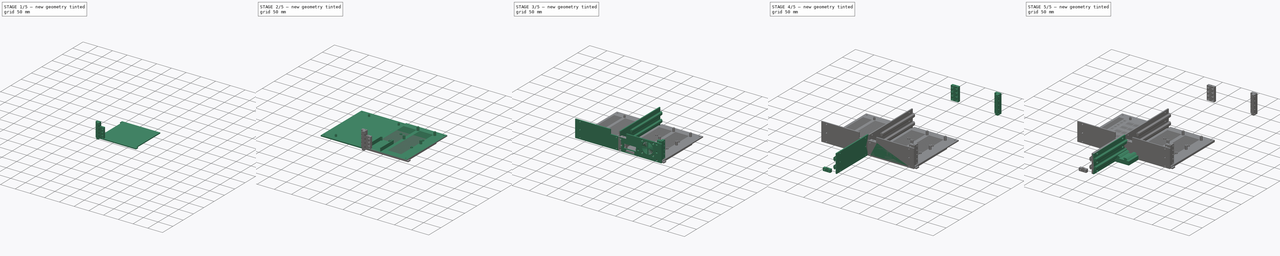
[diagram: build sequence overview — one tinted view per stage of 5, left to right]
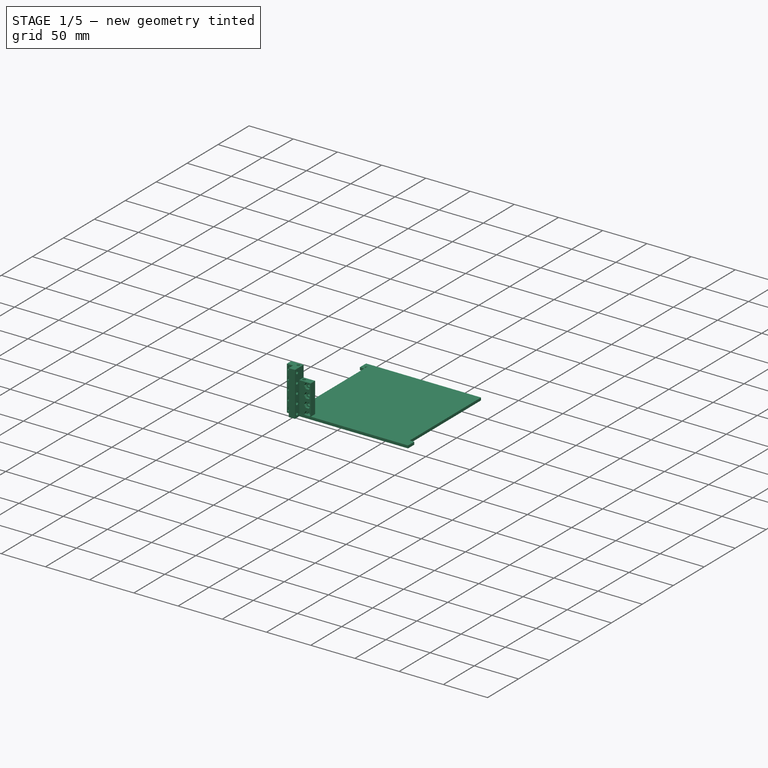
[diagram: stage 1 of 5 — iso view after this stage's code; geometry added in this stage tinted green]
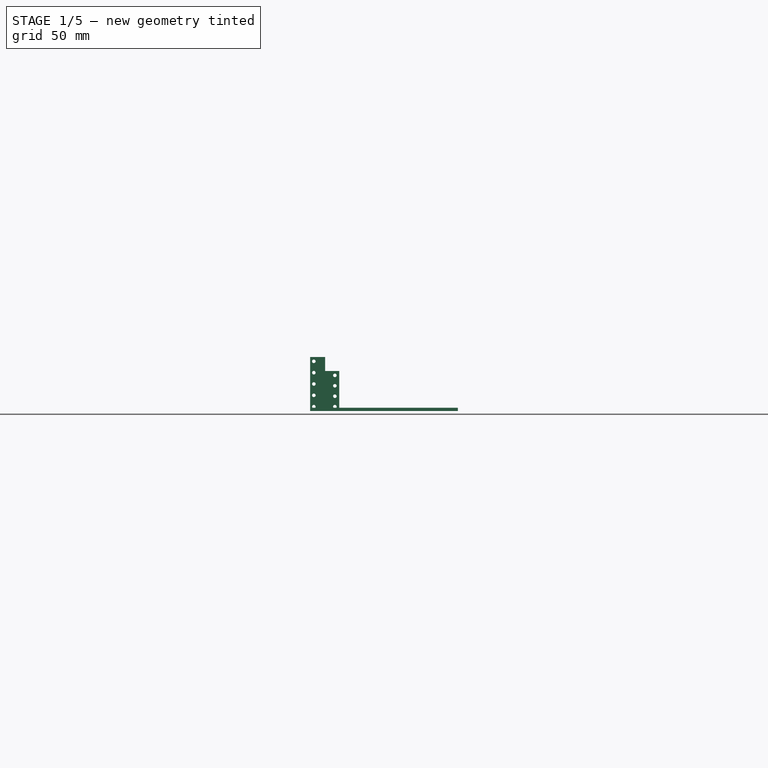
[diagram: stage 1 of 5 — front view after this stage's code; geometry added in this stage tinted green]
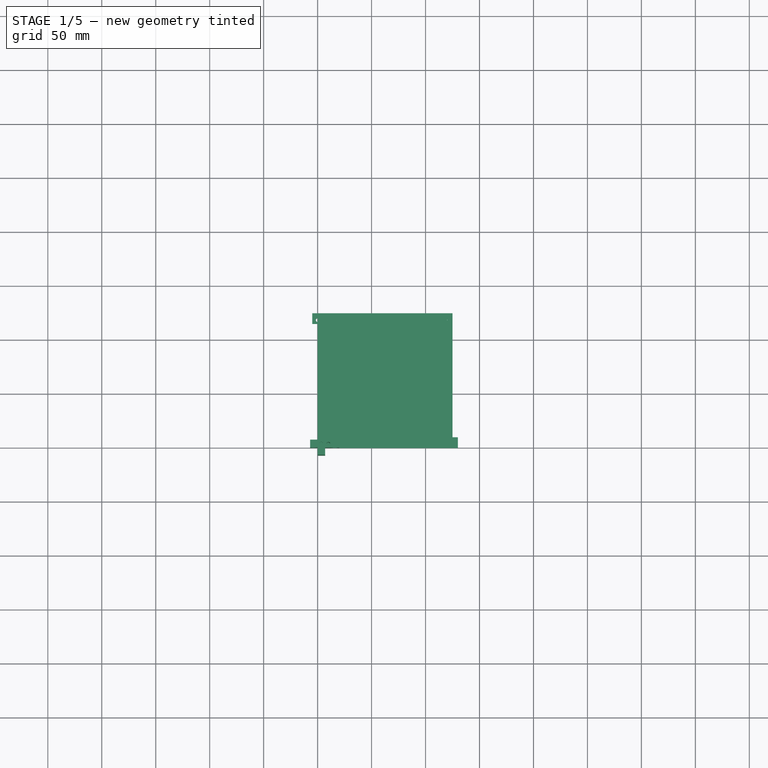
[diagram: stage 1 of 5 — top view after this stage's code; geometry added in this stage tinted green]
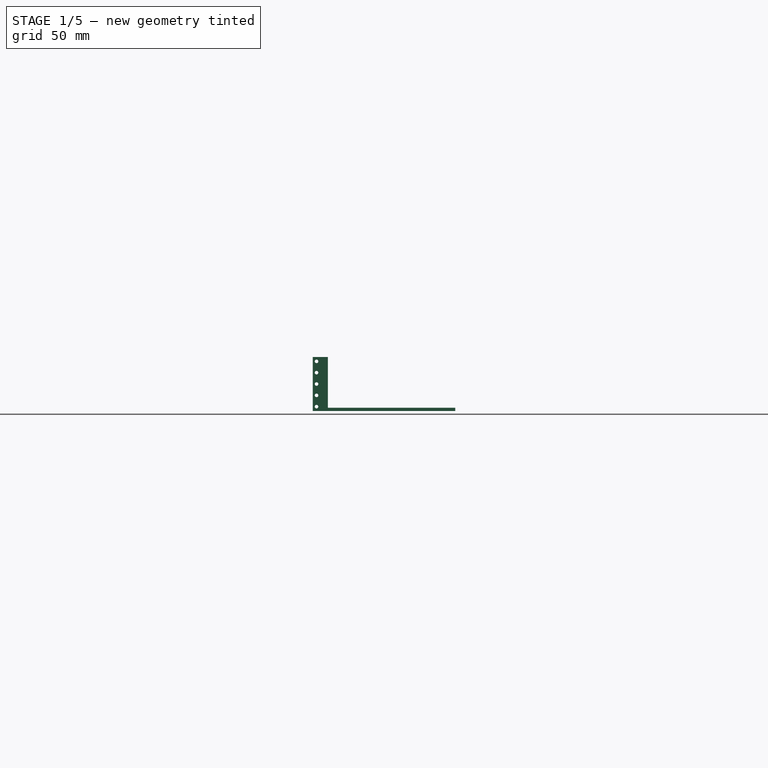
[diagram: stage 1 of 5 — right view after this stage's code; geometry added in this stage tinted green]
FCSTD DOCUMENT  (FreeCAD 0.18R16146 (Git))
Label: skr_pro_case
License: All rights reserved
LicenseURL: http://en.wikipedia.org/wiki/All_rights_reserved
objects: Sketcher::SketchObject×109, PartDesign::Pocket×39, PartDesign::Pad×37, PartDesign::Hole×34, PartDesign::Body×34, PartDesign::LinearPattern×9, PartDesign::FeatureBase×9
note: 381 computed .brp shape members not serialized (recipe doc carries the construction recipe); baked Part::Feature solids carry a one-line shape summary decoded from their .brp

FEATURE [Sketcher::SketchObject] Sketch081
  ExternalGeometry = -> [Pocket023]
  MapMode = 5
  Placement = pos=(0,0,5) rot=(0,0,1;0rad)
  Support = -> [Pocket023]
  sketch-geometry (12):
    g0: LineSegment [constr] StartX=49 StartY=70 StartZ=0 EndX=105 EndY=70 EndZ=0
    g1: LineSegment [constr] StartX=105 StartY=70 StartZ=0 EndX=105 EndY=155 EndZ=0
    g2: LineSegment [constr] StartX=105 StartY=155 StartZ=0 EndX=49 EndY=155 EndZ=0
    g3: LineSegment [constr] StartX=49 StartY=155 StartZ=0 EndX=49 EndY=70 EndZ=0
    g4: Circle CenterX=101.5 CenterY=151.5 CenterZ=0 NormalX=0 NormalY=0 NormalZ=1 AngleXU=0 Radius=3
    g5: Circle CenterX=52.5 CenterY=151.5 CenterZ=0 NormalX=0 NormalY=0 NormalZ=1 AngleXU=0 Radius=3
    g6: Circle CenterX=101.5 CenterY=93.5 CenterZ=0 NormalX=0 NormalY=0 NormalZ=1 AngleXU=0 Radius=3
    g7: Circle CenterX=52.5 CenterY=93.5 CenterZ=0 NormalX=0 NormalY=0 NormalZ=1 AngleXU=0 Radius=3
    g8: LineSegment [constr] StartX=101.5 StartY=93.5 StartZ=0 EndX=52.5 EndY=93.5 EndZ=0
    g9: LineSegment [constr] StartX=52.5 StartY=93.5 StartZ=0 EndX=52.5 EndY=151.5 EndZ=0
    g10: LineSegment [constr] StartX=52.5 StartY=151.5 StartZ=0 EndX=101.5 EndY=151.5 EndZ=0
    g11: LineSegment [constr] StartX=101.5 StartY=151.5 StartZ=0 EndX=101.5 EndY=93.5 EndZ=0
  constraints (32):
    c: Coincident(g0,g1)
    c: Coincident(g1,g2)
    c: Coincident(g2,g3)
    c: Coincident(g3,g0)
    c: Horizontal(g0)
    c: Horizontal(g2)
    c: Vertical(g1)
    c: Vertical(g3)
    c: Distance(g1) = 85
    c: Distance(g2) = 56
    c: DistanceY(g-4,g0) = 70
    c: DistanceX(g0,g-4) = 20
    c: Diameter(g4) = 6
    c: Equal(g4,g5)
    c: Equal(g5,g6)
    c: Equal(g6,g7)
    c: Coincident(g8,g9)
    c: Coincident(g9,g10)
    c: Coincident(g10,g11)
    c: Coincident(g11,g8)
    c: Horizontal(g8)
    c: Horizontal(g10)
    c: Vertical(g9)
    c: Vertical(g11)
    c: Distance(g9) = 58
    c: Coincident(g4,g10)
    c: Coincident(g5,g9)
    c: Coincident(g6,g8)
    c: Coincident(g7,g8)
    c: Distance(g10) = 49
    c: DistanceY(g5,g2) = 3.5
    c: DistanceX(g2,g5) = 3.5
FEATURE [Sketcher::SketchObject] Sketch084
  MapMode = 5
  Support = -> [XY_Plane008]
  sketch-geometry (4):
    g0: LineSegment StartX=0 StartY=0 StartZ=0 EndX=125 EndY=0 EndZ=0
    g1: LineSegment StartX=125 StartY=0 StartZ=0 EndX=125 EndY=125 EndZ=0
    g2: LineSegment StartX=125 StartY=125 StartZ=0 EndX=0 EndY=125 EndZ=0
    g3: LineSegment StartX=0 StartY=125 StartZ=0 EndX=0 EndY=0 EndZ=0
  constraints (11):
    c: Coincident(g0,g1)
    c: Coincident(g1,g2)
    c: Coincident(g2,g3)
    c: Coincident(g3,g0)
    c: Horizontal(g0)
    c: Horizontal(g2)
    c: Vertical(g1)
    c: Vertical(g3)
    c: Distance(g2) = 125
    c: Distance(g1) = 125
    c: Coincident(g-1,g0)
FEATURE [PartDesign::Pad] Pad026
  Length = 3
  Length2 = 100
  Profile = -> Sketch084
  Type = 0
FEATURE [Sketcher::SketchObject] Sketch096
  MapMode = 5
  Placement = pos=(0,0,0) rot=(1,0,0;3.14159rad)
  Support = -> [Pad026]
  sketch-geometry (6):
    g0: LineSegment StartX=-5 StartY=-10 StartZ=0 EndX=5 EndY=-10 EndZ=0
    g1: LineSegment StartX=5 StartY=-10 StartZ=0 EndX=5 EndY=0 EndZ=0
    g2: LineSegment StartX=-5 StartY=-2 StartZ=0 EndX=-5 EndY=-10 EndZ=0
    g3: LineSegment StartX=-5 StartY=-2 StartZ=0 EndX=0 EndY=-2 EndZ=0
    g4: LineSegment StartX=0 StartY=-2 StartZ=0 EndX=0 EndY=0 EndZ=0
    g5: LineSegment StartX=0 StartY=0 StartZ=0 EndX=5 EndY=0 EndZ=0
  constraints (17):
    c: Coincident(g0,g1)
    c: Coincident(g2,g0)
    c: Horizontal(g0)
    c: Vertical(g1)
    c: Vertical(g2)
    c: Equal(g0,g1)
    c: Distance(g1) = 10
    c: DistanceX(g-1,g1) = 5
    c: Coincident(g3,g4)
    c: Coincident(g4,g5)
    c: Horizontal(g5)
    c: Horizontal(g3)
    c: Vertical(g4)
    c: Coincident(g3,g2)
    c: Distance(g4) = 2
    c: Coincident(g1,g5)
    c: Coincident(g-1,g4)
FEATURE [PartDesign::Pocket] Pocket033
  BaseFeature = -> Pad026
  Length = 3
  Length2 = 100
  Profile = -> Sketch096
  Type = 0
FEATURE [Sketcher::SketchObject] Sketch097
  ExternalGeometry = -> [Pocket033]
  MapMode = 5
  Placement = pos=(0,0,3) rot=(0,0,1;0rad)
  Support = -> [Pocket033]
  sketch-geometry (4):
    g0: LineSegment StartX=-5 StartY=115 StartZ=0 EndX=0 EndY=115 EndZ=0
    g1: LineSegment StartX=0 StartY=115 StartZ=0 EndX=0 EndY=125 EndZ=0
    g2: LineSegment StartX=0 StartY=125 StartZ=0 EndX=-5 EndY=125 EndZ=0
    g3: LineSegment StartX=-5 StartY=125 StartZ=0 EndX=-5 EndY=115 EndZ=0
  constraints (11):
    c: Coincident(g0,g1)
    c: Coincident(g1,g2)
    c: Coincident(g2,g3)
    c: Coincident(g3,g0)
    c: Horizontal(g0)
    c: Horizontal(g2)
    c: Vertical(g1)
    c: Vertical(g3)
    c: Distance(g0) = 5
    c: Distance(g1) = 10
    c: Coincident(g1,g-3)
FEATURE [PartDesign::Pad] Pad034
  BaseFeature = -> Pocket033
  Length = 3
  Length2 = 100
  Profile = -> Sketch097
  Reversed = true
  Type = 0
FEATURE [PartDesign::Body] Body015  label="Back_right_compartment_right_wall"
  Group = -> [Sketch150,Pad053,Sketch151,Hole026]
  Origin = -> Origin015
  Placement = pos=(122,339,4) rot=(0,0,1;0rad)
  Tip = -> Hole026
FEATURE [Sketcher::SketchObject] Sketch152
  MapMode = 5
  Support = -> [XY_Plane016]
  sketch-geometry (6):
    g0: LineSegment StartX=0 StartY=-7 StartZ=0 EndX=7 EndY=-7 EndZ=0
    g1: LineSegment StartX=7 StartY=-7 StartZ=0 EndX=7 EndY=7 EndZ=0
    g2: LineSegment StartX=7 StartY=7 StartZ=0 EndX=-7 EndY=7 EndZ=0
    g3: LineSegment StartX=-7 StartY=7 StartZ=0 EndX=-7 EndY=0 EndZ=0
    g4: LineSegment StartX=-7 StartY=0 StartZ=0 EndX=0 EndY=0 EndZ=0
    g5: LineSegment StartX=0 StartY=0 StartZ=0 EndX=0 EndY=-7 EndZ=0
  constraints (17):
    c: Coincident(g0,g1)
    c: Coincident(g1,g2)
    c: Coincident(g2,g3)
    c: Horizontal(g0)
    c: Horizontal(g2)
    c: Vertical(g1)
    c: Vertical(g3)
    c: Distance(g0) = 7
    c: Distance(g3) = 7
    c: DistanceY(g0,g3) = 7
    c: DistanceX(g3,g0) = 7
    c: Coincident(g4,g5)
    c: Vertical(g5)
    c: Horizontal(g4)
    c: Coincident(g4,g3)
    c: Coincident(g5,g0)
    c: Coincident(g4,g-1)
FEATURE [PartDesign::Pad] Pad054
  Length = 50
  Length2 = 100
  Profile = -> Sketch152
  Type = 0
FEATURE [Sketcher::SketchObject] Sketch153
  ExternalGeometry = -> [Pad054]
  MapMode = 5
  Placement = pos=(0,0,0) rot=(0.57735,-0.57735,-0.57735;2.0944rad)
  Support = -> [Pad054]
  sketch-geometry (9):
    g0: Circle CenterX=3.5 CenterY=4 CenterZ=0 NormalX=0 NormalY=0 NormalZ=1 AngleXU=0 Radius=1.5
    g1: Circle CenterX=3.5 CenterY=46 CenterZ=0 NormalX=0 NormalY=0 NormalZ=1 AngleXU=0 Radius=1.5
    g2: Circle CenterX=3.5 CenterY=25 CenterZ=0 NormalX=0 NormalY=0 NormalZ=1 AngleXU=0 Radius=1.5
    g3: LineSegment [constr] StartX=3.5 StartY=25 StartZ=0 EndX=3.5 EndY=35.5 EndZ=0
    g4: LineSegment [constr] StartX=3.5 StartY=35.5 StartZ=0 EndX=3.5 EndY=46 EndZ=0
    g5: Circle CenterX=3.5 CenterY=35.5 CenterZ=0 NormalX=0 NormalY=0 NormalZ=1 AngleXU=0 Radius=1.5
    g6: LineSegment [constr] StartX=3.5 StartY=4 StartZ=0 EndX=3.5 EndY=14.5 EndZ=0
    g7: LineSegment [constr] StartX=3.5 StartY=14.5 StartZ=0 EndX=3.5 EndY=25 EndZ=0
    g8: Circle CenterX=3.5 CenterY=14.5 CenterZ=0 NormalX=0 NormalY=0 NormalZ=1 AngleXU=0 Radius=1.5
  constraints (23):
    c: Diameter(g0) = 3
    c: DistanceX(g0,g-3) = 3.5
    c: DistanceY(g-3,g0) = 4
    c: Equal(g0,g2)
    c: Equal(g2,g1)
    c: DistanceX(g1,g-3) = 3.5
    c: DistanceY(g1,g-3) = 4
    c: Coincident(g3,g4)
    c: Coincident(g5,g3)
    c: Coincident(g4,g1)
    c: Coincident(g2,g3)
    c: Vertical(g3)
    c: Equal(g5,g1)
    c: Coincident(g6,g7)
    c: Coincident(g7,g2)
    c: Coincident(g6,g0)
    c: Vertical(g7)
    c: Vertical(g6)
    c: Equal(g6,g7)
    c: Equal(g7,g3)
    c: Equal(g3,g4)
    c: Coincident(g8,g6)
    c: Equal(g2,g8)
FEATURE [PartDesign::Hole] Hole027
  BaseFeature = -> Pad054
  Depth = 25
  DepthType = 0
  Diameter = 3.3
  DrillPoint = 1
  DrillPointAngle = 118
  HoleCutCountersinkAngle = 90
  HoleCutDepth = 0
  HoleCutDiameter = 3
  HoleCutType = 0
  ModelActualThread = false
  Profile = -> Sketch153
  Tapered = false
  TaperedAngle = 90
  ThreadAngle = 0
  ThreadClass = 0
  ThreadCutOffInner = 0
  ThreadCutOffOuter = 0
  ThreadDirection = 0
  ThreadFit = 0
  ThreadPitch = 0
  ThreadSize = 3
  ThreadType = 1
  Threaded = false
FEATURE [Sketcher::SketchObject] Sketch154
  ExternalGeometry = -> [Hole027]
  MapMode = 5
  Placement = pos=(0,0,0) rot=(0.57735,-0.57735,-0.57735;2.0944rad)
  Support = -> [Hole027]
  sketch-geometry (35):
    g0: LineSegment StartX=6.5 StartY=47.7321 StartZ=0 EndX=3.5 EndY=49.4641 EndZ=0
    g1: LineSegment StartX=3.5 StartY=49.4641 StartZ=0 EndX=0.5 EndY=47.7321 EndZ=0
    g2: LineSegment StartX=0.5 StartY=47.7321 StartZ=0 EndX=0.5 EndY=44.2679 EndZ=0
    g3: LineSegment StartX=0.5 StartY=44.2679 StartZ=0 EndX=3.5 EndY=42.5359 EndZ=0
    g4: LineSegment StartX=3.5 StartY=42.5359 StartZ=0 EndX=6.5 EndY=44.2679 EndZ=0
    g5: LineSegment StartX=6.5 StartY=44.2679 StartZ=0 EndX=6.5 EndY=47.7321 EndZ=0
    g6: Circle [constr] CenterX=3.5 CenterY=46 CenterZ=0 NormalX=0 NormalY=0 NormalZ=1 AngleXU=0 Radius=3.4641
    g7: LineSegment StartX=6.5 StartY=37.2321 StartZ=0 EndX=3.5 EndY=38.9641 EndZ=0
    g8: LineSegment StartX=3.5 StartY=38.9641 StartZ=0 EndX=0.5 EndY=37.2321 EndZ=0
    g9: LineSegment StartX=0.5 StartY=37.2321 StartZ=0 EndX=0.5 EndY=33.7679 EndZ=0
    g10: LineSegment StartX=0.5 StartY=33.7679 StartZ=0 EndX=3.5 EndY=32.0359 EndZ=0
    g11: LineSegment StartX=3.5 StartY=32.0359 StartZ=0 EndX=6.5 EndY=33.7679 EndZ=0
    g12: LineSegment StartX=6.5 StartY=33.7679 StartZ=0 EndX=6.5 EndY=37.2321 EndZ=0
    g13: Circle [constr] CenterX=3.5 CenterY=35.5 CenterZ=0 NormalX=0 NormalY=0 NormalZ=1 AngleXU=0 Radius=3.4641
    g14: LineSegment StartX=6.5 StartY=26.7321 StartZ=0 EndX=3.5 EndY=28.4641 EndZ=0
    g15: LineSegment StartX=3.5 StartY=28.4641 StartZ=0 EndX=0.5 EndY=26.7321 EndZ=0
    g16: LineSegment StartX=0.5 StartY=26.7321 StartZ=0 EndX=0.5 EndY=23.2679 EndZ=0
    g17: LineSegment StartX=0.5 StartY=23.2679 StartZ=0 EndX=3.5 EndY=21.5359 EndZ=0
    g18: LineSegment StartX=3.5 StartY=21.5359 StartZ=0 EndX=6.5 EndY=23.2679 EndZ=0
    g19: LineSegment StartX=6.5 StartY=23.2679 StartZ=0 EndX=6.5 EndY=26.7321 EndZ=0
    g20: Circle [constr] CenterX=3.5 CenterY=25 CenterZ=0 NormalX=0 NormalY=0 NormalZ=1 AngleXU=0 Radius=3.4641
    g21: LineSegment StartX=6.5 StartY=16.2321 StartZ=0 EndX=3.5 EndY=17.9641 EndZ=0
    g22: LineSegment StartX=3.5 StartY=17.9641 StartZ=0 EndX=0.5 EndY=16.2321 EndZ=0
    g23: LineSegment StartX=0.5 StartY=16.2321 StartZ=0 EndX=0.5 EndY=12.7679 EndZ=0
    g24: LineSegment StartX=0.5 StartY=12.7679 StartZ=0 EndX=3.5 EndY=11.0359 EndZ=0
    g25: LineSegment StartX=3.5 StartY=11.0359 StartZ=0 EndX=6.5 EndY=12.7679 EndZ=0
    g26: LineSegment StartX=6.5 StartY=12.7679 StartZ=0 EndX=6.5 EndY=16.2321 EndZ=0
    g27: Circle [constr] CenterX=3.5 CenterY=14.5 CenterZ=0 NormalX=0 NormalY=0 NormalZ=1 AngleXU=0 Radius=3.4641
    g28: LineSegment StartX=6.5 StartY=2.26795 StartZ=0 EndX=6.5 EndY=5.73205 EndZ=0
    g29: LineSegment StartX=6.5 StartY=5.73205 StartZ=0 EndX=3.5 EndY=7.4641 EndZ=0
    g30: LineSegment StartX=3.5 StartY=7.4641 StartZ=0 EndX=0.5 EndY=5.73205 EndZ=0
    g31: LineSegment StartX=0.5 StartY=5.73205 StartZ=0 EndX=0.5 EndY=2.26795 EndZ=0
    g32: LineSegment StartX=0.5 StartY=2.26795 StartZ=0 EndX=3.5 EndY=0.535898 EndZ=0
    g33: LineSegment StartX=3.5 StartY=0.535898 StartZ=0 EndX=6.5 EndY=2.26795 EndZ=0
    g34: Circle [constr] CenterX=3.5 CenterY=4 CenterZ=0 NormalX=0 NormalY=0 NormalZ=1 AngleXU=0 Radius=3.4641
  constraints (80):
    c: Coincident(g0,g1)
    c: Coincident(g1,g2)
    c: Coincident(g2,g3)
    c: Coincident(g3,g4)
    c: Coincident(g4,g5)
    c: Coincident(g5,g0)
    c: Equal(g0, g1-g5) x5
    c: PointOnObject(g0,g6)
    c: PointOnObject(g1,g6)
    c: PointOnObject(g2,g6)
    c: PointOnObject(g3,g6)
    c: PointOnObject(g4,g6)
    c: PointOnObject(g5,g6)
    c: Coincident(g7,g8)
    c: Coincident(g8,g9)
    c: Coincident(g9,g10)
    c: Coincident(g10,g11)
    c: Coincident(g11,g12)
    c: Coincident(g12,g7)
    c: Equal(g7, g8-g12) x5
    c: PointOnObject(g7,g13)
    c: PointOnObject(g8,g13)
    c: PointOnObject(g9,g13)
    c: PointOnObject(g10,g13)
    c: PointOnObject(g11,g13)
    c: PointOnObject(g12,g13)
    c: Coincident(g14,g15)
    c: Coincident(g15,g16)
    c: Coincident(g16,g17)
    c: Coincident(g17,g18)
    c: Coincident(g18,g19)
    c: Coincident(g19,g14)
    c: Equal(g14, g15-g19) x5
    c: PointOnObject(g14,g20)
    c: PointOnObject(g15,g20)
    c: PointOnObject(g16,g20)
    c: PointOnObject(g17,g20)
    c: PointOnObject(g18,g20)
    c: PointOnObject(g19,g20)
    c: Coincident(g21,g22)
    c: Coincident(g22,g23)
    c: Coincident(g23,g24)
    c: Coincident(g24,g25)
    c: Coincident(g25,g26)
    c: Coincident(g26,g21)
    c: Equal(g21, g22-g26) x5
    c: PointOnObject(g21,g27)
    c: PointOnObject(g22,g27)
    c: PointOnObject(g23,g27)
    c: PointOnObject(g24,g27)
    c: PointOnObject(g25,g27)
    c: PointOnObject(g26,g27)
    c: Coincident(g28,g29)
    c: Coincident(g29,g30)
    c: Coincident(g30,g31)
    c: Coincident(g31,g32)
    c: Coincident(g32,g33)
    c: Coincident(g33,g28)
    c: Equal(g28, g29-g33) x5
    c: PointOnObject(g28,g34)
    c: PointOnObject(g29,g34)
    c: PointOnObject(g30,g34)
    c: PointOnObject(g31,g34)
    c: PointOnObject(g32,g34)
    c: PointOnObject(g33,g34)
    c: Equal(g34,g27)
    c: Equal(g27,g20)
    c: Equal(g20,g13)
    c: Equal(g13,g6)
    c: Coincident(g6,g-3)
    c: Coincident(g-4,g13)
    c: Coincident(g20,g-5)
    c: Coincident(g-6,g27)
    c: Coincident(g-7,g34)
    c: Vertical(g5)
    c: Vertical(g12)
    c: Vertical(g19)
    c: Vertical(g26)
    c: Vertical(g28)
    c: DistanceX(g1,g0) = 6
FEATURE [PartDesign::Pocket] Pocket051
  BaseFeature = -> Hole027
  Length = 2.75
  Length2 = 100
  Profile = -> Sketch154
  Type = 0
FEATURE [Sketcher::SketchObject] Sketch155
  ExternalGeometry = -> [Pocket051]
  MapMode = 5
  Placement = pos=(0,0,0) rot=(1,0,0;1.5708rad)
  Support = -> [Pocket051]
  sketch-geometry (9):
    g0: Circle CenterX=-3.5 CenterY=4 CenterZ=0 NormalX=0 NormalY=0 NormalZ=1 AngleXU=0 Radius=1.5
    g1: Circle CenterX=-3.5 CenterY=14.5 CenterZ=0 NormalX=0 NormalY=0 NormalZ=1 AngleXU=0 Radius=1.5
    g2: Circle CenterX=-3.5 CenterY=46 CenterZ=0 NormalX=0 NormalY=0 NormalZ=1 AngleXU=0 Radius=1.5
    g3: Circle CenterX=-3.5 CenterY=35.5 CenterZ=0 NormalX=0 NormalY=0 NormalZ=1 AngleXU=0 Radius=1.5
    g4: Circle CenterX=-3.5 CenterY=25 CenterZ=0 NormalX=0 NormalY=0 NormalZ=1 AngleXU=0 Radius=1.5
    g5: LineSegment [constr] StartX=-3.5 StartY=4 StartZ=0 EndX=-3.5 EndY=14.5 EndZ=0
    g6: LineSegment [constr] StartX=-3.5 StartY=14.5 StartZ=0 EndX=-3.5 EndY=25 EndZ=0
    g7: LineSegment [constr] StartX=-3.5 StartY=25 StartZ=0 EndX=-3.5 EndY=35.5 EndZ=0
    g8: LineSegment [constr] StartX=-3.5 StartY=35.5 StartZ=0 EndX=-3.5 EndY=46 EndZ=0
  constraints (23):
    c: Equal(g0,g2)
    c: Equal(g2,g1)
    c: Diameter(g0) = 3
    c: Equal(g1,g4)
    c: Equal(g2,g3)
    c: DistanceX(g-4,g0) = 3.5
    c: DistanceY(g2,g-4) = 4
    c: DistanceY(g-4,g0) = 4
    c: Coincident(g5,g6)
    c: Coincident(g6,g7)
    c: Coincident(g7,g8)
    c: Coincident(g3,g7)
    c: Coincident(g4,g6)
    c: Coincident(g5,g1)
    c: Coincident(g0,g5)
    c: Coincident(g8,g2)
    c: Vertical(g5)
    c: Vertical(g6)
    c: Vertical(g7)
    c: Vertical(g8)
    c: Equal(g8,g7)
    c: Equal(g7,g6)
    c: Equal(g6,g5)
FEATURE [PartDesign::Hole] Hole028
  BaseFeature = -> Pocket051
  Depth = 25
  DepthType = 0
  Diameter = 3.3
  DrillPoint = 1
  DrillPointAngle = 118
  HoleCutCountersinkAngle = 90
  HoleCutDepth = 0
  HoleCutDiameter = 3
  HoleCutType = 0
  ModelActualThread = false
  Profile = -> Sketch155
  Tapered = false
  TaperedAngle = 90
  ThreadAngle = 0
  ThreadClass = 0
  ThreadCutOffInner = 0
  ThreadCutOffOuter = 0
  ThreadDirection = 0
  ThreadFit = 0
  ThreadPitch = 0
  ThreadSize = 3
  ThreadType = 1
  Threaded = false
FEATURE [Sketcher::SketchObject] Sketch156
  ExternalGeometry = -> [Hole028]
  MapMode = 5
  Placement = pos=(0,0,0) rot=(1,0,0;1.5708rad)
  Support = -> [Hole028]
  sketch-geometry (35):
    g0: LineSegment StartX=-3.5 StartY=49.4641 StartZ=0 EndX=-6.5 EndY=47.7321 EndZ=0
    g1: LineSegment StartX=-6.5 StartY=47.7321 StartZ=0 EndX=-6.5 EndY=44.2679 EndZ=0
    g2: LineSegment StartX=-6.5 StartY=44.2679 StartZ=0 EndX=-3.5 EndY=42.5359 EndZ=0
    g3: LineSegment StartX=-3.5 StartY=42.5359 StartZ=0 EndX=-0.5 EndY=44.2679 EndZ=0
    g4: LineSegment StartX=-0.5 StartY=44.2679 StartZ=0 EndX=-0.5 EndY=47.7321 EndZ=0
    g5: LineSegment StartX=-0.5 StartY=47.7321 StartZ=0 EndX=-3.5 EndY=49.4641 EndZ=0
    g6: Circle [constr] CenterX=-3.5 CenterY=46 CenterZ=0 NormalX=0 NormalY=0 NormalZ=1 AngleXU=0 Radius=3.4641
    g7: LineSegment StartX=-3.5 StartY=38.9641 StartZ=0 EndX=-6.5 EndY=37.2321 EndZ=0
    g8: LineSegment StartX=-6.5 StartY=37.2321 StartZ=0 EndX=-6.5 EndY=33.7679 EndZ=0
    g9: LineSegment StartX=-6.5 StartY=33.7679 StartZ=0 EndX=-3.5 EndY=32.0359 EndZ=0
    g10: LineSegment StartX=-3.5 StartY=32.0359 StartZ=0 EndX=-0.5 EndY=33.7679 EndZ=0
    g11: LineSegment StartX=-0.5 StartY=33.7679 StartZ=0 EndX=-0.5 EndY=37.2321 EndZ=0
    g12: LineSegment StartX=-0.5 StartY=37.2321 StartZ=0 EndX=-3.5 EndY=38.9641 EndZ=0
    g13: Circle [constr] CenterX=-3.5 CenterY=35.5 CenterZ=0 NormalX=0 NormalY=0 NormalZ=1 AngleXU=0 Radius=3.4641
    g14: LineSegment StartX=-3.5 StartY=28.4641 StartZ=0 EndX=-6.5 EndY=26.7321 EndZ=0
    g15: LineSegment StartX=-6.5 StartY=26.7321 StartZ=0 EndX=-6.5 EndY=23.2679 EndZ=0
    g16: LineSegment StartX=-6.5 StartY=23.2679 StartZ=0 EndX=-3.5 EndY=21.5359 EndZ=0
    g17: LineSegment StartX=-3.5 StartY=21.5359 StartZ=0 EndX=-0.5 EndY=23.2679 EndZ=0
    g18: LineSegment StartX=-0.5 StartY=23.2679 StartZ=0 EndX=-0.5 EndY=26.7321 EndZ=0
    g19: LineSegment StartX=-0.5 StartY=26.7321 StartZ=0 EndX=-3.5 EndY=28.4641 EndZ=0
    g20: Circle [constr] CenterX=-3.5 CenterY=25 CenterZ=0 NormalX=0 NormalY=0 NormalZ=1 AngleXU=0 Radius=3.4641
    g21: LineSegment StartX=-3.5 StartY=17.9641 StartZ=0 EndX=-6.5 EndY=16.2321 EndZ=0
    g22: LineSegment StartX=-6.5 StartY=16.2321 StartZ=0 EndX=-6.5 EndY=12.7679 EndZ=0
    g23: LineSegment StartX=-6.5 StartY=12.7679 StartZ=0 EndX=-3.5 EndY=11.0359 EndZ=0
    g24: LineSegment StartX=-3.5 StartY=11.0359 StartZ=0 EndX=-0.5 EndY=12.7679 EndZ=0
    g25: LineSegment StartX=-0.5 StartY=12.7679 StartZ=0 EndX=-0.5 EndY=16.2321 EndZ=0
    g26: LineSegment StartX=-0.5 StartY=16.2321 StartZ=0 EndX=-3.5 EndY=17.9641 EndZ=0
    g27: Circle [constr] CenterX=-3.5 CenterY=14.5 CenterZ=0 NormalX=0 NormalY=0 NormalZ=1 AngleXU=0 Radius=3.4641
    g28: LineSegment StartX=-3.5 StartY=7.4641 StartZ=0 EndX=-6.5 EndY=5.73205 EndZ=0
    g29: LineSegment StartX=-6.5 StartY=5.73205 StartZ=0 EndX=-6.5 EndY=2.26795 EndZ=0
    g30: LineSegment StartX=-6.5 StartY=2.26795 StartZ=0 EndX=-3.5 EndY=0.535898 EndZ=0
    g31: LineSegment StartX=-3.5 StartY=0.535898 StartZ=0 EndX=-0.5 EndY=2.26795 EndZ=0
    g32: LineSegment StartX=-0.5 StartY=2.26795 StartZ=0 EndX=-0.5 EndY=5.73205 EndZ=0
    g33: LineSegment StartX=-0.5 StartY=5.73205 StartZ=0 EndX=-3.5 EndY=7.4641 EndZ=0
    g34: Circle [constr] CenterX=-3.5 CenterY=4 CenterZ=0 NormalX=0 NormalY=0 NormalZ=1 AngleXU=0 Radius=3.4641
  constraints (80):
    c: Coincident(g0,g1)
    c: Coincident(g1,g2)
    c: Coincident(g2,g3)
    c: Coincident(g3,g4)
    c: Coincident(g4,g5)
    c: Coincident(g5,g0)
    c: Equal(g0, g1-g5) x5
    c: PointOnObject(g0,g6)
    c: PointOnObject(g1,g6)
    c: PointOnObject(g2,g6)
    c: PointOnObject(g3,g6)
    c: PointOnObject(g4,g6)
    c: PointOnObject(g5,g6)
    c: Coincident(g7,g8)
    c: Coincident(g8,g9)
    c: Coincident(g9,g10)
    c: Coincident(g10,g11)
    c: Coincident(g11,g12)
    c: Coincident(g12,g7)
    c: Equal(g7, g8-g12) x5
    c: PointOnObject(g7,g13)
    c: PointOnObject(g8,g13)
    c: PointOnObject(g9,g13)
    c: PointOnObject(g10,g13)
    c: PointOnObject(g11,g13)
    c: PointOnObject(g12,g13)
    c: Coincident(g14,g15)
    c: Coincident(g15,g16)
    c: Coincident(g16,g17)
    c: Coincident(g17,g18)
    c: Coincident(g18,g19)
    c: Coincident(g19,g14)
    c: Equal(g14, g15-g19) x5
    c: PointOnObject(g14,g20)
    c: PointOnObject(g15,g20)
    c: PointOnObject(g16,g20)
    c: PointOnObject(g17,g20)
    c: PointOnObject(g18,g20)
    c: PointOnObject(g19,g20)
    c: Coincident(g21,g22)
    c: Coincident(g22,g23)
    c: Coincident(g23,g24)
    c: Coincident(g24,g25)
    c: Coincident(g25,g26)
    c: Coincident(g26,g21)
    c: Equal(g21, g22-g26) x5
    c: PointOnObject(g21,g27)
    c: PointOnObject(g22,g27)
    c: PointOnObject(g23,g27)
    c: PointOnObject(g24,g27)
    c: PointOnObject(g25,g27)
    c: PointOnObject(g26,g27)
    c: Coincident(g28,g29)
    c: Coincident(g29,g30)
    c: Coincident(g30,g31)
    c: Coincident(g31,g32)
    c: Coincident(g32,g33)
    c: Coincident(g33,g28)
    c: Equal(g28, g29-g33) x5
    c: PointOnObject(g28,g34)
    c: PointOnObject(g29,g34)
    c: PointOnObject(g30,g34)
    c: PointOnObject(g31,g34)
    c: PointOnObject(g32,g34)
    c: PointOnObject(g33,g34)
    c: Equal(g34,g27)
    c: Equal(g27,g20)
    c: Equal(g20,g13)
    c: Equal(g13,g6)
    c: Coincident(g34,g-7)
    c: Coincident(g27,g-6)
    c: Coincident(g20,g-5)
    c: Coincident(g13,g-4)
    c: Coincident(g6,g-3)
    c: Vertical(g32)
    c: Vertical(g25)
    c: Vertical(g18)
    c: Vertical(g11)
    c: Vertical(g4)
    c: DistanceX(g0,g4) = 6
FEATURE [PartDesign::Pocket] Pocket052
  BaseFeature = -> Hole028
  Length = 2.75
  Length2 = 100
  Profile = -> Sketch156
  Type = 0
FEATURE [Sketcher::SketchObject] Sketch157
  MapMode = 5
  Placement = pos=(0,0,50) rot=(0,0,1;0rad)
  Support = -> [Pocket052]
  sketch-geometry (1):
    g0: Circle CenterX=3.5 CenterY=3.5 CenterZ=0 NormalX=0 NormalY=0 NormalZ=1 AngleXU=0 Radius=1.5
  constraints (3):
    c: Diameter(g0) = 3
    c: DistanceX(g-1,g0) = 3.5
    c: DistanceY(g-1,g0) = 3.5
FEATURE [PartDesign::Hole] Hole029
  BaseFeature = -> Pocket052
  Depth = 25
  DepthType = 1
  Diameter = 3.3
  DrillPoint = 1
  DrillPointAngle = 118
  HoleCutCountersinkAngle = 90
  HoleCutDepth = 0
  HoleCutDiameter = 3
  HoleCutType = 0
  ModelActualThread = false
  Profile = -> Sketch157
  Tapered = false
  TaperedAngle = 90
  ThreadAngle = 0
  ThreadClass = 0
  ThreadCutOffInner = 0
  ThreadCutOffOuter = 0
  ThreadDirection = 0
  ThreadFit = 0
  ThreadPitch = 0
  ThreadSize = 3
  ThreadType = 1
  Threaded = false
FEATURE [Sketcher::SketchObject] Sketch169
  MapMode = 5
  Support = -> [XY_Plane020]
  sketch-geometry (4):
    g0: LineSegment StartX=0 StartY=1e-16 StartZ=0 EndX=125 EndY=1e-16 EndZ=0
    g1: LineSegment StartX=125 StartY=1e-16 StartZ=0 EndX=125 EndY=125 EndZ=0
    g2: LineSegment StartX=125 StartY=125 StartZ=0 EndX=0 EndY=125 EndZ=0
    g3: LineSegment StartX=0 StartY=125 StartZ=0 EndX=0 EndY=0 EndZ=0
  constraints (11):
    c: Coincident(g0,g1)
    c: Coincident(g1,g2)
    c: Coincident(g2,g3)
    c: Coincident(g3,g0)
    c: Horizontal(g0)
    c: Horizontal(g2)
    c: Vertical(g1)
    c: Vertical(g3)
    c: Equal(g2,g3)
    c: Distance(g2) = 125
    c: Coincident(g-1,g0)
FEATURE [PartDesign::Pad] Pad058
  Length = 3
  Length2 = 100
  Profile = -> Sketch169
  Type = 0
FEATURE [Sketcher::SketchObject] Sketch170
  ExternalGeometry = -> [Pad058]
  MapMode = 5
  Placement = pos=(0,0,0) rot=(1,0,0;3.14159rad)
  Support = -> [Pad058]
  sketch-geometry (4):
    g0: LineSegment StartX=125 StartY=-125 StartZ=0 EndX=120 EndY=-125 EndZ=0
    g1: LineSegment StartX=120 StartY=-125 StartZ=0 EndX=120 EndY=-115 EndZ=0
    g2: LineSegment StartX=120 StartY=-115 StartZ=0 EndX=125 EndY=-115 EndZ=0
    g3: LineSegment StartX=125 StartY=-115 StartZ=0 EndX=125 EndY=-125 EndZ=0
  constraints (11):
    c: Coincident(g0,g1)
    c: Coincident(g1,g2)
    c: Coincident(g2,g3)
    c: Coincident(g3,g0)
    c: Horizontal(g0)
    c: Horizontal(g2)
    c: Vertical(g1)
    c: Vertical(g3)
    c: Distance(g2) = 5
    c: Distance(g1) = 10
    c: Coincident(g0,g-3)
FEATURE [PartDesign::Pocket] Pocket055
  BaseFeature = -> Pad058
  Length = 5
  Length2 = 100
  Profile = -> Sketch170
  Type = 1
FEATURE [Sketcher::SketchObject] Sketch171
  ExternalGeometry = -> [Pocket055]
  MapMode = 5
  Placement = pos=(0,0,0) rot=(1,0,0;3.14159rad)
  Support = -> [Pocket055]
  sketch-geometry (4):
    g0: LineSegment StartX=125 StartY=-10 StartZ=0 EndX=130 EndY=-10 EndZ=0
    g1: LineSegment StartX=130 StartY=-10 StartZ=0 EndX=130 EndY=0 EndZ=0
    g2: LineSegment StartX=130 StartY=0 StartZ=0 EndX=125 EndY=0 EndZ=0
    g3: LineSegment StartX=125 StartY=0 StartZ=0 EndX=125 EndY=-10 EndZ=0
  constraints (11):
    c: Coincident(g0,g1)
    c: Coincident(g1,g2)
    c: Coincident(g2,g3)
    c: Coincident(g3,g0)
    c: Horizontal(g0)
    c: Horizontal(g2)
    c: Vertical(g1)
    c: Vertical(g3)
    c: Distance(g2) = 5
    c: Distance(g1) = 10
    c: Coincident(g2,g-3)
FEATURE [PartDesign::Pad] Pad059
  BaseFeature = -> Pocket055
  Length = 3
  Length2 = 100
  Profile = -> Sketch171
  Reversed = true
  Type = 0
FEATURE [Sketcher::SketchObject] Sketch177
  MapMode = 5
  Support = -> [XY_Plane024]
  sketch-geometry (4):
    g0: LineSegment StartX=0 StartY=0 StartZ=0 EndX=20 EndY=0 EndZ=0
    g1: LineSegment StartX=20 StartY=0 StartZ=0 EndX=20 EndY=7 EndZ=0
    g2: LineSegment StartX=20 StartY=7 StartZ=0 EndX=0 EndY=7 EndZ=0
    g3: LineSegment StartX=0 StartY=7 StartZ=0 EndX=0 EndY=0 EndZ=0
  constraints (11):
    c: Coincident(g0,g1)
    c: Coincident(g1,g2)
    c: Coincident(g2,g3)
    c: Coincident(g3,g0)
    c: Horizontal(g0)
    c: Horizontal(g2)
    c: Vertical(g1)
    c: Vertical(g3)
    c: Distance(g2) = 20
    c: Distance(g1) = 7
    c: Coincident(g0,g-1)
FEATURE [PartDesign::Pad] Pad063
  Length = 37
  Length2 = 100
  Profile = -> Sketch177
  Type = 0
FEATURE [Sketcher::SketchObject] Sketch178
  ExternalGeometry = -> [Pad063]
  MapMode = 5
  Placement = pos=(0,0,0) rot=(1,0,0;1.5708rad)
  Support = -> [Pad063]
  sketch-geometry (14):
    g0: Circle CenterX=4 CenterY=4 CenterZ=0 NormalX=0 NormalY=0 NormalZ=1 AngleXU=0 Radius=1.5
    g1: Circle CenterX=16 CenterY=4 CenterZ=0 NormalX=0 NormalY=0 NormalZ=1 AngleXU=0 Radius=1.5
    g2: Circle CenterX=16 CenterY=13.6667 CenterZ=0 NormalX=0 NormalY=0 NormalZ=1 AngleXU=0 Radius=1.5
    g3: Circle CenterX=16 CenterY=33 CenterZ=0 NormalX=0 NormalY=0 NormalZ=1 AngleXU=0 Radius=1.5
    g4: Circle CenterX=4 CenterY=13.6667 CenterZ=0 NormalX=0 NormalY=0 NormalZ=1 AngleXU=0 Radius=1.5
    g5: Circle CenterX=4 CenterY=33 CenterZ=0 NormalX=0 NormalY=0 NormalZ=1 AngleXU=0 Radius=1.5
    g6: Circle CenterX=4 CenterY=23.3333 CenterZ=0 NormalX=0 NormalY=0 NormalZ=1 AngleXU=0 Radius=1.5
    g7: Circle CenterX=16 CenterY=23.3333 CenterZ=0 NormalX=0 NormalY=0 NormalZ=1 AngleXU=0 Radius=1.5
    g8: LineSegment [constr] StartX=4 StartY=33 StartZ=0 EndX=4 EndY=23.3333 EndZ=0
    g9: LineSegment [constr] StartX=4 StartY=23.3333 StartZ=0 EndX=4 EndY=13.6667 EndZ=0
    g10: LineSegment [constr] StartX=4 StartY=13.6667 StartZ=0 EndX=4 EndY=4 EndZ=0
    g11: LineSegment [constr] StartX=16 StartY=4 StartZ=0 EndX=16 EndY=13.6667 EndZ=0
    g12: LineSegment [constr] StartX=16 StartY=13.6667 StartZ=0 EndX=16 EndY=23.3333 EndZ=0
    g13: LineSegment [constr] StartX=16 StartY=23.3333 StartZ=0 EndX=16 EndY=33 EndZ=0
  constraints (36):
    c: DistanceX(g-3,g5) = 4
    c: DistanceY(g5,g-3) = 4
    c: Equal(g1,g0)
    c: Equal(g0,g4)
    c: Equal(g4,g2)
    c: Equal(g2,g3)
    c: Equal(g3,g5)
    c: Diameter(g5) = 3
    c: DistanceX(g3,g-3) = 4
    c: DistanceY(g3,g-3) = 4
    c: DistanceX(g1,g-4) = 4
    c: DistanceY(g-4,g1) = 4
    c: DistanceX(g-1,g0) = 4
    c: DistanceY(g-1,g0) = 4
    c: Equal(g6,g7)
    c: Equal(g7,g5)
    c: Coincident(g8,g9)
    c: Coincident(g9,g10)
    c: Coincident(g11,g12)
    c: Coincident(g12,g13)
    c: Coincident(g3,g13)
    c: Coincident(g7,g12)
    c: Coincident(g11,g2)
    c: Coincident(g11,g1)
    c: Coincident(g0,g10)
    c: Coincident(g4,g9)
    c: Coincident(g8,g6)
    c: Coincident(g8,g5)
    c: Vertical(g10)
    c: Vertical(g9)
    c: Vertical(g13)
    c: Vertical(g12)
    c: Equal(g9,g8)
    c: Equal(g8,g10)
    c: Equal(g13,g12)
    c: Equal(g12,g11)
FEATURE [PartDesign::Hole] Hole031
  BaseFeature = -> Pad063
  Depth = 25
  DepthType = 1
  Diameter = 3.3
  DrillPoint = 1
  DrillPointAngle = 118
  HoleCutCountersinkAngle = 90
  HoleCutDepth = 0
  HoleCutDiameter = 3
  HoleCutType = 0
  ModelActualThread = false
  Profile = -> Sketch178
  Tapered = false
  TaperedAngle = 90
  ThreadAngle = 0
  ThreadClass = 0
  ThreadCutOffInner = 0
  ThreadCutOffOuter = 0
  ThreadDirection = 0
  ThreadFit = 0
  ThreadPitch = 0
  ThreadSize = 3
  ThreadType = 1
  Threaded = false
FEATURE [Sketcher::SketchObject] Sketch179
  MapMode = 5
  Placement = pos=(0,0,37) rot=(0,0,1;0rad)
  Support = -> [Hole031]
  sketch-geometry (1):
    g0: Circle CenterX=10 CenterY=3.5 CenterZ=0 NormalX=0 NormalY=0 NormalZ=1 AngleXU=0 Radius=1.5
  constraints (3):
    c: DistanceX(g-1,g0) = 10
    c: DistanceY(g-1,g0) = 3.5
    c: Diameter(g0) = 3
FEATURE [PartDesign::Hole] Hole032
  BaseFeature = -> Hole031
  Depth = 25
  DepthType = 1
  Diameter = 3.3
  DrillPoint = 1
  DrillPointAngle = 118
  HoleCutCountersinkAngle = 90
  HoleCutDepth = 0
  HoleCutDiameter = 3
  HoleCutType = 0
  ModelActualThread = false
  Profile = -> Sketch179
  Tapered = false
  TaperedAngle = 90
  ThreadAngle = 0
  ThreadClass = 0
  ThreadCutOffInner = 0
  ThreadCutOffOuter = 0
  ThreadDirection = 0
  ThreadFit = 0
  ThreadPitch = 0
  ThreadSize = 3
  ThreadType = 1
  Threaded = false
FEATURE [Sketcher::SketchObject] Sketch180
  ExternalGeometry = -> [Hole032]
  MapMode = 5
  Placement = pos=(0,0,0) rot=(1,0,0;1.5708rad)
  Support = -> [Hole032]
  sketch-geometry (56):
    g0: LineSegment StartX=2.26795 StartY=36 StartZ=0 EndX=0.535898 EndY=33 EndZ=0
    g1: LineSegment StartX=0.535898 StartY=33 StartZ=0 EndX=2.26795 EndY=30 EndZ=0
    g2: LineSegment StartX=2.26795 StartY=30 StartZ=0 EndX=5.73205 EndY=30 EndZ=0
    g3: LineSegment StartX=5.73205 StartY=30 StartZ=0 EndX=7.4641 EndY=33 EndZ=0
    g4: LineSegment StartX=7.4641 StartY=33 StartZ=0 EndX=5.73205 EndY=36 EndZ=0
    g5: LineSegment StartX=5.73205 StartY=36 StartZ=0 EndX=2.26795 EndY=36 EndZ=0
    g6: Circle [constr] CenterX=4 CenterY=33 CenterZ=0 NormalX=0 NormalY=0 NormalZ=1 AngleXU=0 Radius=3.4641
    g7: LineSegment StartX=14.2679 StartY=36 StartZ=0 EndX=12.5359 EndY=33 EndZ=0
    g8: LineSegment StartX=12.5359 StartY=33 StartZ=0 EndX=14.2679 EndY=30 EndZ=0
    g9: LineSegment StartX=14.2679 StartY=30 StartZ=0 EndX=17.7321 EndY=30 EndZ=0
    g10: LineSegment StartX=17.7321 StartY=30 StartZ=0 EndX=19.4641 EndY=33 EndZ=0
    g11: LineSegment StartX=19.4641 StartY=33 StartZ=0 EndX=17.7321 EndY=36 EndZ=0
    g12: LineSegment StartX=17.7321 StartY=36 StartZ=0 EndX=14.2679 EndY=36 EndZ=0
    g13: Circle [constr] CenterX=16 CenterY=33 CenterZ=0 NormalX=0 NormalY=0 NormalZ=1 AngleXU=0 Radius=3.4641
    g14: LineSegment StartX=5.73205 StartY=26.3333 StartZ=0 EndX=2.26795 EndY=26.3333 EndZ=0
    g15: LineSegment StartX=2.26795 StartY=26.3333 StartZ=0 EndX=0.535898 EndY=23.3333 EndZ=0
    g16: LineSegment StartX=0.535898 StartY=23.3333 StartZ=0 EndX=2.26795 EndY=20.3333 EndZ=0
    g17: LineSegment StartX=2.26795 StartY=20.3333 StartZ=0 EndX=5.73205 EndY=20.3333 EndZ=0
    g18: LineSegment StartX=5.73205 StartY=20.3333 StartZ=0 EndX=7.4641 EndY=23.3333 EndZ=0
    g19: LineSegment StartX=7.4641 StartY=23.3333 StartZ=0 EndX=5.73205 EndY=26.3333 EndZ=0
    g20: Circle [constr] CenterX=4 CenterY=23.3333 CenterZ=0 NormalX=0 NormalY=0 NormalZ=1 AngleXU=0 Radius=3.4641
    g21: LineSegment StartX=14.2679 StartY=26.3333 StartZ=0 EndX=12.5359 EndY=23.3333 EndZ=0
    g22: LineSegment StartX=12.5359 StartY=23.3333 StartZ=0 EndX=14.2679 EndY=20.3333 EndZ=0
    g23: LineSegment StartX=14.2679 StartY=20.3333 StartZ=0 EndX=17.7321 EndY=20.3333 EndZ=0
    g24: LineSegment StartX=17.7321 StartY=20.3333 StartZ=0 EndX=19.4641 EndY=23.3333 EndZ=0
    g25: LineSegment StartX=19.4641 StartY=23.3333 StartZ=0 EndX=17.7321 EndY=26.3333 EndZ=0
    g26: LineSegment StartX=17.7321 StartY=26.3333 StartZ=0 EndX=14.2679 EndY=26.3333 EndZ=0
    g27: Circle [constr] CenterX=16 CenterY=23.3333 CenterZ=0 NormalX=0 NormalY=0 NormalZ=1 AngleXU=0 Radius=3.4641
    g28: LineSegment StartX=5.73205 StartY=16.6667 StartZ=0 EndX=2.26795 EndY=16.6667 EndZ=0
    g29: LineSegment StartX=2.26795 StartY=16.6667 StartZ=0 EndX=0.535898 EndY=13.6667 EndZ=0
    g30: LineSegment StartX=0.535898 StartY=13.6667 StartZ=0 EndX=2.26795 EndY=10.6667 EndZ=0
    g31: LineSegment StartX=2.26795 StartY=10.6667 StartZ=0 EndX=5.73205 EndY=10.6667 EndZ=0
    g32: LineSegment StartX=5.73205 StartY=10.6667 StartZ=0 EndX=7.4641 EndY=13.6667 EndZ=0
    g33: LineSegment StartX=7.4641 StartY=13.6667 StartZ=0 EndX=5.73205 EndY=16.6667 EndZ=0
    g34: Circle [constr] CenterX=4 CenterY=13.6667 CenterZ=0 NormalX=0 NormalY=0 NormalZ=1 AngleXU=0 Radius=3.4641
    g35: LineSegment StartX=14.2679 StartY=16.6667 StartZ=0 EndX=12.5359 EndY=13.6667 EndZ=0
    g36: LineSegment StartX=12.5359 StartY=13.6667 StartZ=0 EndX=14.2679 EndY=10.6667 EndZ=0
    g37: LineSegment StartX=14.2679 StartY=10.6667 StartZ=0 EndX=17.7321 EndY=10.6667 EndZ=0
    g38: LineSegment StartX=17.7321 StartY=10.6667 StartZ=0 EndX=19.4641 EndY=13.6667 EndZ=0
    g39: LineSegment StartX=19.4641 StartY=13.6667 StartZ=0 EndX=17.7321 EndY=16.6667 EndZ=0
    g40: LineSegment StartX=17.7321 StartY=16.6667 StartZ=0 EndX=14.2679 EndY=16.6667 EndZ=0
    g41: Circle [constr] CenterX=16 CenterY=13.6667 CenterZ=0 NormalX=0 NormalY=0 NormalZ=1 AngleXU=0 Radius=3.4641
    g42: LineSegment StartX=2.26795 StartY=7 StartZ=0 EndX=0.535898 EndY=4 EndZ=0
    g43: LineSegment StartX=0.535898 StartY=4 StartZ=0 EndX=2.26795 EndY=1 EndZ=0
    g44: LineSegment StartX=2.26795 StartY=1 StartZ=0 EndX=5.73205 EndY=1 EndZ=0
    g45: LineSegment StartX=5.73205 StartY=1 StartZ=0 EndX=7.4641 EndY=4 EndZ=0
    g46: LineSegment StartX=7.4641 StartY=4 StartZ=0 EndX=5.73205 EndY=7 EndZ=0
    g47: LineSegment StartX=5.73205 StartY=7 StartZ=0 EndX=2.26795 EndY=7 EndZ=0
    g48: Circle [constr] CenterX=4 CenterY=4 CenterZ=0 NormalX=0 NormalY=0 NormalZ=1 AngleXU=0 Radius=3.4641
    g49: LineSegment StartX=17.7321 StartY=7 StartZ=0 EndX=14.2679 EndY=7 EndZ=0
    g50: LineSegment StartX=14.2679 StartY=7 StartZ=0 EndX=12.5359 EndY=4 EndZ=0
    g51: LineSegment StartX=12.5359 StartY=4 StartZ=0 EndX=14.2679 EndY=1 EndZ=0
    g52: LineSegment StartX=14.2679 StartY=1 StartZ=0 EndX=17.7321 EndY=1 EndZ=0
    g53: LineSegment StartX=17.7321 StartY=1 StartZ=0 EndX=19.4641 EndY=4 EndZ=0
    g54: LineSegment StartX=19.4641 StartY=4 StartZ=0 EndX=17.7321 EndY=7 EndZ=0
    g55: Circle [constr] CenterX=16 CenterY=4 CenterZ=0 NormalX=0 NormalY=0 NormalZ=1 AngleXU=0 Radius=3.4641
  constraints (128):
    c: Coincident(g0,g1)
    c: Coincident(g1,g2)
    c: Coincident(g2,g3)
    c: Coincident(g3,g4)
    c: Coincident(g4,g5)
    c: Coincident(g5,g0)
    c: Equal(g0, g1-g5) x5
    c: PointOnObject(g0,g6)
    c: PointOnObject(g1,g6)
    c: PointOnObject(g2,g6)
    c: PointOnObject(g3,g6)
    c: PointOnObject(g4,g6)
    c: PointOnObject(g5,g6)
    c: Coincident(g7,g8)
    c: Coincident(g8,g9)
    c: Coincident(g9,g10)
    c: Coincident(g10,g11)
    c: Coincident(g11,g12)
    c: Coincident(g12,g7)
    c: Equal(g7, g8-g12) x5
    c: PointOnObject(g7,g13)
    c: PointOnObject(g8,g13)
    c: PointOnObject(g9,g13)
    c: PointOnObject(g10,g13)
    c: PointOnObject(g11,g13)
    c: PointOnObject(g12,g13)
    c: Coincident(g14,g15)
    c: Coincident(g15,g16)
    c: Coincident(g16,g17)
    c: Coincident(g17,g18)
    c: Coincident(g18,g19)
    c: Coincident(g19,g14)
    c: Equal(g14, g15-g19) x5
    c: PointOnObject(g14,g20)
    c: PointOnObject(g15,g20)
    c: PointOnObject(g16,g20)
    c: PointOnObject(g17,g20)
    c: PointOnObject(g18,g20)
    c: PointOnObject(g19,g20)
    c: Coincident(g21,g22)
    c: Coincident(g22,g23)
    c: Coincident(g23,g24)
    c: Coincident(g24,g25)
    c: Coincident(g25,g26)
    c: Coincident(g26,g21)
    c: Equal(g21, g22-g26) x5
    c: PointOnObject(g21,g27)
    c: PointOnObject(g22,g27)
    c: PointOnObject(g23,g27)
    c: PointOnObject(g24,g27)
    c: PointOnObject(g25,g27)
    c: PointOnObject(g26,g27)
    c: Coincident(g28,g29)
    c: Coincident(g29,g30)
    c: Coincident(g30,g31)
    c: Coincident(g31,g32)
    c: Coincident(g32,g33)
    c: Coincident(g33,g28)
    c: Equal(g28, g29-g33) x5
    c: PointOnObject(g28,g34)
    c: PointOnObject(g29,g34)
    c: PointOnObject(g30,g34)
    c: PointOnObject(g31,g34)
    c: PointOnObject(g32,g34)
    c: PointOnObject(g33,g34)
    c: Coincident(g35,g36)
    c: Coincident(g36,g37)
    c: Coincident(g37,g38)
    c: Coincident(g38,g39)
    c: Coincident(g39,g40)
    c: Coincident(g40,g35)
    c: Equal(g35, g36-g40) x5
    c: PointOnObject(g35,g41)
    c: PointOnObject(g36,g41)
    c: PointOnObject(g37,g41)
    c: PointOnObject(g38,g41)
    c: PointOnObject(g39,g41)
    c: PointOnObject(g40,g41)
    c: Coincident(g42,g43)
    c: Coincident(g43,g44)
    c: Coincident(g44,g45)
    c: Coincident(g45,g46)
    c: Coincident(g46,g47)
    c: Coincident(g47,g42)
    c: Equal(g42, g43-g47) x5
    c: PointOnObject(g42,g48)
    c: PointOnObject(g43,g48)
    c: PointOnObject(g44,g48)
    c: PointOnObject(g45,g48)
    c: PointOnObject(g46,g48)
    c: PointOnObject(g47,g48)
    c: Coincident(g49,g50)
    c: Coincident(g50,g51)
    c: Coincident(g51,g52)
    c: Coincident(g52,g53)
    c: Coincident(g53,g54)
    c: Coincident(g54,g49)
    c: Equal(g49, g50-g54) x5
    c: PointOnObject(g49,g55)
    c: PointOnObject(g50,g55)
    c: PointOnObject(g51,g55)
    c: PointOnObject(g52,g55)
    c: PointOnObject(g53,g55)
    c: PointOnObject(g54,g55)
    c: Coincident(g-9,g48)
    c: Coincident(g-10,g55)
    c: Coincident(g-7,g34)
    c: Coincident(g-8,g41)
    c: Coincident(g-6,g20)
    c: Coincident(g-5,g27)
    c: Coincident(g-3,g6)
    c: Coincident(g-4,g13)
    c: Equal(g6,g13)
    c: Equal(g13,g20)
    c: Equal(g20,g27)
    c: Equal(g27,g34)
    c: Equal(g34,g41)
    c: Equal(g41,g48)
    c: Equal(g48,g55)
    c: Horizontal(g5)
    c: Horizontal(g12)
    c: Horizontal(g14)
    c: Horizontal(g26)
    c: Horizontal(g28)
    c: Horizontal(g40)
    c: Horizontal(g47)
    c: Horizontal(g49)
    c: DistanceY(g1,g0) = 6
FEATURE [PartDesign::Pocket] Pocket058
  BaseFeature = -> Hole032
  Length = 2.75
  Length2 = 100
  Profile = -> Sketch180
  Type = 0
FEATURE [PartDesign::Body] Body025  label="straight_mount_large_2"
  Group = -> [Sketch187,Pad064,Sketch188,Hole038,Sketch186,Hole039,Sketch189,Pocket059]
  Origin = -> Origin025
  Placement = pos=(10,227,4) rot=(0,0,1;3.14159rad)
  Tip = -> Pocket059
FEATURE [Sketcher::SketchObject] Sketch190
  ExternalGeometry = -> [Pad034]
  MapMode = 5
  Placement = pos=(0,0,0) rot=(1,0,0;3.14159rad)
  Support = -> [Pad034]
  sketch-geometry (11):
    g0: Circle CenterX=0 CenterY=-118.5 CenterZ=0 NormalX=0 NormalY=0 NormalZ=1 AngleXU=0 Radius=1.5
    g1: LineSegment [constr] StartX=125 StartY=-125 StartZ=0 EndX=115 EndY=-125 EndZ=0
    g2: LineSegment [constr] StartX=115 StartY=-125 StartZ=0 EndX=115 EndY=-115 EndZ=0
    g3: LineSegment [constr] StartX=115 StartY=-115 StartZ=0 EndX=125 EndY=-115 EndZ=0
    g4: LineSegment [constr] StartX=125 StartY=-115 StartZ=0 EndX=125 EndY=-125 EndZ=0
    g5: Circle CenterX=118.5 CenterY=-118.5 CenterZ=0 NormalX=0 NormalY=0 NormalZ=1 AngleXU=0 Radius=1.5
    g6: LineSegment [constr] StartX=125 StartY=-10 StartZ=0 EndX=115 EndY=-10 EndZ=0
    g7: LineSegment [constr] StartX=115 StartY=-10 StartZ=0 EndX=115 EndY=0 EndZ=0
    g8: LineSegment [constr] StartX=115 StartY=0 StartZ=0 EndX=125 EndY=0 EndZ=0
    g9: LineSegment [constr] StartX=125 StartY=0 StartZ=0 EndX=125 EndY=-10 EndZ=0
    g10: Circle CenterX=118.5 CenterY=-6.5 CenterZ=0 NormalX=0 NormalY=0 NormalZ=1 AngleXU=0 Radius=1.5
  constraints (31):
    c: Diameter(g0) = 3
    c: PointOnObject(g0,g-2)
    c: DistanceY(g0,g-4) = 3.5
    c: Coincident(g1,g2)
    c: Coincident(g2,g3)
    c: Coincident(g3,g4)
    c: Coincident(g4,g1)
    c: Horizontal(g1)
    c: Horizontal(g3)
    c: Vertical(g2)
    c: Vertical(g4)
    c: Equal(g1,g4)
    c: Distance(g4) = 10
    c: DistanceX(g2,g5) = 3.5
    c: DistanceY(g5,g2) = 3.5
    c: Coincident(g1,g-5)
    c: Coincident(g6,g7)
    c: Coincident(g7,g8)
    c: Coincident(g8,g9)
    c: Coincident(g9,g6)
    c: Horizontal(g6)
    c: Horizontal(g8)
    c: Vertical(g7)
    c: Vertical(g9)
    c: Equal(g6,g9)
    c: Equal(g4,g9) = 10
    c: DistanceX(g7,g10) = 3.5
    c: DistanceY(g6,g10) = 3.5
    c: Coincident(g8,g-5)
    c: Equal(g10,g5)
    c: Equal(g5,g0)
FEATURE [PartDesign::Hole] Hole040
  BaseFeature = -> Pad034
  Depth = 25
  DepthType = 0
  Diameter = 3.3
  DrillPoint = 1
  DrillPointAngle = 118
  HoleCutCountersinkAngle = 90
  HoleCutDepth = 0
  HoleCutDiameter = 6
  HoleCutType = 2
  ModelActualThread = false
  Profile = -> Sketch190
  Tapered = false
  TaperedAngle = 90
  ThreadAngle = 0
  ThreadClass = 0
  ThreadCutOffInner = 0
  ThreadCutOffOuter = 0
  ThreadDirection = 0
  ThreadFit = 0
  ThreadPitch = 0
  ThreadSize = 3
  ThreadType = 1
  Threaded = false
FEATURE [Sketcher::SketchObject] Sketch202
  MapMode = 5
  Support = -> [XY_Plane035]
  sketch-geometry (4):
    g0: LineSegment StartX=0 StartY=0 StartZ=0 EndX=20 EndY=0 EndZ=0
    g1: LineSegment StartX=20 StartY=0 StartZ=0 EndX=20 EndY=7 EndZ=0
    g2: LineSegment StartX=20 StartY=7 StartZ=0 EndX=0 EndY=7 EndZ=0
    g3: LineSegment StartX=0 StartY=7 StartZ=0 EndX=0 EndY=0 EndZ=0
  constraints (11):
    c: Coincident(g0,g1)
    c: Coincident(g1,g2)
    c: Coincident(g2,g3)
    c: Coincident(g3,g0)
    c: Horizontal(g0)
    c: Horizontal(g2)
    c: Vertical(g1)
    c: Vertical(g3)
    c: Distance(g2) = 20
    c: Distance(g1) = 7
    c: Coincident(g0,g-1)
FEATURE [PartDesign::Pad] Pad069
  Length = 8
  Length2 = 100
  Profile = -> Sketch202
  Type = 0
FEATURE [Sketcher::SketchObject] Sketch203
  ExternalGeometry = -> [Pad069]
  MapMode = 5
  Placement = pos=(0,0,0) rot=(1,0,0;1.5708rad)
  Support = -> [Pad069]
  sketch-geometry (2):
    g0: Circle CenterX=4 CenterY=4 CenterZ=0 NormalX=0 NormalY=0 NormalZ=1 AngleXU=0 Radius=1.5
    g1: Circle CenterX=16 CenterY=4 CenterZ=0 NormalX=0 NormalY=0 NormalZ=1 AngleXU=0 Radius=1.5
  constraints (6):
    c: Equal(g1,g0)
    c: DistanceX(g1,g-3) = 4
    c: DistanceY(g-3,g1) = 4
    c: DistanceX(g-1,g0) = 4
    c: DistanceY(g-1,g0) = 4
    c: Diameter(g0) = 3
FEATURE [PartDesign::Hole] Hole045
  BaseFeature = -> Pad069
  Depth = 25
  DepthType = 1
  Diameter = 3.3
  DrillPoint = 1
  DrillPointAngle = 118
  HoleCutCountersinkAngle = 90
  HoleCutDepth = 0
  HoleCutDiameter = 3
  HoleCutType = 0
  ModelActualThread = false
  Profile = -> Sketch203
  Tapered = false
  TaperedAngle = 90
  ThreadAngle = 0
  ThreadClass = 0
  ThreadCutOffInner = 0
  ThreadCutOffOuter = 0
  ThreadDirection = 0
  ThreadFit = 0
  ThreadPitch = 0
  ThreadSize = 3
  ThreadType = 1
  Threaded = false
FEATURE [Sketcher::SketchObject] Sketch204
  MapMode = 5
  Placement = pos=(0,0,8) rot=(0,0,1;0rad)
  Support = -> [Hole045]
  sketch-geometry (1):
    g0: Circle CenterX=10 CenterY=3.5 CenterZ=0 NormalX=0 NormalY=0 NormalZ=1 AngleXU=0 Radius=1.5
  constraints (3):
    c: DistanceX(g-1,g0) = 10
    c: DistanceY(g-1,g0) = 3.5
    c: Diameter(g0) = 3
FEATURE [PartDesign::Hole] Hole046
  BaseFeature = -> Hole045
  Depth = 25
  DepthType = 1
  Diameter = 3.3
  DrillPoint = 1
  DrillPointAngle = 118
  HoleCutCountersinkAngle = 90
  HoleCutDepth = 0
  HoleCutDiameter = 3
  HoleCutType = 0
  ModelActualThread = false
  Profile = -> Sketch204
  Tapered = false
  TaperedAngle = 90
  ThreadAngle = 0
  ThreadClass = 0
  ThreadCutOffInner = 0
  ThreadCutOffOuter = 0
  ThreadDirection = 0
  ThreadFit = 0
  ThreadPitch = 0
  ThreadSize = 3
  ThreadType = 1
  Threaded = false
FEATURE [Sketcher::SketchObject] Sketch205
  ExternalGeometry = -> [Hole046]
  MapMode = 5
  Placement = pos=(0,0,0) rot=(1,0,0;1.5708rad)
  Support = -> [Hole046]
  sketch-geometry (14):
    g0: LineSegment StartX=5.73205 StartY=7 StartZ=0 EndX=2.26795 EndY=7 EndZ=0
    g1: LineSegment StartX=2.26795 StartY=7 StartZ=0 EndX=0.535898 EndY=4 EndZ=0
    g2: LineSegment StartX=0.535898 StartY=4 StartZ=0 EndX=2.26795 EndY=1 EndZ=0
    g3: LineSegment StartX=2.26795 StartY=1 StartZ=0 EndX=5.73205 EndY=1 EndZ=0
    g4: LineSegment StartX=5.73205 StartY=1 StartZ=0 EndX=7.4641 EndY=4 EndZ=0
    g5: LineSegment StartX=7.4641 StartY=4 StartZ=0 EndX=5.73205 EndY=7 EndZ=0
    g6: Circle [constr] CenterX=4 CenterY=4 CenterZ=0 NormalX=0 NormalY=0 NormalZ=1 AngleXU=0 Radius=3.4641
    g7: LineSegment StartX=17.7321 StartY=7 StartZ=0 EndX=14.2679 EndY=7 EndZ=0
    g8: LineSegment StartX=14.2679 StartY=7 StartZ=0 EndX=12.5359 EndY=4 EndZ=0
    g9: LineSegment StartX=12.5359 StartY=4 StartZ=0 EndX=14.2679 EndY=1 EndZ=0
    g10: LineSegment StartX=14.2679 StartY=1 StartZ=0 EndX=17.7321 EndY=1 EndZ=0
    g11: LineSegment StartX=17.7321 StartY=1 StartZ=0 EndX=19.4641 EndY=4 EndZ=0
    g12: LineSegment StartX=19.4641 StartY=4 StartZ=0 EndX=17.7321 EndY=7 EndZ=0
    g13: Circle [constr] CenterX=16 CenterY=4 CenterZ=0 NormalX=0 NormalY=0 NormalZ=1 AngleXU=0 Radius=3.4641
  constraints (32):
    c: Coincident(g0,g1)
    c: Coincident(g1,g2)
    c: Coincident(g2,g3)
    c: Coincident(g3,g4)
    c: Coincident(g4,g5)
    c: Coincident(g5,g0)
    c: Equal(g0, g1-g5) x5
    c: PointOnObject(g0,g6)
    c: PointOnObject(g1,g6)
    c: PointOnObject(g2,g6)
    c: PointOnObject(g3,g6)
    c: PointOnObject(g4,g6)
    c: PointOnObject(g5,g6)
    c: Coincident(g7,g8)
    c: Coincident(g8,g9)
    c: Coincident(g9,g10)
    c: Coincident(g10,g11)
    c: Coincident(g11,g12)
    c: Coincident(g12,g7)
    c: Equal(g7, g8-g12) x5
    c: PointOnObject(g7,g13)
    c: PointOnObject(g8,g13)
    c: PointOnObject(g9,g13)
    c: PointOnObject(g10,g13)
    c: PointOnObject(g11,g13)
    c: PointOnObject(g12,g13)
    c: Coincident(g13,g-4)
    c: Coincident(g6,g-3)
    c: Equal(g13,g6)
    c: Horizontal(g0)
    c: Horizontal(g7)
    c: DistanceY(g10,g7) = 6
FEATURE [PartDesign::Pocket] Pocket063
  BaseFeature = -> Hole046
  Length = 2.75
  Length2 = 100
  Profile = -> Sketch205
  Type = 0
FEATURE [PartDesign::Body] Body020  label="back_left_compartment_base_plate"
  Group = -> [Sketch169,Pad058,Sketch170,Pocket055,Sketch171,Pad059,Sketch185,Hole037,Sketch,Pad075,Sketch223,Hole052]
  Origin = -> Origin020
  Placement = pos=(-125,217,1) rot=(0,0,1;0rad)
  Tip = -> Hole052
FEATURE [Sketcher::SketchObject] Sketch224
  MapMode = 5
  Placement = pos=(0,0,3) rot=(0,0,1;0rad)
  Support = -> [Hole040]
  sketch-geometry (12):
    g0: LineSegment [constr] StartX=39.8607 StartY=94.8103 StartZ=0 EndX=88.3607 EndY=94.8103 EndZ=0
    g1: LineSegment [constr] StartX=88.3607 StartY=94.8103 StartZ=0 EndX=88.3607 EndY=117.81 EndZ=0
    g2: LineSegment [constr] StartX=88.3607 StartY=117.81 StartZ=0 EndX=39.8607 EndY=117.81 EndZ=0
    g3: LineSegment [constr] StartX=39.8607 StartY=117.81 StartZ=0 EndX=39.8607 EndY=94.8103 EndZ=0
    g4: LineSegment [constr] StartX=42.456 StartY=69.1363 StartZ=0 EndX=90.956 EndY=69.1363 EndZ=0
    g5: LineSegment [constr] StartX=90.956 StartY=69.1363 StartZ=0 EndX=90.956 EndY=92.1363 EndZ=0
    g6: LineSegment [constr] StartX=90.956 StartY=92.1363 StartZ=0 EndX=42.456 EndY=92.1363 EndZ=0
    g7: LineSegment [constr] StartX=42.456 StartY=92.1363 StartZ=0 EndX=42.456 EndY=69.1363 EndZ=0
    g8: LineSegment [constr] StartX=25.2567 StartY=7.72779 StartZ=0 EndX=97.2567 EndY=7.72779 EndZ=0
    g9: LineSegment [constr] StartX=97.2567 StartY=7.72779 StartZ=0 EndX=97.2567 EndY=62.7278 EndZ=0
    g10: LineSegment [constr] StartX=97.2567 StartY=62.7278 StartZ=0 EndX=25.2567 EndY=62.7278 EndZ=0
    g11: LineSegment [constr] StartX=25.2567 StartY=62.7278 StartZ=0 EndX=25.2567 EndY=7.72779 EndZ=0
  constraints (30):
    c: Coincident(g0,g1)
    c: Coincident(g1,g2)
    c: Coincident(g2,g3)
    c: Coincident(g3,g0)
    c: Horizontal(g0)
    c: Horizontal(g2)
    c: Vertical(g1)
    c: Vertical(g3)
    c: Coincident(g4,g5)
    c: Coincident(g5,g6)
    c: Coincident(g6,g7)
    c: Coincident(g7,g4)
    c: Horizontal(g4)
    c: Horizontal(g6)
    c: Vertical(g5)
    c: Vertical(g7)
    c: Coincident(g8,g9)
    c: Coincident(g9,g10)
    c: Coincident(g10,g11)
    c: Coincident(g11,g8)
    c: Horizontal(g8)
    c: Horizontal(g10)
    c: Vertical(g9)
    c: Vertical(g11)
    c: Distance(g11) = 55
    c: Distance(g10) = 72
    c: Equal(g3,g7)
    c: Equal(g2,g6)
    c: Distance(g3) = 23
    c: Distance(g2) = 48.5
FEATURE [PartDesign::Body] Body008  label="Back_right_compartment_base_plate"
  Group = -> [Sketch084,Pad026,Sketch096,Pocket033,Sketch097,Pad034,Sketch190,Hole040,Sketch224]
  Origin = -> Origin008
  Placement = pos=(0,217,1) rot=(0,0,1;0rad)
  Tip = -> Hole040
FEATURE [Sketcher::SketchObject] Sketch225
  ExternalGeometry = -> [Pocket063]
  MapMode = 5
  Placement = pos=(0,0,8) rot=(0,0,1;0rad)
  Support = -> [Pocket063]
  sketch-geometry (7):
    g0: LineSegment StartX=8.26795 StartY=6.5 StartZ=0 EndX=6.5359 EndY=3.5 EndZ=0
    g1: LineSegment StartX=6.5359 StartY=3.5 StartZ=0 EndX=8.26795 EndY=0.5 EndZ=0
    g2: LineSegment StartX=8.26795 StartY=0.5 StartZ=0 EndX=11.7321 EndY=0.5 EndZ=0
    g3: LineSegment StartX=11.7321 StartY=0.5 StartZ=0 EndX=13.4641 EndY=3.5 EndZ=0
    g4: LineSegment StartX=13.4641 StartY=3.5 StartZ=0 EndX=11.7321 EndY=6.5 EndZ=0
    g5: LineSegment StartX=11.7321 StartY=6.5 StartZ=0 EndX=8.26795 EndY=6.5 EndZ=0
    g6: Circle [constr] CenterX=10 CenterY=3.5 CenterZ=0 NormalX=0 NormalY=0 NormalZ=1 AngleXU=0 Radius=3.4641
  constraints (16):
    c: Coincident(g0,g1)
    c: Coincident(g1,g2)
    c: Coincident(g2,g3)
    c: Coincident(g3,g4)
    c: Coincident(g4,g5)
    c: Coincident(g5,g0)
    c: Equal(g0, g1-g5) x5
    c: PointOnObject(g0,g6)
    c: PointOnObject(g1,g6)
    c: PointOnObject(g2,g6)
    c: PointOnObject(g3,g6)
    c: PointOnObject(g4,g6)
    c: PointOnObject(g5,g6)
    c: Coincident(g-3,g6)
    c: Horizontal(g5)
    c: DistanceY(g1,g0) = 6
FEATURE [PartDesign::Pocket] Pocket
  BaseFeature = -> Pocket063
  Length = 2.75
  Length2 = 100
  Profile = -> Sketch225
  Type = 0
FEATURE [PartDesign::Body] Body036  label="straight_mount_small_2"
  BaseFeature = -> Body035
  Group = -> [Clone006]
  Origin = -> Origin036
  Placement = pos=(20,136,29) rot=(0,0,1;0rad)
  Tip = -> Clone006
FEATURE [Sketcher::SketchObject] Sketch230
  AttachmentOffset = pos=(0,0,-7) rot=(0,0,1;0rad)
  ExternalGeometry = -> [Hole029]
  MapMode = 5
  Placement = pos=(0,0,7) rot=(1,0,0;3.14159rad)
  Support = -> [Hole029]
  sketch-geometry (7):
    g0: LineSegment StartX=1.76795 StartY=-0.5 StartZ=0 EndX=0.0358984 EndY=-3.5 EndZ=0
    g1: LineSegment StartX=0.0358984 StartY=-3.5 StartZ=0 EndX=1.76795 EndY=-6.5 EndZ=0
    g2: LineSegment StartX=1.76795 StartY=-6.5 StartZ=0 EndX=5.23205 EndY=-6.5 EndZ=0
    g3: LineSegment StartX=5.23205 StartY=-6.5 StartZ=0 EndX=6.9641 EndY=-3.5 EndZ=0
    g4: LineSegment StartX=6.9641 StartY=-3.5 StartZ=0 EndX=5.23205 EndY=-0.5 EndZ=0
    g5: LineSegment StartX=5.23205 StartY=-0.5 StartZ=0 EndX=1.76795 EndY=-0.5 EndZ=0
    g6: Circle [constr] CenterX=3.5 CenterY=-3.5 CenterZ=0 NormalX=0 NormalY=0 NormalZ=1 AngleXU=0 Radius=3.4641
  constraints (16):
    c: Coincident(g0,g1)
    c: Coincident(g1,g2)
    c: Coincident(g2,g3)
    c: Coincident(g3,g4)
    c: Coincident(g4,g5)
    c: Coincident(g5,g0)
    c: Equal(g0, g1-g5) x5
    c: PointOnObject(g0,g6)
    c: PointOnObject(g1,g6)
    c: PointOnObject(g2,g6)
    c: PointOnObject(g3,g6)
    c: PointOnObject(g4,g6)
    c: PointOnObject(g5,g6)
    c: Coincident(g6,g-3)
    c: Horizontal(g2)
    c: DistanceY(g1,g0) = 6
FEATURE [PartDesign::Pocket] Pocket076
  BaseFeature = -> Hole029
  Length = 2.75
  Length2 = 100
  Profile = -> Sketch230
  Reversed = true
  Type = 0
FEATURE [Sketcher::SketchObject] Sketch231
  AttachmentOffset = pos=(0,0,-7) rot=(0,0,1;0rad)
  ExternalGeometry = -> [Pocket076]
  MapMode = 5
  Placement = pos=(0,0,43) rot=(0,0,1;0rad)
  Support = -> [Pocket076]
  sketch-geometry (7):
    g0: LineSegment StartX=1.76795 StartY=6.5 StartZ=0 EndX=0.0358984 EndY=3.5 EndZ=0
    g1: LineSegment StartX=0.0358984 StartY=3.5 StartZ=0 EndX=1.76795 EndY=0.5 EndZ=0
    g2: LineSegment StartX=1.76795 StartY=0.5 StartZ=0 EndX=5.23205 EndY=0.5 EndZ=0
    g3: LineSegment StartX=5.23205 StartY=0.5 StartZ=0 EndX=6.9641 EndY=3.5 EndZ=0
    g4: LineSegment StartX=6.9641 StartY=3.5 StartZ=0 EndX=5.23205 EndY=6.5 EndZ=0
    g5: LineSegment StartX=5.23205 StartY=6.5 StartZ=0 EndX=1.76795 EndY=6.5 EndZ=0
    g6: Circle [constr] CenterX=3.5 CenterY=3.5 CenterZ=0 NormalX=0 NormalY=0 NormalZ=1 AngleXU=0 Radius=3.4641
  constraints (16):
    c: Coincident(g0,g1)
    c: Coincident(g1,g2)
    c: Coincident(g2,g3)
    c: Coincident(g3,g4)
    c: Coincident(g4,g5)
    c: Coincident(g5,g0)
    c: Equal(g0, g1-g5) x5
    c: PointOnObject(g0,g6)
    c: PointOnObject(g1,g6)
    c: PointOnObject(g2,g6)
    c: PointOnObject(g3,g6)
    c: PointOnObject(g4,g6)
    c: PointOnObject(g5,g6)
    c: Coincident(g6,g-3)
    c: Horizontal(g2)
    c: DistanceY(g1,g0) = 6
FEATURE [PartDesign::Pocket] Pocket077
  BaseFeature = -> Pocket076
  Length = 2.75
  Length2 = 100
  Profile = -> Sketch231
  Reversed = true
  Type = 0
FEATURE [PartDesign::Body] Body041  label="Angle_mount_8"
  BaseFeature = -> Body033
  Group = -> [Clone008]
  Origin = -> Origin041
  Placement = pos=(2.1e-14,170,0) rot=(0,0,1;3.14159rad)
  Tip = -> Clone008
FEATURE [Sketcher::SketchObject] Sketch232
  AttachmentOffset = pos=(0,0,-7) rot=(0,0,1;0rad)
  ExternalGeometry = -> [Pocket058]
  MapMode = 5
  Placement = pos=(0,0,30) rot=(0,0,1;0rad)
  Support = -> [Pocket058]
  sketch-geometry (7):
    g0: LineSegment StartX=11.7321 StartY=6.5 StartZ=0 EndX=8.26795 EndY=6.5 EndZ=0
    g1: LineSegment StartX=8.26795 StartY=6.5 StartZ=0 EndX=6.5359 EndY=3.5 EndZ=0
    g2: LineSegment StartX=6.5359 StartY=3.5 StartZ=0 EndX=8.26795 EndY=0.5 EndZ=0
    g3: LineSegment StartX=8.26795 StartY=0.5 StartZ=0 EndX=11.7321 EndY=0.5 EndZ=0
    g4: LineSegment StartX=11.7321 StartY=0.5 StartZ=0 EndX=13.4641 EndY=3.5 EndZ=0
    g5: LineSegment StartX=13.4641 StartY=3.5 StartZ=0 EndX=11.7321 EndY=6.5 EndZ=0
    g6: Circle [constr] CenterX=10 CenterY=3.5 CenterZ=0 NormalX=0 NormalY=0 NormalZ=1 AngleXU=0 Radius=3.4641
  constraints (16):
    c: Coincident(g0,g1)
    c: Coincident(g1,g2)
    c: Coincident(g2,g3)
    c: Coincident(g3,g4)
    c: Coincident(g4,g5)
    c: Coincident(g5,g0)
    c: Equal(g0, g1-g5) x5
    c: PointOnObject(g0,g6)
    c: PointOnObject(g1,g6)
    c: PointOnObject(g2,g6)
    c: PointOnObject(g3,g6)
    c: PointOnObject(g4,g6)
    c: PointOnObject(g5,g6)
    c: Coincident(g6,g-3)
    c: Horizontal(g0)
    c: DistanceY(g2,g0) = 6
FEATURE [PartDesign::Pocket] Pocket078
  BaseFeature = -> Pocket058
  Length = 2.75
  Length2 = 100
  Profile = -> Sketch232
  Reversed = true
  Type = 0
FEATURE [Sketcher::SketchObject] Sketch233
  AttachmentOffset = pos=(0,0,-7) rot=(0,0,1;0rad)
  ExternalGeometry = -> [Pocket078]
  MapMode = 5
  Placement = pos=(0,0,7) rot=(1,0,0;3.14159rad)
  Support = -> [Pocket078]
  sketch-geometry (7):
    g0: LineSegment StartX=11.7321 StartY=-0.5 StartZ=0 EndX=8.26795 EndY=-0.5 EndZ=0
    g1: LineSegment StartX=8.26795 StartY=-0.5 StartZ=0 EndX=6.5359 EndY=-3.5 EndZ=0
    g2: LineSegment StartX=6.5359 StartY=-3.5 StartZ=0 EndX=8.26795 EndY=-6.5 EndZ=0
    g3: LineSegment StartX=8.26795 StartY=-6.5 StartZ=0 EndX=11.7321 EndY=-6.5 EndZ=0
    g4: LineSegment StartX=11.7321 StartY=-6.5 StartZ=0 EndX=13.4641 EndY=-3.5 EndZ=0
    g5: LineSegment StartX=13.4641 StartY=-3.5 StartZ=0 EndX=11.7321 EndY=-0.5 EndZ=0
    g6: Circle [constr] CenterX=10 CenterY=-3.5 CenterZ=0 NormalX=0 NormalY=0 NormalZ=1 AngleXU=0 Radius=3.4641
  constraints (16):
    c: Coincident(g0,g1)
    c: Coincident(g1,g2)
    c: Coincident(g2,g3)
    c: Coincident(g3,g4)
    c: Coincident(g4,g5)
    c: Coincident(g5,g0)
    c: Equal(g0, g1-g5) x5
    c: PointOnObject(g0,g6)
    c: PointOnObject(g1,g6)
    c: PointOnObject(g2,g6)
    c: PointOnObject(g3,g6)
    c: PointOnObject(g4,g6)
    c: PointOnObject(g5,g6)
    c: Coincident(g6,g-3)
    c: Horizontal(g0)
    c: DistanceY(g2,g0) = 6
FEATURE [PartDesign::Pocket] Pocket079
  BaseFeature = -> Pocket078
  Length = 2.75
  Length2 = 100
  Profile = -> Sketch233
  Reversed = true
  Type = 0
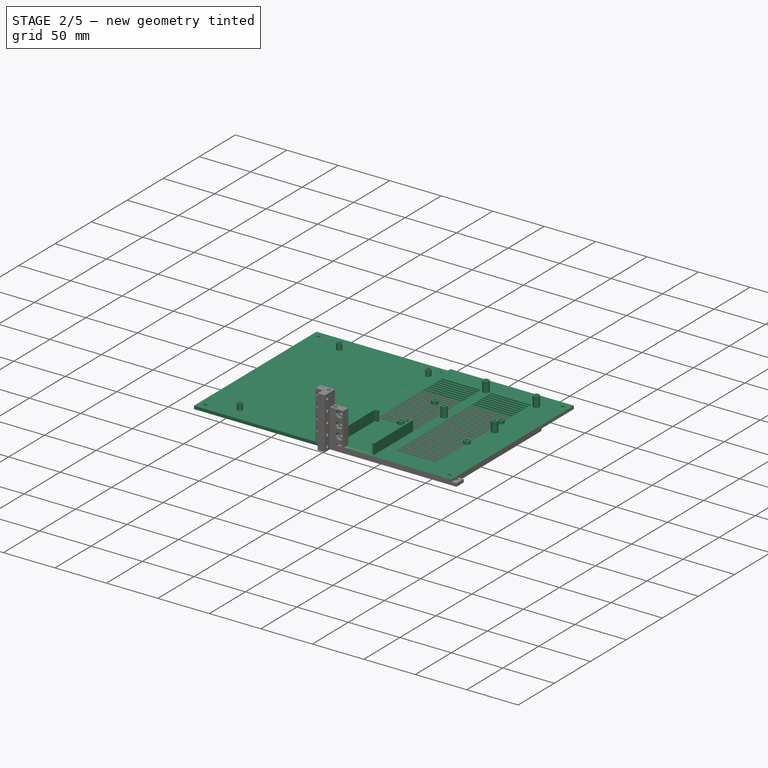
[diagram: stage 2 of 5 — iso view after this stage's code; geometry added in this stage tinted green]
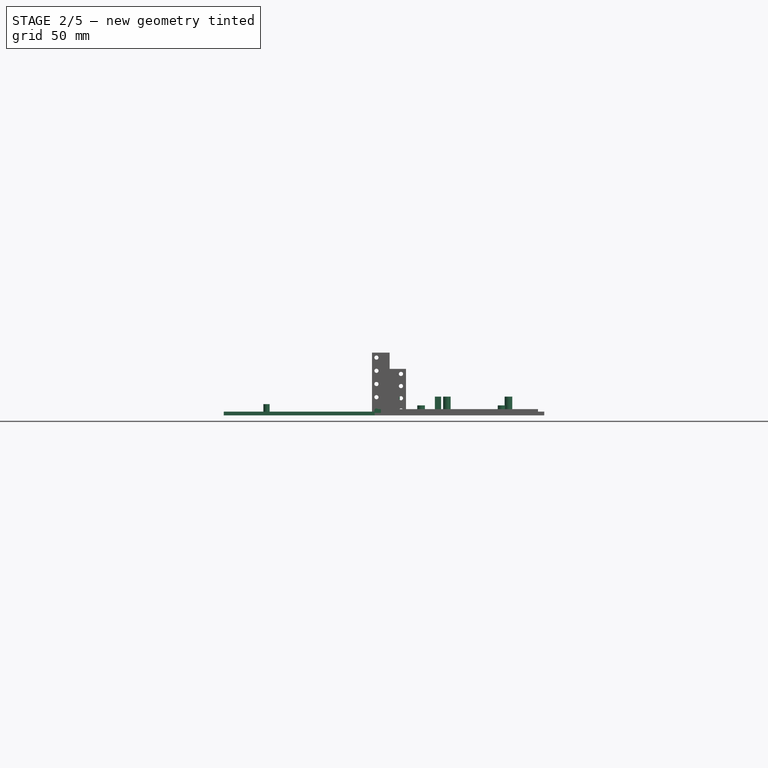
[diagram: stage 2 of 5 — front view after this stage's code; geometry added in this stage tinted green]
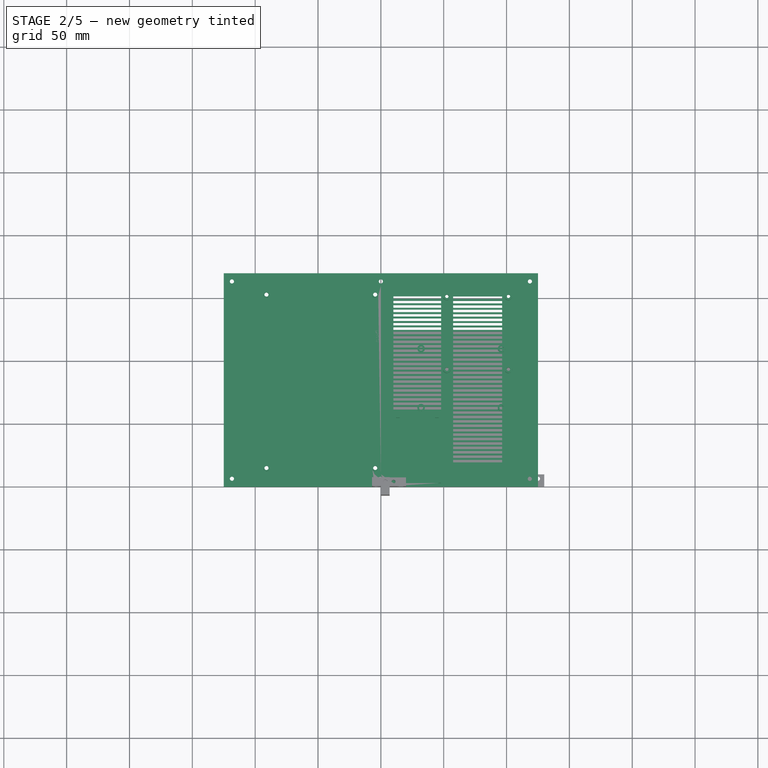
[diagram: stage 2 of 5 — top view after this stage's code; geometry added in this stage tinted green]
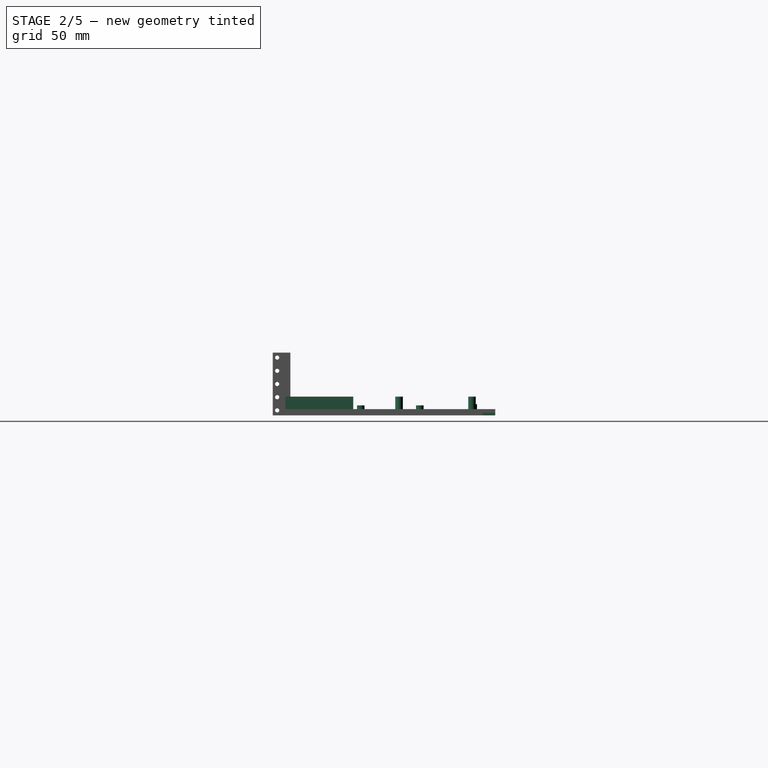
[diagram: stage 2 of 5 — right view after this stage's code; geometry added in this stage tinted green]
FEATURE [Sketcher::SketchObject] Sketch010  label="Base_plate_irght"
  MapMode = 2
  Placement = pos=(0,0,2) rot=(0,0,1;0rad)
  sketch-geometry (4):
    g0: LineSegment StartX=0 StartY=0 StartZ=0 EndX=125 EndY=0 EndZ=0
    g1: LineSegment StartX=125 StartY=0 StartZ=0 EndX=125 EndY=170 EndZ=0
    g2: LineSegment StartX=125 StartY=170 StartZ=0 EndX=0 EndY=170 EndZ=0
    g3: LineSegment StartX=0 StartY=170 StartZ=0 EndX=0 EndY=0 EndZ=0
  constraints (11):
    c: Coincident(g0,g1)
    c: Coincident(g1,g2)
    c: Coincident(g2,g3)
    c: Coincident(g3,g0)
    c: Horizontal(g0)
    c: Horizontal(g2)
    c: Vertical(g1)
    c: Vertical(g3)
    c: Distance(g3) = 170
    c: Distance(g0) = 125
    c: Coincident(g-1,g0)
FEATURE [PartDesign::Pad] Pad
  Length = 3
  Length2 = 100
  Placement = pos=(0,0,2) rot=(0,0,1;0rad)
  Profile = -> Sketch010
  Type = 0
FEATURE [Sketcher::SketchObject] Sketch034  label="base_plate_left001"
  MapMode = 5
  Support = -> [XY_Plane004]
  sketch-geometry (4):
    g0: LineSegment StartX=4e-16 StartY=0 StartZ=0 EndX=-125 EndY=0 EndZ=0
    g1: LineSegment StartX=-125 StartY=0 StartZ=0 EndX=-125 EndY=170 EndZ=0
    g2: LineSegment StartX=-125 StartY=170 StartZ=0 EndX=0 EndY=170 EndZ=0
    g3: LineSegment StartX=4e-16 StartY=170 StartZ=0 EndX=4e-16 EndY=0 EndZ=0
  constraints (11):
    c: Coincident(g0,g1)
    c: Coincident(g1,g2)
    c: Coincident(g2,g3)
    c: Coincident(g3,g0)
    c: Horizontal(g0)
    c: Horizontal(g2)
    c: Vertical(g1)
    c: Vertical(g3)
    c: Distance(g2) = 125
    c: Distance(g1) = 170
    c: Coincident(g-1,g0)
FEATURE [PartDesign::Pad] Pad006  label="Pad_base_plate_left"
  Length = 3
  Length2 = 100
  Profile = -> Sketch034
  Type = 0
FEATURE [Sketcher::SketchObject] Sketch062
  MapMode = 5
  Placement = pos=(0,0,2) rot=(1,0,0;3.14159rad)
  Support = -> [Pad]
  sketch-geometry (4):
    g0: LineSegment StartX=-5 StartY=0 StartZ=0 EndX=0 EndY=0 EndZ=0
    g1: LineSegment StartX=0 StartY=0 StartZ=0 EndX=0 EndY=-10 EndZ=0
    g2: LineSegment StartX=0 StartY=-10 StartZ=0 EndX=-5 EndY=-10 EndZ=0
    g3: LineSegment StartX=-5 StartY=-10 StartZ=0 EndX=-5 EndY=0 EndZ=0
  constraints (11):
    c: Coincident(g0,g1)
    c: Coincident(g1,g2)
    c: Coincident(g2,g3)
    c: Coincident(g3,g0)
    c: Horizontal(g0)
    c: Horizontal(g2)
    c: Vertical(g1)
    c: Vertical(g3)
    c: Distance(g0) = 5
    c: Distance(g3) = 10
    c: Coincident(g0,g-1)
FEATURE [PartDesign::Pad] Pad017
  BaseFeature = -> Pad
  Length = 3
  Length2 = 100
  Placement = pos=(0,0,2) rot=(0,0,1;0rad)
  Profile = -> Sketch062
  Reversed = true
  Type = 0
FEATURE [Sketcher::SketchObject] Sketch063
  ExternalGeometry = -> [Pad017]
  MapMode = 5
  Placement = pos=(0,0,2) rot=(1,0,0;3.14159rad)
  Support = -> [Pad017]
  sketch-geometry (11):
    g0: Circle CenterX=0 CenterY=-6.5 CenterZ=0 NormalX=0 NormalY=0 NormalZ=1 AngleXU=0 Radius=1.25
    g1: LineSegment [constr] StartX=117 StartY=-8 StartZ=0 EndX=125 EndY=-8 EndZ=0
    g2: LineSegment [constr] StartX=125 StartY=-8 StartZ=0 EndX=125 EndY=0 EndZ=0
    g3: LineSegment [constr] StartX=125 StartY=0 StartZ=0 EndX=117 EndY=0 EndZ=0
    g4: LineSegment [constr] StartX=117 StartY=0 StartZ=0 EndX=117 EndY=-8 EndZ=0
    g5: LineSegment [constr] StartX=117 StartY=-170 StartZ=0 EndX=125 EndY=-170 EndZ=0
    g6: LineSegment [constr] StartX=125 StartY=-170 StartZ=0 EndX=125 EndY=-162 EndZ=0
    g7: LineSegment [constr] StartX=125 StartY=-162 StartZ=0 EndX=117 EndY=-162 EndZ=0
    g8: LineSegment [constr] StartX=117 StartY=-162 StartZ=0 EndX=117 EndY=-170 EndZ=0
    g9: Circle CenterX=118.5 CenterY=-6.4 CenterZ=0 NormalX=0 NormalY=0 NormalZ=1 AngleXU=0 Radius=1.5
    g10: Circle CenterX=118.6 CenterY=-163.5 CenterZ=0 NormalX=0 NormalY=0 NormalZ=1 AngleXU=0 Radius=1.5
  constraints (31):
    c: Diameter(g0) = 2.5
    c: DistanceY(g-4,g0) = 3.5
    c: Coincident(g1,g2)
    c: Coincident(g2,g3)
    c: Coincident(g3,g4)
    c: Coincident(g4,g1)
    c: Horizontal(g1)
    c: Horizontal(g3)
    c: Vertical(g2)
    c: Vertical(g4)
    c: Coincident(g5,g6)
    c: Coincident(g6,g7)
    c: Coincident(g7,g8)
    c: Coincident(g8,g5)
    c: Horizontal(g5)
    c: Horizontal(g7)
    c: Vertical(g6)
    c: Vertical(g8)
    c: Equal(g7,g8)
    c: Equal(g8,g1)
    c: Equal(g1,g4)
    c: Distance(g4) = 8
    c: Equal(g9,g10)
    c: Diameter(g9) = 3
    c: DistanceY(g1,g9) = 1.6
    c: DistanceX(g1,g9) = 1.5
    c: Coincident(g2,g-5)
    c: DistanceY(g10,g7) = 1.5
    c: DistanceX(g7,g10) = 1.6
    c: Coincident(g5,g-5)
    c: PointOnObject(g0,g-2)
FEATURE [PartDesign::Hole] Hole002
  BaseFeature = -> Pad017
  Depth = 25
  DepthType = 1
  Diameter = 3.3
  DrillPoint = 1
  DrillPointAngle = 118
  HoleCutCountersinkAngle = 90
  HoleCutDepth = 0
  HoleCutDiameter = 6
  HoleCutType = 2
  ModelActualThread = false
  Placement = pos=(0,0,2) rot=(0,0,1;0rad)
  Profile = -> Sketch063
  Tapered = false
  TaperedAngle = 90
  ThreadAngle = 60
  ThreadClass = 5
  ThreadCutOffInner = 0.0541266
  ThreadCutOffOuter = 0.108253
  ThreadDirection = 1
  ThreadFit = 0
  ThreadPitch = 0.5
  ThreadSize = 3
  ThreadType = 1
  Threaded = false
FEATURE [Sketcher::SketchObject] Sketch064
  ExternalGeometry = -> [Hole002]
  MapMode = 5
  Placement = pos=(0,0,2) rot=(1,0,0;3.14159rad)
  Support = -> [Hole002]
  sketch-geometry (4):
    g0: LineSegment StartX=0 StartY=-170 StartZ=0 EndX=5 EndY=-170 EndZ=0
    g1: LineSegment StartX=5 StartY=-170 StartZ=0 EndX=5 EndY=-160 EndZ=0
    g2: LineSegment StartX=5 StartY=-160 StartZ=0 EndX=0 EndY=-160 EndZ=0
    g3: LineSegment StartX=0 StartY=-160 StartZ=0 EndX=0 EndY=-170 EndZ=0
  constraints (12):
    c: Coincident(g0,g1)
    c: Coincident(g1,g2)
    c: Coincident(g2,g3)
    c: Coincident(g3,g0)
    c: Horizontal(g0)
    c: Horizontal(g2)
    c: Vertical(g1)
    c: Vertical(g3)
    c: Distance(g2) = 5
    c: Distance(g1) = 10
    c: Coincident(g0,g-3)
    c: Diameter(g-4) = 3.3
FEATURE [PartDesign::Pocket] Pocket023
  BaseFeature = -> Hole002
  Length = 5
  Length2 = 100
  Placement = pos=(0,0,2) rot=(0,0,1;0rad)
  Profile = -> Sketch064
  Type = 2
FEATURE [Sketcher::SketchObject] Sketch065  label="case_connector_left_recess"
  MapMode = 5
  Placement = pos=(0,0,0) rot=(1,0,0;3.14159rad)
  Support = -> [Pad006]
  sketch-geometry (4):
    g0: LineSegment StartX=-5 StartY=-10 StartZ=0 EndX=0 EndY=-10 EndZ=0
    g1: LineSegment StartX=-1e-16 StartY=-10 StartZ=0 EndX=-1e-16 EndY=0 EndZ=0
    g2: LineSegment StartX=-1e-16 StartY=0 StartZ=0 EndX=-5 EndY=0 EndZ=0
    g3: LineSegment StartX=-5 StartY=0 StartZ=0 EndX=-5 EndY=-10 EndZ=0
  constraints (11):
    c: Coincident(g0,g1)
    c: Coincident(g1,g2)
    c: Coincident(g2,g3)
    c: Coincident(g3,g0)
    c: Horizontal(g0)
    c: Horizontal(g2)
    c: Vertical(g1)
    c: Vertical(g3)
    c: Distance(g2) = 5
    c: Distance(g3) = 10
    c: Coincident(g-1,g1)
FEATURE [PartDesign::Pocket] Pocket024
  BaseFeature = -> Pad006
  Length = 5
  Length2 = 100
  Profile = -> Sketch065
  Type = 2
FEATURE [Sketcher::SketchObject] Sketch066  label="case_connector_left_plate"
  ExternalGeometry = -> [Pocket024]
  MapMode = 5
  Placement = pos=(0,0,0) rot=(1,0,0;3.14159rad)
  Support = -> [Pocket024]
  sketch-geometry (4):
    g0: LineSegment StartX=0 StartY=-170 StartZ=0 EndX=5 EndY=-170 EndZ=0
    g1: LineSegment StartX=5 StartY=-170 StartZ=0 EndX=5 EndY=-160 EndZ=0
    g2: LineSegment StartX=5 StartY=-160 StartZ=0 EndX=0 EndY=-160 EndZ=0
    g3: LineSegment StartX=0 StartY=-160 StartZ=0 EndX=0 EndY=-170 EndZ=0
  constraints (11):
    c: Coincident(g0,g1)
    c: Coincident(g1,g2)
    c: Coincident(g2,g3)
    c: Coincident(g3,g0)
    c: Horizontal(g0)
    c: Horizontal(g2)
    c: Vertical(g1)
    c: Vertical(g3)
    c: Distance(g2) = 5
    c: Distance(g1) = 10
    c: Coincident(g0,g-3)
FEATURE [PartDesign::Pad] Pad018
  BaseFeature = -> Pocket024
  Length = 3
  Length2 = 100
  Profile = -> Sketch066
  Reversed = true
  Type = 0
FEATURE [Sketcher::SketchObject] Sketch067  label="case_connector_left_screw_hole"
  ExternalGeometry = -> [Pad018]
  MapMode = 5
  Placement = pos=(0,0,0) rot=(1,0,0;3.14159rad)
  Support = -> [Pad018]
  sketch-geometry (11):
    g0: Circle CenterX=0 CenterY=-163.5 CenterZ=0 NormalX=0 NormalY=0 NormalZ=1 AngleXU=0 Radius=3
    g1: LineSegment [constr] StartX=-125 StartY=-170 StartZ=0 EndX=-115 EndY=-170 EndZ=0
    g2: LineSegment [constr] StartX=-115 StartY=-170 StartZ=0 EndX=-115 EndY=-160 EndZ=0
    g3: LineSegment [constr] StartX=-115 StartY=-160 StartZ=0 EndX=-125 EndY=-160 EndZ=0
    g4: LineSegment [constr] StartX=-125 StartY=-160 StartZ=0 EndX=-125 EndY=-170 EndZ=0
    g5: Circle CenterX=-118.5 CenterY=-163.5 CenterZ=0 NormalX=0 NormalY=0 NormalZ=1 AngleXU=0 Radius=1.5
    g6: LineSegment [constr] StartX=-125 StartY=-10 StartZ=0 EndX=-115 EndY=-10 EndZ=0
    g7: LineSegment [constr] StartX=-115 StartY=-10 StartZ=0 EndX=-115 EndY=0 EndZ=0
    g8: LineSegment [constr] StartX=-115 StartY=0 StartZ=0 EndX=-125 EndY=0 EndZ=0
    g9: LineSegment [constr] StartX=-125 StartY=0 StartZ=0 EndX=-125 EndY=-10 EndZ=0
    g10: Circle CenterX=-118.5 CenterY=-6.5 CenterZ=0 NormalX=0 NormalY=0 NormalZ=1 AngleXU=0 Radius=1.5
  constraints (31):
    c: Diameter(g0) = 6
    c: PointOnObject(g0,g-2)
    c: Distance(g0,g-3) = 6.5
    c: Coincident(g1,g2)
    c: Coincident(g2,g3)
    c: Coincident(g3,g4)
    c: Coincident(g4,g1)
    c: Horizontal(g1)
    c: Horizontal(g3)
    c: Vertical(g2)
    c: Vertical(g4)
    c: Equal(g2,g3)
    c: Distance(g3) = 10
    c: Coincident(g-3,g1)
    c: Diameter(g5) = 3
    c: DistanceX(g5,g2) = 3.5
    c: DistanceY(g5,g2) = 3.5
    c: Coincident(g6,g7)
    c: Coincident(g7,g8)
    c: Coincident(g8,g9)
    c: Coincident(g9,g6)
    c: Horizontal(g6)
    c: Horizontal(g8)
    c: Vertical(g7)
    c: Vertical(g9)
    c: Equal(g7,g8)
    c: Equal(g3,g8) = 6
    c: Equal(g5,g10) = 6
    c: DistanceY(g6,g10) = 3.5
    c: DistanceX(g10,g6) = 3.5
    c: Coincident(g8,g-4)
FEATURE [PartDesign::Hole] Hole003
  BaseFeature = -> Pad018
  Depth = 25
  DepthType = 0
  Diameter = 3.3
  DrillPoint = 1
  DrillPointAngle = 118
  HoleCutCountersinkAngle = 90
  HoleCutDepth = 0
  HoleCutDiameter = 6
  HoleCutType = 2
  ModelActualThread = false
  Profile = -> Sketch067
  Tapered = false
  TaperedAngle = 90
  ThreadAngle = 0
  ThreadClass = 0
  ThreadCutOffInner = 0
  ThreadCutOffOuter = 0
  ThreadDirection = 0
  ThreadFit = 0
  ThreadPitch = 0
  ThreadSize = 3
  ThreadType = 1
  Threaded = false
FEATURE [PartDesign::Pad] Pad019
  BaseFeature = -> Hole003
  Length = 6
  Length2 = 100
  Profile = -> Sketch047
  Type = 0
FEATURE [Sketcher::SketchObject] Sketch076
  ExternalGeometry = -> [Pad019]
  MapMode = 5
  Placement = pos=(0,0,9) rot=(0,0,1;0rad)
  Support = -> [Pad019]
  sketch-geometry (4):
    g0: Circle CenterX=-91 CenterY=153 CenterZ=0 NormalX=0 NormalY=0 NormalZ=1 AngleXU=0 Radius=1.5
    g1: Circle CenterX=-4.5 CenterY=153 CenterZ=0 NormalX=0 NormalY=0 NormalZ=1 AngleXU=0 Radius=1.5
    g2: Circle CenterX=-4.5 CenterY=15 CenterZ=0 NormalX=0 NormalY=0 NormalZ=1 AngleXU=0 Radius=1.5
    g3: Circle CenterX=-91 CenterY=15 CenterZ=0 NormalX=0 NormalY=0 NormalZ=1 AngleXU=0 Radius=1.5
  constraints (8):
    c: Diameter(g0) = 3
    c: Equal(g0,g1)
    c: Equal(g1,g2)
    c: Equal(g2,g3)
    c: Coincident(g-3,g0)
    c: Coincident(g1,g-4)
    c: Coincident(g3,g-6)
    c: Coincident(g-5,g2)
FEATURE [PartDesign::Hole] Hole007
  BaseFeature = -> Pad019
  Depth = 25
  DepthType = 0
  Diameter = 3.3
  DrillPoint = 1
  DrillPointAngle = 118
  HoleCutCountersinkAngle = 90
  HoleCutDepth = 0
  HoleCutDiameter = 3
  HoleCutType = 0
  ModelActualThread = false
  Profile = -> Sketch076
  Tapered = false
  TaperedAngle = 90
  ThreadAngle = 0
  ThreadClass = 0
  ThreadCutOffInner = 0
  ThreadCutOffOuter = 0
  ThreadDirection = 0
  ThreadFit = 0
  ThreadPitch = 0
  ThreadSize = 3
  ThreadType = 1
  Threaded = false
FEATURE [PartDesign::Pad] Pad036
  BaseFeature = -> Pocket023
  Length = 10
  Length2 = 100
  Placement = pos=(0,0,2) rot=(0,0,1;0rad)
  Profile = -> Sketch081
  Type = 0
FEATURE [Sketcher::SketchObject] Sketch105
  ExternalGeometry = -> [Pad036]
  MapMode = 5
  Placement = pos=(0,0,15) rot=(0,0,1;0rad)
  Support = -> [Pad036]
  sketch-geometry (4):
    g0: Circle CenterX=52.5 CenterY=151.5 CenterZ=0 NormalX=0 NormalY=0 NormalZ=1 AngleXU=0 Radius=1.25
    g1: Circle CenterX=101.5 CenterY=151.5 CenterZ=0 NormalX=0 NormalY=0 NormalZ=1 AngleXU=0 Radius=1.25
    g2: Circle CenterX=52.5 CenterY=93.5 CenterZ=0 NormalX=0 NormalY=0 NormalZ=1 AngleXU=0 Radius=1.25
    g3: Circle CenterX=101.5 CenterY=93.5 CenterZ=0 NormalX=0 NormalY=0 NormalZ=1 AngleXU=0 Radius=1.25
  constraints (8):
    c: Diameter(g0) = 2.5
    c: Equal(g0,g1)
    c: Equal(g1,g3)
    c: Equal(g3,g2)
    c: Coincident(g0,g-3)
    c: Coincident(g-4,g1)
    c: Coincident(g2,g-6)
    c: Coincident(g3,g-5)
FEATURE [PartDesign::Hole] Hole014
  BaseFeature = -> Pad036
  Depth = 25
  DepthType = 0
  Diameter = 2.75
  DrillPoint = 1
  DrillPointAngle = 118
  HoleCutCountersinkAngle = 90
  HoleCutDepth = 0
  HoleCutDiameter = 2.5
  HoleCutType = 0
  ModelActualThread = false
  Placement = pos=(0,0,2) rot=(0,0,1;0rad)
  Profile = -> Sketch105
  Tapered = false
  TaperedAngle = 90
  ThreadAngle = 0
  ThreadClass = 0
  ThreadCutOffInner = 0
  ThreadCutOffOuter = 0
  ThreadDirection = 0
  ThreadFit = 0
  ThreadPitch = 0
  ThreadSize = 2
  ThreadType = 1
  Threaded = false
FEATURE [PartDesign::Body] Body012  label="foot"
  Group = -> [Sketch114,Pad039]
  Origin = -> Origin012
  Placement = pos=(0,-56,0) rot=(0,0,1;0rad)
  Tip = -> Pad039
FEATURE [Sketcher::SketchObject] Sketch130
  MapMode = 5
  Placement = pos=(0,0,5) rot=(0,0,1;0rad)
  Support = -> [Hole014]
  sketch-geometry (13):
    g0: LineSegment StartX=12 StartY=3 StartZ=0 EndX=12 EndY=55 EndZ=0
    g1: LineSegment StartX=12 StartY=55 StartZ=0 EndX=15 EndY=55 EndZ=0
    g2: LineSegment StartX=15 StartY=55 StartZ=0 EndX=15 EndY=57 EndZ=0
    g3: LineSegment StartX=15 StartY=57 StartZ=0 EndX=10 EndY=57 EndZ=0
    g4: LineSegment StartX=10 StartY=57 StartZ=0 EndX=10 EndY=3 EndZ=0
    g5: LineSegment StartX=10 StartY=3 StartZ=0 EndX=12 EndY=3 EndZ=0
    g6: LineSegment StartX=46 StartY=3 StartZ=0 EndX=48 EndY=3 EndZ=0
    g7: LineSegment StartX=48 StartY=3 StartZ=0 EndX=48 EndY=57 EndZ=0
    g8: LineSegment StartX=48 StartY=57 StartZ=0 EndX=43 EndY=57 EndZ=0
    g9: LineSegment StartX=43 StartY=57 StartZ=0 EndX=43 EndY=55 EndZ=0
    g10: LineSegment StartX=43 StartY=55 StartZ=0 EndX=46 EndY=55 EndZ=0
    g11: LineSegment StartX=46 StartY=55 StartZ=0 EndX=46 EndY=3 EndZ=0
    g12: LineSegment [constr] StartX=12 StartY=3 StartZ=0 EndX=46 EndY=3 EndZ=0
  constraints (38):
    c: Coincident(g0,g1)
    c: Coincident(g1,g2)
    c: Coincident(g2,g3)
    c: Coincident(g3,g4)
    c: Coincident(g4,g5)
    c: Coincident(g5,g0)
    c: Vertical(g0)
    c: Vertical(g4)
    c: Vertical(g2)
    c: Horizontal(g3)
    c: Horizontal(g1)
    c: Horizontal(g5)
    c: Distance(g0) = 52
    c: Distance(g1) = 3
    c: Distance(g2) = 2
    c: Distance(g5) = 2
    c: Coincident(g6,g7)
    c: Coincident(g7,g8)
    c: Coincident(g8,g9)
    c: Coincident(g9,g10)
    c: Coincident(g10,g11)
    c: Coincident(g11,g6)
    c: Vertical(g7)
    c: Vertical(g11)
    c: Vertical(g9)
    c: Horizontal(g8)
    c: Horizontal(g10)
    c: Horizontal(g6)
    c: Equal(g5,g6)
    c: Equal(g0,g11)
    c: Equal(g2,g9)
    c: Equal(g1,g10)
    c: Coincident(g12,g6)
    c: Coincident(g12,g0)
    c: Horizontal(g12)
    c: Distance(g12) = 34
    c: DistanceX(g-2,g0) = 12
    c: DistanceY(g-1,g0) = 3
FEATURE [PartDesign::Pad] Pad048
  BaseFeature = -> Hole014
  Length = 10
  Length2 = 100
  Placement = pos=(0,0,2) rot=(0,0,1;0rad)
  Profile = -> Sketch130
  Type = 0
FEATURE [PartDesign::Body] Body018  label="Back_right_compartment_front_wall"
  Group = -> [Sketch164,Pad056,Sketch168,Pocket054,Sketch184,Hole036]
  Origin = -> Origin018
  Placement = pos=(0,220,4) rot=(0,0,1;0rad)
  Tip = -> Hole036
FEATURE [Sketcher::SketchObject] Sketch185
  ExternalGeometry = -> [Pad059]
  MapMode = 5
  Placement = pos=(0,0,0) rot=(1,0,0;3.14159rad)
  Support = -> [Pad059]
  sketch-geometry (11):
    g0: Circle CenterX=125 CenterY=-6.5 CenterZ=0 NormalX=0 NormalY=0 NormalZ=1 AngleXU=0 Radius=1.5
    g1: LineSegment [constr] StartX=10 StartY=-10 StartZ=0 EndX=0 EndY=-10 EndZ=0
    g2: LineSegment [constr] StartX=0 StartY=-10 StartZ=0 EndX=0 EndY=0 EndZ=0
    g3: LineSegment [constr] StartX=0 StartY=0 StartZ=0 EndX=10 EndY=0 EndZ=0
    g4: LineSegment [constr] StartX=10 StartY=0 StartZ=0 EndX=10 EndY=-10 EndZ=0
    g5: Circle CenterX=6.5 CenterY=-6.5 CenterZ=0 NormalX=0 NormalY=0 NormalZ=1 AngleXU=0 Radius=1.5
    g6: LineSegment [constr] StartX=10 StartY=-125 StartZ=0 EndX=0 EndY=-125 EndZ=0
    g7: LineSegment [constr] StartX=0 StartY=-125 StartZ=0 EndX=0 EndY=-115 EndZ=0
    g8: LineSegment [constr] StartX=0 StartY=-115 StartZ=0 EndX=10 EndY=-115 EndZ=0
    g9: LineSegment [constr] StartX=10 StartY=-115 StartZ=0 EndX=10 EndY=-125 EndZ=0
    g10: Circle CenterX=6.5 CenterY=-118.5 CenterZ=0 NormalX=0 NormalY=0 NormalZ=1 AngleXU=0 Radius=1.5
  constraints (31):
    c: Diameter(g0) = 3
    c: PointOnObject(g0,g-3)
    c: DistanceY(g-3,g0) = 3.5
    c: Coincident(g1,g2)
    c: Coincident(g2,g3)
    c: Coincident(g3,g4)
    c: Coincident(g4,g1)
    c: Horizontal(g1)
    c: Horizontal(g3)
    c: Vertical(g2)
    c: Vertical(g4)
    c: Coincident(g2,g-1)
    c: Equal(g3,g2)
    c: Distance(g3) = 10
    c: DistanceX(g5,g1) = 3.5
    c: DistanceY(g1,g5) = 3.5
    c: Equal(g0,g5)
    c: Coincident(g6,g7)
    c: Coincident(g7,g8)
    c: Coincident(g8,g9)
    c: Coincident(g9,g6)
    c: Horizontal(g6)
    c: Horizontal(g8)
    c: Vertical(g7)
    c: Vertical(g9)
    c: Equal(g8,g7)
    c: Equal(g3,g8) = 10
    c: DistanceX(g10,g6) = 3.5
    c: DistanceY(g10,g8) = 3.5
    c: Coincident(g6,g-4)
    c: Equal(g10,g0)
FEATURE [PartDesign::Hole] Hole037
  BaseFeature = -> Pad059
  Depth = 25
  DepthType = 0
  Diameter = 3.3
  DrillPoint = 1
  DrillPointAngle = 118
  HoleCutCountersinkAngle = 90
  HoleCutDepth = 0
  HoleCutDiameter = 6
  HoleCutType = 2
  ModelActualThread = false
  Profile = -> Sketch185
  Tapered = false
  TaperedAngle = 90
  ThreadAngle = 0
  ThreadClass = 0
  ThreadCutOffInner = 0
  ThreadCutOffOuter = 0
  ThreadDirection = 0
  ThreadFit = 0
  ThreadPitch = 0
  ThreadSize = 3
  ThreadType = 1
  Threaded = false
FEATURE [PartDesign::Body] Body004  label="Front_left_comartment_base_plate"
  Group = -> [Sketch034,Pad006,Sketch047,Sketch065,Pocket024,Sketch066,Pad018,Sketch067,Hole003,Pad019,Sketch076,Hole007,Sketch138,Pocket046,LinearPattern005,Sketch139,Pocket047,LinearPattern008]
  Origin = -> Origin004
  Placement = pos=(0,0,1) rot=(0,0,1;0rad)
  Tip = -> LinearPattern008
FEATURE [Sketcher::SketchObject] Sketch218
  ExternalGeometry = -> [Pad048]
  MapMode = 5
  Placement = pos=(0,0,5) rot=(0,0,1;0rad)
  Support = -> [Pad048]
  sketch-geometry (6):
    g0: LineSegment StartX=57.5 StartY=149.5 StartZ=0 EndX=96.5 EndY=149.5 EndZ=0
    g1: LineSegment StartX=96.5 StartY=149.5 StartZ=0 EndX=96.5 EndY=151.5 EndZ=0
    g2: LineSegment StartX=96.5 StartY=151.5 StartZ=0 EndX=57.5 EndY=151.5 EndZ=0
    g3: LineSegment StartX=57.5 StartY=151.5 StartZ=0 EndX=57.5 EndY=149.5 EndZ=0
    g4: LineSegment [constr] StartX=52.5 StartY=151.5 StartZ=0 EndX=57.5 EndY=151.5 EndZ=0
    g5: LineSegment [constr] StartX=96.5 StartY=151.5 StartZ=0 EndX=101.5 EndY=151.5 EndZ=0
  constraints (16):
    c: Coincident(g0,g1)
    c: Coincident(g1,g2)
    c: Coincident(g2,g3)
    c: Coincident(g3,g0)
    c: Horizontal(g0)
    c: Horizontal(g2)
    c: Vertical(g1)
    c: Vertical(g3)
    c: Distance(g3) = 2
    c: Coincident(g5,g-4)
    c: Coincident(g5,g1)
    c: Coincident(g4,g2)
    c: Coincident(g4,g-3)
    c: Horizontal(g4)
    c: Equal(g4,g5)
    c: Distance(g4) = 5
FEATURE [PartDesign::Pocket] Pocket068
  BaseFeature = -> Pad048
  Length = 5
  Length2 = 100
  Placement = pos=(0,0,2) rot=(0,0,1;0rad)
  Profile = -> Sketch218
  Type = 1
FEATURE [PartDesign::LinearPattern] LinearPattern009
  BaseFeature = -> Pocket068
  Direction = -> Y_Axis
  Length = 130
  Occurrences = 38
  Originals = -> [Pocket068]
  Placement = pos=(0,0,2) rot=(0,0,1;0rad)
  Reversed = true
FEATURE [Sketcher::SketchObject] Sketch219
  ExternalGeometry = -> [LinearPattern009]
  MapMode = 5
  Placement = pos=(0,0,5) rot=(0,0,1;0rad)
  Support = -> [LinearPattern009]
  sketch-geometry (5):
    g0: LineSegment StartX=10 StartY=61.6 StartZ=0 EndX=48 EndY=61.6 EndZ=0
    g1: LineSegment StartX=48 StartY=61.6 StartZ=0 EndX=48 EndY=63.6 EndZ=0
    g2: LineSegment StartX=48 StartY=63.6 StartZ=0 EndX=10 EndY=63.6 EndZ=0
    g3: LineSegment StartX=10 StartY=63.6 StartZ=0 EndX=10 EndY=61.6 EndZ=0
    g4: LineSegment [constr] StartX=48 StartY=57 StartZ=0 EndX=48 EndY=61.6 EndZ=0
  constraints (14):
    c: Coincident(g0,g1)
    c: Coincident(g1,g2)
    c: Coincident(g2,g3)
    c: Coincident(g3,g0)
    c: Horizontal(g0)
    c: Horizontal(g2)
    c: Vertical(g1)
    c: Vertical(g3)
    c: Distance(g1) = 2
    c: Coincident(g4,g-3)
    c: Coincident(g0,g4)
    c: Vertical(g4)
    c: Distance(g4) = 4.6
    c: Distance(g2) = 38
FEATURE [PartDesign::Pocket] Pocket069
  BaseFeature = -> LinearPattern009
  Length = 5
  Length2 = 100
  Placement = pos=(0,0,2) rot=(0,0,1;0rad)
  Profile = -> Sketch219
  Type = 1
FEATURE [PartDesign::LinearPattern] LinearPattern010
  BaseFeature = -> Pocket069
  Direction = -> Y_Axis
  Length = 88
  Occurrences = 26
  Originals = -> [Pocket069]
  Placement = pos=(0,0,2) rot=(0,0,1;0rad)
FEATURE [PartDesign::Body] Body  label="Front_right_compartment_base_plate"
  Group = -> [Sketch010,Pad,Sketch062,Pad017,Sketch063,Hole002,Sketch064,Pocket023,Sketch081,Pad036,Sketch105,Hole014,Sketch130,Pad048,Sketch218,Pocket068,LinearPattern009,Sketch219,Pocket069,LinearPattern010]
  Origin = -> Origin
  Placement = pos=(0,0,-1) rot=(0,0,1;0rad)
  Tip = -> LinearPattern010
FEATURE [Sketcher::SketchObject] Sketch220
  MapMode = 5
  Support = -> [XY_Plane042]
  sketch-geometry (4):
    g0: LineSegment StartX=0 StartY=0 StartZ=0 EndX=102 EndY=0 EndZ=0
    g1: LineSegment StartX=102 StartY=0 StartZ=0 EndX=102 EndY=125 EndZ=0
    g2: LineSegment StartX=102 StartY=125 StartZ=0 EndX=0 EndY=125 EndZ=0
    g3: LineSegment StartX=0 StartY=125 StartZ=0 EndX=0 EndY=0 EndZ=0
  constraints (11):
    c: Coincident(g0,g1)
    c: Coincident(g1,g2)
    c: Coincident(g2,g3)
    c: Coincident(g3,g0)
    c: Horizontal(g0)
    c: Horizontal(g2)
    c: Vertical(g1)
    c: Vertical(g3)
    c: Distance(g0) = 102
    c: Distance(g1) = 125
    c: Coincident(g-1,g0)
FEATURE [PartDesign::Pad] Pad074
  Length = 3
  Length2 = 100
  Profile = -> Sketch220
  Type = 0
FEATURE [Sketcher::SketchObject] Sketch221
  ExternalGeometry = -> [Pad074]
  MapMode = 5
  Placement = pos=(0,0,3) rot=(0,0,1;0rad)
  Support = -> [Pad074]
  sketch-geometry (10):
    g0: Circle CenterX=6.5 CenterY=118.5 CenterZ=0 NormalX=0 NormalY=0 NormalZ=1 AngleXU=0 Radius=1.5
    g1: LineSegment [constr] StartX=10 StartY=115 StartZ=0 EndX=0 EndY=115 EndZ=0
    g2: LineSegment [constr] StartX=0 StartY=115 StartZ=0 EndX=0 EndY=125 EndZ=0
    g3: LineSegment [constr] StartX=0 StartY=125 StartZ=0 EndX=10 EndY=125 EndZ=0
    g4: LineSegment [constr] StartX=10 StartY=125 StartZ=0 EndX=10 EndY=115 EndZ=0
    g5: Circle CenterX=6.5 CenterY=6.5 CenterZ=0 NormalX=0 NormalY=0 NormalZ=1 AngleXU=0 Radius=1.5
    g6: LineSegment [constr] StartX=10 StartY=0 StartZ=0 EndX=0 EndY=0 EndZ=0
    g7: LineSegment [constr] StartX=0 StartY=0 StartZ=0 EndX=0 EndY=10 EndZ=0
    g8: LineSegment [constr] StartX=0 StartY=10 StartZ=0 EndX=10 EndY=10 EndZ=0
    g9: LineSegment [constr] StartX=10 StartY=10 StartZ=0 EndX=10 EndY=0 EndZ=0
  constraints (28):
    c: Diameter(g0) = 3
    c: Coincident(g1,g2)
    c: Coincident(g2,g3)
    c: Coincident(g3,g4)
    c: Coincident(g4,g1)
    c: Horizontal(g1)
    c: Horizontal(g3)
    c: Vertical(g2)
    c: Vertical(g4)
    c: Equal(g2,g3)
    c: Distance(g3) = 10
    c: DistanceX(g0,g1) = 3.5
    c: DistanceY(g1,g0) = 3.5
    c: Coincident(g2,g-3)
    c: Equal(g0,g5) = 3
    c: Coincident(g6,g7)
    c: Coincident(g7,g8)
    c: Coincident(g8,g9)
    c: Coincident(g9,g6)
    c: Horizontal(g6)
    c: Horizontal(g8)
    c: Vertical(g7)
    c: Vertical(g9)
    c: Equal(g7,g8)
    c: Equal(g3,g8) = 10
    c: DistanceX(g5,g6) = 3.5
    c: DistanceY(g5,g8) = 3.5
    c: Coincident(g6,g-1)
FEATURE [PartDesign::Hole] Hole051
  BaseFeature = -> Pad074
  Depth = 25
  DepthType = 0
  Diameter = 3.3
  DrillPoint = 1
  DrillPointAngle = 118
  HoleCutCountersinkAngle = 90
  HoleCutDepth = 0
  HoleCutDiameter = 6
  HoleCutType = 2
  ModelActualThread = false
  Profile = -> Sketch221
  Tapered = false
  TaperedAngle = 90
  ThreadAngle = 0
  ThreadClass = 0
  ThreadCutOffInner = 0
  ThreadCutOffOuter = 0
  ThreadDirection = 0
  ThreadFit = 0
  ThreadPitch = 0
  ThreadSize = 3
  ThreadType = 1
  Threaded = false
FEATURE [Sketcher::SketchObject] Sketch222
  ExternalGeometry = -> [Hole051]
  MapMode = 5
  Placement = pos=(0,0,3) rot=(0,0,1;0rad)
  Support = -> [Hole051]
  sketch-geometry (16):
    g0: LineSegment StartX=5 StartY=15 StartZ=0 EndX=34.3333 EndY=15 EndZ=0
    g1: LineSegment StartX=34.3333 StartY=15 StartZ=0 EndX=34.3333 EndY=13 EndZ=0
    g2: LineSegment StartX=34.3333 StartY=13 StartZ=0 EndX=5 EndY=13 EndZ=0
    g3: LineSegment StartX=5 StartY=13 StartZ=0 EndX=5 EndY=15 EndZ=0
    g4: LineSegment StartX=36.3333 StartY=15 StartZ=0 EndX=65.6667 EndY=15 EndZ=0
    g5: LineSegment StartX=65.6667 StartY=15 StartZ=0 EndX=65.6667 EndY=13 EndZ=0
    g6: LineSegment StartX=65.6667 StartY=13 StartZ=0 EndX=36.3333 EndY=13 EndZ=0
    g7: LineSegment StartX=36.3333 StartY=13 StartZ=0 EndX=36.3333 EndY=15 EndZ=0
    g8: LineSegment StartX=67.6667 StartY=15 StartZ=0 EndX=97 EndY=15 EndZ=0
    g9: LineSegment StartX=97 StartY=15 StartZ=0 EndX=97 EndY=13 EndZ=0
    g10: LineSegment StartX=97 StartY=13 StartZ=0 EndX=67.6667 EndY=13 EndZ=0
    g11: LineSegment StartX=67.6667 StartY=13 StartZ=0 EndX=67.6667 EndY=15 EndZ=0
    g12: LineSegment [constr] StartX=0 StartY=15 StartZ=0 EndX=5 EndY=15 EndZ=0
    g13: LineSegment [constr] StartX=34.3333 StartY=15 StartZ=0 EndX=36.3333 EndY=15 EndZ=0
    g14: LineSegment [constr] StartX=65.6667 StartY=15 StartZ=0 EndX=67.6667 EndY=15 EndZ=0
    g15: LineSegment [constr] StartX=97 StartY=15 StartZ=0 EndX=102 EndY=15 EndZ=0
  constraints (46):
    c: Coincident(g0,g1)
    c: Coincident(g1,g2)
    c: Coincident(g2,g3)
    c: Coincident(g3,g0)
    c: Horizontal(g0)
    c: Horizontal(g2)
    c: Vertical(g1)
    c: Vertical(g3)
    c: Coincident(g4,g5)
    c: Coincident(g5,g6)
    c: Coincident(g6,g7)
    c: Coincident(g7,g4)
    c: Horizontal(g4)
    c: Horizontal(g6)
    c: Vertical(g5)
    c: Vertical(g7)
    c: Coincident(g8,g9)
    c: Coincident(g9,g10)
    c: Coincident(g10,g11)
    c: Coincident(g11,g8)
    c: Horizontal(g8)
    c: Horizontal(g10)
    c: Vertical(g9)
    c: Vertical(g11)
    c: Horizontal(g14)
    c: Horizontal(g13)
    c: Equal(g13,g14)
    c: Distance(g13) = 2
    c: Coincident(g0,g13)
    c: Coincident(g13,g4)
    c: Coincident(g14,g4)
    c: Coincident(g14,g8)
    c: Equal(g3,g7)
    c: Equal(g7,g11)
    c: Distance(g3) = 2
    c: Equal(g12,g15)
    c: Horizontal(g12)
    c: Horizontal(g15)
    c: Coincident(g12,g0)
    c: Coincident(g15,g8)
    c: PointOnObject(g15,g-3)
    c: PointOnObject(g12,g-2)
    c: Distance(g12) = 5
    c: DistanceY(g-1,g12) = 15
    c: Equal(g4,g8)
    c: Equal(g8,g0)
FEATURE [PartDesign::Pocket] Pocket070
  BaseFeature = -> Hole051
  Length = 5
  Length2 = 100
  Profile = -> Sketch222
  Type = 0
FEATURE [PartDesign::Pocket] Pocket071
  BaseFeature = -> Pocket070
  Length = 5
  Length2 = 100
  Profile = -> Sketch222
  Type = 1
FEATURE [PartDesign::LinearPattern] LinearPattern011
  BaseFeature = -> Pocket071
  Direction = -> Sketch222 [V_Axis]
  Length = 100
  Occurrences = 25
  Originals = -> [Pocket071]
FEATURE [PartDesign::Body] Body042  label="Back_left_compartment_lid"
  Group = -> [Sketch220,Pad074,Sketch221,Hole051,Sketch222,Pocket070,Pocket071,LinearPattern011]
  Origin = -> Origin042
  Placement = pos=(-125,217,54) rot=(0,0,1;0rad)
  Tip = -> LinearPattern011
FEATURE [Sketcher::SketchObject] Sketch
  ExternalGeometry = -> [Hole037]
  MapMode = 5
  Placement = pos=(0,0,3) rot=(0,0,1;0rad)
  Support = -> [Hole037]
  sketch-geometry (12):
    g0: LineSegment [constr] StartX=28 StartY=59 StartZ=0 EndX=100 EndY=59 EndZ=0
    g1: LineSegment [constr] StartX=100 StartY=59 StartZ=0 EndX=100 EndY=114 EndZ=0
    g2: LineSegment [constr] StartX=100 StartY=114 StartZ=0 EndX=28 EndY=114 EndZ=0
    g3: LineSegment [constr] StartX=28 StartY=114 StartZ=0 EndX=28 EndY=59 EndZ=0
    g4: LineSegment [constr] StartX=32 StartY=63 StartZ=0 EndX=96 EndY=63 EndZ=0
    g5: LineSegment [constr] StartX=96 StartY=63 StartZ=0 EndX=96 EndY=110 EndZ=0
    g6: LineSegment [constr] StartX=96 StartY=110 StartZ=0 EndX=32 EndY=110 EndZ=0
    g7: LineSegment [constr] StartX=32 StartY=110 StartZ=0 EndX=32 EndY=63 EndZ=0
    g8: Circle CenterX=32 CenterY=110 CenterZ=0 NormalX=0 NormalY=0 NormalZ=1 AngleXU=0 Radius=3
    g9: Circle CenterX=96 CenterY=110 CenterZ=0 NormalX=0 NormalY=0 NormalZ=1 AngleXU=0 Radius=3
    g10: Circle CenterX=32 CenterY=63 CenterZ=0 NormalX=0 NormalY=0 NormalZ=1 AngleXU=0 Radius=3
    g11: Circle CenterX=96 CenterY=63 CenterZ=0 NormalX=0 NormalY=0 NormalZ=1 AngleXU=0 Radius=3
  constraints (32):
    c: Coincident(g0,g1)
    c: Coincident(g1,g2)
    c: Coincident(g2,g3)
    c: Coincident(g3,g0)
    c: Horizontal(g0)
    c: Horizontal(g2)
    c: Vertical(g1)
    c: Vertical(g3)
    c: Distance(g3) = 55
    c: Distance(g2) = 72
    c: Coincident(g4,g5)
    c: Coincident(g5,g6)
    c: Coincident(g6,g7)
    c: Coincident(g7,g4)
    c: Horizontal(g4)
    c: Horizontal(g6)
    c: Vertical(g5)
    c: Vertical(g7)
    c: Distance(g6) = 64
    c: Distance(g7) = 47
    c: DistanceX(g5,g1) = 4
    c: DistanceY(g5,g1) = 4
    c: Equal(g11,g10)
    c: Equal(g10,g8)
    c: Equal(g8,g9)
    c: Diameter(g8) = 6
    c: Coincident(g6,g8)
    c: Coincident(g5,g9)
    c: Coincident(g11,g4)
    c: Coincident(g10,g4)
    c: Distance(g1,g-3) = 25
    c: Distance(g-3,g2) = 1
FEATURE [PartDesign::Pad] Pad075
  BaseFeature = -> Hole037
  Length = 5
  Length2 = 100
  Profile = -> Sketch
  Type = 0
FEATURE [Sketcher::SketchObject] Sketch223
  ExternalGeometry = -> [Pad075]
  MapMode = 5
  Placement = pos=(0,0,8) rot=(0,0,1;0rad)
  Support = -> [Pad075]
  sketch-geometry (4):
    g0: Circle CenterX=32 CenterY=110 CenterZ=0 NormalX=0 NormalY=0 NormalZ=1 AngleXU=0 Radius=1.5
    g1: Circle CenterX=96 CenterY=110 CenterZ=0 NormalX=0 NormalY=0 NormalZ=1 AngleXU=0 Radius=1.5
    g2: Circle CenterX=32 CenterY=63 CenterZ=0 NormalX=0 NormalY=0 NormalZ=1 AngleXU=0 Radius=1.5
    g3: Circle CenterX=96 CenterY=63 CenterZ=0 NormalX=0 NormalY=0 NormalZ=1 AngleXU=0 Radius=1.5
  constraints (8):
    c: Equal(g0,g1)
    c: Equal(g1,g3)
    c: Equal(g3,g2)
    c: Diameter(g0) = 3
    c: Coincident(g-3,g0)
    c: Coincident(g1,g-4)
    c: Coincident(g-6,g3)
    c: Coincident(g-5,g2)
FEATURE [PartDesign::Hole] Hole052
  BaseFeature = -> Pad075
  Depth = 25
  DepthType = 1
  Diameter = 3.3
  DrillPoint = 1
  DrillPointAngle = 118
  HoleCutCountersinkAngle = 90
  HoleCutDepth = 0
  HoleCutDiameter = 3
  HoleCutType = 0
  ModelActualThread = false
  Profile = -> Sketch223
  Tapered = false
  TaperedAngle = 90
  ThreadAngle = 0
  ThreadClass = 0
  ThreadCutOffInner = 0
  ThreadCutOffOuter = 0
  ThreadDirection = 0
  ThreadFit = 0
  ThreadPitch = 0
  ThreadSize = 3
  ThreadType = 1
  Threaded = false
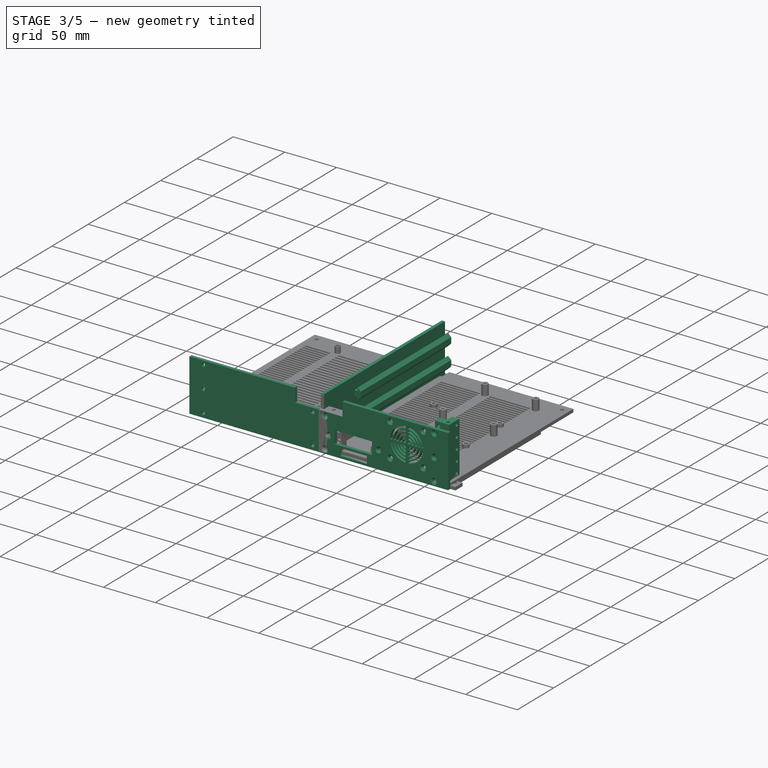
[diagram: stage 3 of 5 — iso view after this stage's code; geometry added in this stage tinted green]
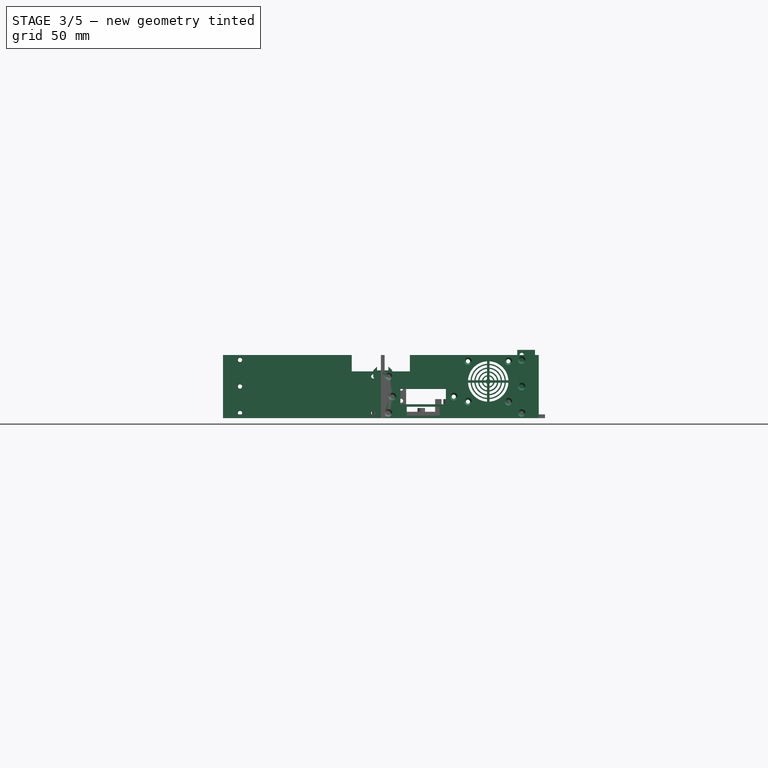
[diagram: stage 3 of 5 — front view after this stage's code; geometry added in this stage tinted green]
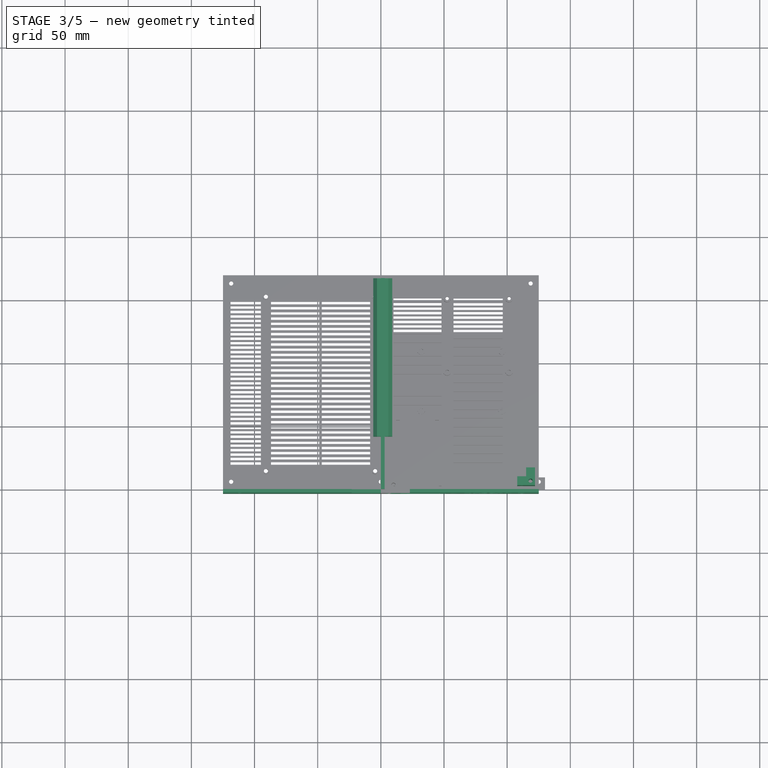
[diagram: stage 3 of 5 — top view after this stage's code; geometry added in this stage tinted green]
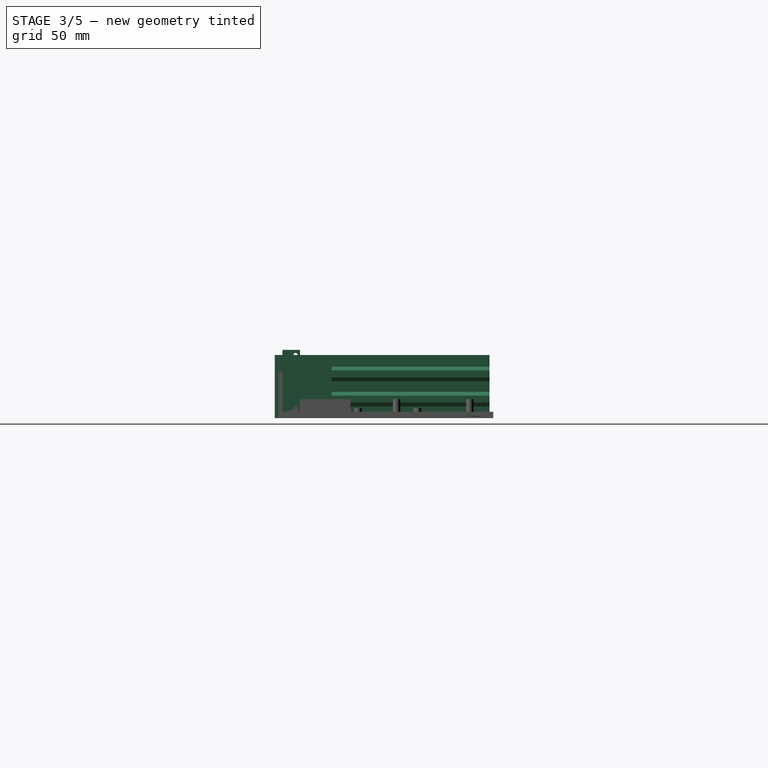
[diagram: stage 3 of 5 — right view after this stage's code; geometry added in this stage tinted green]
FEATURE [PartDesign::Body] Body006  label="Front_left_compartment_lid"
  Group = -> [Sketch042,Pad010,Sketch044,Pocket012,LinearPattern003,Sketch052,Pocket018,Sketch108,Pocket038,Sketch109,Pad038,Sketch137,Hole]
  Origin = -> Origin006
  Placement = pos=(-20,0,54) rot=(0,0,1;0rad)
  Tip = -> Hole
FEATURE [Sketcher::SketchObject] Sketch138
  ExternalGeometry = -> [Hole007]
  MapMode = 5
  Placement = pos=(0,0,3) rot=(0,0,1;0rad)
  Support = -> [Hole007]
  sketch-geometry (13):
    g0: LineSegment StartX=-87 StartY=20 StartZ=0 EndX=-48.75 EndY=20 EndZ=0
    g1: LineSegment StartX=-48.75 StartY=20 StartZ=0 EndX=-48.75 EndY=22 EndZ=0
    g2: LineSegment StartX=-48.75 StartY=22 StartZ=0 EndX=-87 EndY=22 EndZ=0
    g3: LineSegment StartX=-87 StartY=22 StartZ=0 EndX=-87 EndY=20 EndZ=0
    g4: LineSegment StartX=-46.75 StartY=20 StartZ=0 EndX=-8.5 EndY=20 EndZ=0
    g5: LineSegment StartX=-8.5 StartY=20 StartZ=0 EndX=-8.5 EndY=22 EndZ=0
    g6: LineSegment StartX=-8.5 StartY=22 StartZ=0 EndX=-46.75 EndY=22 EndZ=0
    g7: LineSegment StartX=-46.75 StartY=22 StartZ=0 EndX=-46.75 EndY=20 EndZ=0
    g8: LineSegment [constr] StartX=-48.75 StartY=22 StartZ=0 EndX=-46.75 EndY=22 EndZ=0
    g9: LineSegment [constr] StartX=-91 StartY=15 StartZ=0 EndX=-91 EndY=20 EndZ=0
    g10: LineSegment [constr] StartX=-91 StartY=20 StartZ=0 EndX=-87 EndY=20 EndZ=0
    g11: LineSegment [constr] StartX=-8.5 StartY=20 StartZ=0 EndX=-4.5 EndY=20 EndZ=0
    g12: LineSegment [constr] StartX=-4.5 StartY=20 StartZ=0 EndX=-4.5 EndY=15 EndZ=0
  constraints (36):
    c: Coincident(g0,g1)
    c: Coincident(g1,g2)
    c: Coincident(g2,g3)
    c: Coincident(g3,g0)
    c: Horizontal(g0)
    c: Horizontal(g2)
    c: Vertical(g1)
    c: Vertical(g3)
    c: Coincident(g4,g5)
    c: Coincident(g5,g6)
    c: Coincident(g6,g7)
    c: Coincident(g7,g4)
    c: Horizontal(g4)
    c: Horizontal(g6)
    c: Vertical(g5)
    c: Vertical(g7)
    c: Equal(g1,g7)
    c: Equal(g2,g6)
    c: Horizontal(g8)
    c: Coincident(g8,g1)
    c: Coincident(g8,g6)
    c: Distance(g8) = 2
    c: Distance(g5) = 2
    c: Coincident(g9,g10)
    c: Coincident(g11,g12)
    c: Horizontal(g11)
    c: Horizontal(g10)
    c: Vertical(g9)
    c: Vertical(g12)
    c: Coincident(g9,g-3)
    c: Coincident(g12,g-4)
    c: Coincident(g10,g0)
    c: Coincident(g11,g4)
    c: Equal(g10,g11)
    c: Distance(g10) = 4
    c: Distance(g9) = 5
FEATURE [PartDesign::Pocket] Pocket046
  BaseFeature = -> Hole007
  Length = 5
  Length2 = 100
  Profile = -> Sketch138
  Type = 1
FEATURE [PartDesign::LinearPattern] LinearPattern005
  BaseFeature = -> Pocket046
  Direction = -> Y_Axis004
  Length = 127
  Occurrences = 32
  Originals = -> [Pocket046]
FEATURE [Sketcher::SketchObject] Sketch139
  ExternalGeometry = -> [LinearPattern005]
  MapMode = 5
  Placement = pos=(0,0,3) rot=(0,0,1;0rad)
  Support = -> [LinearPattern005]
  sketch-geometry (6):
    g0: LineSegment [constr] StartX=-125 StartY=20 StartZ=0 EndX=-119 EndY=20 EndZ=0
    g1: LineSegment StartX=-95 StartY=22 StartZ=0 EndX=-95 EndY=20 EndZ=0
    g2: LineSegment StartX=-95 StartY=20 StartZ=0 EndX=-119 EndY=20 EndZ=0
    g3: LineSegment StartX=-119 StartY=20 StartZ=0 EndX=-119 EndY=22 EndZ=0
    g4: LineSegment StartX=-119 StartY=22 StartZ=0 EndX=-95 EndY=22 EndZ=0
    g5: LineSegment [constr] StartX=-87 StartY=20 StartZ=0 EndX=-95 EndY=20 EndZ=0
  constraints (17):
    c: Horizontal(g0)
    c: Distance(g0) = 6
    c: Coincident(g1,g2)
    c: Coincident(g2,g3)
    c: Horizontal(g2)
    c: Vertical(g1)
    c: Vertical(g3)
    c: Distance(g1) = 2
    c: Coincident(g1,g4)
    c: Coincident(g3,g4)
    c: Horizontal(g4)
    c: Coincident(g0,g2)
    c: PointOnObject(g0,g-3)
    c: Coincident(g5,g-6)
    c: Coincident(g5,g1)
    c: Horizontal(g5)
    c: Distance(g5) = 8
FEATURE [PartDesign::Pocket] Pocket047
  BaseFeature = -> LinearPattern005
  Length = 5
  Length2 = 100
  Profile = -> Sketch139
  Type = 1
FEATURE [PartDesign::Body] Body029  label="Front_right_compartment_back_wall"
  Group = -> [Sketch192,Pad065,Sketch193,Hole042,Sketch194,Pocket060,Sketch195,Hole043]
  Origin = -> Origin029
  Placement = pos=(0,170,4) rot=(0,0,1;0rad)
  Tip = -> Hole043
FEATURE [Sketcher::SketchObject] Sketch196
  MapMode = 5
  Placement = pos=(0,0,0) rot=(0.57735,0.57735,0.57735;2.0944rad)
  Support = -> [YZ_Plane030]
  sketch-geometry (4):
    g0: LineSegment StartX=0 StartY=0 StartZ=0 EndX=167 EndY=0 EndZ=0
    g1: LineSegment StartX=167 StartY=0 StartZ=0 EndX=167 EndY=50 EndZ=0
    g2: LineSegment StartX=167 StartY=50 StartZ=0 EndX=0 EndY=50 EndZ=0
    g3: LineSegment StartX=0 StartY=50 StartZ=0 EndX=0 EndY=0 EndZ=0
  constraints (11):
    c: Coincident(g0,g1)
    c: Coincident(g1,g2)
    c: Coincident(g2,g3)
    c: Coincident(g3,g0)
    c: Horizontal(g0)
    c: Horizontal(g2)
    c: Vertical(g1)
    c: Vertical(g3)
    c: Distance(g1) = 50
    c: Distance(g2) = 167
    c: Coincident(g0,g-1)
FEATURE [PartDesign::Pad] Pad066
  Length = 3
  Length2 = 100
  Placement = pos=(0,0,0) rot=(0.57735,0.57735,0.57735;2.0944rad)
  Profile = -> Sketch196
  Type = 0
FEATURE [Sketcher::SketchObject] Sketch197
  ExternalGeometry = -> [Pad066]
  MapMode = 5
  Placement = pos=(7.35e-14,167,-3.67e-14) rot=(0.57735,0.57735,0.57735;4.18879rad)
  Support = -> [Pad066]
  sketch-geometry (29):
    g0: LineSegment StartX=17.75 StartY=3 StartZ=0 EndX=12.25 EndY=3 EndZ=0
    g1: LineSegment StartX=12.25 StartY=3 StartZ=0 EndX=12.25 EndY=6 EndZ=0
    g2: LineSegment StartX=12.25 StartY=6 StartZ=0 EndX=9.25 EndY=6 EndZ=0
    g3: LineSegment StartX=9.25 StartY=6 StartZ=0 EndX=12.25 EndY=9 EndZ=0
    g4: LineSegment StartX=12.25 StartY=9 StartZ=0 EndX=17.75 EndY=9 EndZ=0
    g5: LineSegment StartX=17.75 StartY=9 StartZ=0 EndX=20.75 EndY=6 EndZ=0
    g6: LineSegment StartX=20.75 StartY=6 StartZ=0 EndX=17.75 EndY=6 EndZ=0
    g7: LineSegment StartX=17.75 StartY=6 StartZ=0 EndX=17.75 EndY=3 EndZ=0
    g8: LineSegment [constr] StartX=12.25 StartY=9 StartZ=0 EndX=12.25 EndY=6 EndZ=0
    g9: LineSegment [constr] StartX=12.25 StartY=6 StartZ=0 EndX=17.75 EndY=6 EndZ=0
    g10: LineSegment StartX=37.75 StartY=3 StartZ=0 EndX=32.25 EndY=3 EndZ=0
    g11: LineSegment StartX=32.25 StartY=3 StartZ=0 EndX=32.25 EndY=6 EndZ=0
    g12: LineSegment StartX=32.25 StartY=6 StartZ=0 EndX=29.25 EndY=6 EndZ=0
    g13: LineSegment StartX=29.25 StartY=6 StartZ=0 EndX=32.25 EndY=9 EndZ=0
    g14: LineSegment StartX=32.25 StartY=9 StartZ=0 EndX=37.75 EndY=9 EndZ=0
    g15: LineSegment StartX=37.75 StartY=9 StartZ=0 EndX=40.75 EndY=6 EndZ=0
    g16: LineSegment StartX=40.75 StartY=6 StartZ=0 EndX=37.75 EndY=6 EndZ=0
    g17: LineSegment StartX=37.75 StartY=6 StartZ=0 EndX=37.75 EndY=3 EndZ=0
    g18: LineSegment [constr] StartX=32.25 StartY=9 StartZ=0 EndX=32.25 EndY=6 EndZ=0
    g19: LineSegment [constr] StartX=32.25 StartY=6 StartZ=0 EndX=37.75 EndY=6 EndZ=0
    g20: LineSegment [constr] StartX=-3.71e-14 StartY=3 StartZ=0 EndX=5 EndY=3 EndZ=0
    g21: LineSegment [constr] StartX=5 StartY=3 StartZ=0 EndX=15 EndY=3 EndZ=0
    g22: LineSegment [constr] StartX=15 StartY=3 StartZ=0 EndX=35 EndY=3 EndZ=0
    g23: LineSegment [constr] StartX=35 StartY=3 StartZ=0 EndX=45 EndY=3 EndZ=0
    g24: LineSegment [constr] StartX=45 StartY=3 StartZ=0 EndX=50 EndY=3 EndZ=0
    g25: LineSegment [constr] StartX=12.25 StartY=3 StartZ=0 EndX=15 EndY=3 EndZ=0
    g26: LineSegment [constr] StartX=15 StartY=3 StartZ=0 EndX=17.75 EndY=3 EndZ=0
    g27: LineSegment [constr] StartX=32.25 StartY=3 StartZ=0 EndX=35 EndY=3 EndZ=0
    g28: LineSegment [constr] StartX=35 StartY=3 StartZ=0 EndX=37.75 EndY=3 EndZ=0
  constraints (78):
    c: Coincident(g0,g1)
    c: Coincident(g1,g2)
    c: Coincident(g2,g3)
    c: Coincident(g3,g4)
    c: Coincident(g4,g5)
    c: Coincident(g5,g6)
    c: Coincident(g6,g7)
    c: Coincident(g7,g0)
    c: Vertical(g7)
    c: Vertical(g1)
    c: Horizontal(g4)
    c: Horizontal(g2)
    c: Horizontal(g6)
    c: Horizontal(g0)
    c: Coincident(g8,g9)
    c: Coincident(g3,g8)
    c: Coincident(g8,g1)
    c: Coincident(g9,g6)
    c: Vertical(g8)
    c: Angle(g2,g3) = 0.785398
    c: Angle(g5,g6) = 0.785398
    c: Equal(g6,g2)
    c: Equal(g1,g7)
    c: Distance(g1) = 3
    c: Distance(g8) = 3
    c: Distance(g4) = 5.5
    c: Coincident(g10,g11)
    c: Coincident(g11,g12)
    c: Coincident(g12,g13)
    c: Coincident(g13,g14)
    c: Coincident(g14,g15)
    c: Coincident(g15,g16)
    c: Coincident(g16,g17)
    c: Coincident(g17,g10)
    c: Vertical(g17)
    c: Vertical(g11)
    c: Horizontal(g14)
    c: Horizontal(g12)
    c: Horizontal(g16)
    c: Horizontal(g10)
    c: Coincident(g18,g19)
    c: Coincident(g13,g18)
    c: Coincident(g18,g11)
    c: Coincident(g19,g16)
    c: Vertical(g18)
    c: Angle(g12,g13) = 0.785398
    c: Angle(g15,g16) = 0.785398
    c: Equal(g16,g12)
    c: Equal(g11,g17)
    c: Equal(g1,g11) = 3
    c: Equal(g8,g18) = 3
    c: Equal(g4,g14) = 5.5
    c: Coincident(g20,g21)
    c: Coincident(g21,g22)
    c: Coincident(g22,g23)
    c: Coincident(g23,g24)
    c: Coincident(g25,g26)
    c: Coincident(g27,g28)
    c: Coincident(g28,g10)
    c: Coincident(g10,g27)
    c: Coincident(g26,g0)
    c: Coincident(g0,g25)
    c: Coincident(g21,g25)
    c: Coincident(g22,g27)
    c: Equal(g25,g26)
    c: Equal(g27,g28)
    c: Horizontal(g22)
    c: Distance(g22) = 20
    c: Horizontal(g23)
    c: Horizontal(g21)
    c: Distance(g21) = 10
    c: Distance(g23) = 10
    c: Coincident(g20,g-3)
    c: Coincident(g24,g-3)
    c: Equal(g20,g24)
    c: Horizontal(g20)
    c: Horizontal(g25)
    c: Horizontal(g27)
FEATURE [PartDesign::Pad] Pad067
  BaseFeature = -> Pad066
  Length = 125
  Length2 = 100
  Placement = pos=(0,0,0) rot=(0.57735,0.57735,0.57735;2.0944rad)
  Profile = -> Sketch197
  Reversed = true
  Type = 0
FEATURE [Sketcher::SketchObject] Sketch198
  MapMode = 5
  Placement = pos=(0,0,0) rot=(1,0,0;1.5708rad)
  Support = -> [XZ_Plane031]
  sketch-geometry (4):
    g0: LineSegment StartX=0 StartY=0 StartZ=0 EndX=125 EndY=0 EndZ=0
    g1: LineSegment StartX=125 StartY=0 StartZ=0 EndX=125 EndY=50 EndZ=0
    g2: LineSegment StartX=125 StartY=50 StartZ=0 EndX=0 EndY=50 EndZ=0
    g3: LineSegment StartX=0 StartY=50 StartZ=0 EndX=0 EndY=0 EndZ=0
  constraints (11):
    c: Coincident(g0,g1)
    c: Coincident(g1,g2)
    c: Coincident(g2,g3)
    c: Coincident(g3,g0)
    c: Horizontal(g0)
    c: Horizontal(g2)
    c: Vertical(g1)
    c: Vertical(g3)
    c: Distance(g1) = 50
    c: Distance(g2) = 125
    c: Coincident(g-1,g0)
FEATURE [PartDesign::Pad] Pad068
  Length = 3
  Length2 = 100
  Placement = pos=(0,0,0) rot=(1,0,0;1.5708rad)
  Profile = -> Sketch198
  Type = 0
FEATURE [Sketcher::SketchObject] Sketch199
  MapMode = 5
  Placement = pos=(0,-3,7e-16) rot=(1,0,0;1.5708rad)
  Support = -> [Pad068]
  sketch-geometry (12):
    g0: LineSegment StartX=15.5 StartY=11 StartZ=0 EndX=51.5 EndY=11 EndZ=0
    g1: LineSegment StartX=51.5 StartY=11 StartZ=0 EndX=51.5 EndY=23 EndZ=0
    g2: LineSegment StartX=51.5 StartY=23 StartZ=0 EndX=15.5 EndY=23 EndZ=0
    g3: LineSegment StartX=15.5 StartY=23 StartZ=0 EndX=15.5 EndY=11 EndZ=0
    g4: LineSegment StartX=20.5 StartY=2 StartZ=0 EndX=46.5 EndY=2 EndZ=0
    g5: LineSegment StartX=46.5 StartY=2 StartZ=0 EndX=46.5 EndY=9 EndZ=0
    g6: LineSegment StartX=46.5 StartY=9 StartZ=0 EndX=20.5 EndY=9 EndZ=0
    g7: LineSegment StartX=20.5 StartY=9 StartZ=0 EndX=20.5 EndY=2 EndZ=0
    g8: LineSegment [constr] StartX=15.5 StartY=11 StartZ=0 EndX=15.5 EndY=9 EndZ=0
    g9: LineSegment [constr] StartX=15.5 StartY=9 StartZ=0 EndX=20.5 EndY=9 EndZ=0
    g10: LineSegment [constr] StartX=51.5 StartY=11 StartZ=0 EndX=51.5 EndY=9 EndZ=0
    g11: LineSegment [constr] StartX=51.5 StartY=9 StartZ=0 EndX=46.5 EndY=9 EndZ=0
  constraints (34):
    c: Coincident(g0,g1)
    c: Coincident(g1,g2)
    c: Coincident(g2,g3)
    c: Coincident(g3,g0)
    c: Horizontal(g0)
    c: Horizontal(g2)
    c: Vertical(g1)
    c: Vertical(g3)
    c: Coincident(g4,g5)
    c: Coincident(g5,g6)
    c: Coincident(g6,g7)
    c: Coincident(g7,g4)
    c: Horizontal(g4)
    c: Horizontal(g6)
    c: Vertical(g5)
    c: Vertical(g7)
    c: Distance(g6) = 26
    c: Distance(g7) = 7
    c: Distance(g2) = 36
    c: Distance(g3) = 12
    c: Coincident(g8,g9)
    c: Coincident(g10,g11)
    c: Horizontal(g11)
    c: Horizontal(g9)
    c: Vertical(g8)
    c: Vertical(g10)
    c: Coincident(g0,g8)
    c: Coincident(g6,g9)
    c: Coincident(g11,g5)
    c: Coincident(g10,g0)
    c: Equal(g9,g11)
    c: Distance(g10) = 2
    c: DistanceY(g-1,g4) = 2
    c: DistanceX(g-1,g8) = 15.5
FEATURE [PartDesign::Pocket] Pocket061
  BaseFeature = -> Pad068
  Length = 5
  Length2 = 100
  Placement = pos=(0,0,0) rot=(1,0,0;1.5708rad)
  Profile = -> Sketch199
  Type = 1
FEATURE [Sketcher::SketchObject] Sketch200
  ExternalGeometry = -> [Pocket061]
  MapMode = 5
  Placement = pos=(0,-3,7e-16) rot=(1,0,0;1.5708rad)
  Support = -> [Pocket061]
  sketch-geometry (25):
    g0: LineSegment [constr] StartX=65 StartY=9 StartZ=0 EndX=105 EndY=9 EndZ=0
    g1: LineSegment [constr] StartX=105 StartY=9 StartZ=0 EndX=105 EndY=49 EndZ=0
    g2: LineSegment [constr] StartX=105 StartY=49 StartZ=0 EndX=65 EndY=49 EndZ=0
    g3: LineSegment [constr] StartX=65 StartY=49 StartZ=0 EndX=65 EndY=9 EndZ=0
    g4: LineSegment [constr] StartX=69 StartY=13 StartZ=0 EndX=101 EndY=13 EndZ=0
    g5: LineSegment [constr] StartX=101 StartY=13 StartZ=0 EndX=101 EndY=45 EndZ=0
    g6: LineSegment [constr] StartX=101 StartY=45 StartZ=0 EndX=69 EndY=45 EndZ=0
    g7: LineSegment [constr] StartX=69 StartY=45 StartZ=0 EndX=69 EndY=13 EndZ=0
    g8: Circle CenterX=69 CenterY=45 CenterZ=0 NormalX=0 NormalY=0 NormalZ=1 AngleXU=0 Radius=1.5
    g9: Circle CenterX=101 CenterY=45 CenterZ=0 NormalX=0 NormalY=0 NormalZ=1 AngleXU=0 Radius=1.5
    g10: Circle CenterX=69 CenterY=13 CenterZ=0 NormalX=0 NormalY=0 NormalZ=1 AngleXU=0 Radius=1.5
    g11: Circle CenterX=101 CenterY=13 CenterZ=0 NormalX=0 NormalY=0 NormalZ=1 AngleXU=0 Radius=1.5
    g12: Circle CenterX=111.5 CenterY=46 CenterZ=0 NormalX=0 NormalY=0 NormalZ=1 AngleXU=0 Radius=1.5
    g13: Circle CenterX=111.5 CenterY=25 CenterZ=0 NormalX=0 NormalY=0 NormalZ=1 AngleXU=0 Radius=1.5
    g14: Circle CenterX=111.5 CenterY=4 CenterZ=0 NormalX=0 NormalY=0 NormalZ=1 AngleXU=0 Radius=1.5
    g15: Circle CenterX=9.25 CenterY=17 CenterZ=0 NormalX=0 NormalY=0 NormalZ=1 AngleXU=0 Radius=1.5
    g16: Circle CenterX=57.75 CenterY=17 CenterZ=0 NormalX=0 NormalY=0 NormalZ=1 AngleXU=0 Radius=1.5
    g17: LineSegment [constr] StartX=111.5 StartY=50 StartZ=0 EndX=111.5 EndY=46 EndZ=0
    g18: LineSegment [constr] StartX=111.5 StartY=46 StartZ=0 EndX=111.5 EndY=25 EndZ=0
    g19: LineSegment [constr] StartX=111.5 StartY=25 StartZ=0 EndX=111.5 EndY=4 EndZ=0
    g20: LineSegment [constr] StartX=111.5 StartY=4 StartZ=0 EndX=111.5 EndY=0 EndZ=0
    g21: Circle CenterX=6 CenterY=33 CenterZ=0 NormalX=0 NormalY=0 NormalZ=1 AngleXU=0 Radius=1.5
    g22: Circle CenterX=6 CenterY=4 CenterZ=0 NormalX=0 NormalY=0 NormalZ=1 AngleXU=0 Radius=1.5
    g23: LineSegment [constr] StartX=6 StartY=0 StartZ=0 EndX=6 EndY=37 EndZ=0
    g24: LineSegment [constr] StartX=6 StartY=37 StartZ=0 EndX=6 EndY=33 EndZ=0
  constraints (69):
    c: Coincident(g0,g1)
    c: Coincident(g1,g2)
    c: Coincident(g2,g3)
    c: Coincident(g3,g0)
    c: Horizontal(g0)
    c: Horizontal(g2)
    c: Vertical(g1)
    c: Vertical(g3)
    c: Equal(g2,g1)
    c: Distance(g3) = 40
    c: DistanceX(g1,g-4) = 20
    c: Coincident(g4,g5)
    c: Coincident(g5,g6)
    c: Coincident(g6,g7)
    c: Coincident(g7,g4)
    c: Horizontal(g4)
    c: Horizontal(g6)
    c: Vertical(g5)
    c: Vertical(g7)
    c: Equal(g5,g6)
    c: Distance(g7) = 32
    c: DistanceX(g2,g6) = 4
    c: DistanceY(g6,g2) = 4
    c: Equal(g15,g16)
    c: Equal(g16,g8)
    c: Equal(g8,g10)
    c: Equal(g10,g9)
    c: Equal(g9,g11)
    c: Equal(g11,g12)
    c: Equal(g12,g13)
    c: Equal(g13,g14)
    c: Diameter(g12) = 3
    c: Coincident(g6,g8)
    c: Coincident(g5,g9)
    c: Coincident(g11,g4)
    c: Coincident(g10,g4)
    c: Coincident(g17,g18)
    c: Coincident(g18,g19)
    c: Coincident(g19,g20)
    c: PointOnObject(g17,g-3)
    c: Coincident(g12,g17)
    c: Coincident(g13,g18)
    c: Coincident(g14,g19)
    c: Equal(g20,g17)
    c: Equal(g18,g19)
    c: PointOnObject(g20,g-1)
    c: Vertical(g20)
    c: Vertical(g19)
    c: Vertical(g17)
    c: Vertical(g18)
    c: Distance(g17) = 4
    c: DistanceX(g15,g-5) = 6.25
    c: DistanceY(g15,g-5) = 6
    c: DistanceX(g-6,g16) = 6.25
    c: DistanceY(g16,g-6) = 6
    c: DistanceX(g17,g-4) = 13.5
    c: Equal(g22,g21)
    c: Equal(g21,g15)
    c: DistanceX(g-1,g22) = 6
    c: DistanceX(g-2,g21) = 6
    c: Coincident(g23,g24)
    c: Coincident(g21,g24)
    c: Distance(g24) = 4
    c: Vertical(g24)
    c: Distance(g23) = 37
    c: PointOnObject(g23,g-1)
    c: Vertical(g23)
    c: DistanceY(g-1,g22) = 4
    c: DistanceY(g1,g17) = 1
FEATURE [PartDesign::Hole] Hole044
  BaseFeature = -> Pocket061
  Depth = 25
  DepthType = 1
  Diameter = 3.3
  DrillPoint = 1
  DrillPointAngle = 118
  HoleCutCountersinkAngle = 90
  HoleCutDepth = 0
  HoleCutDiameter = 6
  HoleCutType = 2
  ModelActualThread = false
  Placement = pos=(0,0,0) rot=(1,0,0;1.5708rad)
  Profile = -> Sketch200
  Tapered = false
  TaperedAngle = 90
  ThreadAngle = 0
  ThreadClass = 0
  ThreadCutOffInner = 0
  ThreadCutOffOuter = 0
  ThreadDirection = 0
  ThreadFit = 0
  ThreadPitch = 0
  ThreadSize = 3
  ThreadType = 1
  Threaded = false
FEATURE [Sketcher::SketchObject] Sketch201
  ExternalGeometry = -> [Hole044]
  MapMode = 5
  Placement = pos=(0,-3,7e-16) rot=(1,0,0;1.5708rad)
  Support = -> [Hole044]
  sketch-geometry (8):
    g0: LineSegment [constr] StartX=0 StartY=0 StartZ=0 EndX=0 EndY=5 EndZ=0
    g1: LineSegment [constr] StartX=0 StartY=5 StartZ=0 EndX=0 EndY=45 EndZ=0
    g2: LineSegment [constr] StartX=0 StartY=45 StartZ=0 EndX=0 EndY=50 EndZ=0
    g3: LineSegment [constr] StartX=0 StartY=5 StartZ=0 EndX=0 EndY=37 EndZ=0
    g4: LineSegment StartX=0 StartY=37 StartZ=0 EndX=23 EndY=37 EndZ=0
    g5: LineSegment StartX=23 StartY=37 StartZ=0 EndX=23 EndY=50 EndZ=0
    g6: LineSegment StartX=23 StartY=50 StartZ=0 EndX=0 EndY=50 EndZ=0
    g7: LineSegment StartX=0 StartY=50 StartZ=0 EndX=0 EndY=37 EndZ=0
  constraints (21):
    c: Coincident(g0,g1)
    c: Coincident(g1,g2)
    c: Vertical(g2)
    c: Vertical(g1)
    c: Coincident(g2,g-3)
    c: Coincident(g-1,g0)
    c: Distance(g1) = 40
    c: Equal(g2,g0)
    c: Distance(g3) = 32
    c: Coincident(g3,g0)
    c: Vertical(g3)
    c: Coincident(g4,g5)
    c: Coincident(g5,g6)
    c: Coincident(g6,g7)
    c: Coincident(g7,g4)
    c: Horizontal(g4)
    c: Horizontal(g6)
    c: Vertical(g5)
    c: Coincident(g6,g2)
    c: Coincident(g3,g4)
    c: Distance(g6) = 23
FEATURE [PartDesign::Pocket] Pocket062
  BaseFeature = -> Hole044
  Length = 5
  Length2 = 100
  Placement = pos=(0,0,0) rot=(1,0,0;1.5708rad)
  Profile = -> Sketch201
  Type = 1
FEATURE [PartDesign::Body] Body030  label="Front_right_compartment_right_wall"
  Group = -> [Sketch196,Pad066,Sketch197,Pad067,Sketch206,Hole047]
  Origin = -> Origin030
  Placement = pos=(122,3,4) rot=(0,0,1;0rad)
  Tip = -> Hole047
FEATURE [Sketcher::SketchObject] Sketch207
  MapMode = 5
  Placement = pos=(0,0,0) rot=(1,0,0;1.5708rad)
  Support = -> [XZ_Plane037]
  sketch-geometry (4):
    g0: LineSegment StartX=-2e-16 StartY=0 StartZ=0 EndX=-122 EndY=0 EndZ=0
    g1: LineSegment StartX=-122 StartY=0 StartZ=0 EndX=-122 EndY=50 EndZ=0
    g2: LineSegment StartX=-122 StartY=50 StartZ=0 EndX=0 EndY=50 EndZ=0
    g3: LineSegment StartX=-2e-16 StartY=50 StartZ=0 EndX=-2e-16 EndY=0 EndZ=0
  constraints (11):
    c: Coincident(g0,g1)
    c: Coincident(g1,g2)
    c: Coincident(g2,g3)
    c: Coincident(g3,g0)
    c: Horizontal(g0)
    c: Horizontal(g2)
    c: Vertical(g1)
    c: Vertical(g3)
    c: Distance(g3) = 50
    c: Distance(g2) = 122
    c: Coincident(g0,g-1)
FEATURE [PartDesign::Pad] Pad070
  Length = 3
  Length2 = 100
  Placement = pos=(0,0,0) rot=(1,0,0;1.5708rad)
  Profile = -> Sketch207
  Type = 0
FEATURE [Sketcher::SketchObject] Sketch208
  ExternalGeometry = -> [Pad070]
  MapMode = 5
  Placement = pos=(0,0,0) rot=(-1,0,0;1.5708rad)
  Support = -> [Pad070]
  sketch-geometry (8):
    g0: LineSegment [constr] StartX=0 StartY=0 StartZ=0 EndX=0 EndY=-5 EndZ=0
    g1: LineSegment [constr] StartX=0 StartY=-5 StartZ=0 EndX=0 EndY=-45 EndZ=0
    g2: LineSegment [constr] StartX=0 StartY=-45 StartZ=0 EndX=0 EndY=-50 EndZ=0
    g3: LineSegment [constr] StartX=0 StartY=-5 StartZ=0 EndX=0 EndY=-37 EndZ=0
    g4: LineSegment StartX=0 StartY=-37 StartZ=0 EndX=-23 EndY=-37 EndZ=0
    g5: LineSegment StartX=-23 StartY=-37 StartZ=0 EndX=-23 EndY=-50 EndZ=0
    g6: LineSegment StartX=-23 StartY=-50 StartZ=0 EndX=0 EndY=-50 EndZ=0
    g7: LineSegment StartX=0 StartY=-50 StartZ=0 EndX=0 EndY=-37 EndZ=0
  constraints (21):
    c: Coincident(g0,g1)
    c: Coincident(g1,g2)
    c: Equal(g0,g2)
    c: Coincident(g-1,g0)
    c: Coincident(g2,g-3)
    c: Vertical(g1)
    c: Distance(g1) = 40
    c: Vertical(g2)
    c: Coincident(g3,g0)
    c: Distance(g3) = 32
    c: Vertical(g3)
    c: Coincident(g4,g5)
    c: Coincident(g5,g6)
    c: Coincident(g6,g7)
    c: Coincident(g7,g4)
    c: Horizontal(g4)
    c: Horizontal(g6)
    c: Vertical(g5)
    c: Coincident(g2,g6)
    c: Coincident(g4,g3)
    c: Distance(g6) = 23
FEATURE [PartDesign::Pocket] Pocket064
  BaseFeature = -> Pad070
  Length = 5
  Length2 = 100
  Placement = pos=(0,0,0) rot=(1,0,0;1.5708rad)
  Profile = -> Sketch208
  Type = 1
FEATURE [Sketcher::SketchObject] Sketch209
  ExternalGeometry = -> [Pocket064]
  MapMode = 5
  Placement = pos=(0,0,0) rot=(-1,0,0;1.5708rad)
  Support = -> [Pocket064]
  sketch-geometry (9):
    g0: Circle CenterX=-6 CenterY=-33 CenterZ=0 NormalX=0 NormalY=0 NormalZ=1 AngleXU=0 Radius=1.5
    g1: Circle CenterX=-6 CenterY=-4 CenterZ=0 NormalX=0 NormalY=0 NormalZ=1 AngleXU=0 Radius=1.5
    g2: Circle CenterX=-111.5 CenterY=-46 CenterZ=0 NormalX=0 NormalY=0 NormalZ=1 AngleXU=0 Radius=1.5
    g3: Circle CenterX=-111.5 CenterY=-25 CenterZ=0 NormalX=0 NormalY=0 NormalZ=1 AngleXU=0 Radius=1.5
    g4: Circle CenterX=-111.5 CenterY=-4 CenterZ=0 NormalX=0 NormalY=0 NormalZ=1 AngleXU=0 Radius=1.5
    g5: LineSegment [constr] StartX=-111.5 StartY=-50 StartZ=0 EndX=-111.5 EndY=-46 EndZ=0
    g6: LineSegment [constr] StartX=-111.5 StartY=-46 StartZ=0 EndX=-111.5 EndY=-25 EndZ=0
    g7: LineSegment [constr] StartX=-111.5 StartY=-25 StartZ=0 EndX=-111.5 EndY=-4 EndZ=0
    g8: LineSegment [constr] StartX=-111.5 StartY=-4 StartZ=0 EndX=-111.5 EndY=0 EndZ=0
  constraints (25):
    c: Equal(g1,g0)
    c: Diameter(g0) = 3
    c: DistanceX(g0,g-3) = 6
    c: DistanceY(g-3,g0) = 4
    c: DistanceX(g1,g-1) = 6
    c: DistanceY(g1,g-1) = 4
    c: Equal(g2,g3)
    c: Equal(g3,g4)
    c: Equal(g4,g1)
    c: Coincident(g5,g6)
    c: Coincident(g6,g7)
    c: Coincident(g7,g8)
    c: Vertical(g8)
    c: Vertical(g7)
    c: Vertical(g6)
    c: Vertical(g5)
    c: Equal(g5,g8)
    c: Equal(g6,g7)
    c: Coincident(g3,g6)
    c: Coincident(g5,g2)
    c: Coincident(g7,g4)
    c: PointOnObject(g5,g-4)
    c: PointOnObject(g8,g-1)
    c: Distance(g8) = 4
    c: Distance(g5,g-4) = 10.5
FEATURE [PartDesign::Hole] Hole048
  BaseFeature = -> Pocket064
  Depth = 25
  DepthType = 0
  Diameter = 3.3
  DrillPoint = 1
  DrillPointAngle = 118
  HoleCutCountersinkAngle = 90
  HoleCutDepth = 0
  HoleCutDiameter = 6
  HoleCutType = 2
  ModelActualThread = false
  Placement = pos=(0,0,0) rot=(1,0,0;1.5708rad)
  Profile = -> Sketch209
  Tapered = false
  TaperedAngle = 90
  ThreadAngle = 0
  ThreadClass = 0
  ThreadCutOffInner = 0
  ThreadCutOffOuter = 0
  ThreadDirection = 0
  ThreadFit = 0
  ThreadPitch = 0
  ThreadSize = 3
  ThreadType = 1
  Threaded = false
FEATURE [PartDesign::Body] Body037  label="Front_left_compartment_back_wall"
  Group = -> [Sketch207,Pad070,Sketch208,Pocket064,Sketch209,Hole048]
  Origin = -> Origin037
  Placement = pos=(0,170,4) rot=(0,0,1;0rad)
  Tip = -> Hole048
FEATURE [Sketcher::SketchObject] Sketch210
  MapMode = 5
  Placement = pos=(0,0,0) rot=(1,0,0;1.5708rad)
  Support = -> [XZ_Plane038]
  sketch-geometry (4):
    g0: LineSegment StartX=0 StartY=0 StartZ=0 EndX=-125 EndY=0 EndZ=0
    g1: LineSegment StartX=-125 StartY=0 StartZ=0 EndX=-125 EndY=50 EndZ=0
    g2: LineSegment StartX=-125 StartY=50 StartZ=0 EndX=0 EndY=50 EndZ=0
    g3: LineSegment StartX=0 StartY=50 StartZ=0 EndX=0 EndY=0 EndZ=0
  constraints (11):
    c: Coincident(g0,g1)
    c: Coincident(g1,g2)
    c: Coincident(g2,g3)
    c: Coincident(g3,g0)
    c: Horizontal(g0)
    c: Horizontal(g2)
    c: Vertical(g1)
    c: Vertical(g3)
    c: Coincident(g0,g-1)
    c: Distance(g3) = 50
    c: Distance(g0) = 125
FEATURE [PartDesign::Pad] Pad071
  Length = 3
  Length2 = 100
  Placement = pos=(0,0,0) rot=(1,0,0;1.5708rad)
  Profile = -> Sketch210
  Type = 0
FEATURE [Sketcher::SketchObject] Sketch211
  ExternalGeometry = -> [Pad071]
  MapMode = 5
  Placement = pos=(0,-3,-7e-16) rot=(1,0,0;1.5708rad)
  Support = -> [Pad071]
  sketch-geometry (8):
    g0: LineSegment [constr] StartX=0 StartY=45 StartZ=0 EndX=0 EndY=5 EndZ=0
    g1: LineSegment [constr] StartX=0 StartY=5 StartZ=0 EndX=0 EndY=37 EndZ=0
    g2: LineSegment [constr] StartX=0 StartY=50 StartZ=0 EndX=0 EndY=45 EndZ=0
    g3: LineSegment [constr] StartX=0 StartY=5 StartZ=0 EndX=0 EndY=0 EndZ=0
    g4: LineSegment StartX=0 StartY=50 StartZ=0 EndX=-23 EndY=50 EndZ=0
    g5: LineSegment StartX=-23 StartY=50 StartZ=0 EndX=-23 EndY=37 EndZ=0
    g6: LineSegment StartX=-23 StartY=37 StartZ=0 EndX=0 EndY=37 EndZ=0
    g7: LineSegment StartX=0 StartY=37 StartZ=0 EndX=0 EndY=50 EndZ=0
  constraints (23):
    c: Coincident(g0,g1)
    c: Distance(g0) = 40
    c: Distance(g1) = 32
    c: Coincident(g3,g-1)
    c: Coincident(g2,g-3)
    c: Coincident(g2,g0)
    c: Coincident(g3,g0)
    c: Vertical(g0)
    c: Equal(g2,g3)
    c: Vertical(g2)
    c: Vertical(g1)
    c: Coincident(g4,g5)
    c: Coincident(g5,g6)
    c: Coincident(g6,g7)
    c: Coincident(g7,g4)
    c: Horizontal(g4)
    c: Horizontal(g6)
    c: Vertical(g5)
    c: Coincident(g4,g2)
    c: Coincident(g1,g6)
    c: Distance(g-3) = 125
    c: Distance(g4) = 23
    c: Distance(g5) = 13
FEATURE [PartDesign::Pocket] Pocket065
  BaseFeature = -> Pad071
  Length = 5
  Length2 = 100
  Placement = pos=(0,0,0) rot=(1,0,0;1.5708rad)
  Profile = -> Sketch211
  Type = 0
FEATURE [Sketcher::SketchObject] Sketch212
  ExternalGeometry = -> [Pocket065]
  MapMode = 5
  Placement = pos=(0,-3,-7e-16) rot=(1,0,0;1.5708rad)
  Support = -> [Pocket065]
  sketch-geometry (34):
    g0: Circle CenterX=-6 CenterY=33 CenterZ=0 NormalX=0 NormalY=0 NormalZ=1 AngleXU=0 Radius=1.5
    g1: Circle CenterX=-6 CenterY=4 CenterZ=0 NormalX=0 NormalY=0 NormalZ=1 AngleXU=0 Radius=1.5
    g2: Circle CenterX=-111.5 CenterY=46 CenterZ=0 NormalX=0 NormalY=0 NormalZ=1 AngleXU=0 Radius=1.5
    g3: Circle CenterX=-111.5 CenterY=25 CenterZ=0 NormalX=0 NormalY=0 NormalZ=1 AngleXU=0 Radius=1.5
    g4: Circle CenterX=-111.5 CenterY=4 CenterZ=0 NormalX=0 NormalY=0 NormalZ=1 AngleXU=0 Radius=1.5
    g5: LineSegment [constr] StartX=-111.5 StartY=50 StartZ=0 EndX=-111.5 EndY=46 EndZ=0
    g6: LineSegment [constr] StartX=-111.5 StartY=46 StartZ=0 EndX=-111.5 EndY=25 EndZ=0
    g7: LineSegment [constr] StartX=-111.5 StartY=25 StartZ=0 EndX=-111.5 EndY=4 EndZ=0
    g8: LineSegment [constr] StartX=-111.5 StartY=4 StartZ=0 EndX=-111.5 EndY=0 EndZ=0
    g9: LineSegment [constr] StartX=-106 StartY=9 StartZ=0 EndX=-66 EndY=9 EndZ=0
    g10: LineSegment [constr] StartX=-66 StartY=9 StartZ=0 EndX=-66 EndY=49 EndZ=0
    g11: LineSegment [constr] StartX=-66 StartY=49 StartZ=0 EndX=-106 EndY=49 EndZ=0
    g12: LineSegment [constr] StartX=-106 StartY=49 StartZ=0 EndX=-106 EndY=9 EndZ=0
    g13: LineSegment [constr] StartX=-65 StartY=9 StartZ=0 EndX=-25 EndY=9 EndZ=0
    g14: LineSegment [constr] StartX=-25 StartY=9 StartZ=0 EndX=-25 EndY=49 EndZ=0
    g15: LineSegment [constr] StartX=-25 StartY=49 StartZ=0 EndX=-65 EndY=49 EndZ=0
    g16: LineSegment [constr] StartX=-65 StartY=49 StartZ=0 EndX=-65 EndY=9 EndZ=0
    g17: LineSegment [constr] StartX=-66 StartY=49 StartZ=0 EndX=-65 EndY=49 EndZ=0
    g18: LineSegment [constr] StartX=-102 StartY=13 StartZ=0 EndX=-70 EndY=13 EndZ=0
    g19: LineSegment [constr] StartX=-70 StartY=13 StartZ=0 EndX=-70 EndY=45 EndZ=0
    g20: LineSegment [constr] StartX=-70 StartY=45 StartZ=0 EndX=-102 EndY=45 EndZ=0
    g21: LineSegment [constr] StartX=-102 StartY=45 StartZ=0 EndX=-102 EndY=13 EndZ=0
    g22: LineSegment [constr] StartX=-61 StartY=13 StartZ=0 EndX=-29 EndY=13 EndZ=0
    g23: LineSegment [constr] StartX=-29 StartY=13 StartZ=0 EndX=-29 EndY=45 EndZ=0
    g24: LineSegment [constr] StartX=-29 StartY=45 StartZ=0 EndX=-61 EndY=45 EndZ=0
    g25: LineSegment [constr] StartX=-61 StartY=45 StartZ=0 EndX=-61 EndY=13 EndZ=0
    g26: Circle CenterX=-102 CenterY=45 CenterZ=0 NormalX=0 NormalY=0 NormalZ=1 AngleXU=0 Radius=1.5
    g27: Circle CenterX=-102 CenterY=13 CenterZ=0 NormalX=0 NormalY=0 NormalZ=1 AngleXU=0 Radius=1.5
    g28: Circle CenterX=-70 CenterY=13 CenterZ=0 NormalX=0 NormalY=0 NormalZ=1 AngleXU=0 Radius=1.5
    g29: Circle CenterX=-70 CenterY=45 CenterZ=0 NormalX=0 NormalY=0 NormalZ=1 AngleXU=0 Radius=1.5
    g30: Circle CenterX=-61 CenterY=45 CenterZ=0 NormalX=0 NormalY=0 NormalZ=1 AngleXU=0 Radius=1.5
    g31: Circle CenterX=-29 CenterY=45 CenterZ=0 NormalX=0 NormalY=0 NormalZ=1 AngleXU=0 Radius=1.5
    g32: Circle CenterX=-29 CenterY=13 CenterZ=0 NormalX=0 NormalY=0 NormalZ=1 AngleXU=0 Radius=1.5
    g33: Circle CenterX=-61 CenterY=13 CenterZ=0 NormalX=0 NormalY=0 NormalZ=1 AngleXU=0 Radius=1.5
  constraints (91):
    c: Equal(g1,g0)
    c: Diameter(g0) = 3
    c: DistanceX(g0,g-3) = 6
    c: DistanceY(g0,g-3) = 4
    c: DistanceY(g-1,g1) = 4
    c: DistanceX(g1,g-1) = 6
    c: Equal(g4,g3)
    c: Equal(g3,g2)
    c: Equal(g2,g0)
    c: Coincident(g5,g6)
    c: Coincident(g6,g7)
    c: Coincident(g7,g8)
    c: Equal(g6,g7)
    c: Equal(g5,g8)
    c: PointOnObject(g5,g-4)
    c: PointOnObject(g8,g-1)
    c: Distance(g5) = 4
    c: Vertical(g5)
    c: Vertical(g6)
    c: Vertical(g7)
    c: Vertical(g8)
    c: Coincident(g2,g5)
    c: Coincident(g3,g6)
    c: Coincident(g4,g7)
    c: DistanceX(g-4,g5) = 13.5
    c: Coincident(g9,g10)
    c: Coincident(g10,g11)
    c: Coincident(g11,g12)
    c: Coincident(g12,g9)
    c: Horizontal(g9)
    c: Horizontal(g11)
    c: Vertical(g10)
    c: Vertical(g12)
    c: Coincident(g13,g14)
    c: Coincident(g14,g15)
    c: Coincident(g15,g16)
    c: Coincident(g16,g13)
    c: Horizontal(g13)
    c: Horizontal(g15)
    c: Vertical(g14)
    c: Vertical(g16)
    c: Equal(g15,g16)
    c: Equal(g16,g11)
    c: Equal(g11,g12)
    c: Distance(g9) = 40
    c: Horizontal(g17)
    c: Coincident(g17,g10)
    c: Coincident(g15,g17)
    c: Distance(g17) = 1
    c: DistanceY(g14,g-4) = 1
    c: DistanceX(g14,g-4) = 2
    c: Coincident(g18,g19)
    c: Coincident(g19,g20)
    c: Coincident(g20,g21)
    c: Coincident(g21,g18)
    c: Horizontal(g18)
    c: Horizontal(g20)
    c: Vertical(g19)
    c: Vertical(g21)
    c: Coincident(g22,g23)
    c: Coincident(g23,g24)
    c: Coincident(g24,g25)
    c: Coincident(g25,g22)
    c: Horizontal(g22)
    c: Horizontal(g24)
    c: Vertical(g23)
    c: Vertical(g25)
    c: Equal(g20,g19)
    c: Equal(g19,g25)
    c: Equal(g25,g24)
    c: Distance(g18) = 32
    c: DistanceX(g19,g10) = 4
    c: DistanceY(g19,g10) = 4
    c: DistanceX(g15,g24) = 4
    c: DistanceY(g24,g15) = 4
    c: Equal(g27,g26)
    c: Equal(g26,g29)
    c: Equal(g29,g28)
    c: Equal(g28,g33)
    c: Equal(g33,g30)
    c: Equal(g30,g31)
    c: Equal(g31,g32)
    c: Equal(g32,g2)
    c: Coincident(g20,g26)
    c: Coincident(g29,g19)
    c: Coincident(g24,g30)
    c: Coincident(g31,g23)
    c: Coincident(g27,g18)
    c: Coincident(g28,g18)
    c: Coincident(g33,g22)
    c: Coincident(g32,g22)
FEATURE [PartDesign::Hole] Hole049
  BaseFeature = -> Pocket065
  Depth = 25
  DepthType = 0
  Diameter = 3.3
  DrillPoint = 1
  DrillPointAngle = 118
  HoleCutCountersinkAngle = 90
  HoleCutDepth = 0
  HoleCutDiameter = 6
  HoleCutType = 2
  ModelActualThread = false
  Placement = pos=(0,0,0) rot=(1,0,0;1.5708rad)
  Profile = -> Sketch212
  Tapered = false
  TaperedAngle = 90
  ThreadAngle = 0
  ThreadClass = 0
  ThreadCutOffInner = 0
  ThreadCutOffOuter = 0
  ThreadDirection = 0
  ThreadFit = 0
  ThreadPitch = 0
  ThreadSize = 3
  ThreadType = 1
  Threaded = false
FEATURE [Sketcher::SketchObject] Sketch213
  MapMode = 5
  Placement = pos=(0,0,0) rot=(0.57735,0.57735,0.57735;2.0944rad)
  Support = -> [YZ_Plane039]
  sketch-geometry (4):
    g0: LineSegment StartX=0 StartY=0 StartZ=0 EndX=167 EndY=0 EndZ=0
    g1: LineSegment StartX=167 StartY=0 StartZ=0 EndX=167 EndY=50 EndZ=0
    g2: LineSegment StartX=167 StartY=50 StartZ=0 EndX=0 EndY=50 EndZ=0
    g3: LineSegment StartX=0 StartY=50 StartZ=0 EndX=0 EndY=0 EndZ=0
  constraints (11):
    c: Coincident(g0,g1)
    c: Coincident(g1,g2)
    c: Coincident(g2,g3)
    c: Coincident(g3,g0)
    c: Horizontal(g0)
    c: Horizontal(g2)
    c: Vertical(g1)
    c: Vertical(g3)
    c: Distance(g3) = 50
    c: Distance(g2) = 167
    c: Coincident(g0,g-1)
FEATURE [PartDesign::Pad] Pad072
  Length = 3
  Length2 = 100
  Placement = pos=(0,0,0) rot=(0.57735,0.57735,0.57735;2.0944rad)
  Profile = -> Sketch213
  Type = 0
FEATURE [Sketcher::SketchObject] Sketch214
  ExternalGeometry = -> [Pad072]
  MapMode = 5
  Placement = pos=(7.35e-14,167,-3.67e-14) rot=(0.57735,0.57735,0.57735;4.18879rad)
  Support = -> [Pad072]
  sketch-geometry (29):
    g0: LineSegment StartX=12.25 StartY=-4.23e-14 StartZ=0 EndX=12.25 EndY=-3 EndZ=0
    g1: LineSegment StartX=12.25 StartY=-3 StartZ=0 EndX=9.25 EndY=-3 EndZ=0
    g2: LineSegment StartX=9.25 StartY=-3 StartZ=0 EndX=12.25 EndY=-6 EndZ=0
    g3: LineSegment StartX=12.25 StartY=-6 StartZ=0 EndX=17.75 EndY=-6 EndZ=0
    g4: LineSegment StartX=17.75 StartY=-6 StartZ=0 EndX=20.75 EndY=-3 EndZ=0
    g5: LineSegment StartX=20.75 StartY=-3 StartZ=0 EndX=17.75 EndY=-3 EndZ=0
    g6: LineSegment StartX=17.75 StartY=-3 StartZ=0 EndX=17.75 EndY=-4.26e-14 EndZ=0
    g7: LineSegment StartX=17.75 StartY=-4.26e-14 StartZ=0 EndX=12.25 EndY=-4.23e-14 EndZ=0
    g8: LineSegment [constr] StartX=17.75 StartY=-6 StartZ=0 EndX=17.75 EndY=-3 EndZ=0
    g9: LineSegment [constr] StartX=17.75 StartY=-3 StartZ=0 EndX=12.25 EndY=-3 EndZ=0
    g10: LineSegment StartX=32.25 StartY=-4.26e-14 StartZ=0 EndX=32.25 EndY=-3 EndZ=0
    g11: LineSegment StartX=32.25 StartY=-3 StartZ=0 EndX=29.25 EndY=-3 EndZ=0
    g12: LineSegment StartX=29.25 StartY=-3 StartZ=0 EndX=32.25 EndY=-6 EndZ=0
    g13: LineSegment StartX=32.25 StartY=-6 StartZ=0 EndX=37.75 EndY=-6 EndZ=0
    g14: LineSegment StartX=37.75 StartY=-6 StartZ=0 EndX=40.75 EndY=-3 EndZ=0
    g15: LineSegment StartX=40.75 StartY=-3 StartZ=0 EndX=37.75 EndY=-3 EndZ=0
    g16: LineSegment StartX=37.75 StartY=-3 StartZ=0 EndX=37.75 EndY=-4.26e-14 EndZ=0
    g17: LineSegment StartX=37.75 StartY=-4.26e-14 StartZ=0 EndX=32.25 EndY=-4.26e-14 EndZ=0
    g18: LineSegment [constr] StartX=37.75 StartY=-6 StartZ=0 EndX=37.75 EndY=-3 EndZ=0
    g19: LineSegment [constr] StartX=37.75 StartY=-3 StartZ=0 EndX=32.25 EndY=-3 EndZ=0
    g20: LineSegment [constr] StartX=50 StartY=-4.26e-14 StartZ=0 EndX=45 EndY=-4.26e-14 EndZ=0
    g21: LineSegment [constr] StartX=45 StartY=-4.26e-14 StartZ=0 EndX=35 EndY=-4.26e-14 EndZ=0
    g22: LineSegment [constr] StartX=35 StartY=-4.26e-14 StartZ=0 EndX=15 EndY=-4.26e-14 EndZ=0
    g23: LineSegment [constr] StartX=15 StartY=-4.26e-14 StartZ=0 EndX=5 EndY=-4.26e-14 EndZ=0
    g24: LineSegment [constr] StartX=5 StartY=-4.26e-14 StartZ=0 EndX=0 EndY=0 EndZ=0
    g25: LineSegment [constr] StartX=37.75 StartY=-4.26e-14 StartZ=0 EndX=35 EndY=-4.26e-14 EndZ=0
    g26: LineSegment [constr] StartX=35 StartY=-4.26e-14 StartZ=0 EndX=32.25 EndY=-4.26e-14 EndZ=0
    g27: LineSegment [constr] StartX=17.75 StartY=-4.26e-14 StartZ=0 EndX=15 EndY=-4.26e-14 EndZ=0
    g28: LineSegment [constr] StartX=15 StartY=-4.26e-14 StartZ=0 EndX=12.25 EndY=-4.23e-14 EndZ=0
  constraints (78):
    c: Coincident(g0,g1)
    c: Coincident(g1,g2)
    c: Coincident(g2,g3)
    c: Coincident(g3,g4)
    c: Coincident(g4,g5)
    c: Coincident(g5,g6)
    c: Coincident(g6,g7)
    c: Coincident(g7,g0)
    c: Coincident(g8,g9)
    c: Coincident(g8,g5)
    c: Coincident(g3,g8)
    c: Coincident(g9,g0)
    c: Horizontal(g5)
    c: Horizontal(g9)
    c: Horizontal(g1)
    c: Horizontal(g3)
    c: Vertical(g8)
    c: Vertical(g6)
    c: Equal(g6,g0)
    c: Distance(g6) = 3
    c: Equal(g7,g9)
    c: Equal(g9,g3)
    c: Distance(g8) = 3
    c: Distance(g3) = 5.5
    c: Equal(g1,g5)
    c: Angle(g5,g4) = 0.785398
    c: Coincident(g10,g11)
    c: Coincident(g11,g12)
    c: Coincident(g12,g13)
    c: Coincident(g13,g14)
    c: Coincident(g14,g15)
    c: Coincident(g15,g16)
    c: Coincident(g16,g17)
    c: Coincident(g17,g10)
    c: Coincident(g18,g19)
    c: Coincident(g18,g15)
    c: Coincident(g13,g18)
    c: Coincident(g19,g10)
    c: Horizontal(g15)
    c: Horizontal(g19)
    c: Horizontal(g11)
    c: Horizontal(g13)
    c: Vertical(g18)
    c: Vertical(g16)
    c: Equal(g16,g10)
    c: Equal(g6,g16) = 3
    c: Equal(g17,g19)
    c: Equal(g19,g13)
    c: Equal(g8,g18) = 3
    c: Equal(g3,g13) = 5.5
    c: Equal(g11,g15)
    c: Angle(g15,g14) = 0.785398
    c: Coincident(g20,g21)
    c: Coincident(g21,g22)
    c: Coincident(g22,g23)
    c: Coincident(g23,g24)
    c: Coincident(g25,g26)
    c: Coincident(g27,g28)
    c: Coincident(g16,g25)
    c: Coincident(g26,g10)
    c: Equal(g25,g26)
    c: Coincident(g6,g27)
    c: Coincident(g28,g0)
    c: Equal(g28,g27)
    c: Coincident(g27,g22)
    c: Coincident(g25,g21)
    c: Equal(g21,g23)
    c: Distance(g21) = 10
    c: Distance(g22) = 20
    c: Coincident(g20,g-3)
    c: Coincident(g24,g-1)
    c: Equal(g24,g20)
    c: Horizontal(g21)
    c: Horizontal(g20)
    c: Horizontal(g22)
    c: Horizontal(g23)
    c: Horizontal(g26)
    c: Horizontal(g27)
FEATURE [PartDesign::Pad] Pad073
  BaseFeature = -> Pad072
  Length = 125
  Length2 = 100
  Placement = pos=(0,0,0) rot=(0.57735,0.57735,0.57735;2.0944rad)
  Profile = -> Sketch214
  Reversed = true
  Type = 0
FEATURE [Sketcher::SketchObject] Sketch215
  ExternalGeometry = -> [Pad073]
  MapMode = 5
  Placement = pos=(1e-16,0,0) rot=(0.57735,0.57735,-0.57735;4.18879rad)
  Support = -> [Pad073]
  sketch-geometry (14):
    g0: LineSegment [constr] StartX=153.5 StartY=-50 StartZ=0 EndX=153.5 EndY=-46 EndZ=0
    g1: LineSegment [constr] StartX=153.5 StartY=-46 StartZ=0 EndX=153.5 EndY=-25 EndZ=0
    g2: LineSegment [constr] StartX=153.5 StartY=-25 StartZ=0 EndX=153.5 EndY=-4 EndZ=0
    g3: LineSegment [constr] StartX=153.5 StartY=-4 StartZ=0 EndX=153.5 EndY=0 EndZ=0
    g4: LineSegment [constr] StartX=10.5 StartY=-50 StartZ=0 EndX=10.5 EndY=-46 EndZ=0
    g5: LineSegment [constr] StartX=10.5 StartY=-46 StartZ=0 EndX=10.5 EndY=-25 EndZ=0
    g6: LineSegment [constr] StartX=10.5 StartY=-25 StartZ=0 EndX=10.5 EndY=-4 EndZ=0
    g7: LineSegment [constr] StartX=10.5 StartY=-4 StartZ=0 EndX=10.5 EndY=0 EndZ=0
    g8: Circle CenterX=10.5 CenterY=-46 CenterZ=0 NormalX=0 NormalY=0 NormalZ=1 AngleXU=0 Radius=1.5
    g9: Circle CenterX=10.5 CenterY=-25 CenterZ=0 NormalX=0 NormalY=0 NormalZ=1 AngleXU=0 Radius=1.5
    g10: Circle CenterX=10.5 CenterY=-4 CenterZ=0 NormalX=0 NormalY=0 NormalZ=1 AngleXU=0 Radius=1.5
    g11: Circle CenterX=153.5 CenterY=-4 CenterZ=0 NormalX=0 NormalY=0 NormalZ=1 AngleXU=0 Radius=1.5
    g12: Circle CenterX=153.5 CenterY=-25 CenterZ=0 NormalX=0 NormalY=0 NormalZ=1 AngleXU=0 Radius=1.5
    g13: Circle CenterX=153.5 CenterY=-46 CenterZ=0 NormalX=0 NormalY=0 NormalZ=1 AngleXU=0 Radius=1.5
  constraints (38):
    c: Coincident(g0,g1)
    c: Coincident(g1,g2)
    c: Coincident(g2,g3)
    c: Coincident(g4,g5)
    c: Coincident(g5,g6)
    c: Coincident(g6,g7)
    c: PointOnObject(g3,g-1)
    c: PointOnObject(g0,g-3)
    c: Equal(g0,g3)
    c: Distance(g0) = 4
    c: Vertical(g0)
    c: Vertical(g1)
    c: Vertical(g2)
    c: Vertical(g3)
    c: DistanceX(g0,g-3) = 13.5
    c: Equal(g2,g1)
    c: PointOnObject(g4,g-3)
    c: PointOnObject(g7,g-1)
    c: Equal(g7,g4)
    c: Distance(g4) = 4
    c: Equal(g5,g6)
    c: Vertical(g4)
    c: Vertical(g5)
    c: Vertical(g6)
    c: Vertical(g7)
    c: DistanceX(g-3,g4) = 10.5
    c: Equal(g13,g12)
    c: Equal(g12,g11)
    c: Equal(g11,g8)
    c: Equal(g8,g9)
    c: Equal(g9,g10)
    c: Diameter(g8) = 3
    c: Coincident(g8,g4)
    c: Coincident(g9,g5)
    c: Coincident(g10,g6)
    c: Coincident(g11,g2)
    c: Coincident(g1,g12)
    c: Coincident(g0,g13)
FEATURE [PartDesign::Hole] Hole050
  BaseFeature = -> Pad073
  Depth = 25
  DepthType = 1
  Diameter = 3.3
  DrillPoint = 1
  DrillPointAngle = 118
  HoleCutCountersinkAngle = 90
  HoleCutDepth = 0
  HoleCutDiameter = 6
  HoleCutType = 2
  ModelActualThread = false
  Placement = pos=(0,0,0) rot=(0.57735,0.57735,0.57735;2.0944rad)
  Profile = -> Sketch215
  Tapered = false
  TaperedAngle = 90
  ThreadAngle = 0
  ThreadClass = 0
  ThreadCutOffInner = 0
  ThreadCutOffOuter = 0
  ThreadDirection = 0
  ThreadFit = 0
  ThreadPitch = 0
  ThreadSize = 3
  ThreadType = 1
  Threaded = false
FEATURE [PartDesign::Body] Body039  label="Front_left_compartment_left_wall"
  Group = -> [Sketch213,Pad072,Sketch214,Pad073,Sketch215,Hole050]
  Origin = -> Origin039
  Placement = pos=(-125,3,4) rot=(0,0,1;0rad)
  Tip = -> Hole050
FEATURE [Sketcher::SketchObject] Sketch216
  ExternalGeometry = -> [Hole049]
  MapMode = 5
  Placement = pos=(0,-3,-7e-16) rot=(1,0,0;1.5708rad)
  Support = -> [Hole049]
  sketch-geometry (92):
    g0: LineSegment [constr] StartX=-102 StartY=45 StartZ=0 EndX=-70 EndY=45 EndZ=0
    g1: LineSegment [constr] StartX=-70 StartY=45 StartZ=0 EndX=-70 EndY=13 EndZ=0
    g2: LineSegment [constr] StartX=-70 StartY=13 StartZ=0 EndX=-102 EndY=13 EndZ=0
    g3: LineSegment [constr] StartX=-102 StartY=13 StartZ=0 EndX=-102 EndY=45 EndZ=0
    g4: LineSegment [constr] StartX=-87 StartY=45 StartZ=0 EndX=-85 EndY=45 EndZ=0
    g5: LineSegment [constr] StartX=-85 StartY=45 StartZ=0 EndX=-85 EndY=13 EndZ=0
    g6: LineSegment [constr] StartX=-85 StartY=13 StartZ=0 EndX=-87 EndY=13 EndZ=0
    g7: LineSegment [constr] StartX=-87 StartY=13 StartZ=0 EndX=-87 EndY=45 EndZ=0
    g8: LineSegment [constr] StartX=-102 StartY=28 StartZ=0 EndX=-70 EndY=28 EndZ=0
    g9: LineSegment [constr] StartX=-70 StartY=28 StartZ=0 EndX=-70 EndY=30 EndZ=0
    g10: LineSegment [constr] StartX=-70 StartY=30 StartZ=0 EndX=-102 EndY=30 EndZ=0
    g11: LineSegment [constr] StartX=-102 StartY=30 StartZ=0 EndX=-102 EndY=28 EndZ=0
    g12: ArcOfCircle CenterX=-86 CenterY=29.0036 CenterZ=0 NormalX=0 NormalY=0 NormalZ=1 AngleXU=0 Radius=16 StartAngle=0.0623137 EndAngle=1.50826
    g13: ArcOfCircle CenterX=-86 CenterY=29.0036 CenterZ=0 NormalX=0 NormalY=0 NormalZ=1 AngleXU=0 Radius=14 StartAngle=1.64229 EndAngle=3.07036
    g14: ArcOfCircle CenterX=-86 CenterY=29.0036 CenterZ=0 NormalX=0 NormalY=0 NormalZ=1 AngleXU=0 Radius=13 StartAngle=1.6478 EndAngle=3.06487
    g15: ArcOfCircle CenterX=-86 CenterY=29.0036 CenterZ=0 NormalX=0 NormalY=0 NormalZ=1 AngleXU=0 Radius=11 StartAngle=1.66183 EndAngle=3.05089
    g16: ArcOfCircle CenterX=-86 CenterY=29.0036 CenterZ=0 NormalX=0 NormalY=0 NormalZ=1 AngleXU=0 Radius=10 StartAngle=1.67096 EndAngle=3.04179
    g17: ArcOfCircle CenterX=-86 CenterY=29.0036 CenterZ=0 NormalX=0 NormalY=0 NormalZ=1 AngleXU=0 Radius=8 StartAngle=1.69612 EndAngle=3.01672
    g18: ArcOfCircle CenterX=-86 CenterY=29.0036 CenterZ=0 NormalX=0 NormalY=0 NormalZ=1 AngleXU=0 Radius=7 StartAngle=1.71414 EndAngle=2.99877
    g19: ArcOfCircle CenterX=-86 CenterY=29.0036 CenterZ=0 NormalX=0 NormalY=0 NormalZ=1 AngleXU=0 Radius=5 StartAngle=1.77215 EndAngle=2.94097
    g20: ArcOfCircle CenterX=-86 CenterY=29.0036 CenterZ=0 NormalX=0 NormalY=0 NormalZ=1 AngleXU=0 Radius=4 StartAngle=1.82348 EndAngle=2.88985
    g21: ArcOfCircle CenterX=-86 CenterY=29.0036 CenterZ=0 NormalX=0 NormalY=0 NormalZ=1 AngleXU=0 Radius=2 StartAngle=2.0944 EndAngle=2.62009
    g22: ArcOfCircle CenterX=-86 CenterY=29.0036 CenterZ=0 NormalX=0 NormalY=0 NormalZ=1 AngleXU=0 Radius=16 StartAngle=1.63334 EndAngle=3.07928
    g23: ArcOfCircle CenterX=-86 CenterY=29.0036 CenterZ=0 NormalX=0 NormalY=0 NormalZ=1 AngleXU=0 Radius=2 StartAngle=0.521507 EndAngle=1.0472
    g24: ArcOfCircle CenterX=-86 CenterY=29.0036 CenterZ=0 NormalX=0 NormalY=0 NormalZ=1 AngleXU=0 Radius=4 StartAngle=0.251744 EndAngle=1.31812
    g25: ArcOfCircle CenterX=-86 CenterY=29.0036 CenterZ=0 NormalX=0 NormalY=0 NormalZ=1 AngleXU=0 Radius=5 StartAngle=0.200618 EndAngle=1.36944
    g26: ArcOfCircle CenterX=-86 CenterY=29.0036 CenterZ=0 NormalX=0 NormalY=0 NormalZ=1 AngleXU=0 Radius=7 StartAngle=0.142824 EndAngle=1.42745
    g27: ArcOfCircle CenterX=-86 CenterY=29.0036 CenterZ=0 NormalX=0 NormalY=0 NormalZ=1 AngleXU=0 Radius=8 StartAngle=0.124871 EndAngle=1.44547
    g28: ArcOfCircle CenterX=-86 CenterY=29.0036 CenterZ=0 NormalX=0 NormalY=0 NormalZ=1 AngleXU=0 Radius=10 StartAngle=0.099803 EndAngle=1.47063
    g29: ArcOfCircle CenterX=-86 CenterY=29.0036 CenterZ=0 NormalX=0 NormalY=0 NormalZ=1 AngleXU=0 Radius=11 StartAngle=0.0907038 EndAngle=1.47976
    g30: ArcOfCircle CenterX=-86 CenterY=29.0036 CenterZ=0 NormalX=0 NormalY=0 NormalZ=1 AngleXU=0 Radius=13 StartAngle=0.0767194 EndAngle=1.4938
    g31: ArcOfCircle CenterX=-86 CenterY=29.0036 CenterZ=0 NormalX=0 NormalY=0 NormalZ=1 AngleXU=0 Radius=14 StartAngle=0.0712298 EndAngle=1.49931
    g32: ArcOfCircle CenterX=-86 CenterY=29.0036 CenterZ=0 NormalX=0 NormalY=0 NormalZ=1 AngleXU=0 Radius=16 StartAngle=3.20436 EndAngle=4.64985
    g33: ArcOfCircle CenterX=-86 CenterY=29.0036 CenterZ=0 NormalX=0 NormalY=0 NormalZ=1 AngleXU=0 Radius=14 StartAngle=3.21334 EndAngle=4.6409
    g34: ArcOfCircle CenterX=-86 CenterY=29.0036 CenterZ=0 NormalX=0 NormalY=0 NormalZ=1 AngleXU=0 Radius=13 StartAngle=3.21887 EndAngle=4.63539
    g35: ArcOfCircle CenterX=-86 CenterY=29.0036 CenterZ=0 NormalX=0 NormalY=0 NormalZ=1 AngleXU=0 Radius=11 StartAngle=3.23296 EndAngle=4.62135
    g36: ArcOfCircle CenterX=-86 CenterY=29.0036 CenterZ=0 NormalX=0 NormalY=0 NormalZ=1 AngleXU=0 Radius=10 StartAngle=3.24212 EndAngle=4.61222
    g37: ArcOfCircle CenterX=-86 CenterY=29.0036 CenterZ=0 NormalX=0 NormalY=0 NormalZ=1 AngleXU=0 Radius=8 StartAngle=3.26738 EndAngle=4.58706
    g38: ArcOfCircle CenterX=-86 CenterY=29.0036 CenterZ=0 NormalX=0 NormalY=0 NormalZ=1 AngleXU=0 Radius=7 StartAngle=3.28546 EndAngle=4.56904
    g39: ArcOfCircle CenterX=-86 CenterY=29.0036 CenterZ=0 NormalX=0 NormalY=0 NormalZ=1 AngleXU=0 Radius=5 StartAngle=3.34369 EndAngle=4.51103
    g40: ArcOfCircle CenterX=-86 CenterY=29.0036 CenterZ=0 NormalX=0 NormalY=0 NormalZ=1 AngleXU=0 Radius=4 StartAngle=3.39521 EndAngle=4.45971
    g41: ArcOfCircle CenterX=-86 CenterY=29.0036 CenterZ=0 NormalX=0 NormalY=0 NormalZ=1 AngleXU=0 Radius=2 StartAngle=3.66729 EndAngle=4.18879
    g42: ArcOfCircle CenterX=-86 CenterY=29.0036 CenterZ=0 NormalX=0 NormalY=0 NormalZ=1 AngleXU=0 Radius=2 StartAngle=5.23599 EndAngle=5.75749
    g43: ArcOfCircle CenterX=-86 CenterY=29.0036 CenterZ=0 NormalX=0 NormalY=0 NormalZ=1 AngleXU=0 Radius=4 StartAngle=4.96507 EndAngle=6.02957
    g44: ArcOfCircle CenterX=-86 CenterY=29.0036 CenterZ=0 NormalX=0 NormalY=0 NormalZ=1 AngleXU=0 Radius=5 StartAngle=4.91375 EndAngle=6.08109
    g45: ArcOfCircle CenterX=-86 CenterY=29.0036 CenterZ=0 NormalX=0 NormalY=0 NormalZ=1 AngleXU=0 Radius=7 StartAngle=4.85574 EndAngle=6.13931
    g46: ArcOfCircle CenterX=-86 CenterY=29.0036 CenterZ=0 NormalX=0 NormalY=0 NormalZ=1 AngleXU=0 Radius=8 StartAngle=4.83772 EndAngle=6.1574
    g47: ArcOfCircle CenterX=-86 CenterY=29.0036 CenterZ=0 NormalX=0 NormalY=0 NormalZ=1 AngleXU=0 Radius=10 StartAngle=4.81256 EndAngle=6.18265
    g48: ArcOfCircle CenterX=-86 CenterY=29.0036 CenterZ=0 NormalX=0 NormalY=0 NormalZ=1 AngleXU=0 Radius=11 StartAngle=4.80342 EndAngle=6.19182
    g49: ArcOfCircle CenterX=-86 CenterY=29.0036 CenterZ=0 NormalX=0 NormalY=0 NormalZ=1 AngleXU=0 Radius=13 StartAngle=4.78939 EndAngle=6.20591
    g50: ArcOfCircle CenterX=-86 CenterY=29.0036 CenterZ=0 NormalX=0 NormalY=0 NormalZ=1 AngleXU=0 Radius=14 StartAngle=4.78388 EndAngle=6.21144
    g51: ArcOfCircle CenterX=-86 CenterY=29.0036 CenterZ=0 NormalX=0 NormalY=0 NormalZ=1 AngleXU=0 Radius=16 StartAngle=4.77493 EndAngle=6.22042
    g52: LineSegment StartX=-87 StartY=13.0349 StartZ=0 EndX=-87 EndY=15.0394 EndZ=0
    g53: LineSegment StartX=-85 StartY=13.0349 StartZ=0 EndX=-85 EndY=15.0394 EndZ=0
    g54: LineSegment StartX=-101.968 StartY=28 StartZ=0 EndX=-99.964 EndY=28 EndZ=0
    g55: LineSegment StartX=-101.969 StartY=30 StartZ=0 EndX=-99.9645 EndY=30 EndZ=0
    g56: LineSegment StartX=-87 StartY=42.9679 StartZ=0 EndX=-87 EndY=44.9723 EndZ=0
    g57: LineSegment StartX=-85 StartY=44.9723 StartZ=0 EndX=-85 EndY=42.9679 EndZ=0
    g58: LineSegment StartX=-72.0355 StartY=30 StartZ=0 EndX=-70.0311 EndY=30 EndZ=0
    g59: LineSegment StartX=-70.0315 StartY=28 StartZ=0 EndX=-72.036 EndY=28 EndZ=0
    g60: LineSegment StartX=-87 StartY=16.0421 StartZ=0 EndX=-87 EndY=18.0492 EndZ=0
    g61: LineSegment StartX=-85 StartY=16.0421 StartZ=0 EndX=-85 EndY=18.0492 EndZ=0
    g62: LineSegment StartX=-87 StartY=19.0538 StartZ=0 EndX=-87 EndY=21.0664 EndZ=0
    g63: LineSegment StartX=-85 StartY=19.0538 StartZ=0 EndX=-85 EndY=21.0664 EndZ=0
    g64: LineSegment StartX=-87 StartY=22.0754 StartZ=0 EndX=-87 EndY=24.1046 EndZ=0
    g65: LineSegment StartX=-87 StartY=25.1306 StartZ=0 EndX=-87 EndY=27.2716 EndZ=0
    g66: LineSegment StartX=-85 StartY=27.2716 StartZ=0 EndX=-85 EndY=25.1306 EndZ=0
    g67: LineSegment StartX=-85 StartY=24.1046 StartZ=0 EndX=-85 EndY=22.0754 EndZ=0
    g68: LineSegment StartX=-84.2659 StartY=30 StartZ=0 EndX=-82.1261 EndY=30 EndZ=0
    g69: LineSegment StartX=-84.27 StartY=28 StartZ=0 EndX=-82.128 EndY=28 EndZ=0
    g70: LineSegment StartX=-81.1003 StartY=30 StartZ=0 EndX=-79.0713 EndY=30 EndZ=0
    g71: LineSegment StartX=-81.1018 StartY=28 StartZ=0 EndX=-79.0723 EndY=28 EndZ=0
    g72: LineSegment StartX=-78.0623 StartY=30 StartZ=0 EndX=-76.0498 EndY=30 EndZ=0
    g73: LineSegment StartX=-78.0632 StartY=28 StartZ=0 EndX=-76.0505 EndY=28 EndZ=0
    g74: LineSegment StartX=-75.0452 StartY=30 StartZ=0 EndX=-73.0382 EndY=30 EndZ=0
    g75: LineSegment StartX=-75.0459 StartY=28 StartZ=0 EndX=-73.0388 EndY=28 EndZ=0
    g76: LineSegment StartX=-87 StartY=30.7357 StartZ=0 EndX=-87 EndY=32.8766 EndZ=0
    g77: LineSegment StartX=-85 StartY=30.7357 StartZ=0 EndX=-85 EndY=32.8766 EndZ=0
    g78: LineSegment StartX=-87 StartY=33.9026 StartZ=0 EndX=-87 EndY=35.9318 EndZ=0
    g79: LineSegment StartX=-85 StartY=33.9026 StartZ=0 EndX=-85 EndY=35.9318 EndZ=0
    g80: LineSegment StartX=-87 StartY=36.9409 StartZ=0 EndX=-87 EndY=38.9535 EndZ=0
    g81: LineSegment StartX=-85 StartY=36.9409 StartZ=0 EndX=-85 EndY=38.9535 EndZ=0
    g82: LineSegment StartX=-87 StartY=39.9581 StartZ=0 EndX=-87 EndY=41.9651 EndZ=0
    g83: LineSegment StartX=-85 StartY=39.9581 StartZ=0 EndX=-85 EndY=41.9651 EndZ=0
    g84: LineSegment StartX=-98.9618 StartY=30 StartZ=0 EndX=-96.9548 EndY=30 EndZ=0
    g85: LineSegment StartX=-95.9502 StartY=30 StartZ=0 EndX=-93.9377 EndY=30 EndZ=0
    g86: LineSegment StartX=-92.9287 StartY=30 StartZ=0 EndX=-90.8997 EndY=30 EndZ=0
    g87: LineSegment StartX=-89.8739 StartY=30 StartZ=0 EndX=-87.7341 EndY=30 EndZ=0
    g88: LineSegment StartX=-98.9612 StartY=28 StartZ=0 EndX=-96.9541 EndY=28 EndZ=0
    g89: LineSegment StartX=-95.9495 StartY=28 StartZ=0 EndX=-93.9368 EndY=28 EndZ=0
    g90: LineSegment StartX=-92.9277 StartY=28 StartZ=0 EndX=-90.8982 EndY=28 EndZ=0
    g91: LineSegment StartX=-89.872 StartY=28 StartZ=0 EndX=-87.73 EndY=28 EndZ=0
  constraints (276):
    c: Coincident(g0,g1)
    c: Coincident(g1,g2)
    c: Coincident(g2,g3)
    c: Coincident(g3,g0)
    c: Horizontal(g0)
    c: Horizontal(g2)
    c: Vertical(g1)
    c: Vertical(g3)
    c: Equal(g3,g0)
    c: Coincident(g-3,g0)
    c: Coincident(g4,g5)
    c: Coincident(g5,g6)
    c: Coincident(g6,g7)
    c: Coincident(g7,g4)
    c: Horizontal(g4)
    c: Horizontal(g6)
    c: Vertical(g5)
    c: Vertical(g7)
    c: Coincident(g8,g9)
    c: Coincident(g9,g10)
    c: Coincident(g10,g11)
    c: Coincident(g11,g8)
    c: Horizontal(g8)
    c: Horizontal(g10)
    c: Vertical(g9)
    c: Vertical(g11)
    c: PointOnObject(g4,g0)
    c: PointOnObject(g6,g2)
    c: PointOnObject(g9,g1)
    c: PointOnObject(g8,g3)
    c: DistanceX(g4,g4) = 2
    c: DistanceY(g8,g9) = 2
    c: DistanceY(g10,g0) = 15
    c: DistanceX(g0,g4) = 15
    c: Tangent(g12,g1)
    c: Tangent(g12,g3)
    c: Coincident(g12,g13)
    c: Coincident(g12,g14)
    c: Coincident(g12,g15)
    c: Coincident(g12,g16)
    c: Coincident(g12,g17)
    c: Coincident(g12,g18)
    c: Diameter(g13) = 28
    c: Diameter(g14) = 26
    c: Diameter(g15) = 22
    c: Diameter(g16) = 20
    c: Diameter(g17) = 16
    c: Diameter(g18) = 14
    c: Coincident(g12,g19)
    c: Coincident(g12,g20)
    c: Diameter(g19) = 10
    c: Diameter(g20) = 8
    c: Coincident(g12,g21)
    c: Diameter(g21) = 4
    c: PointOnObject(g13,g7)
    c: PointOnObject(g31,g5)
    c: PointOnObject(g12,g10)
    c: PointOnObject(g51,g8)
    c: Equal(g12,g22)
    c: PointOnObject(g12,g5)
    c: Coincident(g12,g22)
    c: PointOnObject(g22,g7)
    c: PointOnObject(g14,g7)
    c: PointOnObject(g30,g5)
    c: PointOnObject(g15,g7)
    c: PointOnObject(g29,g5)
    c: PointOnObject(g16,g7)
    c: PointOnObject(g28,g5)
    c: PointOnObject(g17,g7)
    c: PointOnObject(g27,g5)
    c: PointOnObject(g18,g7)
    c: PointOnObject(g26,g5)
    c: PointOnObject(g19,g7)
    c: PointOnObject(g25,g5)
    c: PointOnObject(g20,g7)
    c: PointOnObject(g24,g5)
    c: PointOnObject(g21,g7)
    c: PointOnObject(g23,g5)
    c: Equal(g21,g23)
    c: PointOnObject(g42,g8)
    c: PointOnObject(g23,g10)
    c: Coincident(g21,g23)
    c: Equal(g20,g24)
    c: PointOnObject(g43,g8)
    c: PointOnObject(g24,g10)
    c: Coincident(g20,g24)
    c: Equal(g19,g25)
    c: PointOnObject(g44,g8)
    c: PointOnObject(g25,g10)
    c: Coincident(g19,g25)
    c: Equal(g18,g26)
    c: PointOnObject(g45,g8)
    c: PointOnObject(g26,g10)
    c: Coincident(g18,g26)
    c: Equal(g17,g27)
    c: PointOnObject(g46,g8)
    c: PointOnObject(g27,g10)
    c: Coincident(g17,g27)
    c: Equal(g16,g28)
    c: PointOnObject(g47,g8)
    c: PointOnObject(g28,g10)
    c: Coincident(g16,g28)
    c: Equal(g15,g29)
    c: PointOnObject(g48,g8)
    c: PointOnObject(g29,g10)
    c: Coincident(g15,g29)
    c: Equal(g14,g30)
    c: PointOnObject(g49,g8)
    c: PointOnObject(g30,g10)
    c: Coincident(g14,g30)
    c: Equal(g13,g31)
    c: PointOnObject(g50,g8)
    c: PointOnObject(g31,g10)
    c: Coincident(g13,g31)
    c: Equal(g22,g32)
    c: PointOnObject(g22,g10)
    c: Coincident(g22,g32)
    c: PointOnObject(g32,g8)
    c: Equal(g13,g33)
    c: PointOnObject(g13,g10)
    c: PointOnObject(g33,g8)
    c: Coincident(g13,g33)
    c: Equal(g14,g34)
    c: PointOnObject(g14,g10)
    c: PointOnObject(g34,g8)
    c: Coincident(g14,g34)
    c: Equal(g15,g35)
    c: PointOnObject(g15,g10)
    c: PointOnObject(g35,g8)
    c: Coincident(g15,g35)
    c: Equal(g16,g36)
    c: PointOnObject(g16,g10)
    c: PointOnObject(g36,g8)
    c: Coincident(g16,g36)
    c: Equal(g17,g37)
    c: PointOnObject(g17,g10)
    c: PointOnObject(g37,g8)
    c: Coincident(g17,g37)
    c: Equal(g18,g38)
    c: PointOnObject(g18,g10)
    c: PointOnObject(g38,g8)
    c: Coincident(g18,g38)
    c: Equal(g19,g39)
    c: PointOnObject(g19,g10)
    c: PointOnObject(g39,g8)
    c: Coincident(g19,g39)
    c: Equal(g20,g40)
    c: PointOnObject(g20,g10)
    c: PointOnObject(g40,g8)
    c: Coincident(g20,g40)
    c: Equal(g21,g41)
    c: PointOnObject(g21,g10)
    c: PointOnObject(g41,g8)
    c: Coincident(g21,g41)
    c: PointOnObject(g41,g7)
    c: PointOnObject(g42,g5)
    c: Coincident(g41,g42)
    c: Equal(g40,g43)
    c: PointOnObject(g40,g7)
    c: PointOnObject(g43,g5)
    c: Coincident(g40,g43)
    c: Equal(g39,g44)
    c: PointOnObject(g39,g7)
    c: PointOnObject(g44,g5)
    c: Coincident(g39,g44)
    c: Equal(g38,g45)
    c: PointOnObject(g38,g7)
    c: PointOnObject(g45,g5)
    c: Coincident(g38,g45)
    c: Equal(g37,g46)
    c: PointOnObject(g37,g7)
    c: PointOnObject(g46,g5)
    c: Coincident(g37,g46)
    c: Equal(g36,g47)
    c: PointOnObject(g36,g7)
    c: PointOnObject(g47,g5)
    c: Coincident(g36,g47)
    c: Equal(g35,g48)
    c: PointOnObject(g35,g7)
    c: PointOnObject(g48,g5)
    c: Coincident(g35,g48)
    c: Equal(g34,g49)
    c: PointOnObject(g34,g7)
    c: PointOnObject(g49,g5)
    c: Coincident(g34,g49)
    c: Equal(g33,g50)
    c: PointOnObject(g33,g7)
    c: PointOnObject(g50,g5)
    c: Coincident(g33,g50)
    c: Equal(g32,g51)
    c: PointOnObject(g32,g7)
    c: Coincident(g32,g51)
    c: PointOnObject(g51,g5)
    c: Coincident(g33,g52)
    c: Coincident(g53,g50)
    c: Coincident(g32,g52)
    c: Coincident(g53,g51)
    c: Coincident(g22,g55)
    c: Coincident(g13,g55)
    c: Coincident(g54,g32)
    c: Coincident(g54,g33)
    c: Coincident(g57,g31)
    c: Coincident(g57,g12)
    c: Coincident(g22,g56)
    c: Coincident(g56,g13)
    c: Coincident(g31,g58)
    c: Coincident(g12,g58)
    c: Coincident(g51,g59)
    c: Coincident(g59,g50)
    c: Coincident(g88,g34)
    c: Coincident(g14,g84)
    c: Coincident(g15,g84)
    c: Coincident(g88,g35)
    c: Coincident(g16,g85)
    c: Coincident(g85,g17)
    c: Coincident(g89,g37)
    c: Coincident(g89,g36)
    c: Coincident(g86,g18)
    c: Coincident(g19,g86)
    c: Coincident(g90,g39)
    c: Coincident(g90,g38)
    c: Coincident(g20,g87)
    c: Coincident(g87,g21)
    c: Coincident(g91,g41)
    c: Coincident(g91,g40)
    c: Coincident(g23,g68)
    c: Coincident(g68,g24)
    c: Coincident(g69,g43)
    c: Coincident(g69,g42)
    c: Coincident(g71,g44)
    c: Coincident(g25,g70)
    c: Coincident(g70,g26)
    c: Coincident(g71,g45)
    c: Coincident(g27,g72)
    c: Coincident(g72,g28)
    c: Coincident(g73,g47)
    c: Coincident(g73,g46)
    c: Coincident(g29,g74)
    c: Coincident(g48,g75)
    c: Coincident(g75,g49)
    c: Coincident(g74,g30)
    c: Coincident(g20,g76)
    c: Coincident(g76,g21)
    c: Coincident(g77,g23)
    c: Coincident(g77,g24)
    c: Coincident(g78,g19)
    c: Coincident(g79,g25)
    c: Coincident(g79,g26)
    c: Coincident(g78,g18)
    c: Coincident(g80,g16)
    c: Coincident(g80,g17)
    c: Coincident(g81,g27)
    c: Coincident(g81,g28)
    c: Coincident(g82,g15)
    c: Coincident(g82,g14)
    c: Coincident(g83,g30)
    c: Coincident(g83,g29)
    c: Coincident(g41,g65)
    c: Coincident(g66,g42)
    c: Coincident(g66,g43)
    c: Coincident(g65,g40)
    c: Coincident(g39,g64)
    c: Coincident(g67,g44)
    c: Coincident(g67,g45)
    c: Coincident(g64,g38)
    c: Coincident(g37,g62)
    c: Coincident(g62,g36)
    c: Coincident(g63,g47)
    c: Coincident(g63,g46)
    c: Coincident(g60,g35)
    c: Coincident(g60,g34)
    c: Coincident(g61,g49)
    c: Coincident(g48,g61)
    c: Distance(g3) = 32
    c: Equal(g3,g0)
    c: Diameter(g22) = 32
FEATURE [PartDesign::Pocket] Pocket066
  BaseFeature = -> Hole049
  Length = 5
  Length2 = 100
  Placement = pos=(0,0,0) rot=(1,0,0;1.5708rad)
  Profile = -> Sketch216
  Type = 1
FEATURE [PartDesign::LinearPattern] LinearPattern007
  BaseFeature = -> Pocket066
  Direction = -> Sketch216 [H_Axis]
  Length = 41
  Occurrences = 2
  Originals = -> [Pocket066]
  Placement = pos=(0,0,0) rot=(1,0,0;1.5708rad)
FEATURE [PartDesign::Body] Body038  label="Front_left_compartment_front_wall"
  Group = -> [Sketch210,Pad071,Sketch211,Pocket065,Sketch212,Hole049,Sketch216,Pocket066,LinearPattern007]
  Origin = -> Origin038
  Placement = pos=(0,3,4) rot=(0,0,1;0rad)
  Tip = -> LinearPattern007
FEATURE [Sketcher::SketchObject] Sketch217
  ExternalGeometry = -> [Pocket062]
  MapMode = 5
  Placement = pos=(0,-3,7e-16) rot=(1,0,0;1.5708rad)
  Support = -> [Pocket062]
  sketch-geometry (92):
    g0: LineSegment [constr] StartX=69 StartY=13 StartZ=0 EndX=101 EndY=13 EndZ=0
    g1: LineSegment [constr] StartX=101 StartY=13 StartZ=0 EndX=101 EndY=45 EndZ=0
    g2: LineSegment [constr] StartX=101 StartY=45 StartZ=0 EndX=69 EndY=45 EndZ=0
    g3: LineSegment [constr] StartX=69 StartY=45 StartZ=0 EndX=69 EndY=13 EndZ=0
    g4: LineSegment [constr] StartX=84 StartY=13 StartZ=0 EndX=86 EndY=13 EndZ=0
    g5: LineSegment [constr] StartX=86 StartY=13 StartZ=0 EndX=86 EndY=45 EndZ=0
    g6: LineSegment [constr] StartX=86 StartY=45 StartZ=0 EndX=84 EndY=45 EndZ=0
    g7: LineSegment [constr] StartX=84 StartY=45 StartZ=0 EndX=84 EndY=13 EndZ=0
    g8: LineSegment [constr] StartX=69 StartY=28 StartZ=0 EndX=101 EndY=28 EndZ=0
    g9: LineSegment [constr] StartX=101 StartY=28 StartZ=0 EndX=101 EndY=30 EndZ=0
    g10: LineSegment [constr] StartX=101 StartY=30 StartZ=0 EndX=69 EndY=30 EndZ=0
    g11: LineSegment [constr] StartX=69 StartY=30 StartZ=0 EndX=69 EndY=28 EndZ=0
    g12: ArcOfCircle CenterX=85 CenterY=29 CenterZ=0 NormalX=0 NormalY=0 NormalZ=1 AngleXU=0 Radius=16 StartAngle=1.63334 EndAngle=3.07905
    g13: ArcOfCircle CenterX=85 CenterY=29 CenterZ=0 NormalX=0 NormalY=0 NormalZ=1 AngleXU=0 Radius=14 StartAngle=1.64229 EndAngle=3.0701
    g14: ArcOfCircle CenterX=85 CenterY=29 CenterZ=0 NormalX=0 NormalY=0 NormalZ=1 AngleXU=0 Radius=13 StartAngle=1.6478 EndAngle=3.06459
    g15: ArcOfCircle CenterX=85 CenterY=29 CenterZ=0 NormalX=0 NormalY=0 NormalZ=1 AngleXU=0 Radius=11 StartAngle=1.66183 EndAngle=3.05056
    g16: ArcOfCircle CenterX=85 CenterY=29 CenterZ=0 NormalX=0 NormalY=0 NormalZ=1 AngleXU=0 Radius=10 StartAngle=1.67096 EndAngle=3.04143
    g17: ArcOfCircle CenterX=85 CenterY=29 CenterZ=0 NormalX=0 NormalY=0 NormalZ=1 AngleXU=0 Radius=8 StartAngle=1.69612 EndAngle=3.01626
    g18: ArcOfCircle CenterX=85 CenterY=29 CenterZ=0 NormalX=0 NormalY=0 NormalZ=1 AngleXU=0 Radius=7 StartAngle=1.71414 EndAngle=2.99825
    g19: ArcOfCircle CenterX=85 CenterY=29 CenterZ=0 NormalX=0 NormalY=0 NormalZ=1 AngleXU=0 Radius=5 StartAngle=1.77215 EndAngle=2.94023
    g20: ArcOfCircle CenterX=85 CenterY=29 CenterZ=0 NormalX=0 NormalY=0 NormalZ=1 AngleXU=0 Radius=4 StartAngle=1.82348 EndAngle=2.88891
    g21: ArcOfCircle CenterX=85 CenterY=29 CenterZ=0 NormalX=0 NormalY=0 NormalZ=1 AngleXU=0 Radius=2 StartAngle=2.0944 EndAngle=2.61799
    g22: ArcOfCircle CenterX=85 CenterY=29 CenterZ=0 NormalX=0 NormalY=0 NormalZ=1 AngleXU=0 Radius=2 StartAngle=0.523599 EndAngle=1.0472
    g23: ArcOfCircle CenterX=85 CenterY=29 CenterZ=0 NormalX=0 NormalY=0 NormalZ=1 AngleXU=0 Radius=4 StartAngle=0.25268 EndAngle=1.31812
    g24: ArcOfCircle CenterX=85 CenterY=29 CenterZ=0 NormalX=0 NormalY=0 NormalZ=1 AngleXU=0 Radius=5 StartAngle=0.201358 EndAngle=1.36944
    g25: ArcOfCircle CenterX=85 CenterY=29 CenterZ=0 NormalX=0 NormalY=0 NormalZ=1 AngleXU=0 Radius=7 StartAngle=0.143348 EndAngle=1.42745
    g26: ArcOfCircle CenterX=85 CenterY=29 CenterZ=0 NormalX=0 NormalY=0 NormalZ=1 AngleXU=0 Radius=8 StartAngle=0.125328 EndAngle=1.44547
    g27: ArcOfCircle CenterX=85 CenterY=29 CenterZ=0 NormalX=0 NormalY=0 NormalZ=1 AngleXU=0 Radius=10 StartAngle=0.100167 EndAngle=1.47063
    g28: ArcOfCircle CenterX=85 CenterY=29 CenterZ=0 NormalX=0 NormalY=0 NormalZ=1 AngleXU=0 Radius=11 StartAngle=0.0910348 EndAngle=1.47976
    g29: ArcOfCircle CenterX=85 CenterY=29 CenterZ=0 NormalX=0 NormalY=0 NormalZ=1 AngleXU=0 Radius=13 StartAngle=0.0769991 EndAngle=1.4938
    g30: ArcOfCircle CenterX=85 CenterY=29 CenterZ=0 NormalX=0 NormalY=0 NormalZ=1 AngleXU=0 Radius=14 StartAngle=0.0714894 EndAngle=1.49931
    g31: ArcOfCircle CenterX=85 CenterY=29 CenterZ=0 NormalX=0 NormalY=0 NormalZ=1 AngleXU=0 Radius=16 StartAngle=0.0625408 EndAngle=1.50826
    g32: ArcOfCircle CenterX=85 CenterY=29 CenterZ=0 NormalX=0 NormalY=0 NormalZ=1 AngleXU=0 Radius=16 StartAngle=4.77493 EndAngle=6.22064
    g33: ArcOfCircle CenterX=85 CenterY=29 CenterZ=0 NormalX=0 NormalY=0 NormalZ=1 AngleXU=0 Radius=14 StartAngle=4.78388 EndAngle=6.2117
    g34: ArcOfCircle CenterX=85 CenterY=29 CenterZ=0 NormalX=0 NormalY=0 NormalZ=1 AngleXU=0 Radius=13 StartAngle=4.78939 EndAngle=6.20619
    g35: ArcOfCircle CenterX=85 CenterY=29 CenterZ=0 NormalX=0 NormalY=0 NormalZ=1 AngleXU=0 Radius=11 StartAngle=4.80342 EndAngle=6.19215
    g36: ArcOfCircle CenterX=85 CenterY=29 CenterZ=0 NormalX=0 NormalY=0 NormalZ=1 AngleXU=0 Radius=10 StartAngle=4.81256 EndAngle=6.18302
    g37: ArcOfCircle CenterX=85 CenterY=29 CenterZ=0 NormalX=0 NormalY=0 NormalZ=1 AngleXU=0 Radius=8 StartAngle=4.83772 EndAngle=6.15786
    g38: ArcOfCircle CenterX=85 CenterY=29 CenterZ=0 NormalX=0 NormalY=0 NormalZ=1 AngleXU=0 Radius=7 StartAngle=4.85574 EndAngle=6.13984
    g39: ArcOfCircle CenterX=85 CenterY=29 CenterZ=0 NormalX=0 NormalY=0 NormalZ=1 AngleXU=0 Radius=5 StartAngle=4.91375 EndAngle=6.08183
    g40: ArcOfCircle CenterX=85 CenterY=29 CenterZ=0 NormalX=0 NormalY=0 NormalZ=1 AngleXU=0 Radius=4 StartAngle=4.96507 EndAngle=6.03051
    g41: ArcOfCircle CenterX=85 CenterY=29 CenterZ=0 NormalX=0 NormalY=0 NormalZ=1 AngleXU=0 Radius=2 StartAngle=5.23599 EndAngle=5.75959
    g42: ArcOfCircle CenterX=85 CenterY=29 CenterZ=0 NormalX=0 NormalY=0 NormalZ=1 AngleXU=0 Radius=2 StartAngle=3.66519 EndAngle=4.18879
    g43: ArcOfCircle CenterX=85 CenterY=29 CenterZ=0 NormalX=0 NormalY=0 NormalZ=1 AngleXU=0 Radius=4 StartAngle=3.39427 EndAngle=4.45971
    g44: ArcOfCircle CenterX=85 CenterY=29 CenterZ=0 NormalX=0 NormalY=0 NormalZ=1 AngleXU=0 Radius=5 StartAngle=3.34295 EndAngle=4.51103
    g45: ArcOfCircle CenterX=85 CenterY=29 CenterZ=0 NormalX=0 NormalY=0 NormalZ=1 AngleXU=0 Radius=7 StartAngle=3.28494 EndAngle=4.56904
    g46: ArcOfCircle CenterX=85 CenterY=29 CenterZ=0 NormalX=0 NormalY=0 NormalZ=1 AngleXU=0 Radius=8 StartAngle=3.26692 EndAngle=4.58706
    g47: ArcOfCircle CenterX=85 CenterY=29 CenterZ=0 NormalX=0 NormalY=0 NormalZ=1 AngleXU=0 Radius=10 StartAngle=3.24176 EndAngle=4.61222
    g48: ArcOfCircle CenterX=85 CenterY=29 CenterZ=0 NormalX=0 NormalY=0 NormalZ=1 AngleXU=0 Radius=11 StartAngle=3.23263 EndAngle=4.62135
    g49: ArcOfCircle CenterX=85 CenterY=29 CenterZ=0 NormalX=0 NormalY=0 NormalZ=1 AngleXU=0 Radius=13 StartAngle=3.21859 EndAngle=4.63539
    g50: ArcOfCircle CenterX=85 CenterY=29 CenterZ=0 NormalX=0 NormalY=0 NormalZ=1 AngleXU=0 Radius=14 StartAngle=3.21308 EndAngle=4.6409
    g51: ArcOfCircle CenterX=85 CenterY=29 CenterZ=0 NormalX=0 NormalY=0 NormalZ=1 AngleXU=0 Radius=16 StartAngle=3.20413 EndAngle=4.64985
    g52: LineSegment StartX=84 StartY=44.9687 StartZ=0 EndX=84 EndY=42.9642 EndZ=0
    g53: LineSegment StartX=86 StartY=42.9642 StartZ=0 EndX=86 EndY=44.9687 EndZ=0
    g54: LineSegment StartX=84 StartY=39.9545 StartZ=0 EndX=84 EndY=41.9615 EndZ=0
    g55: LineSegment StartX=86 StartY=39.9545 StartZ=0 EndX=86 EndY=41.9615 EndZ=0
    g56: LineSegment StartX=84 StartY=36.9373 StartZ=0 EndX=84 EndY=38.9499 EndZ=0
    g57: LineSegment StartX=86 StartY=36.9373 StartZ=0 EndX=86 EndY=38.9499 EndZ=0
    g58: LineSegment StartX=84 StartY=33.899 StartZ=0 EndX=84 EndY=35.9282 EndZ=0
    g59: LineSegment StartX=86 StartY=33.899 StartZ=0 EndX=86 EndY=35.9282 EndZ=0
    g60: LineSegment StartX=84 StartY=30.7321 StartZ=0 EndX=84 EndY=32.873 EndZ=0
    g61: LineSegment StartX=86 StartY=30.7321 StartZ=0 EndX=86 EndY=32.873 EndZ=0
    g62: LineSegment StartX=86.7321 StartY=30 StartZ=0 EndX=88.873 EndY=30 EndZ=0
    g63: LineSegment StartX=89.899 StartY=30 StartZ=0 EndX=91.9282 EndY=30 EndZ=0
    g64: LineSegment StartX=92.9373 StartY=30 StartZ=0 EndX=94.9499 EndY=30 EndZ=0
    g65: LineSegment StartX=95.9545 StartY=30 StartZ=0 EndX=97.9615 EndY=30 EndZ=0
    g66: LineSegment StartX=98.9642 StartY=30 StartZ=0 EndX=100.969 EndY=30 EndZ=0
    g67: LineSegment StartX=100.969 StartY=28 StartZ=0 EndX=98.9642 EndY=28 EndZ=0
    g68: LineSegment StartX=97.9615 StartY=28 StartZ=0 EndX=95.9545 EndY=28 EndZ=0
    g69: LineSegment StartX=94.9499 StartY=28 StartZ=0 EndX=92.9373 EndY=28 EndZ=0
    g70: LineSegment StartX=91.9282 StartY=28 StartZ=0 EndX=89.899 EndY=28 EndZ=0
    g71: LineSegment StartX=88.873 StartY=28 StartZ=0 EndX=86.7321 EndY=28 EndZ=0
    g72: LineSegment StartX=84 StartY=27.2679 StartZ=0 EndX=84 EndY=25.127 EndZ=0
    g73: LineSegment StartX=86 StartY=27.2679 StartZ=0 EndX=86 EndY=25.127 EndZ=0
    g74: LineSegment StartX=84 StartY=24.101 StartZ=0 EndX=84 EndY=22.0718 EndZ=0
    g75: LineSegment StartX=86 StartY=24.101 StartZ=0 EndX=86 EndY=22.0718 EndZ=0
    g76: LineSegment StartX=84 StartY=21.0627 StartZ=0 EndX=84 EndY=19.0501 EndZ=0
    g77: LineSegment StartX=86 StartY=21.0627 StartZ=0 EndX=86 EndY=19.0501 EndZ=0
    g78: LineSegment StartX=84 StartY=18.0455 StartZ=0 EndX=84 EndY=16.0385 EndZ=0
    g79: LineSegment StartX=86 StartY=18.0455 StartZ=0 EndX=86 EndY=16.0385 EndZ=0
    g80: LineSegment StartX=84 StartY=15.0358 StartZ=0 EndX=84 EndY=13.0313 EndZ=0
    g81: LineSegment StartX=86 StartY=15.0358 StartZ=0 EndX=86 EndY=13.0313 EndZ=0
    g82: LineSegment StartX=69.0313 StartY=28 StartZ=0 EndX=71.0358 EndY=28 EndZ=0
    g83: LineSegment StartX=72.0385 StartY=28 StartZ=0 EndX=74.0455 EndY=28 EndZ=0
    g84: LineSegment StartX=75.0501 StartY=28 StartZ=0 EndX=77.0627 EndY=28 EndZ=0
    g85: LineSegment StartX=78.0718 StartY=28 StartZ=0 EndX=80.101 EndY=28 EndZ=0
    g86: LineSegment StartX=81.127 StartY=28 StartZ=0 EndX=83.2679 EndY=28 EndZ=0
    g87: LineSegment StartX=83.2679 StartY=30 StartZ=0 EndX=81.127 EndY=30 EndZ=0
    g88: LineSegment StartX=80.101 StartY=30 StartZ=0 EndX=78.0718 EndY=30 EndZ=0
    g89: LineSegment StartX=77.0627 StartY=30 StartZ=0 EndX=75.0501 EndY=30 EndZ=0
    g90: LineSegment StartX=74.0455 StartY=30 StartZ=0 EndX=72.0385 EndY=30 EndZ=0
    g91: LineSegment StartX=71.0358 StartY=30 StartZ=0 EndX=69.0313 EndY=30 EndZ=0
  constraints (276):
    c: Coincident(g0,g1)
    c: Coincident(g1,g2)
    c: Coincident(g2,g3)
    c: Coincident(g3,g0)
    c: Horizontal(g0)
    c: Horizontal(g2)
    c: Vertical(g1)
    c: Vertical(g3)
    c: Equal(g2,g3)
    c: Distance(g2) = 32
    c: Coincident(g2,g-3)
    c: Coincident(g4,g5)
    c: Coincident(g5,g6)
    c: Coincident(g6,g7)
    c: Coincident(g7,g4)
    c: Horizontal(g4)
    c: Horizontal(g6)
    c: Vertical(g5)
    c: Vertical(g7)
    c: Coincident(g8,g9)
    c: Coincident(g9,g10)
    c: Coincident(g10,g11)
    c: Coincident(g11,g8)
    c: Horizontal(g8)
    c: Horizontal(g10)
    c: Vertical(g9)
    c: Vertical(g11)
    c: PointOnObject(g8,g1)
    c: PointOnObject(g10,g3)
    c: PointOnObject(g6,g2)
    c: PointOnObject(g4,g0)
    c: DistanceX(g6,g5) = 2
    c: DistanceY(g8,g10) = 2
    c: DistanceY(g10,g2) = 15
    c: DistanceX(g2,g6) = 15
    c: Tangent(g12,g2)
    c: Tangent(g12,g3)
    c: Coincident(g12,g13)
    c: Coincident(g12,g14)
    c: Coincident(g12,g15)
    c: Coincident(g12,g16)
    c: Coincident(g12,g17)
    c: Coincident(g12,g18)
    c: Coincident(g12,g19)
    c: Diameter(g13) = 28
    c: Diameter(g14) = 26
    c: Diameter(g15) = 22
    c: Diameter(g16) = 20
    c: Diameter(g17) = 16
    c: Diameter(g18) = 14
    c: Diameter(g19) = 10
    c: Coincident(g12,g20)
    c: Coincident(g12,g21)
    c: Diameter(g20) = 8
    c: Diameter(g21) = 4
    c: PointOnObject(g12,g7)
    c: PointOnObject(g31,g5)
    c: PointOnObject(g13,g7)
    c: PointOnObject(g30,g5)
    c: PointOnObject(g14,g7)
    c: PointOnObject(g29,g5)
    c: PointOnObject(g15,g7)
    c: PointOnObject(g28,g5)
    c: PointOnObject(g16,g7)
    c: PointOnObject(g27,g5)
    c: PointOnObject(g17,g7)
    c: PointOnObject(g26,g5)
    c: PointOnObject(g18,g7)
    c: PointOnObject(g25,g5)
    c: PointOnObject(g19,g7)
    c: PointOnObject(g24,g5)
    c: PointOnObject(g20,g7)
    c: PointOnObject(g23,g5)
    c: PointOnObject(g21,g7)
    c: PointOnObject(g22,g5)
    c: Equal(g21,g22)
    c: PointOnObject(g41,g8)
    c: PointOnObject(g22,g10)
    c: Coincident(g21,g22)
    c: Equal(g20,g23)
    c: PointOnObject(g40,g8)
    c: PointOnObject(g23,g10)
    c: Coincident(g20,g23)
    c: Equal(g19,g24)
    c: PointOnObject(g39,g8)
    c: PointOnObject(g24,g10)
    c: Coincident(g19,g24)
    c: Equal(g18,g25)
    c: PointOnObject(g38,g8)
    c: PointOnObject(g25,g10)
    c: Coincident(g18,g25)
    c: Equal(g17,g26)
    c: PointOnObject(g37,g8)
    c: PointOnObject(g26,g10)
    c: Coincident(g17,g26)
    c: Equal(g16,g27)
    c: PointOnObject(g36,g8)
    c: PointOnObject(g27,g10)
    c: Coincident(g16,g27)
    c: Equal(g15,g28)
    c: PointOnObject(g35,g8)
    c: PointOnObject(g28,g10)
    c: Coincident(g15,g28)
    c: Equal(g14,g29)
    c: PointOnObject(g34,g8)
    c: PointOnObject(g29,g10)
    c: Coincident(g14,g29)
    c: Equal(g13,g30)
    c: PointOnObject(g33,g8)
    c: PointOnObject(g30,g10)
    c: Coincident(g13,g30)
    c: Equal(g12,g31)
    c: PointOnObject(g31,g10)
    c: Coincident(g12,g31)
    c: PointOnObject(g32,g8)
    c: Equal(g12,g32)
    c: PointOnObject(g51,g7)
    c: Coincident(g12,g32)
    c: PointOnObject(g32,g5)
    c: Equal(g13,g33)
    c: PointOnObject(g50,g7)
    c: PointOnObject(g33,g5)
    c: Coincident(g13,g33)
    c: Equal(g14,g34)
    c: PointOnObject(g49,g7)
    c: PointOnObject(g34,g5)
    c: Coincident(g14,g34)
    c: Equal(g15,g35)
    c: PointOnObject(g48,g7)
    c: PointOnObject(g35,g5)
    c: Coincident(g15,g35)
    c: Equal(g16,g36)
    c: PointOnObject(g47,g7)
    c: PointOnObject(g36,g5)
    c: Coincident(g16,g36)
    c: Equal(g17,g37)
    c: PointOnObject(g46,g7)
    c: PointOnObject(g37,g5)
    c: Coincident(g17,g37)
    c: Equal(g18,g38)
    c: PointOnObject(g45,g7)
    c: PointOnObject(g38,g5)
    c: Coincident(g18,g38)
    c: Equal(g19,g39)
    c: PointOnObject(g44,g7)
    c: PointOnObject(g39,g5)
    c: Coincident(g19,g39)
    c: Equal(g20,g40)
    c: PointOnObject(g43,g7)
    c: PointOnObject(g40,g5)
    c: Coincident(g20,g40)
    c: Equal(g21,g41)
    c: PointOnObject(g42,g7)
    c: PointOnObject(g41,g5)
    c: Coincident(g21,g41)
    c: Equal(g21,g42)
    c: PointOnObject(g21,g10)
    c: PointOnObject(g42,g8)
    c: Coincident(g21,g42)
    c: Equal(g20,g43)
    c: PointOnObject(g20,g10)
    c: PointOnObject(g43,g8)
    c: Coincident(g20,g43)
    c: Equal(g19,g44)
    c: PointOnObject(g19,g10)
    c: PointOnObject(g44,g8)
    c: Coincident(g19,g44)
    c: Equal(g18,g45)
    c: PointOnObject(g18,g10)
    c: PointOnObject(g45,g8)
    c: Coincident(g18,g45)
    c: Equal(g17,g46)
    c: PointOnObject(g17,g10)
    c: PointOnObject(g46,g8)
    c: Coincident(g17,g46)
    c: Equal(g16,g47)
    c: PointOnObject(g16,g10)
    c: PointOnObject(g47,g8)
    c: Coincident(g16,g47)
    c: Equal(g15,g48)
    c: PointOnObject(g15,g10)
    c: PointOnObject(g48,g8)
    c: Coincident(g15,g48)
    c: Equal(g14,g49)
    c: PointOnObject(g14,g10)
    c: PointOnObject(g49,g8)
    c: Coincident(g14,g49)
    c: Equal(g13,g50)
    c: PointOnObject(g13,g10)
    c: PointOnObject(g50,g8)
    c: Coincident(g13,g50)
    c: Equal(g12,g51)
    c: PointOnObject(g51,g8)
    c: Coincident(g12,g51)
    c: PointOnObject(g12,g10)
    c: Coincident(g12,g91)
    c: Coincident(g91,g13)
    c: Coincident(g90,g14)
    c: Coincident(g15,g90)
    c: Coincident(g82,g51)
    c: Coincident(g82,g50)
    c: Coincident(g83,g49)
    c: Coincident(g83,g48)
    c: Coincident(g16,g89)
    c: Coincident(g89,g17)
    c: Coincident(g84,g47)
    c: Coincident(g84,g46)
    c: Coincident(g85,g45)
    c: Coincident(g85,g44)
    c: Coincident(g88,g18)
    c: Coincident(g88,g19)
    c: Coincident(g87,g20)
    c: Coincident(g21,g87)
    c: Coincident(g86,g43)
    c: Coincident(g86,g42)
    c: Coincident(g72,g42)
    c: Coincident(g73,g41)
    c: Coincident(g43,g72)
    c: Coincident(g73,g40)
    c: Coincident(g44,g74)
    c: Coincident(g75,g39)
    c: Coincident(g74,g45)
    c: Coincident(g75,g38)
    c: Coincident(g46,g76)
    c: Coincident(g76,g47)
    c: Coincident(g77,g37)
    c: Coincident(g77,g36)
    c: Coincident(g78,g48)
    c: Coincident(g78,g49)
    c: Coincident(g35,g79)
    c: Coincident(g79,g34)
    c: Coincident(g50,g80)
    c: Coincident(g81,g33)
    c: Coincident(g80,g51)
    c: Coincident(g81,g32)
    c: Coincident(g66,g31)
    c: Coincident(g67,g32)
    c: Coincident(g65,g29)
    c: Coincident(g30,g66)
    c: Coincident(g67,g33)
    c: Coincident(g68,g34)
    c: Coincident(g65,g28)
    c: Coincident(g68,g35)
    c: Coincident(g69,g37)
    c: Coincident(g36,g69)
    c: Coincident(g64,g27)
    c: Coincident(g26,g64)
    c: Coincident(g24,g63)
    c: Coincident(g63,g25)
    c: Coincident(g70,g38)
    c: Coincident(g70,g39)
    c: Coincident(g62,g22)
    c: Coincident(g62,g23)
    c: Coincident(g71,g40)
    c: Coincident(g41,g71)
    c: Coincident(g61,g22)
    c: Coincident(g60,g21)
    c: Coincident(g60,g20)
    c: Coincident(g61,g23)
    c: Coincident(g24,g59)
    c: Coincident(g58,g19)
    c: Coincident(g58,g18)
    c: Coincident(g59,g25)
    c: Coincident(g56,g17)
    c: Coincident(g57,g26)
    c: Coincident(g57,g27)
    c: Coincident(g56,g16)
    c: Coincident(g54,g14)
    c: Coincident(g54,g15)
    c: Coincident(g28,g55)
    c: Coincident(g55,g29)
    c: Coincident(g12,g52)
    c: Coincident(g52,g13)
    c: Coincident(g53,g30)
    c: Coincident(g53,g31)
    c: Diameter(g51) = 32
FEATURE [PartDesign::Pocket] Pocket067
  BaseFeature = -> Pocket062
  Length = 5
  Length2 = 100
  Placement = pos=(0,0,0) rot=(1,0,0;1.5708rad)
  Profile = -> Sketch217
  Type = 1
FEATURE [PartDesign::Body] Body031  label="Front_right_compartment_front_wall"
  Group = -> [Sketch198,Pad068,Sketch199,Pocket061,Sketch200,Hole044,Sketch201,Pocket062,Sketch217,Pocket067]
  Origin = -> Origin031
  Placement = pos=(0,3,4) rot=(0,0,1;0rad)
  Tip = -> Pocket067
FEATURE [PartDesign::LinearPattern] LinearPattern008
  BaseFeature = -> Pocket047
  Direction = -> Y_Axis004
  Length = 127
  Occurrences = 37
  Originals = -> [Pocket047]
FEATURE [PartDesign::Body] Body016  label="Angle_mount"
  Group = -> [Sketch152,Pad054,Sketch153,Hole027,Sketch154,Pocket051,Sketch155,Hole028,Sketch156,Pocket052,Sketch157,Hole029,Sketch230,Pocket076,Sketch231,Pocket077]
  Origin = -> Origin016
  Placement = pos=(115,332,4) rot=(0,0,1;0rad)
  Tip = -> Pocket077
FEATURE [PartDesign::FeatureBase] Clone
  BaseFeature = -> Body016
  Placement = pos=(115,332,4) rot=(0,0,1;0rad)
FEATURE [PartDesign::Body] Body032  label="Angle_mount_5"
  BaseFeature = -> Body016
  Group = -> [Clone003]
  Origin = -> Origin032
  Placement = pos=(0,-172,0) rot=(0,0,1;0rad)
  Tip = -> Clone003
FEATURE [PartDesign::FeatureBase] Clone004
  BaseFeature = -> Body026
  Placement = pos=(-217,342,0) rot=(0,0,-1;1.5708rad)
FEATURE [PartDesign::Body] Body033  label="Angle_mount_6"
  BaseFeature = -> Body026
  Group = -> [Clone004]
  Origin = -> Origin033
  Placement = pos=(0,-217,0) rot=(0,0,1;0rad)
  Tip = -> Clone004
FEATURE [PartDesign::FeatureBase] Clone007
  BaseFeature = -> Body033
  Placement = pos=(0,-217,0) rot=(0,0,1;0rad)
FEATURE [PartDesign::Body] Body040  label="Angle_mount_7"
  BaseFeature = -> Body033
  Group = -> [Clone007]
  Origin = -> Origin040
  Placement = pos=(-125,125,0) rot=(0,0,-1;1.5708rad)
  Tip = -> Clone007
FEATURE [PartDesign::FeatureBase] Clone008
  BaseFeature = -> Body033
  Placement = pos=(0,-217,0) rot=(0,0,1;0rad)
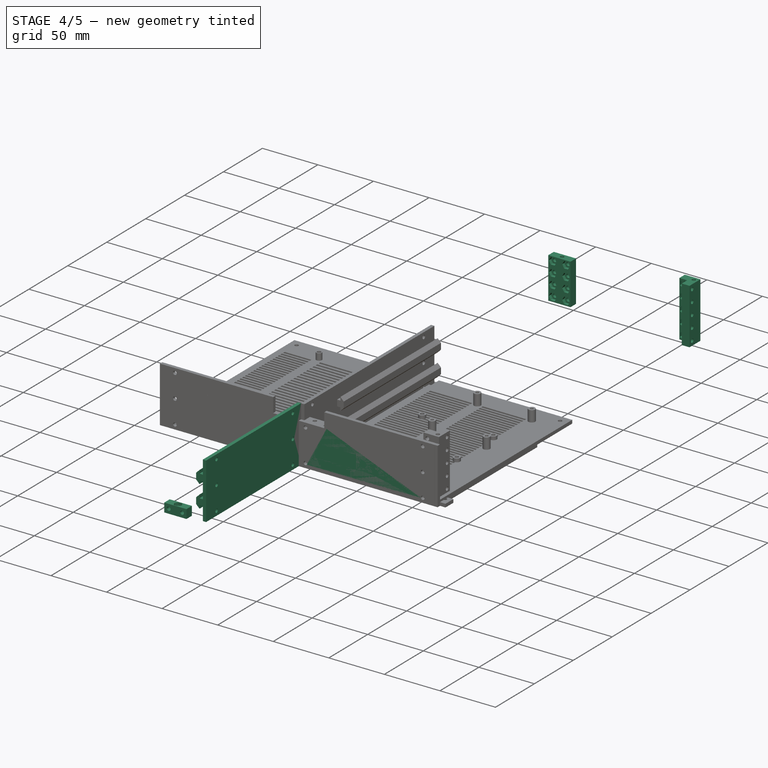
[diagram: stage 4 of 5 — iso view after this stage's code; geometry added in this stage tinted green]
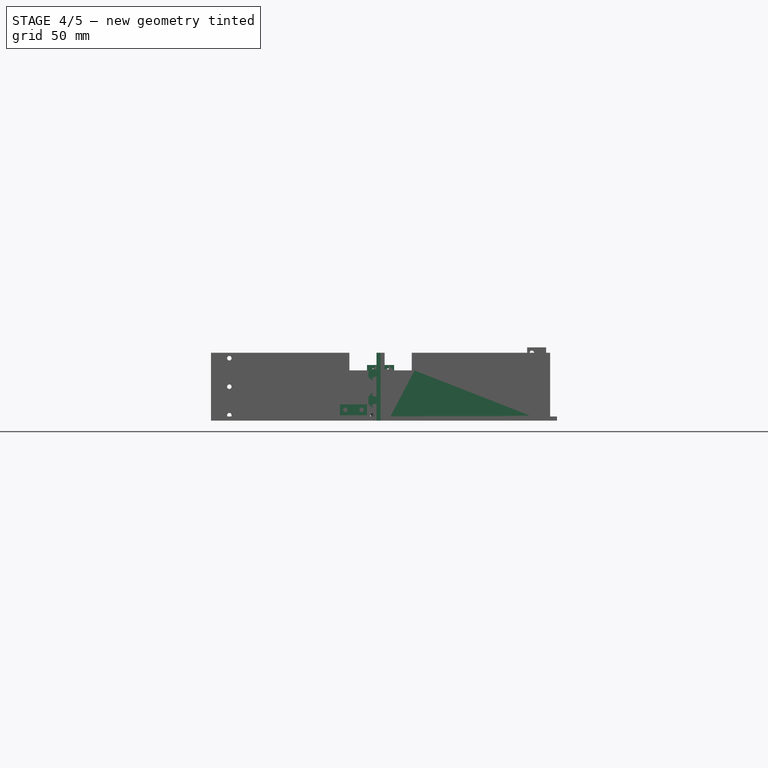
[diagram: stage 4 of 5 — front view after this stage's code; geometry added in this stage tinted green]
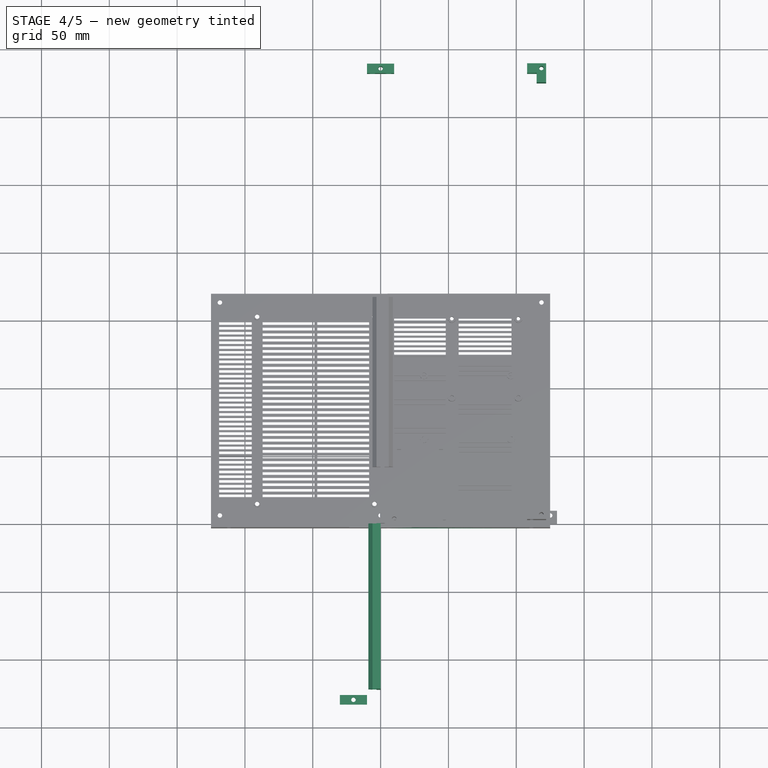
[diagram: stage 4 of 5 — top view after this stage's code; geometry added in this stage tinted green]
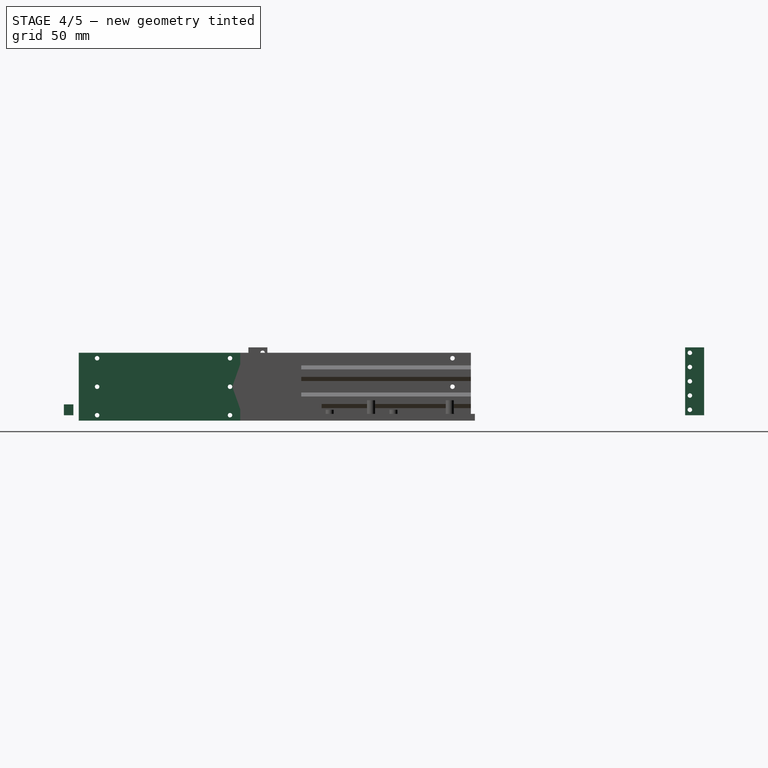
[diagram: stage 4 of 5 — right view after this stage's code; geometry added in this stage tinted green]
FEATURE [Sketcher::SketchObject] Sketch164
  MapMode = 5
  Placement = pos=(0,0,0) rot=(1,0,0;1.5708rad)
  Support = -> [XZ_Plane018]
  sketch-geometry (4):
    g0: LineSegment StartX=0 StartY=0 StartZ=0 EndX=122 EndY=0 EndZ=0
    g1: LineSegment StartX=122 StartY=0 StartZ=0 EndX=122 EndY=50 EndZ=0
    g2: LineSegment StartX=122 StartY=50 StartZ=0 EndX=0 EndY=50 EndZ=0
    g3: LineSegment StartX=0 StartY=50 StartZ=0 EndX=0 EndY=0 EndZ=0
  constraints (11):
    c: Coincident(g0,g1)
    c: Coincident(g1,g2)
    c: Coincident(g2,g3)
    c: Coincident(g3,g0)
    c: Horizontal(g0)
    c: Horizontal(g2)
    c: Vertical(g1)
    c: Vertical(g3)
    c: Distance(g3) = 50
    c: Distance(g0) = 122
    c: Coincident(g0,g-1)
FEATURE [PartDesign::Pad] Pad056
  Length = 3
  Length2 = 100
  Placement = pos=(0,0,0) rot=(1,0,0;1.5708rad)
  Profile = -> Sketch164
  Type = 0
FEATURE [Sketcher::SketchObject] Sketch168
  ExternalGeometry = -> [Pad056]
  MapMode = 5
  Placement = pos=(0,-3,7e-16) rot=(1,0,0;1.5708rad)
  Support = -> [Pad056]
  sketch-geometry (8):
    g0: LineSegment [constr] StartX=0 StartY=50 StartZ=0 EndX=0 EndY=45 EndZ=0
    g1: LineSegment [constr] StartX=0 StartY=45 StartZ=0 EndX=0 EndY=5 EndZ=0
    g2: LineSegment [constr] StartX=0 StartY=5 StartZ=0 EndX=0 EndY=0 EndZ=0
    g3: LineSegment [constr] StartX=0 StartY=5 StartZ=0 EndX=0 EndY=37 EndZ=0
    g4: LineSegment StartX=0 StartY=37 StartZ=0 EndX=25 EndY=37 EndZ=0
    g5: LineSegment StartX=25 StartY=37 StartZ=0 EndX=25 EndY=50 EndZ=0
    g6: LineSegment StartX=25 StartY=50 StartZ=0 EndX=0 EndY=50 EndZ=0
    g7: LineSegment StartX=0 StartY=50 StartZ=0 EndX=0 EndY=37 EndZ=0
  constraints (21):
    c: Coincident(g0,g1)
    c: Coincident(g1,g2)
    c: Equal(g2,g0)
    c: Distance(g1) = 40
    c: Vertical(g1)
    c: Coincident(g0,g-3)
    c: Coincident(g-1,g2)
    c: Vertical(g0)
    c: Distance(g3) = 32
    c: Vertical(g3)
    c: Coincident(g3,g1)
    c: Coincident(g4,g5)
    c: Coincident(g5,g6)
    c: Coincident(g6,g7)
    c: Coincident(g7,g4)
    c: Horizontal(g4)
    c: Horizontal(g6)
    c: Vertical(g5)
    c: Coincident(g6,g0)
    c: Coincident(g4,g3)
    c: Distance(g6) = 25
FEATURE [PartDesign::Pocket] Pocket054
  BaseFeature = -> Pad056
  Length = 5
  Length2 = 100
  Placement = pos=(0,0,0) rot=(1,0,0;1.5708rad)
  Profile = -> Sketch168
  Type = 1
FEATURE [Sketcher::SketchObject] Sketch172
  MapMode = 5
  Placement = pos=(0,0,0) rot=(1,0,0;1.5708rad)
  Support = -> [XZ_Plane021]
  sketch-geometry (29):
    g0: LineSegment StartX=-3 StartY=1.4e-15 StartZ=0 EndX=-3 EndY=12.25 EndZ=0
    g1: LineSegment StartX=-3 StartY=12.25 StartZ=0 EndX=-6 EndY=12.25 EndZ=0
    g2: LineSegment StartX=-6 StartY=12.25 StartZ=0 EndX=-6 EndY=9.25 EndZ=0
    g3: LineSegment StartX=-6 StartY=9.25 StartZ=0 EndX=-9 EndY=12.25 EndZ=0
    g4: LineSegment StartX=-9 StartY=12.25 StartZ=0 EndX=-9 EndY=17.75 EndZ=0
    g5: LineSegment StartX=-9 StartY=17.75 StartZ=0 EndX=-6 EndY=20.75 EndZ=0
    g6: LineSegment StartX=-6 StartY=20.75 StartZ=0 EndX=-6 EndY=17.75 EndZ=0
    g7: LineSegment StartX=-6 StartY=17.75 StartZ=0 EndX=-3 EndY=17.75 EndZ=0
    g8: LineSegment StartX=-3 StartY=17.75 StartZ=0 EndX=-3 EndY=32.25 EndZ=0
    g9: LineSegment StartX=-3 StartY=32.25 StartZ=0 EndX=-6 EndY=32.25 EndZ=0
    g10: LineSegment StartX=-6 StartY=32.25 StartZ=0 EndX=-6 EndY=29.25 EndZ=0
    g11: LineSegment StartX=-6 StartY=29.25 StartZ=0 EndX=-9 EndY=32.25 EndZ=0
    g12: LineSegment StartX=-9 StartY=32.25 StartZ=0 EndX=-9 EndY=37.75 EndZ=0
    g13: LineSegment StartX=-9 StartY=37.75 StartZ=0 EndX=-6 EndY=40.75 EndZ=0
    g14: LineSegment StartX=-6 StartY=40.75 StartZ=0 EndX=-6 EndY=37.75 EndZ=0
    g15: LineSegment StartX=-6 StartY=37.75 StartZ=0 EndX=-3 EndY=37.75 EndZ=0
    g16: LineSegment StartX=-3 StartY=37.75 StartZ=0 EndX=-3 EndY=50 EndZ=0
    g17: LineSegment [constr] StartX=-6 StartY=32.25 StartZ=0 EndX=-6 EndY=37.75 EndZ=0
    g18: LineSegment [constr] StartX=-6 StartY=12.25 StartZ=0 EndX=-6 EndY=17.75 EndZ=0
    g19: LineSegment [constr] StartX=-9 StartY=37.75 StartZ=0 EndX=-6 EndY=37.75 EndZ=0
    g20: LineSegment [constr] StartX=-9 StartY=17.75 StartZ=0 EndX=-6 EndY=17.75 EndZ=0
    g21: LineSegment [constr] StartX=-3 StartY=32.25 StartZ=0 EndX=-3 EndY=35 EndZ=0
    g22: LineSegment [constr] StartX=-3 StartY=35 StartZ=0 EndX=-3 EndY=37.75 EndZ=0
    g23: LineSegment [constr] StartX=-3 StartY=12.25 StartZ=0 EndX=-3 EndY=15 EndZ=0
    g24: LineSegment [constr] StartX=-3 StartY=15 StartZ=0 EndX=-3 EndY=17.75 EndZ=0
    g25: LineSegment [constr] StartX=-3 StartY=15 StartZ=0 EndX=-3 EndY=35 EndZ=0
    g26: LineSegment StartX=-3 StartY=50 StartZ=0 EndX=9.3e-15 EndY=50 EndZ=0
    g27: LineSegment StartX=9.3e-15 StartY=50 StartZ=0 EndX=0 EndY=0 EndZ=0
    g28: LineSegment StartX=0 StartY=0 StartZ=0 EndX=-3 EndY=1.4e-15 EndZ=0
  constraints (77):
    c: Coincident(g0,g1)
    c: Coincident(g1,g2)
    c: Coincident(g2,g3)
    c: Coincident(g3,g4)
    c: Coincident(g4,g5)
    c: Coincident(g5,g6)
    c: Coincident(g6,g7)
    c: Coincident(g7,g8)
    c: Coincident(g8,g9)
    c: Coincident(g9,g10)
    c: Coincident(g10,g11)
    c: Coincident(g11,g12)
    c: Coincident(g12,g13)
    c: Coincident(g13,g14)
    c: Coincident(g14,g15)
    c: Coincident(g15,g16)
    c: Vertical(g16)
    c: Vertical(g8)
    c: Vertical(g0)
    c: Vertical(g2)
    c: Vertical(g6)
    c: Vertical(g10)
    c: Vertical(g14)
    c: Vertical(g12)
    c: Vertical(g4)
    c: Horizontal(g15)
    c: Horizontal(g9)
    c: Horizontal(g7)
    c: Horizontal(g1)
    c: Coincident(g6,g18)
    c: Coincident(g18,g1)
    c: Vertical(g18)
    c: Coincident(g17,g14)
    c: Coincident(g17,g9)
    c: Vertical(g17)
    c: Coincident(g20,g6)
    c: Coincident(g20,g4)
    c: Coincident(g19,g14)
    c: Coincident(g12,g19)
    c: Horizontal(g19)
    c: Horizontal(g20)
    c: Equal(g1,g7)
    c: Equal(g7,g9)
    c: Equal(g9,g15)
    c: Equal(g19,g20)
    c: Equal(g18,g4)
    c: Equal(g4,g12)
    c: Equal(g12,g17)
    c: Angle(g13,g14) = 0.785398
    c: Angle(g10,g11) = 0.785398
    c: Angle(g5,g6) = 0.785398
    c: Angle(g2,g3) = 0.785398
    c: Distance(g19) = 3
    c: Distance(g15) = 3
    c: Distance(g12) = 5.5
    c: Coincident(g21,g22)
    c: Coincident(g23,g24)
    c: Distance(g25) = 20
    c: Vertical(g25)
    c: Coincident(g22,g15)
    c: Coincident(g21,g8)
    c: Equal(g22,g21)
    c: Coincident(g7,g24)
    c: Coincident(g23,g0)
    c: Coincident(g23,g25)
    c: Coincident(g21,g25)
    c: Equal(g24,g23)
    c: Vertical(g22)
    c: Equal(g0,g16)
    c: Perpendicular(g26,g27) = 4.71239
    c: Perpendicular(g27,g28) = 4.71239
    c: Horizontal(g26)
    c: Coincident(g26,g16)
    c: Coincident(g28,g0)
    c: Distance(g26) = 3
    c: Distance(g27) = 50
    c: Coincident(g27,g-1)
FEATURE [PartDesign::Pad] Pad060
  Length = 122
  Length2 = 100
  Placement = pos=(0,0,0) rot=(1,0,0;1.5708rad)
  Profile = -> Sketch172
  Type = 0
FEATURE [Sketcher::SketchObject] Sketch173
  MapMode = 5
  Placement = pos=(0,0,0) rot=(1,0,0;1.5708rad)
  Support = -> [XZ_Plane022]
  sketch-geometry (4):
    g0: LineSegment StartX=0 StartY=0 StartZ=0 EndX=-125 EndY=0 EndZ=0
    g1: LineSegment StartX=-125 StartY=0 StartZ=0 EndX=-125 EndY=50 EndZ=0
    g2: LineSegment StartX=-125 StartY=50 StartZ=0 EndX=0 EndY=50 EndZ=0
    g3: LineSegment StartX=0 StartY=50 StartZ=0 EndX=0 EndY=0 EndZ=0
  constraints (11):
    c: Coincident(g0,g1)
    c: Coincident(g1,g2)
    c: Coincident(g2,g3)
    c: Coincident(g3,g0)
    c: Horizontal(g0)
    c: Horizontal(g2)
    c: Vertical(g1)
    c: Vertical(g3)
    c: Distance(g3) = 50
    c: Distance(g2) = 125
    c: Coincident(g0,g-1)
FEATURE [PartDesign::Pad] Pad061
  Length = 3
  Length2 = 100
  Placement = pos=(0,0,0) rot=(1,0,0;1.5708rad)
  Profile = -> Sketch173
  Type = 0
FEATURE [Sketcher::SketchObject] Sketch174
  MapMode = 5
  Placement = pos=(0,0,0) rot=(1,0,0;1.5708rad)
  Support = -> [XZ_Plane023]
  sketch-geometry (4):
    g0: LineSegment StartX=0 StartY=0 StartZ=0 EndX=-122 EndY=0 EndZ=0
    g1: LineSegment StartX=-122 StartY=0 StartZ=0 EndX=-122 EndY=50 EndZ=0
    g2: LineSegment StartX=-122 StartY=50 StartZ=0 EndX=0 EndY=50 EndZ=0
    g3: LineSegment StartX=0 StartY=50 StartZ=0 EndX=0 EndY=0 EndZ=0
  constraints (11):
    c: Coincident(g0,g1)
    c: Coincident(g1,g2)
    c: Coincident(g2,g3)
    c: Coincident(g3,g0)
    c: Horizontal(g0)
    c: Horizontal(g2)
    c: Vertical(g1)
    c: Vertical(g3)
    c: Coincident(g0,g-1)
    c: Distance(g3) = 50
    c: Distance(g0) = 122
FEATURE [PartDesign::Pad] Pad062
  Length = 3
  Length2 = 100
  Placement = pos=(0,0,0) rot=(1,0,0;1.5708rad)
  Profile = -> Sketch174
  Type = 0
FEATURE [Sketcher::SketchObject] Sketch175
  ExternalGeometry = -> [Pad062]
  MapMode = 5
  Placement = pos=(0,-3,7e-16) rot=(1,0,0;1.5708rad)
  Support = -> [Pad062]
  sketch-geometry (8):
    g0: LineSegment [constr] StartX=0 StartY=45 StartZ=0 EndX=0 EndY=5 EndZ=0
    g1: LineSegment [constr] StartX=0 StartY=5 StartZ=0 EndX=0 EndY=37 EndZ=0
    g2: LineSegment [constr] StartX=0 StartY=50 StartZ=0 EndX=0 EndY=45 EndZ=0
    g3: LineSegment [constr] StartX=0 StartY=5 StartZ=0 EndX=0 EndY=0 EndZ=0
    g4: LineSegment StartX=0 StartY=50 StartZ=0 EndX=-23 EndY=50 EndZ=0
    g5: LineSegment StartX=-23 StartY=50 StartZ=0 EndX=-23 EndY=37 EndZ=0
    g6: LineSegment StartX=-23 StartY=37 StartZ=0 EndX=0 EndY=37 EndZ=0
    g7: LineSegment StartX=0 StartY=37 StartZ=0 EndX=0 EndY=50 EndZ=0
  constraints (23):
    c: Coincident(g0,g1)
    c: Distance(g0) = 40
    c: Distance(g1) = 32
    c: Coincident(g3,g-1)
    c: Coincident(g2,g-3)
    c: Coincident(g2,g0)
    c: Coincident(g3,g0)
    c: Vertical(g0)
    c: Equal(g2,g3)
    c: Vertical(g2)
    c: Vertical(g1)
    c: Coincident(g4,g5)
    c: Coincident(g5,g6)
    c: Coincident(g6,g7)
    c: Coincident(g7,g4)
    c: Horizontal(g4)
    c: Horizontal(g6)
    c: Vertical(g5)
    c: Coincident(g4,g2)
    c: Coincident(g1,g6)
    c: Distance(g-3) = 122
    c: Distance(g4) = 23
    c: Distance(g5) = 13
FEATURE [PartDesign::Pocket] Pocket056
  BaseFeature = -> Pad062
  Length = 5
  Length2 = 100
  Placement = pos=(0,0,0) rot=(1,0,0;1.5708rad)
  Profile = -> Sketch175
  Type = 0
FEATURE [Sketcher::SketchObject] Sketch176
  ExternalGeometry = -> [Pad061]
  MapMode = 5
  Placement = pos=(0,0,0) rot=(-1,0,0;1.5708rad)
  Support = -> [Pad061]
  sketch-geometry (8):
    g0: LineSegment [constr] StartX=0 StartY=0 StartZ=0 EndX=0 EndY=-5 EndZ=0
    g1: LineSegment [constr] StartX=0 StartY=-5 StartZ=0 EndX=0 EndY=-45 EndZ=0
    g2: LineSegment [constr] StartX=0 StartY=-45 StartZ=0 EndX=0 EndY=-50 EndZ=0
    g3: LineSegment [constr] StartX=0 StartY=-5 StartZ=0 EndX=0 EndY=-37 EndZ=0
    g4: LineSegment StartX=0 StartY=-37 StartZ=0 EndX=-23 EndY=-37 EndZ=0
    g5: LineSegment StartX=-23 StartY=-37 StartZ=0 EndX=-23 EndY=-50 EndZ=0
    g6: LineSegment StartX=-23 StartY=-50 StartZ=0 EndX=0 EndY=-50 EndZ=0
    g7: LineSegment StartX=0 StartY=-50 StartZ=0 EndX=0 EndY=-37 EndZ=0
  constraints (21):
    c: Coincident(g0,g1)
    c: Coincident(g1,g2)
    c: Equal(g0,g2)
    c: Coincident(g-1,g0)
    c: Coincident(g2,g-3)
    c: Vertical(g1)
    c: Distance(g1) = 40
    c: Vertical(g2)
    c: Coincident(g3,g0)
    c: Distance(g3) = 32
    c: Vertical(g3)
    c: Coincident(g4,g5)
    c: Coincident(g5,g6)
    c: Coincident(g6,g7)
    c: Coincident(g7,g4)
    c: Horizontal(g4)
    c: Horizontal(g6)
    c: Vertical(g5)
    c: Coincident(g2,g6)
    c: Coincident(g4,g3)
    c: Distance(g6) = 23
FEATURE [PartDesign::Pocket] Pocket057
  BaseFeature = -> Pad061
  Length = 5
  Length2 = 100
  Placement = pos=(0,0,0) rot=(1,0,0;1.5708rad)
  Profile = -> Sketch176
  Type = 1
FEATURE [PartDesign::Body] Body019  label="Back_right_compartment_back_wall"
  Group = -> [Sketch165,Pad057,Sketch166,Hole030,Sketch167,Pocket053,Sketch181,Hole033]
  Origin = -> Origin019
  Placement = pos=(0,342,4) rot=(0,0,1;0rad)
  Tip = -> Hole033
FEATURE [Sketcher::SketchObject] Sketch182
  ExternalGeometry = -> [Pocket057]
  MapMode = 5
  Placement = pos=(0,0,0) rot=(-1,0,0;1.5708rad)
  Support = -> [Pocket057]
  sketch-geometry (9):
    g0: Circle CenterX=-6 CenterY=-33 CenterZ=0 NormalX=0 NormalY=0 NormalZ=1 AngleXU=0 Radius=1.5
    g1: Circle CenterX=-6 CenterY=-4 CenterZ=0 NormalX=0 NormalY=0 NormalZ=1 AngleXU=0 Radius=1.5
    g2: Circle CenterX=-111.5 CenterY=-46 CenterZ=0 NormalX=0 NormalY=0 NormalZ=1 AngleXU=0 Radius=1.5
    g3: Circle CenterX=-111.5 CenterY=-25 CenterZ=0 NormalX=0 NormalY=0 NormalZ=1 AngleXU=0 Radius=1.5
    g4: Circle CenterX=-111.5 CenterY=-4 CenterZ=0 NormalX=0 NormalY=0 NormalZ=1 AngleXU=0 Radius=1.5
    g5: LineSegment [constr] StartX=-111.5 StartY=-50 StartZ=0 EndX=-111.5 EndY=-46 EndZ=0
    g6: LineSegment [constr] StartX=-111.5 StartY=-46 StartZ=0 EndX=-111.5 EndY=-25 EndZ=0
    g7: LineSegment [constr] StartX=-111.5 StartY=-25 StartZ=0 EndX=-111.5 EndY=-4 EndZ=0
    g8: LineSegment [constr] StartX=-111.5 StartY=-4 StartZ=0 EndX=-111.5 EndY=0 EndZ=0
  constraints (25):
    c: Equal(g1,g0)
    c: Diameter(g0) = 3
    c: DistanceX(g0,g-3) = 6
    c: DistanceY(g-3,g0) = 4
    c: DistanceX(g1,g-1) = 6
    c: DistanceY(g1,g-1) = 4
    c: Equal(g2,g3)
    c: Equal(g3,g4)
    c: Equal(g4,g1)
    c: Coincident(g5,g6)
    c: Coincident(g6,g7)
    c: Coincident(g7,g8)
    c: Vertical(g8)
    c: Vertical(g7)
    c: Vertical(g6)
    c: Vertical(g5)
    c: Equal(g5,g8)
    c: Equal(g6,g7)
    c: Coincident(g3,g6)
    c: Coincident(g5,g2)
    c: Coincident(g7,g4)
    c: PointOnObject(g5,g-4)
    c: PointOnObject(g8,g-1)
    c: Distance(g8) = 4
    c: Distance(g5,g-4) = 13.5
FEATURE [PartDesign::Hole] Hole034
  BaseFeature = -> Pocket057
  Depth = 25
  DepthType = 0
  Diameter = 3.3
  DrillPoint = 1
  DrillPointAngle = 118
  HoleCutCountersinkAngle = 90
  HoleCutDepth = 0
  HoleCutDiameter = 6
  HoleCutType = 2
  ModelActualThread = false
  Placement = pos=(0,0,0) rot=(1,0,0;1.5708rad)
  Profile = -> Sketch182
  Tapered = false
  TaperedAngle = 90
  ThreadAngle = 0
  ThreadClass = 0
  ThreadCutOffInner = 0
  ThreadCutOffOuter = 0
  ThreadDirection = 0
  ThreadFit = 0
  ThreadPitch = 0
  ThreadSize = 3
  ThreadType = 1
  Threaded = false
FEATURE [PartDesign::Body] Body022  label="Back_left_compartment_back_wall"
  Group = -> [Sketch173,Pad061,Sketch176,Pocket057,Sketch182,Hole034]
  Origin = -> Origin022
  Placement = pos=(0,342,4) rot=(0,0,1;0rad)
  Tip = -> Hole034
FEATURE [Sketcher::SketchObject] Sketch183
  ExternalGeometry = -> [Pocket056]
  MapMode = 5
  Placement = pos=(0,-3,7e-16) rot=(1,0,0;1.5708rad)
  Support = -> [Pocket056]
  sketch-geometry (9):
    g0: Circle CenterX=-6 CenterY=33 CenterZ=0 NormalX=0 NormalY=0 NormalZ=1 AngleXU=0 Radius=1.5
    g1: Circle CenterX=-6 CenterY=4 CenterZ=0 NormalX=0 NormalY=0 NormalZ=1 AngleXU=0 Radius=1.5
    g2: Circle CenterX=-111.5 CenterY=46 CenterZ=0 NormalX=0 NormalY=0 NormalZ=1 AngleXU=0 Radius=1.5
    g3: Circle CenterX=-111.5 CenterY=25 CenterZ=0 NormalX=0 NormalY=0 NormalZ=1 AngleXU=0 Radius=1.5
    g4: Circle CenterX=-111.5 CenterY=4 CenterZ=0 NormalX=0 NormalY=0 NormalZ=1 AngleXU=0 Radius=1.5
    g5: LineSegment [constr] StartX=-111.5 StartY=50 StartZ=0 EndX=-111.5 EndY=46 EndZ=0
    g6: LineSegment [constr] StartX=-111.5 StartY=46 StartZ=0 EndX=-111.5 EndY=25 EndZ=0
    g7: LineSegment [constr] StartX=-111.5 StartY=25 StartZ=0 EndX=-111.5 EndY=4 EndZ=0
    g8: LineSegment [constr] StartX=-111.5 StartY=4 StartZ=0 EndX=-111.5 EndY=0 EndZ=0
  constraints (25):
    c: Equal(g1,g0)
    c: Diameter(g0) = 3
    c: DistanceX(g0,g-3) = 6
    c: DistanceY(g0,g-3) = 4
    c: DistanceY(g-1,g1) = 4
    c: DistanceX(g1,g-1) = 6
    c: Equal(g4,g3)
    c: Equal(g3,g2)
    c: Equal(g2,g0)
    c: Coincident(g5,g6)
    c: Coincident(g6,g7)
    c: Coincident(g7,g8)
    c: Equal(g6,g7)
    c: Equal(g5,g8)
    c: PointOnObject(g5,g-4)
    c: PointOnObject(g8,g-1)
    c: Distance(g5) = 4
    c: Vertical(g5)
    c: Vertical(g6)
    c: Vertical(g7)
    c: Vertical(g8)
    c: Coincident(g2,g5)
    c: Coincident(g3,g6)
    c: Coincident(g4,g7)
    c: DistanceX(g-4,g5) = 10.5
FEATURE [PartDesign::Hole] Hole035
  BaseFeature = -> Pocket056
  Depth = 25
  DepthType = 0
  Diameter = 3.3
  DrillPoint = 1
  DrillPointAngle = 118
  HoleCutCountersinkAngle = 90
  HoleCutDepth = 0
  HoleCutDiameter = 6
  HoleCutType = 2
  ModelActualThread = false
  Placement = pos=(0,0,0) rot=(1,0,0;1.5708rad)
  Profile = -> Sketch183
  Tapered = false
  TaperedAngle = 90
  ThreadAngle = 0
  ThreadClass = 0
  ThreadCutOffInner = 0
  ThreadCutOffOuter = 0
  ThreadDirection = 0
  ThreadFit = 0
  ThreadPitch = 0
  ThreadSize = 3
  ThreadType = 1
  Threaded = false
FEATURE [PartDesign::Body] Body023  label="Back_left_compartment_front_wall"
  Group = -> [Sketch174,Pad062,Sketch175,Pocket056,Sketch183,Hole035]
  Origin = -> Origin023
  Placement = pos=(0,220,4) rot=(0,0,1;0rad)
  Tip = -> Hole035
FEATURE [Sketcher::SketchObject] Sketch184
  ExternalGeometry = -> [Pocket054]
  MapMode = 5
  Placement = pos=(0,-3,7e-16) rot=(1,0,0;1.5708rad)
  Support = -> [Pocket054]
  sketch-geometry (9):
    g0: Circle CenterX=6 CenterY=33 CenterZ=0 NormalX=0 NormalY=0 NormalZ=1 AngleXU=0 Radius=1.5
    g1: Circle CenterX=6 CenterY=4 CenterZ=0 NormalX=0 NormalY=0 NormalZ=1 AngleXU=0 Radius=1.5
    g2: Circle CenterX=111.5 CenterY=46 CenterZ=0 NormalX=0 NormalY=0 NormalZ=1 AngleXU=0 Radius=1.5
    g3: Circle CenterX=111.5 CenterY=25 CenterZ=0 NormalX=0 NormalY=0 NormalZ=1 AngleXU=0 Radius=1.5
    g4: Circle CenterX=111.5 CenterY=4 CenterZ=0 NormalX=0 NormalY=0 NormalZ=1 AngleXU=0 Radius=1.5
    g5: LineSegment [constr] StartX=111.5 StartY=50 StartZ=0 EndX=111.5 EndY=46 EndZ=0
    g6: LineSegment [constr] StartX=111.5 StartY=46 StartZ=0 EndX=111.5 EndY=25 EndZ=0
    g7: LineSegment [constr] StartX=111.5 StartY=25 StartZ=0 EndX=111.5 EndY=4 EndZ=0
    g8: LineSegment [constr] StartX=111.5 StartY=4 StartZ=0 EndX=111.5 EndY=0 EndZ=0
  constraints (25):
    c: Equal(g1,g0)
    c: Diameter(g0) = 3
    c: DistanceX(g-3,g0) = 6
    c: DistanceY(g0,g-3) = 4
    c: DistanceX(g-1,g1) = 6
    c: DistanceY(g-1,g1) = 4
    c: Equal(g4,g3)
    c: Equal(g3,g2)
    c: Diameter(g2) = 3
    c: Coincident(g5,g6)
    c: Coincident(g6,g7)
    c: Coincident(g7,g8)
    c: Vertical(g8)
    c: Vertical(g7)
    c: Vertical(g6)
    c: Vertical(g5)
    c: PointOnObject(g5,g-4)
    c: PointOnObject(g8,g-1)
    c: Equal(g5,g8)
    c: Distance(g5) = 4
    c: Equal(g6,g7)
    c: Coincident(g6,g3)
    c: Coincident(g5,g2)
    c: Coincident(g7,g4)
    c: DistanceX(g5,g-4) = 10.5
FEATURE [PartDesign::Hole] Hole036
  BaseFeature = -> Pocket054
  Depth = 25
  DepthType = 0
  Diameter = 3.3
  DrillPoint = 1
  DrillPointAngle = 118
  HoleCutCountersinkAngle = 90
  HoleCutDepth = 0
  HoleCutDiameter = 6
  HoleCutType = 2
  ModelActualThread = false
  Placement = pos=(0,0,0) rot=(1,0,0;1.5708rad)
  Profile = -> Sketch184
  Tapered = false
  TaperedAngle = 90
  ThreadAngle = 0
  ThreadClass = 0
  ThreadCutOffInner = 0
  ThreadCutOffOuter = 0
  ThreadDirection = 0
  ThreadFit = 0
  ThreadPitch = 0
  ThreadSize = 3
  ThreadType = 1
  Threaded = false
FEATURE [Sketcher::SketchObject] Sketch187
  MapMode = 5
  Support = -> [XY_Plane025]
  sketch-geometry (4):
    g0: LineSegment StartX=0 StartY=0 StartZ=0 EndX=20 EndY=0 EndZ=0
    g1: LineSegment StartX=20 StartY=0 StartZ=0 EndX=20 EndY=7 EndZ=0
    g2: LineSegment StartX=20 StartY=7 StartZ=0 EndX=0 EndY=7 EndZ=0
    g3: LineSegment StartX=0 StartY=7 StartZ=0 EndX=0 EndY=0 EndZ=0
  constraints (11):
    c: Coincident(g0,g1)
    c: Coincident(g1,g2)
    c: Coincident(g2,g3)
    c: Coincident(g3,g0)
    c: Horizontal(g0)
    c: Horizontal(g2)
    c: Vertical(g1)
    c: Vertical(g3)
    c: Distance(g2) = 20
    c: Distance(g1) = 7
    c: Coincident(g0,g-1)
FEATURE [PartDesign::Pad] Pad064
  Length = 37
  Length2 = 100
  Profile = -> Sketch187
  Type = 0
FEATURE [Sketcher::SketchObject] Sketch188
  ExternalGeometry = -> [Pad064]
  MapMode = 5
  Placement = pos=(0,0,0) rot=(1,0,0;1.5708rad)
  Support = -> [Pad064]
  sketch-geometry (14):
    g0: Circle CenterX=4 CenterY=4 CenterZ=0 NormalX=0 NormalY=0 NormalZ=1 AngleXU=0 Radius=1.5
    g1: Circle CenterX=16 CenterY=4 CenterZ=0 NormalX=0 NormalY=0 NormalZ=1 AngleXU=0 Radius=1.5
    g2: Circle CenterX=16 CenterY=13.6667 CenterZ=0 NormalX=0 NormalY=0 NormalZ=1 AngleXU=0 Radius=1.5
    g3: Circle CenterX=16 CenterY=33 CenterZ=0 NormalX=0 NormalY=0 NormalZ=1 AngleXU=0 Radius=1.5
    g4: Circle CenterX=4 CenterY=13.6667 CenterZ=0 NormalX=0 NormalY=0 NormalZ=1 AngleXU=0 Radius=1.5
    g5: Circle CenterX=4 CenterY=33 CenterZ=0 NormalX=0 NormalY=0 NormalZ=1 AngleXU=0 Radius=1.5
    g6: Circle CenterX=4 CenterY=23.3333 CenterZ=0 NormalX=0 NormalY=0 NormalZ=1 AngleXU=0 Radius=1.5
    g7: Circle CenterX=16 CenterY=23.3333 CenterZ=0 NormalX=0 NormalY=0 NormalZ=1 AngleXU=0 Radius=1.5
    g8: LineSegment [constr] StartX=4 StartY=33 StartZ=0 EndX=4 EndY=23.3333 EndZ=0
    g9: LineSegment [constr] StartX=4 StartY=23.3333 StartZ=0 EndX=4 EndY=13.6667 EndZ=0
    g10: LineSegment [constr] StartX=4 StartY=13.6667 StartZ=0 EndX=4 EndY=4 EndZ=0
    g11: LineSegment [constr] StartX=16 StartY=4 StartZ=0 EndX=16 EndY=13.6667 EndZ=0
    g12: LineSegment [constr] StartX=16 StartY=13.6667 StartZ=0 EndX=16 EndY=23.3333 EndZ=0
    g13: LineSegment [constr] StartX=16 StartY=23.3333 StartZ=0 EndX=16 EndY=33 EndZ=0
  constraints (36):
    c: DistanceX(g-3,g5) = 4
    c: DistanceY(g5,g-3) = 4
    c: Equal(g1,g0)
    c: Equal(g0,g4)
    c: Equal(g4,g2)
    c: Equal(g2,g3)
    c: Equal(g3,g5)
    c: Diameter(g5) = 3
    c: DistanceX(g3,g-3) = 4
    c: DistanceY(g3,g-3) = 4
    c: DistanceX(g1,g-4) = 4
    c: DistanceY(g-4,g1) = 4
    c: DistanceX(g-1,g0) = 4
    c: DistanceY(g-1,g0) = 4
    c: Equal(g6,g7)
    c: Equal(g7,g5)
    c: Coincident(g8,g9)
    c: Coincident(g9,g10)
    c: Coincident(g11,g12)
    c: Coincident(g12,g13)
    c: Coincident(g3,g13)
    c: Coincident(g7,g12)
    c: Coincident(g11,g2)
    c: Coincident(g11,g1)
    c: Coincident(g0,g10)
    c: Coincident(g4,g9)
    c: Coincident(g8,g6)
    c: Coincident(g8,g5)
    c: Vertical(g10)
    c: Vertical(g9)
    c: Vertical(g13)
    c: Vertical(g12)
    c: Equal(g9,g8)
    c: Equal(g8,g10)
    c: Equal(g13,g12)
    c: Equal(g12,g11)
FEATURE [PartDesign::Hole] Hole038
  BaseFeature = -> Pad064
  Depth = 25
  DepthType = 1
  Diameter = 3.3
  DrillPoint = 1
  DrillPointAngle = 118
  HoleCutCountersinkAngle = 90
  HoleCutDepth = 0
  HoleCutDiameter = 3
  HoleCutType = 0
  ModelActualThread = false
  Profile = -> Sketch188
  Tapered = false
  TaperedAngle = 90
  ThreadAngle = 0
  ThreadClass = 0
  ThreadCutOffInner = 0
  ThreadCutOffOuter = 0
  ThreadDirection = 0
  ThreadFit = 0
  ThreadPitch = 0
  ThreadSize = 3
  ThreadType = 1
  Threaded = false
FEATURE [Sketcher::SketchObject] Sketch186
  MapMode = 5
  Placement = pos=(0,0,37) rot=(0,0,1;0rad)
  Support = -> [Hole038]
  sketch-geometry (1):
    g0: Circle CenterX=10 CenterY=3.5 CenterZ=0 NormalX=0 NormalY=0 NormalZ=1 AngleXU=0 Radius=1.5
  constraints (3):
    c: DistanceX(g-1,g0) = 10
    c: DistanceY(g-1,g0) = 3.5
    c: Diameter(g0) = 3
FEATURE [PartDesign::Hole] Hole039
  BaseFeature = -> Hole038
  Depth = 25
  DepthType = 1
  Diameter = 3.3
  DrillPoint = 1
  DrillPointAngle = 118
  HoleCutCountersinkAngle = 90
  HoleCutDepth = 0
  HoleCutDiameter = 3
  HoleCutType = 0
  ModelActualThread = false
  Profile = -> Sketch186
  Tapered = false
  TaperedAngle = 90
  ThreadAngle = 0
  ThreadClass = 0
  ThreadCutOffInner = 0
  ThreadCutOffOuter = 0
  ThreadDirection = 0
  ThreadFit = 0
  ThreadPitch = 0
  ThreadSize = 3
  ThreadType = 1
  Threaded = false
FEATURE [Sketcher::SketchObject] Sketch189
  ExternalGeometry = -> [Hole039]
  MapMode = 5
  Placement = pos=(0,0,0) rot=(1,0,0;1.5708rad)
  Support = -> [Hole039]
  sketch-geometry (56):
    g0: LineSegment StartX=2.625 StartY=35.3816 StartZ=0 EndX=1.25 EndY=33 EndZ=0
    g1: LineSegment StartX=1.25 StartY=33 StartZ=0 EndX=2.625 EndY=30.6184 EndZ=0
    g2: LineSegment StartX=2.625 StartY=30.6184 StartZ=0 EndX=5.375 EndY=30.6184 EndZ=0
    g3: LineSegment StartX=5.375 StartY=30.6184 StartZ=0 EndX=6.75 EndY=33 EndZ=0
    g4: LineSegment StartX=6.75 StartY=33 StartZ=0 EndX=5.375 EndY=35.3816 EndZ=0
    g5: LineSegment StartX=5.375 StartY=35.3816 StartZ=0 EndX=2.625 EndY=35.3816 EndZ=0
    g6: Circle [constr] CenterX=4 CenterY=33 CenterZ=0 NormalX=0 NormalY=0 NormalZ=1 AngleXU=0 Radius=2.75
    g7: LineSegment StartX=14.625 StartY=35.3816 StartZ=0 EndX=13.25 EndY=33 EndZ=0
    g8: LineSegment StartX=13.25 StartY=33 StartZ=0 EndX=14.625 EndY=30.6184 EndZ=0
    g9: LineSegment StartX=14.625 StartY=30.6184 StartZ=0 EndX=17.375 EndY=30.6184 EndZ=0
    g10: LineSegment StartX=17.375 StartY=30.6184 StartZ=0 EndX=18.75 EndY=33 EndZ=0
    g11: LineSegment StartX=18.75 StartY=33 StartZ=0 EndX=17.375 EndY=35.3816 EndZ=0
    g12: LineSegment StartX=17.375 StartY=35.3816 StartZ=0 EndX=14.625 EndY=35.3816 EndZ=0
    g13: Circle [constr] CenterX=16 CenterY=33 CenterZ=0 NormalX=0 NormalY=0 NormalZ=1 AngleXU=0 Radius=2.75
    g14: LineSegment StartX=5.375 StartY=25.7149 StartZ=0 EndX=2.625 EndY=25.7149 EndZ=0
    g15: LineSegment StartX=2.625 StartY=25.7149 StartZ=0 EndX=1.25 EndY=23.3333 EndZ=0
    g16: LineSegment StartX=1.25 StartY=23.3333 StartZ=0 EndX=2.625 EndY=20.9518 EndZ=0
    g17: LineSegment StartX=2.625 StartY=20.9518 StartZ=0 EndX=5.375 EndY=20.9518 EndZ=0
    g18: LineSegment StartX=5.375 StartY=20.9518 StartZ=0 EndX=6.75 EndY=23.3333 EndZ=0
    g19: LineSegment StartX=6.75 StartY=23.3333 StartZ=0 EndX=5.375 EndY=25.7149 EndZ=0
    g20: Circle [constr] CenterX=4 CenterY=23.3333 CenterZ=0 NormalX=0 NormalY=0 NormalZ=1 AngleXU=0 Radius=2.75
    g21: LineSegment StartX=14.625 StartY=25.7149 StartZ=0 EndX=13.25 EndY=23.3333 EndZ=0
    g22: LineSegment StartX=13.25 StartY=23.3333 StartZ=0 EndX=14.625 EndY=20.9518 EndZ=0
    g23: LineSegment StartX=14.625 StartY=20.9518 StartZ=0 EndX=17.375 EndY=20.9518 EndZ=0
    g24: LineSegment StartX=17.375 StartY=20.9518 StartZ=0 EndX=18.75 EndY=23.3333 EndZ=0
    g25: LineSegment StartX=18.75 StartY=23.3333 StartZ=0 EndX=17.375 EndY=25.7149 EndZ=0
    g26: LineSegment StartX=17.375 StartY=25.7149 StartZ=0 EndX=14.625 EndY=25.7149 EndZ=0
    g27: Circle [constr] CenterX=16 CenterY=23.3333 CenterZ=0 NormalX=0 NormalY=0 NormalZ=1 AngleXU=0 Radius=2.75
    g28: LineSegment StartX=5.375 StartY=16.0482 StartZ=0 EndX=2.625 EndY=16.0482 EndZ=0
    g29: LineSegment StartX=2.625 StartY=16.0482 StartZ=0 EndX=1.25 EndY=13.6667 EndZ=0
    g30: LineSegment StartX=1.25 StartY=13.6667 StartZ=0 EndX=2.625 EndY=11.2851 EndZ=0
    g31: LineSegment StartX=2.625 StartY=11.2851 StartZ=0 EndX=5.375 EndY=11.2851 EndZ=0
    g32: LineSegment StartX=5.375 StartY=11.2851 StartZ=0 EndX=6.75 EndY=13.6667 EndZ=0
    g33: LineSegment StartX=6.75 StartY=13.6667 StartZ=0 EndX=5.375 EndY=16.0482 EndZ=0
    g34: Circle [constr] CenterX=4 CenterY=13.6667 CenterZ=0 NormalX=0 NormalY=0 NormalZ=1 AngleXU=0 Radius=2.75
    g35: LineSegment StartX=14.625 StartY=16.0482 StartZ=0 EndX=13.25 EndY=13.6667 EndZ=0
    g36: LineSegment StartX=13.25 StartY=13.6667 StartZ=0 EndX=14.625 EndY=11.2851 EndZ=0
    g37: LineSegment StartX=14.625 StartY=11.2851 StartZ=0 EndX=17.375 EndY=11.2851 EndZ=0
    g38: LineSegment StartX=17.375 StartY=11.2851 StartZ=0 EndX=18.75 EndY=13.6667 EndZ=0
    g39: LineSegment StartX=18.75 StartY=13.6667 StartZ=0 EndX=17.375 EndY=16.0482 EndZ=0
    g40: LineSegment StartX=17.375 StartY=16.0482 StartZ=0 EndX=14.625 EndY=16.0482 EndZ=0
    g41: Circle [constr] CenterX=16 CenterY=13.6667 CenterZ=0 NormalX=0 NormalY=0 NormalZ=1 AngleXU=0 Radius=2.75
    g42: LineSegment StartX=2.625 StartY=6.38157 StartZ=0 EndX=1.25 EndY=4 EndZ=0
    g43: LineSegment StartX=1.25 StartY=4 StartZ=0 EndX=2.625 EndY=1.61843 EndZ=0
    g44: LineSegment StartX=2.625 StartY=1.61843 StartZ=0 EndX=5.375 EndY=1.61843 EndZ=0
    g45: LineSegment StartX=5.375 StartY=1.61843 StartZ=0 EndX=6.75 EndY=4 EndZ=0
    g46: LineSegment StartX=6.75 StartY=4 StartZ=0 EndX=5.375 EndY=6.38157 EndZ=0
    g47: LineSegment StartX=5.375 StartY=6.38157 StartZ=0 EndX=2.625 EndY=6.38157 EndZ=0
    g48: Circle [constr] CenterX=4 CenterY=4 CenterZ=0 NormalX=0 NormalY=0 NormalZ=1 AngleXU=0 Radius=2.75
    g49: LineSegment StartX=17.375 StartY=6.38157 StartZ=0 EndX=14.625 EndY=6.38157 EndZ=0
    g50: LineSegment StartX=14.625 StartY=6.38157 StartZ=0 EndX=13.25 EndY=4 EndZ=0
    g51: LineSegment StartX=13.25 StartY=4 StartZ=0 EndX=14.625 EndY=1.61843 EndZ=0
    g52: LineSegment StartX=14.625 StartY=1.61843 StartZ=0 EndX=17.375 EndY=1.61843 EndZ=0
    g53: LineSegment StartX=17.375 StartY=1.61843 StartZ=0 EndX=18.75 EndY=4 EndZ=0
    g54: LineSegment StartX=18.75 StartY=4 StartZ=0 EndX=17.375 EndY=6.38157 EndZ=0
    g55: Circle [constr] CenterX=16 CenterY=4 CenterZ=0 NormalX=0 NormalY=0 NormalZ=1 AngleXU=0 Radius=2.75
  constraints (128):
    c: Coincident(g0,g1)
    c: Coincident(g1,g2)
    c: Coincident(g2,g3)
    c: Coincident(g3,g4)
    c: Coincident(g4,g5)
    c: Coincident(g5,g0)
    c: Equal(g0, g1-g5) x5
    c: PointOnObject(g0,g6)
    c: PointOnObject(g1,g6)
    c: PointOnObject(g2,g6)
    c: PointOnObject(g3,g6)
    c: PointOnObject(g4,g6)
    c: PointOnObject(g5,g6)
    c: Coincident(g7,g8)
    c: Coincident(g8,g9)
    c: Coincident(g9,g10)
    c: Coincident(g10,g11)
    c: Coincident(g11,g12)
    c: Coincident(g12,g7)
    c: Equal(g7, g8-g12) x5
    c: PointOnObject(g7,g13)
    c: PointOnObject(g8,g13)
    c: PointOnObject(g9,g13)
    c: PointOnObject(g10,g13)
    c: PointOnObject(g11,g13)
    c: PointOnObject(g12,g13)
    c: Coincident(g14,g15)
    c: Coincident(g15,g16)
    c: Coincident(g16,g17)
    c: Coincident(g17,g18)
    c: Coincident(g18,g19)
    c: Coincident(g19,g14)
    c: Equal(g14, g15-g19) x5
    c: PointOnObject(g14,g20)
    c: PointOnObject(g15,g20)
    c: PointOnObject(g16,g20)
    c: PointOnObject(g17,g20)
    c: PointOnObject(g18,g20)
    c: PointOnObject(g19,g20)
    c: Coincident(g21,g22)
    c: Coincident(g22,g23)
    c: Coincident(g23,g24)
    c: Coincident(g24,g25)
    c: Coincident(g25,g26)
    c: Coincident(g26,g21)
    c: Equal(g21, g22-g26) x5
    c: PointOnObject(g21,g27)
    c: PointOnObject(g22,g27)
    c: PointOnObject(g23,g27)
    c: PointOnObject(g24,g27)
    c: PointOnObject(g25,g27)
    c: PointOnObject(g26,g27)
    c: Coincident(g28,g29)
    c: Coincident(g29,g30)
    c: Coincident(g30,g31)
    c: Coincident(g31,g32)
    c: Coincident(g32,g33)
    c: Coincident(g33,g28)
    c: Equal(g28, g29-g33) x5
    c: PointOnObject(g28,g34)
    c: PointOnObject(g29,g34)
    c: PointOnObject(g30,g34)
    c: PointOnObject(g31,g34)
    c: PointOnObject(g32,g34)
    c: PointOnObject(g33,g34)
    c: Coincident(g35,g36)
    c: Coincident(g36,g37)
    c: Coincident(g37,g38)
    c: Coincident(g38,g39)
    c: Coincident(g39,g40)
    c: Coincident(g40,g35)
    c: Equal(g35, g36-g40) x5
    c: PointOnObject(g35,g41)
    c: PointOnObject(g36,g41)
    c: PointOnObject(g37,g41)
    c: PointOnObject(g38,g41)
    c: PointOnObject(g39,g41)
    c: PointOnObject(g40,g41)
    c: Coincident(g42,g43)
    c: Coincident(g43,g44)
    c: Coincident(g44,g45)
    c: Coincident(g45,g46)
    c: Coincident(g46,g47)
    c: Coincident(g47,g42)
    c: Equal(g42, g43-g47) x5
    c: PointOnObject(g42,g48)
    c: PointOnObject(g43,g48)
    c: PointOnObject(g44,g48)
    c: PointOnObject(g45,g48)
    c: PointOnObject(g46,g48)
    c: PointOnObject(g47,g48)
    c: Coincident(g49,g50)
    c: Coincident(g50,g51)
    c: Coincident(g51,g52)
    c: Coincident(g52,g53)
    c: Coincident(g53,g54)
    c: Coincident(g54,g49)
    c: Equal(g49, g50-g54) x5
    c: PointOnObject(g49,g55)
    c: PointOnObject(g50,g55)
    c: PointOnObject(g51,g55)
    c: PointOnObject(g52,g55)
    c: PointOnObject(g53,g55)
    c: PointOnObject(g54,g55)
    c: Coincident(g-9,g48)
    c: Coincident(g-10,g55)
    c: Coincident(g-7,g34)
    c: Coincident(g-8,g41)
    c: Coincident(g-6,g20)
    c: Coincident(g-5,g27)
    c: Coincident(g-3,g6)
    c: Coincident(g-4,g13)
    c: Equal(g6,g13)
    c: Equal(g13,g20)
    c: Equal(g20,g27)
    c: Equal(g27,g34)
    c: Equal(g34,g41)
    c: Equal(g41,g48)
    c: Equal(g48,g55)
    c: Diameter(g6) = 5.5
    c: Horizontal(g5)
    c: Horizontal(g12)
    c: Horizontal(g14)
    c: Horizontal(g26)
    c: Horizontal(g28)
    c: Horizontal(g40)
    c: Horizontal(g47)
    c: Horizontal(g49)
FEATURE [PartDesign::Pocket] Pocket059
  BaseFeature = -> Hole039
  Length = 2.5
  Length2 = 100
  Profile = -> Sketch189
  Type = 0
FEATURE [Sketcher::SketchObject] Sketch191
  ExternalGeometry = -> [Pad060]
  MapMode = 5
  Placement = pos=(-3,0,0) rot=(0.707107,0,-0.707107;3.14159rad)
  Support = -> [Pad060]
  sketch-geometry (12):
    g0: Circle CenterX=-4 CenterY=10.5 CenterZ=0 NormalX=0 NormalY=0 NormalZ=1 AngleXU=0 Radius=1.5
    g1: Circle CenterX=-25 CenterY=10.5 CenterZ=0 NormalX=0 NormalY=0 NormalZ=1 AngleXU=0 Radius=1.5
    g2: Circle CenterX=-46 CenterY=10.5 CenterZ=0 NormalX=0 NormalY=0 NormalZ=1 AngleXU=0 Radius=1.5
    g3: Circle CenterX=-46 CenterY=108.5 CenterZ=0 NormalX=0 NormalY=0 NormalZ=1 AngleXU=0 Radius=1.5
    g4: Circle CenterX=-25 CenterY=108.5 CenterZ=0 NormalX=0 NormalY=0 NormalZ=1 AngleXU=0 Radius=1.5
    g5: Circle CenterX=-4 CenterY=108.5 CenterZ=0 NormalX=0 NormalY=0 NormalZ=1 AngleXU=0 Radius=1.5
    g6: LineSegment [constr] StartX=-46 StartY=10.5 StartZ=0 EndX=-25 EndY=10.5 EndZ=0
    g7: LineSegment [constr] StartX=-25 StartY=10.5 StartZ=0 EndX=-4 EndY=10.5 EndZ=0
    g8: LineSegment [constr] StartX=-50 StartY=108.5 StartZ=0 EndX=-46 EndY=108.5 EndZ=0
    g9: LineSegment [constr] StartX=-46 StartY=108.5 StartZ=0 EndX=-25 EndY=108.5 EndZ=0
    g10: LineSegment [constr] StartX=-25 StartY=108.5 StartZ=0 EndX=-4 EndY=108.5 EndZ=0
    g11: LineSegment [constr] StartX=-4 StartY=108.5 StartZ=0 EndX=0 EndY=108.5 EndZ=0
  constraints (32):
    c: Equal(g5,g4)
    c: Equal(g4,g3)
    c: Equal(g3,g2)
    c: Equal(g2,g1)
    c: Equal(g1,g0)
    c: Diameter(g2) = 3
    c: DistanceX(g-3,g2) = 4
    c: DistanceY(g-3,g2) = 10.5
    c: Coincident(g6,g7)
    c: Horizontal(g6)
    c: Horizontal(g7)
    c: DistanceX(g0,g-1) = 4
    c: Coincident(g0,g7)
    c: Coincident(g1,g6)
    c: Coincident(g6,g2)
    c: Equal(g6,g7)
    c: Coincident(g8,g9)
    c: Coincident(g9,g10)
    c: Coincident(g10,g11)
    c: Equal(g11,g8)
    c: Distance(g8) = 4
    c: PointOnObject(g8,g-3)
    c: PointOnObject(g11,g-2)
    c: Coincident(g10,g5)
    c: Coincident(g9,g4)
    c: Coincident(g8,g3)
    c: DistanceY(g8,g-3) = 13.5
    c: Horizontal(g8)
    c: Horizontal(g9)
    c: Horizontal(g10)
    c: Horizontal(g11)
    c: Equal(g9,g10)
FEATURE [PartDesign::Hole] Hole041
  BaseFeature = -> Pad060
  Depth = 25
  DepthType = 0
  Diameter = 3.3
  DrillPoint = 1
  DrillPointAngle = 118
  HoleCutCountersinkAngle = 90
  HoleCutDepth = 0
  HoleCutDiameter = 6
  HoleCutType = 2
  ModelActualThread = false
  Placement = pos=(0,0,0) rot=(1,0,0;1.5708rad)
  Profile = -> Sketch191
  Tapered = false
  TaperedAngle = 90
  ThreadAngle = 0
  ThreadClass = 0
  ThreadCutOffInner = 0
  ThreadCutOffOuter = 0
  ThreadDirection = 0
  ThreadFit = 0
  ThreadPitch = 0
  ThreadSize = 3
  ThreadType = 1
  Threaded = false
FEATURE [PartDesign::Body] Body021  label="Back_left_compartment_left_wall"
  Group = -> [Sketch172,Pad060,Sketch191,Hole041]
  Origin = -> Origin021
  Placement = pos=(-122,339,4) rot=(0,0,1;0rad)
  Tip = -> Hole041
FEATURE [Sketcher::SketchObject] Sketch192
  MapMode = 5
  Placement = pos=(0,0,0) rot=(1,0,0;1.5708rad)
  Support = -> [XZ_Plane029]
  sketch-geometry (4):
    g0: LineSegment StartX=2e-16 StartY=0 StartZ=0 EndX=122 EndY=0 EndZ=0
    g1: LineSegment StartX=122 StartY=0 StartZ=0 EndX=122 EndY=50 EndZ=0
    g2: LineSegment StartX=122 StartY=50 StartZ=0 EndX=0 EndY=50 EndZ=0
    g3: LineSegment StartX=2e-16 StartY=50 StartZ=0 EndX=2e-16 EndY=0 EndZ=0
  constraints (11):
    c: Coincident(g0,g1)
    c: Coincident(g1,g2)
    c: Coincident(g2,g3)
    c: Coincident(g3,g0)
    c: Horizontal(g0)
    c: Horizontal(g2)
    c: Vertical(g1)
    c: Vertical(g3)
    c: Distance(g3) = 50
    c: Distance(g2) = 122
    c: Coincident(g0,g-1)
FEATURE [PartDesign::Pad] Pad065
  Length = 3
  Length2 = 100
  Placement = pos=(0,0,0) rot=(1,0,0;1.5708rad)
  Profile = -> Sketch192
  Type = 0
FEATURE [Sketcher::SketchObject] Sketch193
  ExternalGeometry = -> [Pad065]
  MapMode = 5
  Placement = pos=(0,0,0) rot=(-1,0,0;1.5708rad)
  Support = -> [Pad065]
  sketch-geometry (5):
    g0: Circle CenterX=111.5 CenterY=-46 CenterZ=0 NormalX=0 NormalY=0 NormalZ=1 AngleXU=0 Radius=1.5
    g1: Circle CenterX=111.5 CenterY=-25 CenterZ=0 NormalX=0 NormalY=0 NormalZ=1 AngleXU=0 Radius=1.5
    g2: Circle CenterX=111.5 CenterY=-4 CenterZ=0 NormalX=0 NormalY=0 NormalZ=1 AngleXU=0 Radius=1.5
    g3: LineSegment [constr] StartX=111.5 StartY=-4 StartZ=0 EndX=111.5 EndY=-25 EndZ=0
    g4: LineSegment [constr] StartX=111.5 StartY=-25 StartZ=0 EndX=111.5 EndY=-46 EndZ=0
  constraints (13):
    c: Equal(g2,g1)
    c: Equal(g1,g0)
    c: Diameter(g0) = 3
    c: DistanceX(g2,g-3) = 10.5
    c: DistanceY(g2,g-3) = 4
    c: DistanceY(g-3,g0) = 4
    c: Coincident(g3,g4)
    c: Coincident(g0,g4)
    c: Coincident(g1,g3)
    c: Coincident(g3,g2)
    c: Vertical(g3)
    c: Vertical(g4)
    c: Equal(g4,g3)
FEATURE [PartDesign::Hole] Hole042
  BaseFeature = -> Pad065
  Depth = 25
  DepthType = 0
  Diameter = 3.3
  DrillPoint = 1
  DrillPointAngle = 118
  HoleCutCountersinkAngle = 90
  HoleCutDepth = 0
  HoleCutDiameter = 6
  HoleCutType = 2
  ModelActualThread = false
  Placement = pos=(0,0,0) rot=(1,0,0;1.5708rad)
  Profile = -> Sketch193
  Tapered = false
  TaperedAngle = 90
  ThreadAngle = 0
  ThreadClass = 0
  ThreadCutOffInner = 0
  ThreadCutOffOuter = 0
  ThreadDirection = 0
  ThreadFit = 0
  ThreadPitch = 0
  ThreadSize = 3
  ThreadType = 1
  Threaded = false
FEATURE [Sketcher::SketchObject] Sketch194
  ExternalGeometry = -> [Hole042]
  MapMode = 5
  Placement = pos=(0,0,0) rot=(-1,0,0;1.5708rad)
  Support = -> [Hole042]
  sketch-geometry (8):
    g0: LineSegment [constr] StartX=0 StartY=-45 StartZ=0 EndX=0 EndY=-5 EndZ=0
    g1: LineSegment [constr] StartX=0 StartY=-45 StartZ=0 EndX=0 EndY=-50 EndZ=0
    g2: LineSegment [constr] StartX=0 StartY=-5 StartZ=0 EndX=0 EndY=0 EndZ=0
    g3: LineSegment [constr] StartX=0 StartY=-5 StartZ=0 EndX=0 EndY=-37 EndZ=0
    g4: LineSegment StartX=0 StartY=-50 StartZ=0 EndX=25 EndY=-50 EndZ=0
    g5: LineSegment StartX=25 StartY=-50 StartZ=0 EndX=25 EndY=-37 EndZ=0
    g6: LineSegment StartX=25 StartY=-37 StartZ=0 EndX=0 EndY=-37 EndZ=0
    g7: LineSegment StartX=0 StartY=-37 StartZ=0 EndX=0 EndY=-50 EndZ=0
  constraints (21):
    c: Vertical(g0)
    c: Distance(g0) = 40
    c: Coincident(g1,g-3)
    c: Coincident(g2,g-1)
    c: Coincident(g1,g0)
    c: Coincident(g0,g2)
    c: Equal(g2,g1)
    c: Vertical(g1)
    c: Vertical(g3)
    c: Distance(g3) = 32
    c: Coincident(g3,g0)
    c: Coincident(g4,g5)
    c: Coincident(g5,g6)
    c: Coincident(g6,g7)
    c: Coincident(g7,g4)
    c: Horizontal(g4)
    c: Horizontal(g6)
    c: Vertical(g5)
    c: Coincident(g4,g1)
    c: Coincident(g6,g3)
    c: Distance(g4) = 25
FEATURE [PartDesign::Pocket] Pocket060
  BaseFeature = -> Hole042
  Length = 5
  Length2 = 100
  Placement = pos=(0,0,0) rot=(1,0,0;1.5708rad)
  Profile = -> Sketch194
  Type = 1
FEATURE [Sketcher::SketchObject] Sketch195
  ExternalGeometry = -> [Pocket060]
  MapMode = 5
  Placement = pos=(0,0,0) rot=(-1,0,0;1.5708rad)
  Support = -> [Pocket060]
  sketch-geometry (2):
    g0: Circle CenterX=6 CenterY=-33 CenterZ=0 NormalX=0 NormalY=0 NormalZ=1 AngleXU=0 Radius=1.5
    g1: Circle CenterX=6 CenterY=-4 CenterZ=0 NormalX=0 NormalY=0 NormalZ=1 AngleXU=0 Radius=1.5
  constraints (6):
    c: Equal(g0,g1)
    c: Diameter(g0) = 3
    c: DistanceX(g-3,g0) = 6
    c: DistanceX(g-1,g1) = 6
    c: DistanceY(g-3,g0) = 4
    c: DistanceY(g1,g-1) = 4
FEATURE [PartDesign::Hole] Hole043
  BaseFeature = -> Pocket060
  Depth = 25
  DepthType = 0
  Diameter = 3.3
  DrillPoint = 1
  DrillPointAngle = 118
  HoleCutCountersinkAngle = 90
  HoleCutDepth = 0
  HoleCutDiameter = 6
  HoleCutType = 2
  ModelActualThread = false
  Placement = pos=(0,0,0) rot=(1,0,0;1.5708rad)
  Profile = -> Sketch195
  Tapered = false
  TaperedAngle = 90
  ThreadAngle = 0
  ThreadClass = 0
  ThreadCutOffInner = 0
  ThreadCutOffOuter = 0
  ThreadDirection = 0
  ThreadFit = 0
  ThreadPitch = 0
  ThreadSize = 3
  ThreadType = 1
  Threaded = false
FEATURE [Sketcher::SketchObject] Sketch206
  ExternalGeometry = -> [Pad067]
  MapMode = 5
  Placement = pos=(3,-7e-16,7e-16) rot=(0.57735,0.57735,0.57735;2.0944rad)
  Support = -> [Pad067]
  sketch-geometry (14):
    g0: Circle CenterX=10.5 CenterY=46 CenterZ=0 NormalX=0 NormalY=0 NormalZ=1 AngleXU=0 Radius=1.5
    g1: Circle CenterX=10.5 CenterY=25 CenterZ=0 NormalX=0 NormalY=0 NormalZ=1 AngleXU=0 Radius=1.5
    g2: Circle CenterX=10.5 CenterY=4 CenterZ=0 NormalX=0 NormalY=0 NormalZ=1 AngleXU=0 Radius=1.5
    g3: Circle CenterX=153.5 CenterY=46 CenterZ=0 NormalX=0 NormalY=0 NormalZ=1 AngleXU=0 Radius=1.5
    g4: Circle CenterX=153.5 CenterY=25 CenterZ=0 NormalX=0 NormalY=0 NormalZ=1 AngleXU=0 Radius=1.5
    g5: Circle CenterX=153.5 CenterY=4 CenterZ=0 NormalX=0 NormalY=0 NormalZ=1 AngleXU=0 Radius=1.5
    g6: LineSegment [constr] StartX=10.5 StartY=50 StartZ=0 EndX=10.5 EndY=46 EndZ=0
    g7: LineSegment [constr] StartX=10.5 StartY=46 StartZ=0 EndX=10.5 EndY=25 EndZ=0
    g8: LineSegment [constr] StartX=10.5 StartY=25 StartZ=0 EndX=10.5 EndY=4 EndZ=0
    g9: LineSegment [constr] StartX=10.5 StartY=4 StartZ=0 EndX=10.5 EndY=0 EndZ=0
    g10: LineSegment [constr] StartX=153.5 StartY=50 StartZ=0 EndX=153.5 EndY=46 EndZ=0
    g11: LineSegment [constr] StartX=153.5 StartY=46 StartZ=0 EndX=153.5 EndY=25 EndZ=0
    g12: LineSegment [constr] StartX=153.5 StartY=25 StartZ=0 EndX=153.5 EndY=4 EndZ=0
    g13: LineSegment [constr] StartX=153.5 StartY=4 StartZ=0 EndX=153.5 EndY=0 EndZ=0
  constraints (38):
    c: Equal(g0,g1)
    c: Equal(g1,g2)
    c: Equal(g2,g3)
    c: Equal(g3,g4)
    c: Equal(g4,g5)
    c: Diameter(g0) = 3
    c: Coincident(g6,g7)
    c: Coincident(g7,g8)
    c: Coincident(g8,g9)
    c: PointOnObject(g9,g-1)
    c: PointOnObject(g6,g-3)
    c: Equal(g6,g9)
    c: Distance(g9) = 4
    c: Equal(g7,g8)
    c: Coincident(g2,g8)
    c: Coincident(g1,g7)
    c: Coincident(g0,g6)
    c: Vertical(g6)
    c: Vertical(g7)
    c: Vertical(g8)
    c: Vertical(g9)
    c: DistanceX(g-3,g6) = 10.5
    c: Coincident(g10,g11)
    c: Coincident(g11,g12)
    c: Coincident(g12,g13)
    c: PointOnObject(g13,g-1)
    c: PointOnObject(g10,g-3)
    c: Equal(g13,g10)
    c: Distance(g10) = 4
    c: Equal(g11,g12)
    c: Coincident(g11,g4)
    c: Coincident(g12,g5)
    c: Coincident(g10,g3)
    c: Vertical(g10)
    c: Vertical(g11)
    c: Vertical(g12)
    c: Vertical(g13)
    c: DistanceX(g10,g-3) = 13.5
FEATURE [PartDesign::Hole] Hole047
  BaseFeature = -> Pad067
  Depth = 25
  DepthType = 1
  Diameter = 3.3
  DrillPoint = 1
  DrillPointAngle = 118
  HoleCutCountersinkAngle = 90
  HoleCutDepth = 0
  HoleCutDiameter = 6
  HoleCutType = 2
  ModelActualThread = false
  Placement = pos=(0,0,0) rot=(0.57735,0.57735,0.57735;2.0944rad)
  Profile = -> Sketch206
  Tapered = false
  TaperedAngle = 90
  ThreadAngle = 0
  ThreadClass = 0
  ThreadCutOffInner = 0
  ThreadCutOffOuter = 0
  ThreadDirection = 0
  ThreadFit = 0
  ThreadPitch = 0
  ThreadSize = 3
  ThreadType = 1
  Threaded = false
FEATURE [PartDesign::Body] Body035  label="straight_mount_small"
  Group = -> [Sketch202,Pad069,Sketch203,Hole045,Sketch204,Hole046,Sketch205,Pocket063,Sketch225,Pocket]
  Origin = -> Origin035
  Placement = pos=(10,10,4) rot=(0,0,1;3.14159rad)
  Tip = -> Pocket
FEATURE [PartDesign::FeatureBase] Clone006
  BaseFeature = -> Body035
  Placement = pos=(-10,-126,4) rot=(0,0,1;3.14159rad)
FEATURE [PartDesign::Body] Body026  label="Angle_mount_2"
  BaseFeature = -> Body016
  Group = -> [Clone]
  Origin = -> Origin026
  Placement = pos=(-217,342,0) rot=(0,0,-1;1.5708rad)
  Tip = -> Clone
FEATURE [PartDesign::FeatureBase] Clone001
  BaseFeature = -> Body016
  Placement = pos=(115,332,4) rot=(0,0,1;0rad)
FEATURE [PartDesign::Body] Body027  label="Angle_mount_3"
  BaseFeature = -> Body016
  Group = -> [Clone001]
  Origin = -> Origin027
  Placement = pos=(1.56e-13,559,0) rot=(0,0,1;3.14159rad)
  Tip = -> Clone001
FEATURE [PartDesign::FeatureBase] Clone002
  BaseFeature = -> Body016
  Placement = pos=(115,332,4) rot=(0,0,1;0rad)
FEATURE [PartDesign::Body] Body028  label="Angle_mount_4"
  BaseFeature = -> Body016
  Group = -> [Clone002]
  Origin = -> Origin028
  Placement = pos=(217,217,0) rot=(0,0,1;1.5708rad)
  Tip = -> Clone002
FEATURE [PartDesign::FeatureBase] Clone003
  BaseFeature = -> Body016
  Placement = pos=(115,332,4) rot=(0,0,1;0rad)
FEATURE [PartDesign::Body] Body024  label="straight_mount_large"
  Group = -> [Sketch177,Pad063,Sketch178,Hole031,Sketch179,Hole032,Sketch180,Pocket058,Sketch232,Pocket078,Sketch233,Pocket079]
  Origin = -> Origin024
  Placement = pos=(-10,332,4) rot=(0,0,1;0rad)
  Tip = -> Pocket079
FEATURE [PartDesign::FeatureBase] Clone005
  BaseFeature = -> Body024
  Placement = pos=(-10,332,4) rot=(0,0,1;0rad)
FEATURE [PartDesign::Body] Body034  label="straight_mount_large_3"
  BaseFeature = -> Body024
  Group = -> [Clone005]
  Origin = -> Origin034
  Placement = pos=(0,-172,0) rot=(0,0,1;0rad)
  Tip = -> Clone005
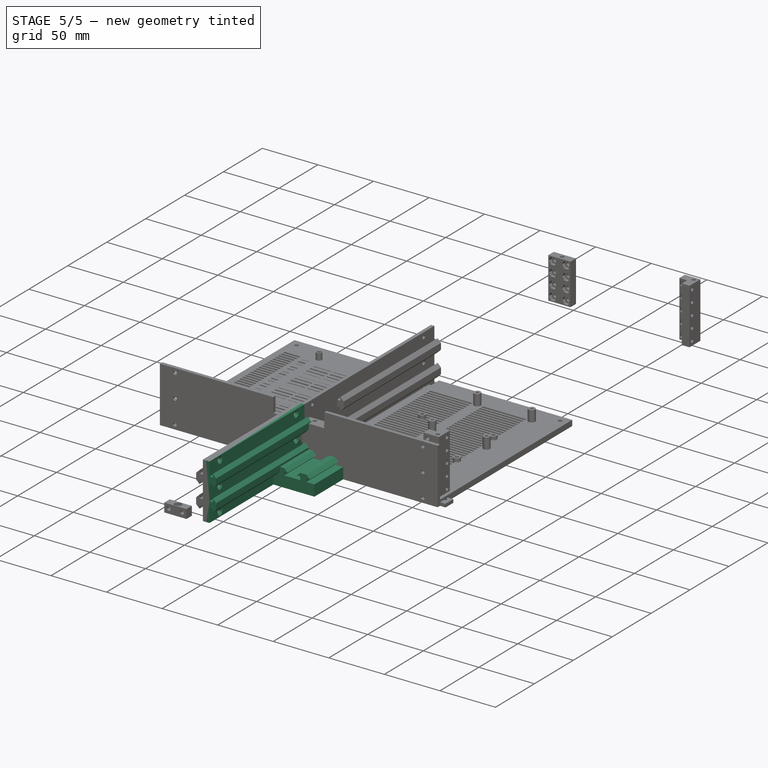
[diagram: stage 5 of 5 — iso view after this stage's code; geometry added in this stage tinted green]
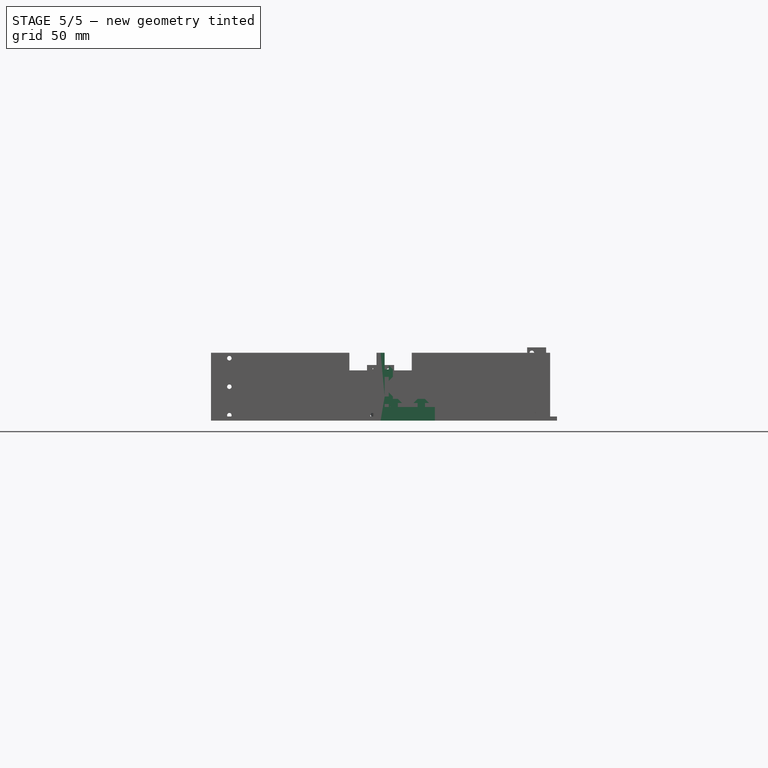
[diagram: stage 5 of 5 — front view after this stage's code; geometry added in this stage tinted green]
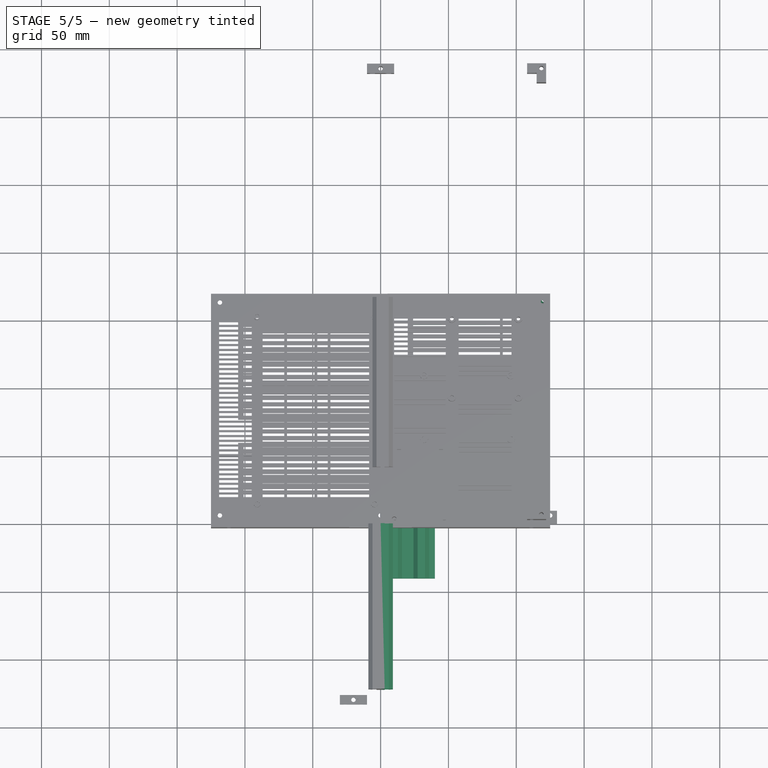
[diagram: stage 5 of 5 — top view after this stage's code; geometry added in this stage tinted green]
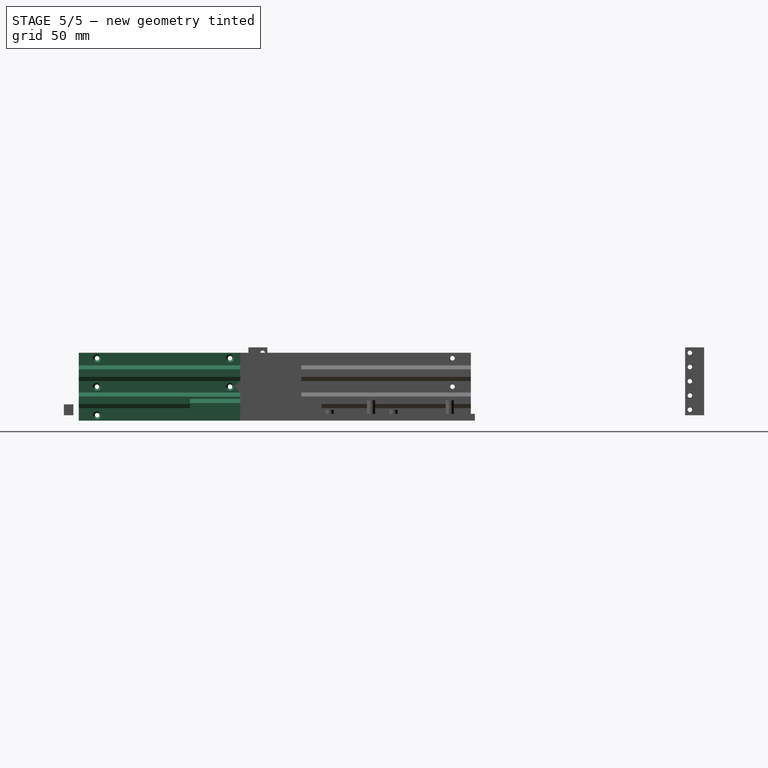
[diagram: stage 5 of 5 — right view after this stage's code; geometry added in this stage tinted green]
FEATURE [Sketcher::SketchObject] Sketch031  label="lid_right001"
  MapMode = 5
  Support = -> [XY_Plane003]
  sketch-geometry (5):
    g0: LineSegment StartX=20 StartY=0 StartZ=0 EndX=125 EndY=0 EndZ=0
    g1: LineSegment StartX=125 StartY=0 StartZ=0 EndX=125 EndY=170 EndZ=0
    g2: LineSegment StartX=125 StartY=170 StartZ=0 EndX=20 EndY=170 EndZ=0
    g3: LineSegment [constr] StartX=0 StartY=0 StartZ=0 EndX=20 EndY=0 EndZ=0
    g4: LineSegment StartX=20 StartY=170 StartZ=0 EndX=20 EndY=0 EndZ=0
  constraints (14):
    c: Coincident(g0,g1)
    c: Coincident(g1,g2)
    c: Horizontal(g0)
    c: Horizontal(g2)
    c: Vertical(g1)
    c: Distance(g1) = 170
    c: Distance(g0) = 105
    c: Horizontal(g3)
    c: Distance(g3) = 20
    c: Coincident(g3,g0)
    c: Coincident(g-1,g3)
    c: Vertical(g4)
    c: Coincident(g2,g4)
    c: Coincident(g0,g4)
FEATURE [PartDesign::Pad] Pad005  label="Pad_lid_right"
  Length = 3
  Length2 = 100
  Profile = -> Sketch031
  Type = 0
FEATURE [Sketcher::SketchObject] Sketch033  label="ventilation"
  ExternalGeometry = -> [Pad005]
  MapMode = 5
  Placement = pos=(0,0,3) rot=(0,0,1;0rad)
  sketch-geometry (16):
    g0: LineSegment StartX=24 StartY=20 StartZ=0 EndX=55 EndY=20 EndZ=0
    g1: LineSegment StartX=55 StartY=20 StartZ=0 EndX=55 EndY=22 EndZ=0
    g2: LineSegment StartX=55 StartY=22 StartZ=0 EndX=24 EndY=22 EndZ=0
    g3: LineSegment StartX=24 StartY=22 StartZ=0 EndX=24 EndY=20 EndZ=0
    g4: LineSegment StartX=57 StartY=20 StartZ=0 EndX=88 EndY=20 EndZ=0
    g5: LineSegment StartX=88 StartY=20 StartZ=0 EndX=88 EndY=22 EndZ=0
    g6: LineSegment StartX=88 StartY=22 StartZ=0 EndX=57 EndY=22 EndZ=0
    g7: LineSegment StartX=57 StartY=22 StartZ=0 EndX=57 EndY=20 EndZ=0
    g8: LineSegment StartX=90 StartY=20 StartZ=0 EndX=121 EndY=20 EndZ=0
    g9: LineSegment StartX=121 StartY=20 StartZ=0 EndX=121 EndY=22 EndZ=0
    g10: LineSegment StartX=121 StartY=22 StartZ=0 EndX=90 EndY=22 EndZ=0
    g11: LineSegment StartX=90 StartY=22 StartZ=0 EndX=90 EndY=20 EndZ=0
    g12: LineSegment [constr] StartX=55 StartY=22 StartZ=0 EndX=57 EndY=22 EndZ=0
    g13: LineSegment [constr] StartX=88 StartY=22 StartZ=0 EndX=90 EndY=22 EndZ=0
    g14: LineSegment [constr] StartX=20 StartY=22 StartZ=0 EndX=24 EndY=22 EndZ=0
    g15: LineSegment [constr] StartX=121 StartY=22 StartZ=0 EndX=125 EndY=22 EndZ=0
  constraints (46):
    c: Coincident(g0,g1)
    c: Coincident(g1,g2)
    c: Coincident(g2,g3)
    c: Coincident(g3,g0)
    c: Horizontal(g0)
    c: Horizontal(g2)
    c: Vertical(g1)
    c: Vertical(g3)
    c: Coincident(g4,g5)
    c: Coincident(g5,g6)
    c: Coincident(g6,g7)
    c: Coincident(g7,g4)
    c: Horizontal(g4)
    c: Horizontal(g6)
    c: Vertical(g5)
    c: Vertical(g7)
    c: Coincident(g8,g9)
    c: Coincident(g9,g10)
    c: Coincident(g10,g11)
    c: Coincident(g11,g8)
    c: Horizontal(g8)
    c: Horizontal(g10)
    c: Vertical(g9)
    c: Vertical(g11)
    c: Equal(g1,g7)
    c: Equal(g7,g11)
    c: Equal(g2,g6)
    c: Equal(g6,g10)
    c: Equal(g13,g12)
    c: Horizontal(g12)
    c: Horizontal(g13)
    c: Distance(g12) = 2
    c: Distance(g9) = 2
    c: Coincident(g12,g1)
    c: Coincident(g6,g12)
    c: Coincident(g13,g5)
    c: Coincident(g13,g10)
    c: Horizontal(g15)
    c: Coincident(g15,g9)
    c: Distance(g15) = 4
    c: Horizontal(g14)
    c: Distance(g14) = 4
    c: Coincident(g14,g2)
    c: PointOnObject(g15,g-4)
    c: PointOnObject(g14,g-3)
    c: DistanceY(g-3,g0) = 20
FEATURE [PartDesign::Pocket] Pocket006  label="Pocket_ventilation"
  BaseFeature = -> Pad005
  Length = 5
  Length2 = 100
  Profile = -> Sketch033
  Type = 1
FEATURE [PartDesign::LinearPattern] LinearPattern002
  BaseFeature = -> Pocket006
  Direction = -> Y_Axis003
  Length = 130
  Occurrences = 27
  Originals = -> [Pocket006]
FEATURE [Sketcher::SketchObject] Sketch042  label="lid_left001"
  MapMode = 5
  Support = -> [XY_Plane006]
  sketch-geometry (8):
    g0: LineSegment StartX=0 StartY=0 StartZ=0 EndX=-105 EndY=0 EndZ=0
    g1: LineSegment StartX=-105 StartY=0 StartZ=0 EndX=-105 EndY=170 EndZ=0
    g2: LineSegment StartX=-105 StartY=170 StartZ=0 EndX=0 EndY=170 EndZ=0
    g3: LineSegment StartX=0 StartY=170 StartZ=0 EndX=0 EndY=0 EndZ=0
    g4: LineSegment [constr] StartX=-105 StartY=0 StartZ=0 EndX=20 EndY=0 EndZ=0
    g5: LineSegment [constr] StartX=20 StartY=0 StartZ=0 EndX=20 EndY=170 EndZ=0
    g6: LineSegment [constr] StartX=20 StartY=170 StartZ=0 EndX=-105 EndY=170 EndZ=0
    g7: LineSegment [constr] StartX=-105 StartY=170 StartZ=0 EndX=-105 EndY=0 EndZ=0
  constraints (22):
    c: Coincident(g0,g1)
    c: Coincident(g1,g2)
    c: Coincident(g2,g3)
    c: Coincident(g3,g0)
    c: Horizontal(g2)
    c: Vertical(g1)
    c: Vertical(g3)
    c: Distance(g1) = 170
    c: Coincident(g0,g-1)
    c: Coincident(g4,g5)
    c: Coincident(g5,g6)
    c: Coincident(g6,g7)
    c: Coincident(g7,g4)
    c: Horizontal(g4)
    c: Horizontal(g6)
    c: Vertical(g5)
    c: Vertical(g7)
    c: Equal(g1,g7)
    c: DistanceX(g6,g6) = 125
    c: Coincident(g0,g4)
    c: Distance(g0,g4) = 20
    c: Horizontal(g0)
FEATURE [PartDesign::Pad] Pad010
  Length = 3
  Length2 = 100
  Profile = -> Sketch042
  Type = 0
FEATURE [Sketcher::SketchObject] Sketch044  label="ventilation_left"
  MapMode = 5
  Placement = pos=(0,0,3) rot=(0,0,1;0rad)
  sketch-geometry (16):
    g0: LineSegment StartX=-101 StartY=22 StartZ=0 EndX=-71 EndY=22 EndZ=0
    g1: LineSegment StartX=-71 StartY=22 StartZ=0 EndX=-71 EndY=20 EndZ=0
    g2: LineSegment StartX=-71 StartY=20 StartZ=0 EndX=-101 EndY=20 EndZ=0
    g3: LineSegment StartX=-101 StartY=20 StartZ=0 EndX=-101 EndY=22 EndZ=0
    g4: LineSegment StartX=-69 StartY=22 StartZ=0 EndX=-39 EndY=22 EndZ=0
    g5: LineSegment StartX=-39 StartY=22 StartZ=0 EndX=-39 EndY=20 EndZ=0
    g6: LineSegment StartX=-39 StartY=20 StartZ=0 EndX=-69 EndY=20 EndZ=0
    g7: LineSegment StartX=-69 StartY=20 StartZ=0 EndX=-69 EndY=22 EndZ=0
    g8: LineSegment StartX=-37 StartY=22 StartZ=0 EndX=-7 EndY=22 EndZ=0
    g9: LineSegment StartX=-7 StartY=22 StartZ=0 EndX=-7 EndY=20 EndZ=0
    g10: LineSegment StartX=-7 StartY=20 StartZ=0 EndX=-37 EndY=20 EndZ=0
    g11: LineSegment StartX=-37 StartY=20 StartZ=0 EndX=-37 EndY=22 EndZ=0
    g12: LineSegment [constr] StartX=-71 StartY=20 StartZ=0 EndX=-69 EndY=20 EndZ=0
    g13: LineSegment [constr] StartX=-39 StartY=20 StartZ=0 EndX=-37 EndY=20 EndZ=0
    g14: LineSegment [constr] StartX=-105 StartY=20 StartZ=0 EndX=-101 EndY=20 EndZ=0
    g15: LineSegment [constr] StartX=-7 StartY=20 StartZ=0 EndX=0 EndY=20 EndZ=0
  constraints (43):
    c: Coincident(g0,g1)
    c: Coincident(g1,g2)
    c: Coincident(g2,g3)
    c: Coincident(g3,g0)
    c: Horizontal(g0)
    c: Horizontal(g2)
    c: Vertical(g1)
    c: Vertical(g3)
    c: Coincident(g4,g5)
    c: Coincident(g5,g6)
    c: Coincident(g6,g7)
    c: Coincident(g7,g4)
    c: Horizontal(g4)
    c: Horizontal(g6)
    c: Vertical(g5)
    c: Vertical(g7)
    c: Coincident(g8,g9)
    c: Coincident(g9,g10)
    c: Coincident(g10,g11)
    c: Coincident(g11,g8)
    c: Horizontal(g8)
    c: Horizontal(g10)
    c: Vertical(g9)
    c: Vertical(g11)
    c: Horizontal(g12)
    c: Horizontal(g13)
    c: Distance(g12) = 2
    c: Equal(g13,g12)
    c: Coincident(g12,g1)
    c: Coincident(g6,g12)
    c: Coincident(g5,g13)
    c: Coincident(g10,g13)
    c: Equal(g2,g6)
    c: Equal(g6,g10)
    c: Equal(g1,g7)
    c: Equal(g7,g11)
    c: Distance(g3) = 2
    c: Horizontal(g15)
    c: Coincident(g15,g9)
    c: Distance(g15) = 7
    c: Horizontal(g14)
    c: Distance(g14) = 4
    c: Coincident(g14,g2)
FEATURE [PartDesign::Pocket] Pocket012
  BaseFeature = -> Pad010
  Length = 5
  Length2 = 100
  Profile = -> Sketch044
  Type = 0
FEATURE [PartDesign::LinearPattern] LinearPattern003
  BaseFeature = -> Pocket012
  Direction = -> Pocket012 [Edge7]
  Length = 130
  Occurrences = 27
  Originals = -> [Pocket012]
  Reversed = true
FEATURE [Sketcher::SketchObject] Sketch047  label="Board_standoffs"
  ExternalGeometry = -> [Pad006]
  MapMode = 5
  Placement = pos=(0,0,3) rot=(0,0,1;0rad)
  Support = -> [Pad006]
  sketch-geometry (12):
    g0: LineSegment [constr] StartX=-91 StartY=15 StartZ=0 EndX=-4.5 EndY=15 EndZ=0
    g1: LineSegment [constr] StartX=-4.5 StartY=15 StartZ=0 EndX=-4.5 EndY=153 EndZ=0
    g2: LineSegment [constr] StartX=-4.5 StartY=153 StartZ=0 EndX=-91 EndY=153 EndZ=0
    g3: LineSegment [constr] StartX=-91 StartY=153 StartZ=0 EndX=-91 EndY=15 EndZ=0
    g4: LineSegment [constr] StartX=-95 StartY=11 StartZ=0 EndX=0 EndY=11 EndZ=0
    g5: LineSegment [constr] StartX=0 StartY=11 StartZ=0 EndX=0 EndY=158 EndZ=0
    g6: LineSegment [constr] StartX=0 StartY=158 StartZ=0 EndX=-95 EndY=158 EndZ=0
    g7: LineSegment [constr] StartX=-95 StartY=158 StartZ=0 EndX=-95 EndY=11 EndZ=0
    g8: Circle CenterX=-91 CenterY=153 CenterZ=0 NormalX=0 NormalY=0 NormalZ=1 AngleXU=0 Radius=2.5
    g9: Circle CenterX=-4.5 CenterY=153 CenterZ=0 NormalX=0 NormalY=0 NormalZ=1 AngleXU=0 Radius=2.5
    g10: Circle CenterX=-91 CenterY=15 CenterZ=0 NormalX=0 NormalY=0 NormalZ=1 AngleXU=0 Radius=2.5
    g11: Circle CenterX=-4.5 CenterY=15 CenterZ=0 NormalX=0 NormalY=0 NormalZ=1 AngleXU=0 Radius=2.5
  constraints (32):
    c: Coincident(g0,g1)
    c: Coincident(g1,g2)
    c: Coincident(g2,g3)
    c: Coincident(g3,g0)
    c: Horizontal(g0)
    c: Horizontal(g2)
    c: Vertical(g1)
    c: Vertical(g3)
    c: Coincident(g4,g5)
    c: Coincident(g5,g6)
    c: Coincident(g6,g7)
    c: Coincident(g7,g4)
    c: Horizontal(g4)
    c: Horizontal(g6)
    c: Vertical(g5)
    c: Vertical(g7)
    c: Distance(g4) = 95
    c: Distance(g0) = 86.5
    c: Distance(g5) = 147
    c: Distance(g1) = 138
    c: DistanceX(g0,g4) = 4.5
    c: DistanceY(g4,g0) = 4
    c: Diameter(g8) = 5
    c: Equal(g9,g8)
    c: Equal(g8,g10)
    c: Equal(g10,g11)
    c: Coincident(g8,g2)
    c: Coincident(g9,g1)
    c: Coincident(g10,g0)
    c: Coincident(g11,g0)
    c: DistanceY(g-4,g10) = 15
    c: PointOnObject(g4,g-2)
FEATURE [Sketcher::SketchObject] Sketch052  label="y_axis_belt_tensioner_left"
  ExternalGeometry = -> [LinearPattern003]
  MapMode = 5
  Placement = pos=(0,0,3) rot=(0,0,1;0rad)
  Support = -> [LinearPattern003]
  sketch-geometry (4):
    g0: LineSegment StartX=-3 StartY=0 StartZ=0 EndX=0 EndY=0 EndZ=0
    g1: LineSegment StartX=0 StartY=0 StartZ=0 EndX=0 EndY=10 EndZ=0
    g2: LineSegment StartX=0 StartY=10 StartZ=0 EndX=-3 EndY=10 EndZ=0
    g3: LineSegment StartX=-3 StartY=10 StartZ=0 EndX=-3 EndY=0 EndZ=0
  constraints (11):
    c: Coincident(g0,g1)
    c: Coincident(g1,g2)
    c: Coincident(g2,g3)
    c: Coincident(g3,g0)
    c: Horizontal(g0)
    c: Horizontal(g2)
    c: Vertical(g1)
    c: Vertical(g3)
    c: Coincident(g-1,g0)
    c: Distance(g0) = 3
    c: Distance(g-3,g1) = 160
FEATURE [PartDesign::Pocket] Pocket018
  BaseFeature = -> LinearPattern003
  Length = 5
  Length2 = 100
  Profile = -> Sketch052
  Type = 2
FEATURE [Sketcher::SketchObject] Sketch059  label="y_axis_belt_tensioner_right"
  ExternalGeometry = -> [LinearPattern002]
  MapMode = 5
  Placement = pos=(0,0,3) rot=(0,0,1;0rad)
  sketch-geometry (4):
    g0: LineSegment StartX=20 StartY=0 StartZ=0 EndX=23 EndY=0 EndZ=0
    g1: LineSegment StartX=23 StartY=0 StartZ=0 EndX=23 EndY=10 EndZ=0
    g2: LineSegment StartX=23 StartY=10 StartZ=0 EndX=20 EndY=10 EndZ=0
    g3: LineSegment StartX=20 StartY=10 StartZ=0 EndX=20 EndY=0 EndZ=0
  constraints (11):
    c: Coincident(g0,g1)
    c: Coincident(g1,g2)
    c: Coincident(g2,g3)
    c: Coincident(g3,g0)
    c: Horizontal(g0)
    c: Horizontal(g2)
    c: Vertical(g1)
    c: Vertical(g3)
    c: Distance(g0) = 3
    c: Distance(g1) = 10
    c: Coincident(g-3,g0)
FEATURE [PartDesign::Pocket] Pocket022
  BaseFeature = -> LinearPattern002
  Length = 5
  Length2 = 100
  Profile = -> Sketch059
  Type = 1
FEATURE [Sketcher::SketchObject] Sketch102
  MapMode = 5
  Support = -> [XY_Plane011]
  sketch-geometry (4):
    g0: LineSegment StartX=0 StartY=0 StartZ=0 EndX=102 EndY=0 EndZ=0
    g1: LineSegment StartX=102 StartY=0 StartZ=0 EndX=102 EndY=125 EndZ=0
    g2: LineSegment StartX=102 StartY=125 StartZ=0 EndX=0 EndY=125 EndZ=0
    g3: LineSegment StartX=0 StartY=125 StartZ=0 EndX=0 EndY=0 EndZ=0
  constraints (11):
    c: Coincident(g0,g1)
    c: Coincident(g1,g2)
    c: Coincident(g2,g3)
    c: Coincident(g3,g0)
    c: Horizontal(g0)
    c: Horizontal(g2)
    c: Vertical(g1)
    c: Vertical(g3)
    c: Distance(g0) = 102
    c: Distance(g1) = 125
    c: Coincident(g-1,g0)
FEATURE [PartDesign::Pad] Pad035
  Length = 3
  Length2 = 100
  Profile = -> Sketch102
  Type = 0
FEATURE [Sketcher::SketchObject] Sketch103
  ExternalGeometry = -> [Pad035]
  MapMode = 5
  Placement = pos=(0,0,3) rot=(0,0,1;0rad)
  Support = -> [Pad035]
  sketch-geometry (2):
    g0: Circle CenterX=95.5 CenterY=6.5 CenterZ=0 NormalX=0 NormalY=0 NormalZ=1 AngleXU=0 Radius=1.5
    g1: Circle CenterX=95.5 CenterY=118.5 CenterZ=0 NormalX=0 NormalY=0 NormalZ=1 AngleXU=0 Radius=1.5
  constraints (6):
    c: Diameter(g0) = 3
    c: DistanceX(g0,g-4) = 6.5
    c: DistanceY(g-4,g0) = 6.5
    c: Diameter(g1) = 3
    c: DistanceX(g1,g-4) = 6.5
    c: DistanceY(g1,g-4) = 6.5
FEATURE [PartDesign::Hole] Hole013
  BaseFeature = -> Pad035
  Depth = 25
  DepthType = 0
  Diameter = 3.3
  DrillPoint = 1
  DrillPointAngle = 118
  HoleCutCountersinkAngle = 90
  HoleCutDepth = 0
  HoleCutDiameter = 6
  HoleCutType = 2
  ModelActualThread = false
  Profile = -> Sketch103
  Tapered = false
  TaperedAngle = 90
  ThreadAngle = 0
  ThreadClass = 0
  ThreadCutOffInner = 0
  ThreadCutOffOuter = 0
  ThreadDirection = 0
  ThreadFit = 0
  ThreadPitch = 0
  ThreadSize = 3
  ThreadType = 1
  Threaded = false
FEATURE [Sketcher::SketchObject] Sketch104
  ExternalGeometry = -> [Hole013]
  MapMode = 5
  Placement = pos=(0,0,3) rot=(0,0,1;0rad)
  Support = -> [Hole013]
  sketch-geometry (16):
    g0: LineSegment StartX=5 StartY=15 StartZ=0 EndX=34.3333 EndY=15 EndZ=0
    g1: LineSegment StartX=34.3333 StartY=15 StartZ=0 EndX=34.3333 EndY=13 EndZ=0
    g2: LineSegment StartX=34.3333 StartY=13 StartZ=0 EndX=5 EndY=13 EndZ=0
    g3: LineSegment StartX=5 StartY=13 StartZ=0 EndX=5 EndY=15 EndZ=0
    g4: LineSegment StartX=36.3333 StartY=15 StartZ=0 EndX=65.6667 EndY=15 EndZ=0
    g5: LineSegment StartX=65.6667 StartY=15 StartZ=0 EndX=65.6667 EndY=13 EndZ=0
    g6: LineSegment StartX=65.6667 StartY=13 StartZ=0 EndX=36.3333 EndY=13 EndZ=0
    g7: LineSegment StartX=36.3333 StartY=13 StartZ=0 EndX=36.3333 EndY=15 EndZ=0
    g8: LineSegment StartX=67.6667 StartY=15 StartZ=0 EndX=97 EndY=15 EndZ=0
    g9: LineSegment StartX=97 StartY=15 StartZ=0 EndX=97 EndY=13 EndZ=0
    g10: LineSegment StartX=97 StartY=13 StartZ=0 EndX=67.6667 EndY=13 EndZ=0
    g11: LineSegment StartX=67.6667 StartY=13 StartZ=0 EndX=67.6667 EndY=15 EndZ=0
    g12: LineSegment [constr] StartX=0 StartY=15 StartZ=0 EndX=5 EndY=15 EndZ=0
    g13: LineSegment [constr] StartX=34.3333 StartY=15 StartZ=0 EndX=36.3333 EndY=15 EndZ=0
    g14: LineSegment [constr] StartX=65.6667 StartY=15 StartZ=0 EndX=67.6667 EndY=15 EndZ=0
    g15: LineSegment [constr] StartX=97 StartY=15 StartZ=0 EndX=102 EndY=15 EndZ=0
  constraints (46):
    c: Coincident(g0,g1)
    c: Coincident(g1,g2)
    c: Coincident(g2,g3)
    c: Coincident(g3,g0)
    c: Horizontal(g0)
    c: Horizontal(g2)
    c: Vertical(g1)
    c: Vertical(g3)
    c: Coincident(g4,g5)
    c: Coincident(g5,g6)
    c: Coincident(g6,g7)
    c: Coincident(g7,g4)
    c: Horizontal(g4)
    c: Horizontal(g6)
    c: Vertical(g5)
    c: Vertical(g7)
    c: Coincident(g8,g9)
    c: Coincident(g9,g10)
    c: Coincident(g10,g11)
    c: Coincident(g11,g8)
    c: Horizontal(g8)
    c: Horizontal(g10)
    c: Vertical(g9)
    c: Vertical(g11)
    c: Horizontal(g14)
    c: Horizontal(g13)
    c: Equal(g13,g14)
    c: Distance(g13) = 2
    c: Coincident(g0,g13)
    c: Coincident(g13,g4)
    c: Coincident(g14,g4)
    c: Coincident(g14,g8)
    c: Equal(g3,g7)
    c: Equal(g7,g11)
    c: Distance(g3) = 2
    c: Equal(g12,g15)
    c: Horizontal(g12)
    c: Horizontal(g15)
    c: Coincident(g12,g0)
    c: Coincident(g15,g8)
    c: PointOnObject(g15,g-3)
    c: PointOnObject(g12,g-2)
    c: Distance(g12) = 5
    c: DistanceY(g-1,g12) = 15
    c: Equal(g4,g8)
    c: Equal(g8,g0)
FEATURE [PartDesign::Pocket] Pocket036
  BaseFeature = -> Hole013
  Length = 5
  Length2 = 100
  Profile = -> Sketch104
  Type = 0
FEATURE [Sketcher::SketchObject] Sketch106
  ExternalGeometry = -> [Pocket022]
  MapMode = 5
  Placement = pos=(0,0,3) rot=(0,0,1;0rad)
  sketch-geometry (5):
    g0: LineSegment StartX=125 StartY=60 StartZ=0 EndX=115 EndY=60 EndZ=0
    g1: LineSegment StartX=115 StartY=60 StartZ=0 EndX=115 EndY=77 EndZ=0
    g2: LineSegment StartX=115 StartY=77 StartZ=0 EndX=121 EndY=77 EndZ=0
    g3: LineSegment StartX=121 StartY=77 StartZ=0 EndX=125 EndY=77 EndZ=0
    g4: LineSegment StartX=125 StartY=77 StartZ=0 EndX=125 EndY=60 EndZ=0
  constraints (14):
    c: Coincident(g0,g1)
    c: Coincident(g1,g2)
    c: Horizontal(g0)
    c: Horizontal(g2)
    c: Vertical(g1)
    c: Distance(g2) = 6
    c: Coincident(g3,g4)
    c: Coincident(g3,g2)
    c: Horizontal(g3)
    c: Vertical(g4)
    c: Coincident(g0,g4)
    c: PointOnObject(g3,g-3)
    c: Coincident(g2,g-4)
    c: PointOnObject(g0,g-5)
FEATURE [PartDesign::Pocket] Pocket037
  BaseFeature = -> Pocket022
  Length = 5
  Length2 = 100
  Profile = -> Sketch106
  Type = 1
FEATURE [Sketcher::SketchObject] Sketch107
  ExternalGeometry = -> [Pocket037]
  MapMode = 5
  Placement = pos=(0,0,3) rot=(0,0,1;0rad)
  sketch-geometry (16):
    g0: LineSegment StartX=113 StartY=77 StartZ=0 EndX=115 EndY=77 EndZ=0
    g1: LineSegment StartX=115 StartY=77 StartZ=0 EndX=115 EndY=75 EndZ=0
    g2: LineSegment StartX=115 StartY=75 StartZ=0 EndX=113 EndY=75 EndZ=0
    g3: LineSegment StartX=113 StartY=75 StartZ=0 EndX=113 EndY=77 EndZ=0
    g4: LineSegment StartX=113 StartY=72 StartZ=0 EndX=115 EndY=72 EndZ=0
    g5: LineSegment StartX=115 StartY=72 StartZ=0 EndX=115 EndY=70 EndZ=0
    g6: LineSegment StartX=115 StartY=70 StartZ=0 EndX=113 EndY=70 EndZ=0
    g7: LineSegment StartX=113 StartY=70 StartZ=0 EndX=113 EndY=72 EndZ=0
    g8: LineSegment StartX=113 StartY=67 StartZ=0 EndX=115 EndY=67 EndZ=0
    g9: LineSegment StartX=115 StartY=67 StartZ=0 EndX=115 EndY=65 EndZ=0
    g10: LineSegment StartX=115 StartY=65 StartZ=0 EndX=113 EndY=65 EndZ=0
    g11: LineSegment StartX=113 StartY=65 StartZ=0 EndX=113 EndY=67 EndZ=0
    g12: LineSegment StartX=115 StartY=60 StartZ=0 EndX=113 EndY=60 EndZ=0
    g13: LineSegment StartX=113 StartY=60 StartZ=0 EndX=113 EndY=62 EndZ=0
    g14: LineSegment StartX=113 StartY=62 StartZ=0 EndX=115 EndY=62 EndZ=0
    g15: LineSegment StartX=115 StartY=62 StartZ=0 EndX=115 EndY=60 EndZ=0
  constraints (40):
    c: Coincident(g0,g1)
    c: Coincident(g1,g2)
    c: Coincident(g2,g3)
    c: Coincident(g3,g0)
    c: Horizontal(g0)
    c: Horizontal(g2)
    c: Coincident(g4,g5)
    c: Coincident(g5,g6)
    c: Coincident(g6,g7)
    c: Coincident(g7,g4)
    c: Horizontal(g4)
    c: Horizontal(g6)
    c: Coincident(g8,g9)
    c: Coincident(g9,g10)
    c: Coincident(g10,g11)
    c: Coincident(g11,g8)
    c: Horizontal(g8)
    c: Horizontal(g10)
    c: Equal(g0,g3)
    c: Equal(g4,g7)
    c: Equal(g8,g11)
    c: Coincident(g0,g-9)
    c: Coincident(g1,g-3)
    c: Vertical(g3)
    c: Coincident(g8,g-6)
    c: Coincident(g9,g-7)
    c: Vertical(g11)
    c: Coincident(g4,g-4)
    c: Coincident(g5,g-5)
    c: Vertical(g7)
    c: Coincident(g12,g13)
    c: Coincident(g13,g14)
    c: Coincident(g14,g15)
    c: Coincident(g15,g12)
    c: Horizontal(g12)
    c: Horizontal(g14)
    c: Vertical(g13)
    c: Equal(g14,g13)
    c: Coincident(g-10,g12)
    c: Coincident(g-8,g14)
FEATURE [PartDesign::Pad] Pad037
  BaseFeature = -> Pocket037
  Length = 3
  Length2 = 100
  Profile = -> Sketch107
  Reversed = true
  Type = 0
FEATURE [Sketcher::SketchObject] Sketch108
  MapMode = 5
  Placement = pos=(0,0,3) rot=(0,0,1;0rad)
  sketch-geometry (4):
    g0: LineSegment StartX=-105 StartY=60 StartZ=0 EndX=-95 EndY=60 EndZ=0
    g1: LineSegment StartX=-95 StartY=60 StartZ=0 EndX=-95 EndY=77 EndZ=0
    g2: LineSegment StartX=-95 StartY=77 StartZ=0 EndX=-105 EndY=77 EndZ=0
    g3: LineSegment StartX=-105 StartY=77 StartZ=0 EndX=-105 EndY=60 EndZ=0
  constraints (9):
    c: Coincident(g0,g1)
    c: Coincident(g1,g2)
    c: Horizontal(g0)
    c: Horizontal(g2)
    c: Vertical(g1)
    c: Distance(g2) = 10
    c: Coincident(g0,g3)
    c: Coincident(g2,g3)
    c: Vertical(g3)
FEATURE [PartDesign::Pocket] Pocket038
  BaseFeature = -> Pocket018
  Length = 5
  Length2 = 100
  Profile = -> Sketch108
  Type = 1
FEATURE [Sketcher::SketchObject] Sketch109
  ExternalGeometry = -> [Pocket038]
  MapMode = 5
  Placement = pos=(0,0,3) rot=(0,0,1;0rad)
  Support = -> [Pocket038]
  sketch-geometry (16):
    g0: LineSegment StartX=-95 StartY=75 StartZ=0 EndX=-93 EndY=75 EndZ=0
    g1: LineSegment StartX=-93 StartY=75 StartZ=0 EndX=-93 EndY=77 EndZ=0
    g2: LineSegment StartX=-93 StartY=77 StartZ=0 EndX=-95 EndY=77 EndZ=0
    g3: LineSegment StartX=-95 StartY=77 StartZ=0 EndX=-95 EndY=75 EndZ=0
    g4: LineSegment StartX=-95 StartY=70 StartZ=0 EndX=-93 EndY=70 EndZ=0
    g5: LineSegment StartX=-93 StartY=70 StartZ=0 EndX=-93 EndY=72 EndZ=0
    g6: LineSegment StartX=-93 StartY=72 StartZ=0 EndX=-95 EndY=72 EndZ=0
    g7: LineSegment StartX=-95 StartY=72 StartZ=0 EndX=-95 EndY=70 EndZ=0
    g8: LineSegment StartX=-95 StartY=65 StartZ=0 EndX=-93 EndY=65 EndZ=0
    g9: LineSegment StartX=-93 StartY=65 StartZ=0 EndX=-93 EndY=67 EndZ=0
    g10: LineSegment StartX=-93 StartY=67 StartZ=0 EndX=-95 EndY=67 EndZ=0
    g11: LineSegment StartX=-95 StartY=67 StartZ=0 EndX=-95 EndY=65 EndZ=0
    g12: LineSegment StartX=-95 StartY=60 StartZ=0 EndX=-93 EndY=60 EndZ=0
    g13: LineSegment StartX=-93 StartY=60 StartZ=0 EndX=-93 EndY=62 EndZ=0
    g14: LineSegment StartX=-93 StartY=62 StartZ=0 EndX=-95 EndY=62 EndZ=0
    g15: LineSegment StartX=-95 StartY=62 StartZ=0 EndX=-95 EndY=60 EndZ=0
  constraints (40):
    c: Coincident(g0,g1)
    c: Coincident(g1,g2)
    c: Coincident(g2,g3)
    c: Coincident(g3,g0)
    c: Horizontal(g0)
    c: Horizontal(g2)
    c: Vertical(g1)
    c: Coincident(g4,g5)
    c: Coincident(g5,g6)
    c: Coincident(g6,g7)
    c: Coincident(g7,g4)
    c: Horizontal(g4)
    c: Horizontal(g6)
    c: Vertical(g5)
    c: Coincident(g8,g9)
    c: Coincident(g9,g10)
    c: Coincident(g10,g11)
    c: Coincident(g11,g8)
    c: Horizontal(g8)
    c: Horizontal(g10)
    c: Vertical(g9)
    c: Coincident(g12,g13)
    c: Coincident(g13,g14)
    c: Coincident(g14,g15)
    c: Coincident(g15,g12)
    c: Horizontal(g12)
    c: Horizontal(g14)
    c: Vertical(g13)
    c: Equal(g2,g3)
    c: Equal(g6,g7)
    c: Equal(g10,g11)
    c: Equal(g14,g15)
    c: Coincident(g14,g-8)
    c: Coincident(g12,g-9)
    c: Coincident(g-6,g10)
    c: Coincident(g8,g-7)
    c: Coincident(g4,g-5)
    c: Coincident(g6,g-4)
    c: Coincident(g0,g-3)
    c: Coincident(g2,g-10)
FEATURE [PartDesign::Pad] Pad038
  BaseFeature = -> Pocket038
  Length = 3
  Length2 = 100
  Profile = -> Sketch109
  Reversed = true
  Type = 0
FEATURE [PartDesign::Pocket] Pocket039
  BaseFeature = -> Pocket036
  Length = 5
  Length2 = 100
  Profile = -> Sketch104
  Type = 1
FEATURE [PartDesign::LinearPattern] LinearPattern004
  BaseFeature = -> Pocket039
  Direction = -> Sketch104 [V_Axis]
  Length = 100
  Occurrences = 25
  Originals = -> [Pocket039]
FEATURE [PartDesign::Body] Body011  label="Back_right_compartment_lid"
  Group = -> [Sketch102,Pad035,Sketch103,Hole013,Sketch104,Pocket036,Pocket039,LinearPattern004]
  Origin = -> Origin011
  Placement = pos=(23,217,52) rot=(0,0,1;0rad)
  Tip = -> LinearPattern004
FEATURE [Sketcher::SketchObject] Sketch114
  MapMode = 5
  Placement = pos=(0,0,0) rot=(1,0,0;1.5708rad)
  Support = -> [XZ_Plane012]
  sketch-geometry (30):
    g0: LineSegment StartX=0 StartY=0 StartZ=0 EndX=0 EndY=10 EndZ=0
    g1: LineSegment StartX=0 StartY=10 StartZ=0 EndX=7.25 EndY=10 EndZ=0
    g2: LineSegment StartX=7.25 StartY=10 StartZ=0 EndX=7.25 EndY=13 EndZ=0
    g3: LineSegment StartX=7.25 StartY=13 StartZ=0 EndX=4.25 EndY=13 EndZ=0
    g4: LineSegment StartX=4.25 StartY=13 StartZ=0 EndX=7.25 EndY=16 EndZ=0
    g5: LineSegment StartX=7.25 StartY=16 StartZ=0 EndX=12.75 EndY=16 EndZ=0
    g6: LineSegment StartX=12.75 StartY=16 StartZ=0 EndX=15.75 EndY=13 EndZ=0
    g7: LineSegment StartX=15.75 StartY=13 StartZ=0 EndX=12.75 EndY=13 EndZ=0
    g8: LineSegment StartX=12.75 StartY=13 StartZ=0 EndX=12.75 EndY=10 EndZ=0
    g9: LineSegment StartX=12.75 StartY=10 StartZ=0 EndX=27.25 EndY=10 EndZ=0
    g10: LineSegment StartX=27.25 StartY=10 StartZ=0 EndX=27.25 EndY=13 EndZ=0
    g11: LineSegment StartX=27.25 StartY=13 StartZ=0 EndX=24.25 EndY=13 EndZ=0
    g12: LineSegment StartX=24.25 StartY=13 StartZ=0 EndX=27.25 EndY=16 EndZ=0
    g13: LineSegment StartX=27.25 StartY=16 StartZ=0 EndX=32.75 EndY=16 EndZ=0
    g14: LineSegment StartX=32.75 StartY=16 StartZ=0 EndX=35.75 EndY=13 EndZ=0
    g15: LineSegment StartX=35.75 StartY=13 StartZ=0 EndX=32.75 EndY=13 EndZ=0
    g16: LineSegment StartX=32.75 StartY=13 StartZ=0 EndX=32.75 EndY=10 EndZ=0
    g17: LineSegment StartX=32.75 StartY=10 StartZ=0 EndX=40 EndY=10 EndZ=0
    g18: LineSegment StartX=40 StartY=10 StartZ=0 EndX=40 EndY=-1.42e-14 EndZ=0
    g19: LineSegment StartX=40 StartY=-1.42e-14 StartZ=0 EndX=0 EndY=0 EndZ=0
    g20: LineSegment [constr] StartX=7.25 StartY=10 StartZ=0 EndX=12.75 EndY=10 EndZ=0
    g21: LineSegment [constr] StartX=27.25 StartY=10 StartZ=0 EndX=32.75 EndY=10 EndZ=0
    g22: LineSegment [constr] StartX=0 StartY=10 StartZ=0 EndX=10 EndY=10 EndZ=0
    g23: LineSegment [constr] StartX=10 StartY=10 StartZ=0 EndX=20 EndY=10 EndZ=0
    g24: LineSegment [constr] StartX=20 StartY=10 StartZ=0 EndX=30 EndY=10 EndZ=0
    g25: LineSegment [constr] StartX=30 StartY=10 StartZ=0 EndX=40 EndY=10 EndZ=0
    g26: LineSegment [constr] StartX=7.25 StartY=10 StartZ=0 EndX=10 EndY=10 EndZ=0
    g27: LineSegment [constr] StartX=10 StartY=10 StartZ=0 EndX=12.75 EndY=10 EndZ=0
    g28: LineSegment [constr] StartX=27.25 StartY=10 StartZ=0 EndX=30 EndY=10 EndZ=0
    g29: LineSegment [constr] StartX=30 StartY=10 StartZ=0 EndX=32.75 EndY=10 EndZ=0
  constraints (72):
    c: Perpendicular(g0,g1) = 4.71239
    c: Coincident(g1,g2)
    c: Perpendicular(g2,g3) = 1.5708
    c: Coincident(g3,g4)
    c: Coincident(g4,g5)
    c: Coincident(g5,g6)
    c: Coincident(g6,g7)
    c: Perpendicular(g7,g8) = 1.5708
    c: Perpendicular(g8,g9) = 1.5708
    c: Perpendicular(g9,g10) = 1.5708
    c: Perpendicular(g10,g11) = 1.5708
    c: Coincident(g11,g12)
    c: Coincident(g12,g13)
    c: Coincident(g13,g14)
    c: Coincident(g14,g15)
    c: Perpendicular(g15,g16) = 1.5708
    c: Perpendicular(g16,g17) = 1.5708
    c: Perpendicular(g17,g18) = 4.71239
    c: Perpendicular(g18,g19) = 4.71239
    c: Coincident(g19,g0)
    c: Vertical(g0)
    c: Horizontal(g9)
    c: Horizontal(g17)
    c: Equal(g0,g18)
    c: Horizontal(g5)
    c: Perpendicular(g1,g2)
    c: Horizontal(g21)
    c: Distance(g20) = 5.5
    c: Coincident(g1,g20)
    c: Coincident(g8,g20)
    c: Equal(g20,g5)
    c: Equal(g8,g2)
    c: Equal(g3,g7)
    c: Angle(g3,g4) = 0.785398
    c: Angle(g6,g7) = 0.785398
    c: DistanceY(g2,g4) = 3
    c: Coincident(g9,g21)
    c: Coincident(g21,g16)
    c: Equal(g13,g21)
    c: Equal(g21,g20)
    c: Angle(g11,g12) = 0.785398
    c: Angle(g14,g15) = 0.785398
    c: Horizontal(g13)
    c: DistanceY(g10,g12) = 3
    c: Equal(g10,g16)
    c: Equal(g11,g15)
    c: Distance(g10) = 3
    c: Coincident(g22,g23)
    c: Coincident(g23,g24)
    c: Coincident(g24,g25)
    c: Equal(g22,g23)
    c: Equal(g23,g24)
    c: Equal(g24,g25)
    c: Coincident(g26,g27)
    c: Coincident(g28,g29)
    c: Coincident(g26,g1)
    c: Coincident(g27,g8)
    c: Equal(g27,g26)
    c: Horizontal(g27)
    c: Coincident(g26,g22)
    c: Coincident(g28,g9)
    c: Coincident(g29,g16)
    c: Equal(g28,g29)
    c: Horizontal(g29)
    c: Coincident(g28,g24)
    c: Coincident(g22,g0)
    c: Coincident(g25,g17)
    c: Horizontal(g24)
    c: Distance(g18) = 10
    c: Coincident(g0,g-1)
    c: Distance(g19) = 40
    c: Equal(g8,g10)
FEATURE [PartDesign::Pad] Pad039
  Length = 40
  Length2 = 100
  Placement = pos=(0,0,0) rot=(1,0,0;1.5708rad)
  Profile = -> Sketch114
  Type = 0
FEATURE [Sketcher::SketchObject] Sketch136
  ExternalGeometry = -> [Pad037]
  MapMode = 5
  Placement = pos=(0,0,3) rot=(0,0,1;0rad)
  Support = -> [Pad037]
  sketch-geometry (10):
    g0: Circle CenterX=120.5 CenterY=165.5 CenterZ=0 NormalX=0 NormalY=0 NormalZ=1 AngleXU=0 Radius=1.5
    g1: LineSegment [constr] StartX=125 StartY=170 StartZ=0 EndX=118 EndY=170 EndZ=0
    g2: LineSegment [constr] StartX=118 StartY=170 StartZ=0 EndX=118 EndY=163 EndZ=0
    g3: LineSegment [constr] StartX=118 StartY=163 StartZ=0 EndX=125 EndY=163 EndZ=0
    g4: LineSegment [constr] StartX=125 StartY=163 StartZ=0 EndX=125 EndY=170 EndZ=0
    g5: Circle CenterX=120.5 CenterY=4.5 CenterZ=0 NormalX=0 NormalY=0 NormalZ=1 AngleXU=0 Radius=1.5
    g6: LineSegment [constr] StartX=125 StartY=7 StartZ=0 EndX=118 EndY=7 EndZ=0
    g7: LineSegment [constr] StartX=118 StartY=7 StartZ=0 EndX=118 EndY=0 EndZ=0
    g8: LineSegment [constr] StartX=118 StartY=0 StartZ=0 EndX=125 EndY=0 EndZ=0
    g9: LineSegment [constr] StartX=125 StartY=0 StartZ=0 EndX=125 EndY=7 EndZ=0
  constraints (28):
    c: Diameter(g0) = 3
    c: Coincident(g1,g2)
    c: Coincident(g2,g3)
    c: Coincident(g3,g4)
    c: Coincident(g4,g1)
    c: Horizontal(g1)
    c: Horizontal(g3)
    c: Vertical(g2)
    c: Vertical(g4)
    c: Equal(g2,g3)
    c: Distance(g4) = 7
    c: Coincident(g-3,g1)
    c: DistanceY(g2,g0) = 2.5
    c: DistanceX(g2,g0) = 2.5
    c: Equal(g0,g5) = 3
    c: Coincident(g6,g7)
    c: Coincident(g7,g8)
    c: Coincident(g8,g9)
    c: Coincident(g9,g6)
    c: Horizontal(g6)
    c: Horizontal(g8)
    c: Vertical(g7)
    c: Vertical(g9)
    c: Equal(g7,g8)
    c: Equal(g4,g9) = 7
    c: DistanceX(g7,g5) = 2.5
    c: DistanceY(g5,g6) = 2.5
    c: Coincident(g8,g-4)
FEATURE [PartDesign::Hole] Hole022
  BaseFeature = -> Pad037
  Depth = 25
  DepthType = 1
  Diameter = 3.3
  DrillPoint = 1
  DrillPointAngle = 118
  HoleCutCountersinkAngle = 90
  HoleCutDepth = 0
  HoleCutDiameter = 6
  HoleCutType = 2
  ModelActualThread = false
  Profile = -> Sketch136
  Tapered = false
  TaperedAngle = 90
  ThreadAngle = 0
  ThreadClass = 0
  ThreadCutOffInner = 0
  ThreadCutOffOuter = 0
  ThreadDirection = 0
  ThreadFit = 0
  ThreadPitch = 0
  ThreadSize = 3
  ThreadType = 1
  Threaded = false
FEATURE [PartDesign::Body] Body003  label="Front_right_compartment_lid"
  Group = -> [Sketch031,Pad005,Sketch033,Pocket006,LinearPattern002,Sketch059,Pocket022,Sketch106,Sketch107,Pocket037,Pad037,Sketch136,Hole022]
  Origin = -> Origin003
  Placement = pos=(0,0,54) rot=(0,0,1;0rad)
  Tip = -> Hole022
FEATURE [Sketcher::SketchObject] Sketch137
  ExternalGeometry = -> [Pad038]
  MapMode = 5
  Placement = pos=(0,0,3) rot=(0,0,1;0rad)
  Support = -> [Pad038]
  sketch-geometry (10):
    g0: LineSegment [constr] StartX=-105 StartY=0 StartZ=0 EndX=-98 EndY=0 EndZ=0
    g1: LineSegment [constr] StartX=-98 StartY=0 StartZ=0 EndX=-98 EndY=7 EndZ=0
    g2: LineSegment [constr] StartX=-98 StartY=7 StartZ=0 EndX=-105 EndY=7 EndZ=0
    g3: LineSegment [constr] StartX=-105 StartY=7 StartZ=0 EndX=-105 EndY=0 EndZ=0
    g4: Circle CenterX=-100.5 CenterY=4.5 CenterZ=0 NormalX=0 NormalY=0 NormalZ=1 AngleXU=0 Radius=1.5
    g5: LineSegment [constr] StartX=-105 StartY=163 StartZ=0 EndX=-98 EndY=163 EndZ=0
    g6: LineSegment [constr] StartX=-98 StartY=163 StartZ=0 EndX=-98 EndY=170 EndZ=0
    g7: LineSegment [constr] StartX=-98 StartY=170 StartZ=0 EndX=-105 EndY=170 EndZ=0
    g8: LineSegment [constr] StartX=-105 StartY=170 StartZ=0 EndX=-105 EndY=163 EndZ=0
    g9: Circle CenterX=-100.5 CenterY=165.5 CenterZ=0 NormalX=0 NormalY=0 NormalZ=1 AngleXU=0 Radius=1.5
  constraints (28):
    c: Coincident(g0,g1)
    c: Coincident(g1,g2)
    c: Coincident(g2,g3)
    c: Coincident(g3,g0)
    c: Horizontal(g0)
    c: Horizontal(g2)
    c: Vertical(g1)
    c: Vertical(g3)
    c: Equal(g0,g3)
    c: Coincident(g0,g-3)
    c: Distance(g0) = 7
    c: Diameter(g4) = 3
    c: DistanceX(g4,g1) = 2.5
    c: DistanceY(g4,g1) = 2.5
    c: Coincident(g5,g6)
    c: Coincident(g6,g7)
    c: Coincident(g7,g8)
    c: Coincident(g8,g5)
    c: Horizontal(g5)
    c: Horizontal(g7)
    c: Vertical(g6)
    c: Vertical(g8)
    c: Equal(g5,g8)
    c: Equal(g0,g5) = 7
    c: Equal(g4,g9) = 3
    c: DistanceX(g9,g6) = 2.5
    c: Coincident(g7,g-4)
    c: DistanceY(g5,g9) = 2.5
FEATURE [PartDesign::Hole] Hole
  BaseFeature = -> Pad038
  Depth = 25
  DepthType = 1
  Diameter = 3.3
  DrillPoint = 1
  DrillPointAngle = 118
  HoleCutCountersinkAngle = 90
  HoleCutDepth = 0
  HoleCutDiameter = 6
  HoleCutType = 2
  ModelActualThread = false
  Profile = -> Sketch137
  Tapered = false
  TaperedAngle = 90
  ThreadAngle = 0
  ThreadClass = 0
  ThreadCutOffInner = 0
  ThreadCutOffOuter = 0
  ThreadDirection = 0
  ThreadFit = 0
  ThreadPitch = 0
  ThreadSize = 3
  ThreadType = 1
  Threaded = false
FEATURE [Sketcher::SketchObject] Sketch150
  MapMode = 5
  Placement = pos=(0,0,0) rot=(1,0,0;1.5708rad)
  Support = -> [XZ_Plane015]
  sketch-geometry (33):
    g0: LineSegment StartX=0 StartY=0 StartZ=0 EndX=0 EndY=50 EndZ=0
    g1: LineSegment StartX=0 StartY=50 StartZ=0 EndX=3 EndY=50 EndZ=0
    g2: LineSegment StartX=3 StartY=50 StartZ=0 EndX=3 EndY=37.75 EndZ=0
    g3: LineSegment StartX=3 StartY=37.75 StartZ=0 EndX=6 EndY=37.75 EndZ=0
    g4: LineSegment StartX=6 StartY=37.75 StartZ=0 EndX=6 EndY=40.75 EndZ=0
    g5: LineSegment StartX=6 StartY=40.75 StartZ=0 EndX=9 EndY=37.75 EndZ=0
    g6: LineSegment StartX=9 StartY=37.75 StartZ=0 EndX=9 EndY=32.25 EndZ=0
    g7: LineSegment StartX=9 StartY=32.25 StartZ=0 EndX=6 EndY=29.25 EndZ=0
    g8: LineSegment StartX=6 StartY=29.25 StartZ=0 EndX=6 EndY=32.25 EndZ=0
    g9: LineSegment StartX=6 StartY=32.25 StartZ=0 EndX=3 EndY=32.25 EndZ=0
    g10: LineSegment StartX=3 StartY=32.25 StartZ=0 EndX=3 EndY=17.75 EndZ=0
    g11: LineSegment StartX=3 StartY=17.75 StartZ=0 EndX=6 EndY=17.75 EndZ=0
    g12: LineSegment StartX=6 StartY=17.75 StartZ=0 EndX=6 EndY=20.75 EndZ=0
    g13: LineSegment StartX=6 StartY=20.75 StartZ=0 EndX=9 EndY=17.75 EndZ=0
    g14: LineSegment StartX=9 StartY=17.75 StartZ=0 EndX=9 EndY=12.25 EndZ=0
    g15: LineSegment StartX=9 StartY=12.25 StartZ=0 EndX=6 EndY=9.25 EndZ=0
    g16: LineSegment StartX=6 StartY=9.25 StartZ=0 EndX=6 EndY=12.25 EndZ=0
    g17: LineSegment StartX=6 StartY=12.25 StartZ=0 EndX=3 EndY=12.25 EndZ=0
    g18: LineSegment StartX=3 StartY=12.25 StartZ=0 EndX=3 EndY=0 EndZ=0
    g19: LineSegment StartX=3 StartY=0 StartZ=0 EndX=0 EndY=0 EndZ=0
    g20: LineSegment [constr] StartX=6 StartY=12.25 StartZ=0 EndX=6 EndY=17.75 EndZ=0
    g21: LineSegment [constr] StartX=6 StartY=32.25 StartZ=0 EndX=6 EndY=37.75 EndZ=0
    g22: LineSegment [constr] StartX=6 StartY=37.75 StartZ=0 EndX=9 EndY=37.75 EndZ=0
    g23: LineSegment [constr] StartX=6 StartY=17.75 StartZ=0 EndX=9 EndY=17.75 EndZ=0
    g24: LineSegment [constr] StartX=3 StartY=12.25 StartZ=0 EndX=3 EndY=15 EndZ=0
    g25: LineSegment [constr] StartX=3 StartY=15 StartZ=0 EndX=3 EndY=17.75 EndZ=0
    g26: LineSegment [constr] StartX=3 StartY=32.25 StartZ=0 EndX=3 EndY=35 EndZ=0
    g27: LineSegment [constr] StartX=3 StartY=35 StartZ=0 EndX=3 EndY=37.75 EndZ=0
    g28: LineSegment [constr] StartX=3 StartY=45 StartZ=0 EndX=3 EndY=35 EndZ=0
    g29: LineSegment [constr] StartX=3 StartY=35 StartZ=0 EndX=3 EndY=15 EndZ=0
    g30: LineSegment [constr] StartX=3 StartY=15 StartZ=0 EndX=3 EndY=5 EndZ=0
    g31: LineSegment [constr] StartX=3 StartY=0 StartZ=0 EndX=3 EndY=5 EndZ=0
    g32: LineSegment [constr] StartX=3 StartY=45 StartZ=0 EndX=3 EndY=50 EndZ=0
  constraints (89):
    c: Coincident(g0,g1)
    c: Coincident(g1,g2)
    c: Coincident(g2,g3)
    c: Coincident(g3,g4)
    c: Coincident(g4,g5)
    c: Coincident(g5,g6)
    c: Coincident(g6,g7)
    c: Coincident(g7,g8)
    c: Coincident(g8,g9)
    c: Coincident(g9,g10)
    c: Coincident(g10,g11)
    c: Coincident(g11,g12)
    c: Coincident(g12,g13)
    c: Coincident(g13,g14)
    c: Coincident(g14,g15)
    c: Coincident(g15,g16)
    c: Coincident(g16,g17)
    c: Coincident(g17,g18)
    c: Coincident(g18,g19)
    c: Coincident(g0,g19)
    c: Horizontal(g1)
    c: Horizontal(g3)
    c: Horizontal(g9)
    c: Horizontal(g11)
    c: Horizontal(g17)
    c: Horizontal(g19)
    c: Vertical(g0)
    c: Vertical(g2)
    c: Vertical(g4)
    c: Vertical(g10)
    c: Vertical(g8)
    c: Vertical(g12)
    c: Vertical(g16)
    c: Vertical(g18)
    c: Vertical(g6)
    c: Vertical(g14)
    c: Angle(g4,g5) = 0.785398
    c: Angle(g7,g8) = 0.785398
    c: Angle(g12,g13) = 0.785398
    c: Angle(g15,g16) = 0.785398
    c: Equal(g17,g11)
    c: Equal(g11,g9)
    c: Equal(g9,g3)
    c: Coincident(g21,g3)
    c: Coincident(g8,g21)
    c: Vertical(g21)
    c: Coincident(g20,g11)
    c: Coincident(g20,g16)
    c: Vertical(g20)
    c: Equal(g21,g6)
    c: Equal(g6,g20)
    c: Equal(g20,g14)
    c: Coincident(g23,g11)
    c: Coincident(g13,g23)
    c: Horizontal(g23)
    c: Coincident(g22,g3)
    c: Coincident(g22,g5)
    c: Horizontal(g22)
    c: Equal(g22,g23)
    c: Distance(g3) = 3
    c: Distance(g22) = 3
    c: Distance(g6) = 5.5
    c: Distance(g19) = 3
    c: Coincident(g0,g-1)
    c: Coincident(g24,g25)
    c: Coincident(g26,g27)
    c: Coincident(g27,g2)
    c: Coincident(g9,g26)
    c: Equal(g26,g27)
    c: Coincident(g10,g25)
    c: Equal(g25,g24)
    c: Coincident(g29,g30)
    c: Distance(g29) = 20
    c: Vertical(g28)
    c: Vertical(g30)
    c: Vertical(g29)
    c: Distance(g28) = 10
    c: Distance(g30) = 10
    c: Coincident(g26,g28)
    c: Coincident(g24,g29)
    c: Coincident(g29,g26)
    c: Coincident(g24,g17)
    c: Coincident(g1,g32)
    c: Coincident(g32,g28)
    c: Equal(g32,g31)
    c: Coincident(g31,g30)
    c: Coincident(g31,g18)
    c: Vertical(g31)
    c: Distance(g0) = 50
FEATURE [PartDesign::Pad] Pad053
  Length = 122
  Length2 = 100
  Placement = pos=(0,0,0) rot=(1,0,0;1.5708rad)
  Profile = -> Sketch150
  Type = 0
FEATURE [Sketcher::SketchObject] Sketch151
  ExternalGeometry = -> [Pad053]
  MapMode = 5
  Placement = pos=(3,0,0) rot=(0.707107,0,0.707107;3.14159rad)
  Support = -> [Pad053]
  sketch-geometry (10):
    g0: Circle CenterX=4 CenterY=10.5 CenterZ=0 NormalX=0 NormalY=0 NormalZ=1 AngleXU=0 Radius=1.5
    g1: Circle CenterX=46 CenterY=10.5 CenterZ=0 NormalX=0 NormalY=0 NormalZ=1 AngleXU=0 Radius=1.5
    g2: Circle CenterX=25 CenterY=10.5 CenterZ=0 NormalX=0 NormalY=0 NormalZ=1 AngleXU=0 Radius=1.5
    g3: LineSegment [constr] StartX=20.75 StartY=10.5 StartZ=0 EndX=25 EndY=10.5 EndZ=0
    g4: LineSegment [constr] StartX=25 StartY=10.5 StartZ=0 EndX=29.25 EndY=10.5 EndZ=0
    g5: Circle CenterX=46 CenterY=108.5 CenterZ=0 NormalX=0 NormalY=0 NormalZ=1 AngleXU=0 Radius=1.5
    g6: Circle CenterX=25 CenterY=108.7 CenterZ=0 NormalX=0 NormalY=0 NormalZ=1 AngleXU=0 Radius=1.5
    g7: Circle CenterX=4 CenterY=108.5 CenterZ=0 NormalX=0 NormalY=0 NormalZ=1 AngleXU=0 Radius=1.5
    g8: LineSegment [constr] StartX=20.75 StartY=108.7 StartZ=0 EndX=25 EndY=108.7 EndZ=0
    g9: LineSegment [constr] StartX=25 StartY=108.7 StartZ=0 EndX=29.25 EndY=108.7 EndZ=0
  constraints (30):
    c: Diameter(g0) = 3
    c: DistanceX(g-1,g0) = 4
    c: DistanceY(g-1,g0) = 10.5
    c: DistanceX(g1,g-3) = 4
    c: DistanceY(g-3,g1) = 10.5
    c: Equal(g1,g0)
    c: Equal(g0,g2)
    c: DistanceY(g-3,g2) = 10.5
    c: Coincident(g3,g4)
    c: Coincident(g3,g2)
    c: PointOnObject(g4,g-4)
    c: PointOnObject(g3,g-5)
    c: Equal(g4,g3)
    c: Horizontal(g4)
    c: Horizontal(g3)
    c: Equal(g7,g6)
    c: Equal(g6,g5)
    c: Equal(g5,g0)
    c: DistanceX(g-2,g7) = 4
    c: DistanceY(g7,g-6) = 13.5
    c: DistanceY(g5,g-3) = 13.5
    c: DistanceX(g5,g-3) = 4
    c: Coincident(g8,g9)
    c: PointOnObject(g9,g-4)
    c: PointOnObject(g8,g-5)
    c: Coincident(g6,g8)
    c: Equal(g9,g8)
    c: Horizontal(g9)
    c: Horizontal(g8)
    c: DistanceY(g6,g-4) = 13.3
FEATURE [PartDesign::Hole] Hole026
  BaseFeature = -> Pad053
  Depth = 25
  DepthType = 0
  Diameter = 3.3
  DrillPoint = 1
  DrillPointAngle = 118
  HoleCutCountersinkAngle = 90
  HoleCutDepth = 0
  HoleCutDiameter = 6
  HoleCutType = 2
  ModelActualThread = false
  Placement = pos=(0,0,0) rot=(1,0,0;1.5708rad)
  Profile = -> Sketch151
  Tapered = false
  TaperedAngle = 90
  ThreadAngle = 0
  ThreadClass = 0
  ThreadCutOffInner = 0
  ThreadCutOffOuter = 0
  ThreadDirection = 0
  ThreadFit = 0
  ThreadPitch = 0
  ThreadSize = 3
  ThreadType = 1
  Threaded = false
FEATURE [Sketcher::SketchObject] Sketch165
  MapMode = 5
  Placement = pos=(0,0,0) rot=(1,0,0;1.5708rad)
  Support = -> [XZ_Plane019]
  sketch-geometry (4):
    g0: LineSegment StartX=0 StartY=0 StartZ=0 EndX=125 EndY=0 EndZ=0
    g1: LineSegment StartX=125 StartY=0 StartZ=0 EndX=125 EndY=50 EndZ=0
    g2: LineSegment StartX=125 StartY=50 StartZ=0 EndX=0 EndY=50 EndZ=0
    g3: LineSegment StartX=0 StartY=50 StartZ=0 EndX=0 EndY=0 EndZ=0
  constraints (11):
    c: Coincident(g0,g1)
    c: Coincident(g1,g2)
    c: Coincident(g2,g3)
    c: Coincident(g3,g0)
    c: Horizontal(g0)
    c: Horizontal(g2)
    c: Vertical(g1)
    c: Vertical(g3)
    c: Distance(g3) = 50
    c: Distance(g2) = 125
    c: Coincident(g0,g-1)
FEATURE [PartDesign::Pad] Pad057
  Length = 3
  Length2 = 100
  Placement = pos=(0,0,0) rot=(1,0,0;1.5708rad)
  Profile = -> Sketch165
  Type = 0
FEATURE [Sketcher::SketchObject] Sketch166
  ExternalGeometry = -> [Pad057]
  MapMode = 5
  Placement = pos=(0,0,0) rot=(-1,0,0;1.5708rad)
  Support = -> [Pad057]
  sketch-geometry (5):
    g0: Circle CenterX=111.5 CenterY=-46 CenterZ=0 NormalX=0 NormalY=0 NormalZ=1 AngleXU=0 Radius=1.5
    g1: Circle CenterX=111.5 CenterY=-25 CenterZ=0 NormalX=0 NormalY=0 NormalZ=1 AngleXU=0 Radius=1.5
    g2: Circle CenterX=111.5 CenterY=-4 CenterZ=0 NormalX=0 NormalY=0 NormalZ=1 AngleXU=0 Radius=1.5
    g3: LineSegment [constr] StartX=111.5 StartY=-4 StartZ=0 EndX=111.5 EndY=-25 EndZ=0
    g4: LineSegment [constr] StartX=111.5 StartY=-25 StartZ=0 EndX=111.5 EndY=-46 EndZ=0
  constraints (13):
    c: Equal(g2,g1)
    c: Equal(g1,g0)
    c: Diameter(g0) = 3
    c: DistanceX(g2,g-3) = 13.5
    c: DistanceY(g2,g-3) = 4
    c: DistanceY(g-3,g0) = 4
    c: Coincident(g3,g4)
    c: Coincident(g0,g4)
    c: Coincident(g1,g3)
    c: Coincident(g3,g2)
    c: Vertical(g3)
    c: Vertical(g4)
    c: Equal(g4,g3)
FEATURE [PartDesign::Hole] Hole030
  BaseFeature = -> Pad057
  Depth = 25
  DepthType = 0
  Diameter = 3.3
  DrillPoint = 1
  DrillPointAngle = 118
  HoleCutCountersinkAngle = 90
  HoleCutDepth = 0
  HoleCutDiameter = 6
  HoleCutType = 2
  ModelActualThread = false
  Placement = pos=(0,0,0) rot=(1,0,0;1.5708rad)
  Profile = -> Sketch166
  Tapered = false
  TaperedAngle = 90
  ThreadAngle = 0
  ThreadClass = 0
  ThreadCutOffInner = 0
  ThreadCutOffOuter = 0
  ThreadDirection = 0
  ThreadFit = 0
  ThreadPitch = 0
  ThreadSize = 3
  ThreadType = 1
  Threaded = false
FEATURE [Sketcher::SketchObject] Sketch167
  ExternalGeometry = -> [Hole030]
  MapMode = 5
  Placement = pos=(0,0,0) rot=(-1,0,0;1.5708rad)
  Support = -> [Hole030]
  sketch-geometry (8):
    g0: LineSegment [constr] StartX=0 StartY=-45 StartZ=0 EndX=0 EndY=-5 EndZ=0
    g1: LineSegment [constr] StartX=0 StartY=-45 StartZ=0 EndX=0 EndY=-50 EndZ=0
    g2: LineSegment [constr] StartX=0 StartY=-5 StartZ=0 EndX=0 EndY=0 EndZ=0
    g3: LineSegment [constr] StartX=0 StartY=-5 StartZ=0 EndX=0 EndY=-37 EndZ=0
    g4: LineSegment StartX=0 StartY=-50 StartZ=0 EndX=25 EndY=-50 EndZ=0
    g5: LineSegment StartX=25 StartY=-50 StartZ=0 EndX=25 EndY=-37 EndZ=0
    g6: LineSegment StartX=25 StartY=-37 StartZ=0 EndX=0 EndY=-37 EndZ=0
    g7: LineSegment StartX=0 StartY=-37 StartZ=0 EndX=0 EndY=-50 EndZ=0
  constraints (21):
    c: Vertical(g0)
    c: Distance(g0) = 40
    c: Coincident(g1,g-3)
    c: Coincident(g2,g-1)
    c: Coincident(g1,g0)
    c: Coincident(g0,g2)
    c: Equal(g2,g1)
    c: Vertical(g1)
    c: Vertical(g3)
    c: Distance(g3) = 32
    c: Coincident(g3,g0)
    c: Coincident(g4,g5)
    c: Coincident(g5,g6)
    c: Coincident(g6,g7)
    c: Coincident(g7,g4)
    c: Horizontal(g4)
    c: Horizontal(g6)
    c: Vertical(g5)
    c: Coincident(g4,g1)
    c: Coincident(g6,g3)
    c: Distance(g4) = 25
FEATURE [PartDesign::Pocket] Pocket053
  BaseFeature = -> Hole030
  Length = 5
  Length2 = 100
  Placement = pos=(0,0,0) rot=(1,0,0;1.5708rad)
  Profile = -> Sketch167
  Type = 1
FEATURE [Sketcher::SketchObject] Sketch181
  ExternalGeometry = -> [Pocket053]
  MapMode = 5
  Placement = pos=(0,0,0) rot=(-1,0,0;1.5708rad)
  Support = -> [Pocket053]
  sketch-geometry (2):
    g0: Circle CenterX=6 CenterY=-33 CenterZ=0 NormalX=0 NormalY=0 NormalZ=1 AngleXU=0 Radius=1.5
    g1: Circle CenterX=6 CenterY=-4 CenterZ=0 NormalX=0 NormalY=0 NormalZ=1 AngleXU=0 Radius=1.5
  constraints (6):
    c: Equal(g0,g1)
    c: Diameter(g0) = 3
    c: DistanceX(g-3,g0) = 6
    c: DistanceX(g-1,g1) = 6
    c: DistanceY(g-3,g0) = 4
    c: DistanceY(g1,g-1) = 4
FEATURE [PartDesign::Hole] Hole033
  BaseFeature = -> Pocket053
  Depth = 25
  DepthType = 0
  Diameter = 3.3
  DrillPoint = 1
  DrillPointAngle = 118
  HoleCutCountersinkAngle = 90
  HoleCutDepth = 0
  HoleCutDiameter = 6
  HoleCutType = 2
  ModelActualThread = false
  Placement = pos=(0,0,0) rot=(1,0,0;1.5708rad)
  Profile = -> Sketch181
  Tapered = false
  TaperedAngle = 90
  ThreadAngle = 0
  ThreadClass = 0
  ThreadCutOffInner = 0
  ThreadCutOffOuter = 0
  ThreadDirection = 0
  ThreadFit = 0
  ThreadPitch = 0
  ThreadSize = 3
  ThreadType = 1
  Threaded = false
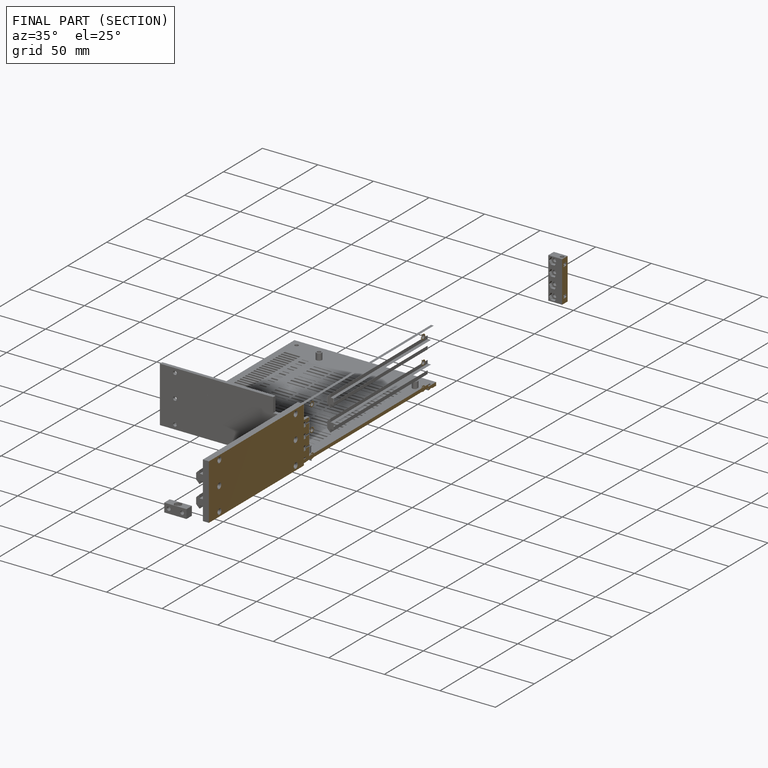
[diagram: finished part — half-section view (interior)]
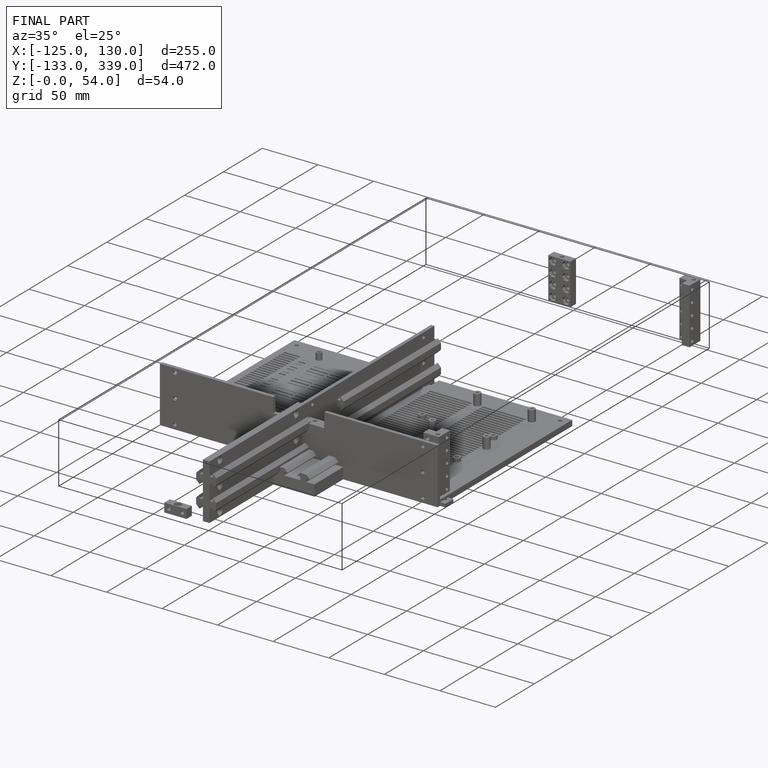
[diagram: finished part — iso view with bounding-box wireframe]
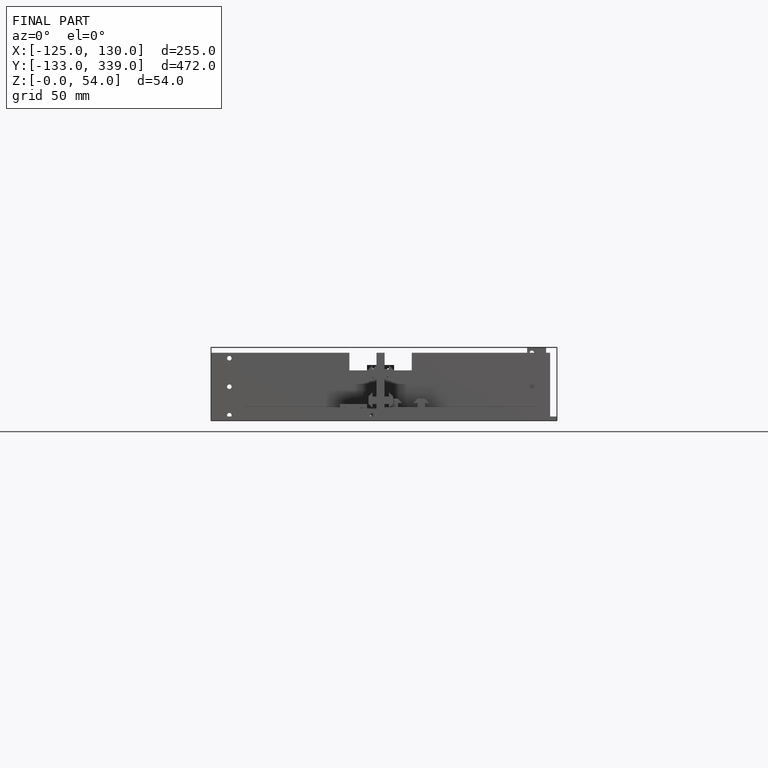
[diagram: finished part — front view with bounding-box wireframe]
